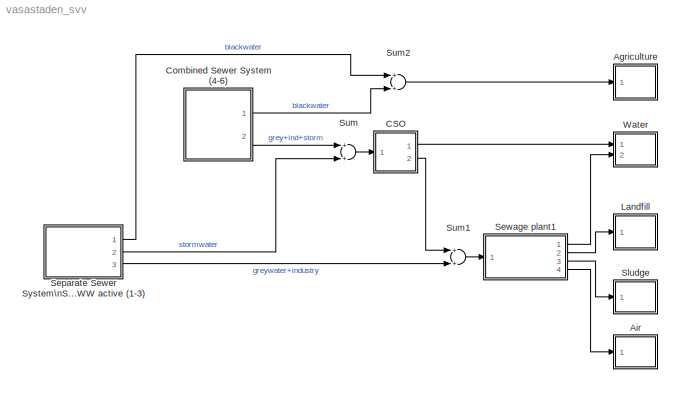
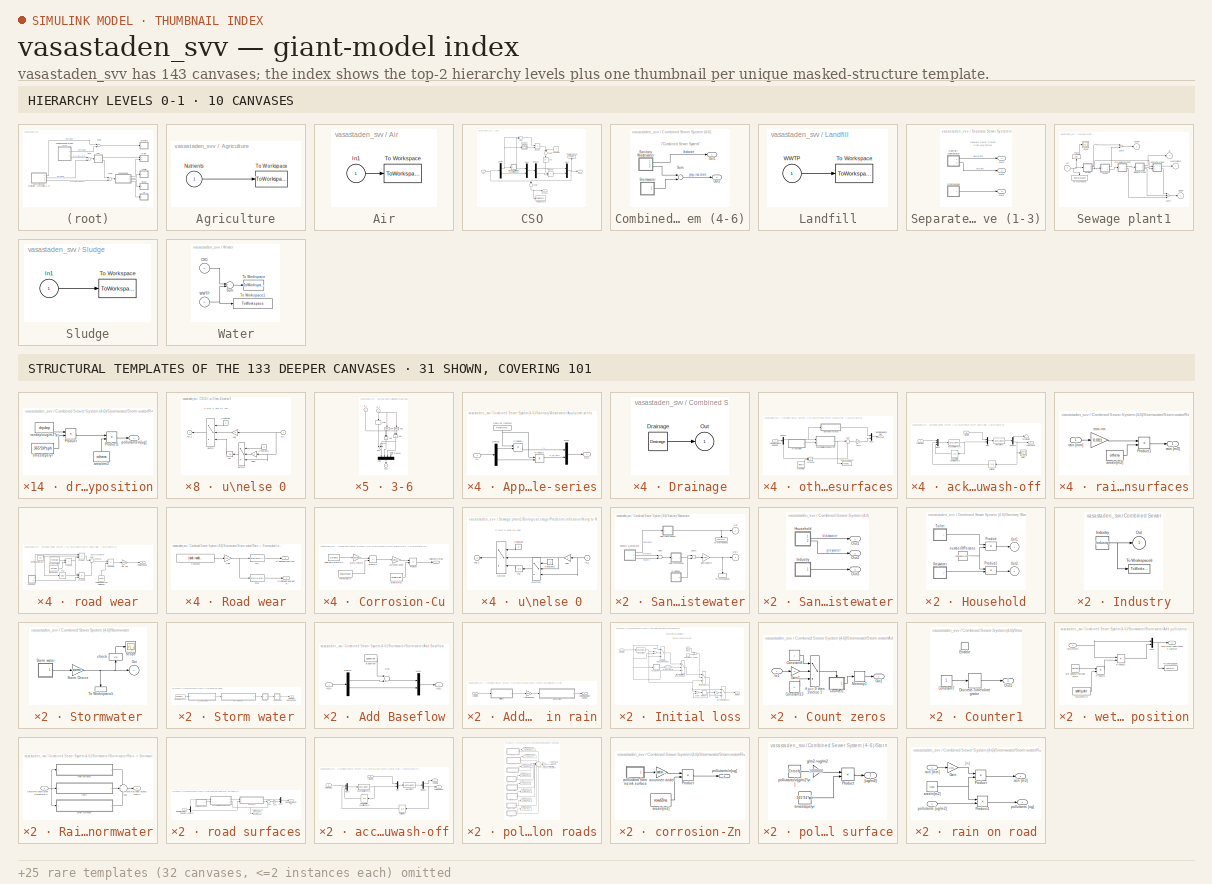
[diagram: thumbnail index - top-2 hierarchy levels (10 canvases) + 31 structural-template representatives of the remaining 133 canvases]
MODEL vasastaden_svv
KIND model
CONFIG AbsTol = auto
CONFIG FixedStep = 1
CONFIG MaxStep = auto
CONFIG MinStep = auto
CONFIG RelTol = 1e-3
CONFIG Solver = FixedStepDiscrete
CONFIG SolverMode = SingleTasking
CONFIG StartTime = 0
CONFIG StopTime = Q
BLOCK [SubSystem] Agriculture
  Ports = [1]
  ShowPortLabels = off
  TreatAsAtomicUnit = off
BLOCK [Inport] Agriculture/Nutrients
BLOCK [ToWorkspace] Agriculture/To Workspace
  MaxDataPoints = inf
  SampleTime = -1
  SaveFormat = Array
  VariableName = outNutrients
BLOCK [SubSystem] Air
  Ports = [1]
  ShowPortLabels = off
  TreatAsAtomicUnit = off
BLOCK [Inport] Air/In1
BLOCK [ToWorkspace] Air/To Workspace
  MaxDataPoints = inf
  SampleTime = -1
  SaveFormat = Array
  VariableName = outAir
BLOCK [SubSystem] CSO
  Ports = [1, 2]
  ShowPortLabels = off
  TreatAsAtomicUnit = off
BLOCK [Abs] CSO/Abs
BLOCK [Outport] CSO/Bypass
BLOCK [Constant] CSO/Constant1
BLOCK [Demux] CSO/Demux
  Outputs = [1 -1]
  Ports = [1, 2]
BLOCK [Demux] CSO/Demux1
  Outputs = [1 -1]
  Ports = [1, 2]
BLOCK [Inport] CSO/In1
BLOCK [Mux] CSO/Mux1
  DisplayOption = bar
  Inputs = 2
  Ports = [2, 1]
BLOCK [Mux] CSO/Mux2
  DisplayOption = bar
  Inputs = 2
  Ports = [2, 1]
BLOCK [Product] CSO/Product
  Ports = [2, 1]
BLOCK [Product] CSO/Product1
  Ports = [2, 1]
BLOCK [Sum] CSO/Sum
  Inputs = +-
  Ports = [2, 1]
BLOCK [Sum] CSO/Sum1
  Inputs = +-
  Ports = [2, 1]
BLOCK [Sum] CSO/Sum2
  Inputs = +-
  Ports = [2, 1]
BLOCK [ToWorkspace] CSO/To Workspace
  MaxDataPoints = inf
  SampleTime = -1
  SaveFormat = Array
  VariableName = outCSO
BLOCK [ToWorkspace] CSO/To Workspace5
  MaxDataPoints = inf
  SampleTime = -1
  SaveFormat = Array
  VariableName = storm2
BLOCK [Outport] CSO/Transit
  Port = 2
BLOCK [SubSystem] CSO/if u>0 then 1//u\nelse 0
  MaskDisplay = disp('1/u')
  MaskIconFrame = on
  MaskIconOpaque = on
  MaskIconRotate = none
  MaskIconUnits = autoscale
  Ports = [1, 1]
  ShowPortLabels = off
  TreatAsAtomicUnit = off
BLOCK [Constant] CSO/if u>0 then 1//u\nelse 0/Constant
  Value = 0
BLOCK [Constant] CSO/if u>0 then 1//u\nelse 0/Constant1
BLOCK [Switch] CSO/if u>0 then 1//u\nelse 0/Switch
BLOCK [Switch] CSO/if u>0 then 1//u\nelse 0/Switch1
BLOCK [Inport] CSO/if u>0 then 1//u\nelse 0/in_1
BLOCK [Fcn] CSO/if u>0 then 1//u\nelse 0/inv.
  Expr = 1/u
BLOCK [Gain] CSO/if u>0 then 1//u\nelse 0/neg
  Gain = -1
BLOCK [Gain] CSO/if u>0 then 1//u\nelse 0/neg1
  Gain = -1
BLOCK [Outport] CSO/if u>0 then 1//u\nelse 0/out_1
  InitialOutput = 0
BLOCK [SubSystem] CSO/if u>CSO_limit then CSO_limit\nelse u
  MaskDisplay = disp('CSO')
  MaskIconFrame = on
  MaskIconOpaque = on
  MaskIconRotate = none
  MaskIconUnits = autoscale
  Ports = [1, 1]
  TreatAsAtomicUnit = off
BLOCK [Switch] CSO/if u>CSO_limit then CSO_limit\nelse u/CSO
  Threshold = CSO_limit
BLOCK [Constant] CSO/if u>CSO_limit then CSO_limit\nelse u/Constant
  Value = CSO_limit
BLOCK [Constant] CSO/if u>CSO_limit then CSO_limit\nelse u/Constant1
  Value = CSO_choice
BLOCK [Switch] CSO/if u>CSO_limit then CSO_limit\nelse u/choice
  Threshold = 1
BLOCK [Inport] CSO/if u>CSO_limit then CSO_limit\nelse u/in_1
BLOCK [Fcn] CSO/if u>CSO_limit then CSO_limit\nelse u/inv.
  Expr = u
BLOCK [Outport] CSO/if u>CSO_limit then CSO_limit\nelse u/out_1
  InitialOutput = 0
BLOCK [SubSystem] Combined Sewer System (4-6)
  MaskDisplay = plot([0,54,62,66,67,64],[90,66,62,52,46,36],[54,49,43,38,37,39,43,46,50],[66,65,60,50,42,33,28,27,27],[48,42,40,41,45,49,53,59,63,63,61],[30,34,42,49,57.5,61,62,60,52,46,38],[0,43],[49,28],[57,67,71,73,73],[41,31,23,15,9],[52,55,58],[40,38,35],[62,64,66],[31,27,22],[47,50,53.5],[38,37,33],[60,63,64],[22,16,12],[43,50,54,58],[36,27,22,7])
  MaskIconFrame = on
  MaskIconOpaque = on
  MaskIconRotate = none
  MaskIconUnits = autoscale
  Ports = [0, 2]
  ShowPortLabels = off
  TreatAsAtomicUnit = off
BLOCK [Outport] Combined Sewer System (4-6)/Out1
BLOCK [Outport] Combined Sewer System (4-6)/Out2
  Port = 2
BLOCK [SubSystem] Combined Sewer System (4-6)/Sanitary Wastewater
  Ports = [0, 2]
  ShowPortLabels = off
  TreatAsAtomicUnit = off
BLOCK [SubSystem] Combined Sewer System (4-6)/Sanitary Wastewater/Apply time-series
  Ports = [1, 1]
  ShowPortLabels = off
  TreatAsAtomicUnit = off
BLOCK [Demux] Combined Sewer System (4-6)/Sanitary Wastewater/Apply time-series/Demux
  Outputs = 2
  Ports = [1, 2]
BLOCK [Inport] Combined Sewer System (4-6)/Sanitary Wastewater/Apply time-series/In1
BLOCK [Mux] Combined Sewer System (4-6)/Sanitary Wastewater/Apply time-series/Mux1
  DisplayOption = bar
  Inputs = [1,nr_ex_H2O]
  Ports = [2, 1]
BLOCK [Outport] Combined Sewer System (4-6)/Sanitary Wastewater/Apply time-series/Out1
BLOCK [Product] Combined Sewer System (4-6)/Sanitary Wastewater/Apply time-series/Product1
  Ports = [2, 1]
BLOCK [Product] Combined Sewer System (4-6)/Sanitary Wastewater/Apply time-series/Product2
  Ports = [2, 1]
BLOCK [FromWorkspace] Combined Sewer System (4-6)/Sanitary Wastewater/Apply time-series/SewVar (factors)
  SampleTime = 1
  VariableName = [T,U1]
BLOCK [SubSystem] Combined Sewer System (4-6)/Sanitary Wastewater/Apply time-series1
  Ports = [1, 1]
  ShowPortLabels = off
  TreatAsAtomicUnit = off
BLOCK [Demux] Combined Sewer System (4-6)/Sanitary Wastewater/Apply time-series1/Demux
  Outputs = 2
  Ports = [1, 2]
BLOCK [Inport] Combined Sewer System (4-6)/Sanitary Wastewater/Apply time-series1/In1
BLOCK [Mux] Combined Sewer System (4-6)/Sanitary Wastewater/Apply time-series1/Mux1
  DisplayOption = bar
  Inputs = [1,nr_ex_H2O]
  Ports = [2, 1]
BLOCK [Outport] Combined Sewer System (4-6)/Sanitary Wastewater/Apply time-series1/Out1
BLOCK [Product] Combined Sewer System (4-6)/Sanitary Wastewater/Apply time-series1/Product1
  Ports = [2, 1]
BLOCK [Product] Combined Sewer System (4-6)/Sanitary Wastewater/Apply time-series1/Product2
  Ports = [2, 1]
BLOCK [FromWorkspace] Combined Sewer System (4-6)/Sanitary Wastewater/Apply time-series1/SewVar (factors)
  SampleTime = 1
  VariableName = [T,U1]
BLOCK [SubSystem] Combined Sewer System (4-6)/Sanitary Wastewater/Drainage
  Ports = [0, 1]
  ShowPortLabels = off
  TreatAsAtomicUnit = off
BLOCK [Constant] Combined Sewer System (4-6)/Sanitary Wastewater/Drainage/Drainage
  Value = Drainage
BLOCK [Outport] Combined Sewer System (4-6)/Sanitary Wastewater/Drainage/Out
BLOCK [Outport] Combined Sewer System (4-6)/Sanitary Wastewater/Out
BLOCK [Outport] Combined Sewer System (4-6)/Sanitary Wastewater/Out1
  Port = 2
BLOCK [Gain] Combined Sewer System (4-6)/Sanitary Wastewater/Sani choice\n
  Gain = sani
BLOCK [SubSystem] Combined Sewer System (4-6)/Sanitary Wastewater/Sanitary wastewater
  Ports = [0, 3]
  ShowPortLabels = off
  TreatAsAtomicUnit = off
BLOCK [SubSystem] Combined Sewer System (4-6)/Sanitary Wastewater/Sanitary wastewater/Household
  Ports = [0, 2]
  ShowPortLabels = off
  TreatAsAtomicUnit = off
BLOCK [SubSystem] Combined Sewer System (4-6)/Sanitary Wastewater/Sanitary wastewater/Household/Greywater
  Ports = [0, 1]
  ShowPortLabels = off
  TreatAsAtomicUnit = off
BLOCK [Constant] Combined Sewer System (4-6)/Sanitary Wastewater/Sanitary wastewater/Household/Greywater/Greywater 
  Value = BDT
BLOCK [Outport] Combined Sewer System (4-6)/Sanitary Wastewater/Sanitary wastewater/Household/Greywater/Out
BLOCK [ToWorkspace] Combined Sewer System (4-6)/Sanitary Wastewater/Sanitary wastewater/Household/Greywater/To Workspace6
  MaxDataPoints = 1
  SampleTime = -1
  SaveFormat = Array
  VariableName = s_bdt
BLOCK [Outport] Combined Sewer System (4-6)/Sanitary Wastewater/Sanitary wastewater/Household/Out1
BLOCK [Outport] Combined Sewer System (4-6)/Sanitary Wastewater/Sanitary wastewater/Household/Out2
  Port = 2
BLOCK [Product] Combined Sewer System (4-6)/Sanitary Wastewater/Sanitary wastewater/Household/Product
  Ports = [2, 1]
BLOCK [Product] Combined Sewer System (4-6)/Sanitary Wastewater/Sanitary wastewater/Household/Product1
  Ports = [2, 1]
BLOCK [SubSystem] Combined Sewer System (4-6)/Sanitary Wastewater/Sanitary wastewater/Household/Toilet
  Ports = [0, 1]
  ShowPortLabels = off
  TreatAsAtomicUnit = off
BLOCK [Constant] Combined Sewer System (4-6)/Sanitary Wastewater/Sanitary wastewater/Household/Toilet/Faeces & paper 
  Value = Faeces
BLOCK [Outport] Combined Sewer System (4-6)/Sanitary Wastewater/Sanitary wastewater/Household/Toilet/Out
BLOCK [Sum] Combined Sewer System (4-6)/Sanitary Wastewater/Sanitary wastewater/Household/Toilet/Sum
  Ports = [2, 1]
BLOCK [ToWorkspace] Combined Sewer System (4-6)/Sanitary Wastewater/Sanitary wastewater/Household/Toilet/To Workspace6
  MaxDataPoints = 1
  SampleTime = -1
  SaveFormat = Array
  VariableName = s_urine
BLOCK [ToWorkspace] Combined Sewer System (4-6)/Sanitary Wastewater/Sanitary wastewater/Household/Toilet/To Workspace7
  MaxDataPoints = 1
  SampleTime = -1
  SaveFormat = Array
  VariableName = s_faeces
BLOCK [Constant] Combined Sewer System (4-6)/Sanitary Wastewater/Sanitary wastewater/Household/Toilet/Urine 
  Value = Urine
BLOCK [Constant] Combined Sewer System (4-6)/Sanitary Wastewater/Sanitary wastewater/Household/numberOfPersons
  Value = numberOfPersons
BLOCK [SubSystem] Combined Sewer System (4-6)/Sanitary Wastewater/Sanitary wastewater/Industry
  Ports = [0, 1]
  ShowPortLabels = off
  TreatAsAtomicUnit = off
BLOCK [Constant] Combined Sewer System (4-6)/Sanitary Wastewater/Sanitary wastewater/Industry/Industry 
  Value = Industry
BLOCK [Outport] Combined Sewer System (4-6)/Sanitary Wastewater/Sanitary wastewater/Industry/Out
BLOCK [ToWorkspace] Combined Sewer System (4-6)/Sanitary Wastewater/Sanitary wastewater/Industry/To Workspace6
  MaxDataPoints = 1
  SampleTime = -1
  SaveFormat = Array
  VariableName = s_industry
BLOCK [Outport] Combined Sewer System (4-6)/Sanitary Wastewater/Sanitary wastewater/Out1
BLOCK [Outport] Combined Sewer System (4-6)/Sanitary Wastewater/Sanitary wastewater/Out2
  Port = 2
BLOCK [Outport] Combined Sewer System (4-6)/Sanitary Wastewater/Sanitary wastewater/Out3
  Port = 3
BLOCK [Sum] Combined Sewer System (4-6)/Sanitary Wastewater/Sum
  Ports = [2, 1]
BLOCK [Sum] Combined Sewer System (4-6)/Sanitary Wastewater/Sum1
  Ports = [2, 1]
BLOCK [ToWorkspace] Combined Sewer System (4-6)/Sanitary Wastewater/To Workspace1
  MaxDataPoints = inf
  SampleTime = -1
  SaveFormat = Array
  VariableName = blackw
BLOCK [ToWorkspace] Combined Sewer System (4-6)/Sanitary Wastewater/To Workspace6
  MaxDataPoints = inf
  SampleTime = -1
  SaveFormat = Array
  VariableName = sewer
BLOCK [SubSystem] Combined Sewer System (4-6)/Stormwater
  Ports = [0, 1]
  ShowPortLabels = off
  TreatAsAtomicUnit = off
BLOCK [Outport] Combined Sewer System (4-6)/Stormwater/Out
BLOCK [Scope] Combined Sewer System (4-6)/Stormwater/Scope
  DataFormat = StructureWithTime
  NumInputPorts = 1
  Ports = [1]
BLOCK [Gain] Combined Sewer System (4-6)/Stormwater/Storm Choice
  Gain = stormw
BLOCK [SubSystem] Combined Sewer System (4-6)/Stormwater/Storm water
  Ports = [0, 1]
  ShowPortLabels = off
  TreatAsAtomicUnit = off
BLOCK [SubSystem] Combined Sewer System (4-6)/Stormwater/Storm water/Add Baseflow
  Ports = [1, 1]
  ShowPortLabels = off
  TreatAsAtomicUnit = off
BLOCK [Constant] Combined Sewer System (4-6)/Stormwater/Storm water/Add Baseflow/Baseflow
  Value = baseflow
BLOCK [Demux] Combined Sewer System (4-6)/Stormwater/Storm water/Add Baseflow/Demux
  Outputs = [1 -1]
  Ports = [1, 2]
BLOCK [Inport] Combined Sewer System (4-6)/Stormwater/Storm water/Add Baseflow/In1\n
BLOCK [Mux] Combined Sewer System (4-6)/Stormwater/Storm water/Add Baseflow/Mux1
  DisplayOption = bar
  Inputs = 2
  Ports = [2, 1]
BLOCK [Outport] Combined Sewer System (4-6)/Stormwater/Storm water/Add Baseflow/Out1
BLOCK [Sum] Combined Sewer System (4-6)/Stormwater/Storm water/Add Baseflow/Sum
  Ports = [2, 1]
BLOCK [SubSystem] Combined Sewer System (4-6)/Stormwater/Storm water/Add pollutants in rain
  Ports = [1, 1]
  TreatAsAtomicUnit = off
BLOCK [SubSystem] Combined Sewer System (4-6)/Stormwater/Storm water/Add pollutants in rain/Initial loss
  Ports = [1, 1]
  TreatAsAtomicUnit = off
BLOCK [Clock] Combined Sewer System (4-6)/Stormwater/Storm water/Add pollutants in rain/Initial loss/Clock
  Decimation = 10
BLOCK [Constant] Combined Sewer System (4-6)/Stormwater/Storm water/Add pollutants in rain/Initial loss/Constant12
BLOCK [SubSystem] Combined Sewer System (4-6)/Stormwater/Storm water/Add pollutants in rain/Initial loss/Count zeros
  MaskIconFrame = on
  MaskIconOpaque = on
  MaskIconRotate = none
  MaskIconUnits = autoscale
  Ports = [1, 1]
  ShowPortLabels = off
  TreatAsAtomicUnit = off
BLOCK [Constant] Combined Sewer System (4-6)/Stormwater/Storm water/Add pollutants in rain/Initial loss/Count zeros/Constant13
  Value = 0
BLOCK [Constant] Combined Sewer System (4-6)/Stormwater/Storm water/Add pollutants in rain/Initial loss/Count zeros/Constant8
BLOCK [SubSystem] Combined Sewer System (4-6)/Stormwater/Storm water/Add pollutants in rain/Initial loss/Count zeros/Counter1
  Ports = [0, 1, 1]
  TreatAsAtomicUnit = on
BLOCK [Constant] Combined Sewer System (4-6)/Stormwater/Storm water/Add pollutants in rain/Initial loss/Count zeros/Counter1/Constant7
BLOCK [DiscreteIntegrator] Combined Sewer System (4-6)/Stormwater/Storm water/Add pollutants in rain/Initial loss/Count zeros/Counter1/Discrete-Time\nIntegrator
  ExternalReset = none
  InitialCondition = 1
  InitialConditionSource = internal
  IntegratorMethod = Forward Euler
  Ports = [1, 1]
BLOCK [EnablePort] Combined Sewer System (4-6)/Stormwater/Storm water/Add pollutants in rain/Initial loss/Count zeros/Counter1/Enable
  Ports = []
  StatesWhenEnabling = reset
BLOCK [Outport] Combined Sewer System (4-6)/Stormwater/Storm water/Add pollutants in rain/Initial loss/Count zeros/Counter1/Out1
  InitialOutput = 0
BLOCK [Gain] Combined Sewer System (4-6)/Stormwater/Storm water/Add pollutants in rain/Initial loss/Count zeros/Gain1
  Gain = -1
BLOCK [Inport] Combined Sewer System (4-6)/Stormwater/Storm water/Add pollutants in rain/Initial loss/Count zeros/In1
BLOCK [Memory] Combined Sewer System (4-6)/Stormwater/Storm water/Add pollutants in rain/Initial loss/Count zeros/Memory1
BLOCK [Outport] Combined Sewer System (4-6)/Stormwater/Storm water/Add pollutants in rain/Initial loss/Count zeros/Out1
BLOCK [Switch] Combined Sewer System (4-6)/Stormwater/Storm water/Add pollutants in rain/Initial loss/Count zeros/if u== 0 then 1\nelse 1
BLOCK [Gain] Combined Sewer System (4-6)/Stormwater/Storm water/Add pollutants in rain/Initial loss/Gain
  Gain = -1
BLOCK [Memory] Combined Sewer System (4-6)/Stormwater/Storm water/Add pollutants in rain/Initial loss/Memory3
BLOCK [S-Function] Combined Sewer System (4-6)/Stormwater/Storm water/Add pollutants in rain/Initial loss/S-Function
  FunctionName = initloss
  Parameters = init
  Ports = [1, 1]
BLOCK [Sum] Combined Sewer System (4-6)/Stormwater/Storm water/Add pollutants in rain/Initial loss/Sum
  Inputs = +-
  Ports = [2, 1]
BLOCK [Sum] Combined Sewer System (4-6)/Stormwater/Storm water/Add pollutants in rain/Initial loss/Sum11
  Ports = [2, 1]
BLOCK [Sum] Combined Sewer System (4-6)/Stormwater/Storm water/Add pollutants in rain/Initial loss/Sum2
  Ports = [2, 1]
BLOCK [Switch] Combined Sewer System (4-6)/Stormwater/Storm water/Add pollutants in rain/Initial loss/if t<5 then reduce
  Threshold = init_time
BLOCK [Switch] Combined Sewer System (4-6)/Stormwater/Storm water/Add pollutants in rain/Initial loss/if u<0 then  \nreduction is made
BLOCK [Switch] Combined Sewer System (4-6)/Stormwater/Storm water/Add pollutants in rain/Initial loss/if u==0 then reduce
BLOCK [Switch] Combined Sewer System (4-6)/Stormwater/Storm water/Add pollutants in rain/Initial loss/if u>= init_init then reduce\nelse u
  Threshold = init_init
BLOCK [Outport] Combined Sewer System (4-6)/Stormwater/Storm water/Add pollutants in rain/Initial loss/rain [mm]
BLOCK [Inport] Combined Sewer System (4-6)/Stormwater/Storm water/Add pollutants in rain/Initial loss/rain\n[mm]
BLOCK [Fcn] Combined Sewer System (4-6)/Stormwater/Storm water/Add pollutants in rain/Initial loss/u*sec_per_ts
  Expr = u*sec_per_ts
BLOCK [Inport] Combined Sewer System (4-6)/Stormwater/Storm water/Add pollutants in rain/rain [mm]
BLOCK [Outport] Combined Sewer System (4-6)/Stormwater/Storm water/Add pollutants in rain/rain [mm]\npollutants [ug//m2]
BLOCK [Gain] Combined Sewer System (4-6)/Stormwater/Storm water/Add pollutants in rain/reduction factor
  Gain = redu
BLOCK [SubSystem] Combined Sewer System (4-6)/Stormwater/Storm water/Add pollutants in rain/wet deposition
  Ports = [1, 1]
  TreatAsAtomicUnit = off
BLOCK [Mux] Combined Sewer System (4-6)/Stormwater/Storm water/Add pollutants in rain/wet deposition/Mux
  DisplayOption = bar
  Inputs = 2
  Ports = [2, 1]
BLOCK [Product] Combined Sewer System (4-6)/Stormwater/Storm water/Add pollutants in rain/wet deposition/Product1
  Ports = [2, 1]
BLOCK [Product] Combined Sewer System (4-6)/Stormwater/Storm water/Add pollutants in rain/wet deposition/Product2
  Inputs = */
  Ports = [2, 1]
BLOCK [ToWorkspace] Combined Sewer System (4-6)/Stormwater/Storm water/Add pollutants in rain/wet deposition/To Workspace6
  MaxDataPoints = inf
  SampleTime = -1
  SaveFormat = Array
  VariableName = s_wetdep
BLOCK [Outport] Combined Sewer System (4-6)/Stormwater/Storm water/Add pollutants in rain/wet deposition/rain [mm]\npollutants [ug//m2]
BLOCK [Inport] Combined Sewer System (4-6)/Stormwater/Storm water/Add pollutants in rain/wet deposition/rain\n[mm]
BLOCK [Constant] Combined Sewer System (4-6)/Stormwater/Storm water/Add pollutants in rain/wet deposition/rain\nmm//yr
  Value = yearly_rain
BLOCK [Constant] Combined Sewer System (4-6)/Stormwater/Storm water/Add pollutants in rain/wet deposition/wet deposition\nug//m2*yr
  Value = wetdep
BLOCK [FromWorkspace] Combined Sewer System (4-6)/Stormwater/Storm water/From\nWorkspace
  SampleTime = 1
  VariableName = [T,U2]
BLOCK [SubSystem] Combined Sewer System (4-6)/Stormwater/Storm water/Rain -> Stormwater
  Ports = [1, 1]
  TreatAsAtomicUnit = off
BLOCK [Outport] Combined Sewer System (4-6)/Stormwater/Storm water/Rain -> Stormwater/SW[m3]\npollutants\n[g]\n
BLOCK [Sum] Combined Sewer System (4-6)/Stormwater/Storm water/Rain -> Stormwater/Sum
  IconShape = round
  Inputs = +++
  Ports = [3, 1]
BLOCK [SubSystem] Combined Sewer System (4-6)/Stormwater/Storm water/Rain -> Stormwater/other surfaces
  Ports = [1, 1]
  TreatAsAtomicUnit = off
BLOCK [Demux] Combined Sewer System (4-6)/Stormwater/Storm water/Rain -> Stormwater/other surfaces/Demux2
  Outputs = [1 -1]
  Ports = [1, 2]
BLOCK [Mux] Combined Sewer System (4-6)/Stormwater/Storm water/Rain -> Stormwater/other surfaces/Mux2
  DisplayOption = bar
  Inputs = 2
  Ports = [2, 1]
BLOCK [Product] Combined Sewer System (4-6)/Stormwater/Storm water/Rain -> Stormwater/other surfaces/Product1
  Ports = [2, 1]
BLOCK [Sum] Combined Sewer System (4-6)/Stormwater/Storm water/Rain -> Stormwater/other surfaces/Sum
  IconShape = round
  Inputs = |++
  Ports = [2, 1]
BLOCK [ToWorkspace] Combined Sewer System (4-6)/Stormwater/Storm water/Rain -> Stormwater/other surfaces/To Workspace7
  MaxDataPoints = inf
  SampleTime = -1
  SaveFormat = Array
  VariableName = s_other
BLOCK [SubSystem] Combined Sewer System (4-6)/Stormwater/Storm water/Rain -> Stormwater/other surfaces/ackumulation and wash-off
  Ports = [2, 1]
  TreatAsAtomicUnit = off
BLOCK [Demux] Combined Sewer System (4-6)/Stormwater/Storm water/Rain -> Stormwater/other surfaces/ackumulation and wash-off/Demux1
  Outputs = [1 -1]
  Ports = [1, 2]
BLOCK [Mux] Combined Sewer System (4-6)/Stormwater/Storm water/Rain -> Stormwater/other surfaces/ackumulation and wash-off/Mux
  DisplayOption = bar
  Inputs = 2
  Ports = [2, 1]
BLOCK [Mux] Combined Sewer System (4-6)/Stormwater/Storm water/Rain -> Stormwater/other surfaces/ackumulation and wash-off/Mux1
  DisplayOption = bar
  Inputs = 3
  Ports = [3, 1]
BLOCK [UnitDelay] Combined Sewer System (4-6)/Stormwater/Storm water/Rain -> Stormwater/other surfaces/ackumulation and wash-off/Specify initial condition here
  X0 = othermax
BLOCK [Terminator] Combined Sewer System (4-6)/Stormwater/Storm water/Rain -> Stormwater/other surfaces/ackumulation and wash-off/Terminator
BLOCK [UnitDelay] Combined Sewer System (4-6)/Stormwater/Storm water/Rain -> Stormwater/other surfaces/ackumulation and wash-off/Unit Delay
  X0 = delayinit
BLOCK [MATLABFcn] Combined Sewer System (4-6)/Stormwater/Storm water/Rain -> Stormwater/other surfaces/ackumulation and wash-off/ackumulation Fcn1
  MATLABFcn = ackumulation
  OutputDimensions = nr_ex_H2O
BLOCK [Scope] Combined Sewer System (4-6)/Stormwater/Storm water/Rain -> Stormwater/other surfaces/ackumulation and wash-off/deltaP
  DataFormat = StructureWithTime
  NumInputPorts = 1
  Ports = [1]
  YMax = 2250
  YMin = 0
  ZoomMode = xonly
BLOCK [Inport] Combined Sewer System (4-6)/Stormwater/Storm water/Rain -> Stormwater/other surfaces/ackumulation and wash-off/pollutant [ug]
  Port = 2
BLOCK [Outport] Combined Sewer System (4-6)/Stormwater/Storm water/Rain -> Stormwater/other surfaces/ackumulation and wash-off/pollutants [ug]
BLOCK [Inport] Combined Sewer System (4-6)/Stormwater/Storm water/Rain -> Stormwater/other surfaces/ackumulation and wash-off/rain [mm]
BLOCK [MATLABFcn] Combined Sewer System (4-6)/Stormwater/Storm water/Rain -> Stormwater/other surfaces/ackumulation and wash-off/washoff Fcn
  MATLABFcn = washoff
  OutputDimensions = totnr
BLOCK [Constant] Combined Sewer System (4-6)/Stormwater/Storm water/Rain -> Stormwater/other surfaces/area\n[m2]
  Value = othera
BLOCK [SubSystem] Combined Sewer System (4-6)/Stormwater/Storm water/Rain -> Stormwater/other surfaces/dry deposition
  Ports = [0, 1]
  TreatAsAtomicUnit = off
BLOCK [Product] Combined Sewer System (4-6)/Stormwater/Storm water/Rain -> Stormwater/other surfaces/dry deposition/Product
  Inputs = */
  Ports = [2, 1]
BLOCK [Product] Combined Sewer System (4-6)/Stormwater/Storm water/Rain -> Stormwater/other surfaces/dry deposition/Product1
  Ports = [2, 1]
BLOCK [Constant] Combined Sewer System (4-6)/Stormwater/Storm water/Rain -> Stormwater/other surfaces/dry deposition/area\nm2
  Value = othera
BLOCK [Outport] Combined Sewer System (4-6)/Stormwater/Storm water/Rain -> Stormwater/other surfaces/dry deposition/pollutants\n[ug]
BLOCK [Constant] Combined Sewer System (4-6)/Stormwater/Storm water/Rain -> Stormwater/other surfaces/dry deposition/timesteps//yr
  Value = 365*24*sph
BLOCK [Constant] Combined Sewer System (4-6)/Stormwater/Storm water/Rain -> Stormwater/other surfaces/dry deposition/torrdep\nug//m2*yr
  Value = drydep
BLOCK [SubSystem] Combined Sewer System (4-6)/Stormwater/Storm water/Rain -> Stormwater/other surfaces/rain on other surfaces
  Ports = [1, 1]
  TreatAsAtomicUnit = off
BLOCK [Product] Combined Sewer System (4-6)/Stormwater/Storm water/Rain -> Stormwater/other surfaces/rain on other surfaces/Product1
  Ports = [2, 1]
BLOCK [Constant] Combined Sewer System (4-6)/Stormwater/Storm water/Rain -> Stormwater/other surfaces/rain on other surfaces/area\n[m2]
  Value = othera
BLOCK [Gain] Combined Sewer System (4-6)/Stormwater/Storm water/Rain -> Stormwater/other surfaces/rain on other surfaces/mm->m
  Gain = 0.001
BLOCK [Outport] Combined Sewer System (4-6)/Stormwater/Storm water/Rain -> Stormwater/other surfaces/rain on other surfaces/rain [m3]
BLOCK [Inport] Combined Sewer System (4-6)/Stormwater/Storm water/Rain -> Stormwater/other surfaces/rain on other surfaces/rain [mm]
BLOCK [Outport] Combined Sewer System (4-6)/Stormwater/Storm water/Rain -> Stormwater/other surfaces/rain[m3]\npollutants\n[g]
BLOCK [Inport] Combined Sewer System (4-6)/Stormwater/Storm water/Rain -> Stormwater/other surfaces/rain[mm]\npollutants\n[ug//m2]
BLOCK [Gain] Combined Sewer System (4-6)/Stormwater/Storm water/Rain -> Stormwater/other surfaces/ug - g
  Gain = 0.000001
BLOCK [Inport] Combined Sewer System (4-6)/Stormwater/Storm water/Rain -> Stormwater/rain[mm]\npollutants\n[ug//m2]\n
BLOCK [SubSystem] Combined Sewer System (4-6)/Stormwater/Storm water/Rain -> Stormwater/road surfaces
  Ports = [1, 1]
  TreatAsAtomicUnit = off
BLOCK [Demux] Combined Sewer System (4-6)/Stormwater/Storm water/Rain -> Stormwater/road surfaces/Demux1
  Outputs = [1 -1]
  Ports = [1, 2]
BLOCK [Mux] Combined Sewer System (4-6)/Stormwater/Storm water/Rain -> Stormwater/road surfaces/Mux3
  DisplayOption = bar
  Inputs = 2
  Ports = [2, 1]
BLOCK [Sum] Combined Sewer System (4-6)/Stormwater/Storm water/Rain -> Stormwater/road surfaces/Sum1
  IconShape = round
  Inputs = |++
  Ports = [2, 1]
BLOCK [ToWorkspace] Combined Sewer System (4-6)/Stormwater/Storm water/Rain -> Stormwater/road surfaces/To Workspace7
  MaxDataPoints = inf
  SampleTime = -1
  SaveFormat = Array
  VariableName = s_road
BLOCK [SubSystem] Combined Sewer System (4-6)/Stormwater/Storm water/Rain -> Stormwater/road surfaces/accumulation and wash-off
  Ports = [2, 2]
  TreatAsAtomicUnit = off
BLOCK [Demux] Combined Sewer System (4-6)/Stormwater/Storm water/Rain -> Stormwater/road surfaces/accumulation and wash-off/Demux1
  Outputs = [1 -1]
  Ports = [1, 2]
BLOCK [Mux] Combined Sewer System (4-6)/Stormwater/Storm water/Rain -> Stormwater/road surfaces/accumulation and wash-off/Mux
  DisplayOption = bar
  Inputs = 2
  Ports = [2, 1]
BLOCK [Mux] Combined Sewer System (4-6)/Stormwater/Storm water/Rain -> Stormwater/road surfaces/accumulation and wash-off/Mux1
  DisplayOption = bar
  Inputs = 3
  Ports = [3, 1]
BLOCK [UnitDelay] Combined Sewer System (4-6)/Stormwater/Storm water/Rain -> Stormwater/road surfaces/accumulation and wash-off/Specify initial condition here
  X0 = roadaccmax
BLOCK [UnitDelay] Combined Sewer System (4-6)/Stormwater/Storm water/Rain -> Stormwater/road surfaces/accumulation and wash-off/Unit Delay
  X0 = delayinit
BLOCK [MATLABFcn] Combined Sewer System (4-6)/Stormwater/Storm water/Rain -> Stormwater/road surfaces/accumulation and wash-off/ackumulation Fcn1
  MATLABFcn = ackumulation
  OutputDimensions = nr_ex_H2O
BLOCK [Inport] Combined Sewer System (4-6)/Stormwater/Storm water/Rain -> Stormwater/road surfaces/accumulation and wash-off/pollutant [ug]
  Port = 2
BLOCK [Outport] Combined Sewer System (4-6)/Stormwater/Storm water/Rain -> Stormwater/road surfaces/accumulation and wash-off/pollutants [ug]
  Port = 2
BLOCK [Inport] Combined Sewer System (4-6)/Stormwater/Storm water/Rain -> Stormwater/road surfaces/accumulation and wash-off/rain [mm]
BLOCK [Outport] Combined Sewer System (4-6)/Stormwater/Storm water/Rain -> Stormwater/road surfaces/accumulation and wash-off/rain [mm]1
BLOCK [MATLABFcn] Combined Sewer System (4-6)/Stormwater/Storm water/Rain -> Stormwater/road surfaces/accumulation and wash-off/washoff Fcn
  MATLABFcn = washoff
  OutputDimensions = totnr
BLOCK [SubSystem] Combined Sewer System (4-6)/Stormwater/Storm water/Rain -> Stormwater/road surfaces/pollutants on roads
  Ports = [0, 1]
  TreatAsAtomicUnit = off
BLOCK [Sum] Combined Sewer System (4-6)/Stormwater/Storm water/Rain -> Stormwater/road surfaces/pollutants on roads/Sum
  IconShape = round
  Inputs = ++++++++
  Ports = [8, 1]
BLOCK [Gain] Combined Sewer System (4-6)/Stormwater/Storm water/Rain -> Stormwater/road surfaces/pollutants on roads/The share that \nis stuck on the\nsurface
  Gain = fast
BLOCK [ToWorkspace] Combined Sewer System (4-6)/Stormwater/Storm water/Rain -> Stormwater/road surfaces/pollutants on roads/To Workspace1
  MaxDataPoints = 1
  SampleTime = -1
  SaveFormat = Array
  VariableName = poll_BrakeRoad
BLOCK [ToWorkspace] Combined Sewer System (4-6)/Stormwater/Storm water/Rain -> Stormwater/road surfaces/pollutants on roads/To Workspace10
  MaxDataPoints = 1
  SampleTime = -1
  SaveFormat = Array
  VariableName = poll_DrydepRoad
BLOCK [ToWorkspace] Combined Sewer System (4-6)/Stormwater/Storm water/Rain -> Stormwater/road surfaces/pollutants on roads/To Workspace2
  MaxDataPoints = 1
  SampleTime = -1
  SaveFormat = Array
  VariableName = poll_ExhaustRoad
BLOCK [ToWorkspace] Combined Sewer System (4-6)/Stormwater/Storm water/Rain -> Stormwater/road surfaces/pollutants on roads/To Workspace3
  MaxDataPoints = 1
  SampleTime = -1
  SaveFormat = Array
  VariableName = poll_RoadwearRoad
BLOCK [ToWorkspace] Combined Sewer System (4-6)/Stormwater/Storm water/Rain -> Stormwater/road surfaces/pollutants on roads/To Workspace4
  MaxDataPoints = 1
  SampleTime = -1
  SaveFormat = Array
  VariableName = poll_TyrewearRoad
BLOCK [ToWorkspace] Combined Sewer System (4-6)/Stormwater/Storm water/Rain -> Stormwater/road surfaces/pollutants on roads/To Workspace5
  MaxDataPoints = 1
  SampleTime = -1
  SaveFormat = Array
  VariableName = poll_ZncorrRoad
BLOCK [ToWorkspace] Combined Sewer System (4-6)/Stormwater/Storm water/Rain -> Stormwater/road surfaces/pollutants on roads/To Workspace6
  MaxDataPoints = 1
  SampleTime = -1
  SaveFormat = Array
  VariableName = poll_OilRoad
BLOCK [ToWorkspace] Combined Sewer System (4-6)/Stormwater/Storm water/Rain -> Stormwater/road surfaces/pollutants on roads/To Workspace7
  MaxDataPoints = 1
  SampleTime = -1
  SaveFormat = Array
  VariableName = poll_CatRoad
BLOCK [SubSystem] Combined Sewer System (4-6)/Stormwater/Storm water/Rain -> Stormwater/road surfaces/pollutants on roads/brake wear
  Ports = [0, 1]
  TreatAsAtomicUnit = off
BLOCK [Product] Combined Sewer System (4-6)/Stormwater/Storm water/Rain -> Stormwater/road surfaces/pollutants on roads/brake wear/Product
  Inputs = */
  Ports = [2, 1]
BLOCK [Product] Combined Sewer System (4-6)/Stormwater/Storm water/Rain -> Stormwater/road surfaces/pollutants on roads/brake wear/Product1
  Ports = [2, 1]
BLOCK [Constant] Combined Sewer System (4-6)/Stormwater/Storm water/Rain -> Stormwater/road surfaces/pollutants on roads/brake wear/fordonskm//day
  Value = fkmday
BLOCK [Outport] Combined Sewer System (4-6)/Stormwater/Storm water/Rain -> Stormwater/road surfaces/pollutants on roads/brake wear/pollutants [ug)\n
BLOCK [Constant] Combined Sewer System (4-6)/Stormwater/Storm water/Rain -> Stormwater/road surfaces/pollutants on roads/brake wear/pollutants from brakes
  Value = brakep
BLOCK [Constant] Combined Sewer System (4-6)/Stormwater/Storm water/Rain -> Stormwater/road surfaces/pollutants on roads/brake wear/timesteps//day
  Value = 24*sph
BLOCK [SubSystem] Combined Sewer System (4-6)/Stormwater/Storm water/Rain -> Stormwater/road surfaces/pollutants on roads/catalyst
  Ports = [0, 1]
  TreatAsAtomicUnit = off
BLOCK [Product] Combined Sewer System (4-6)/Stormwater/Storm water/Rain -> Stormwater/road surfaces/pollutants on roads/catalyst/Product
  Inputs = */
  Ports = [2, 1]
BLOCK [Product] Combined Sewer System (4-6)/Stormwater/Storm water/Rain -> Stormwater/road surfaces/pollutants on roads/catalyst/Product1
  Ports = [2, 1]
BLOCK [Constant] Combined Sewer System (4-6)/Stormwater/Storm water/Rain -> Stormwater/road surfaces/pollutants on roads/catalyst/fordonskm//day
  Value = fkmday
BLOCK [Outport] Combined Sewer System (4-6)/Stormwater/Storm water/Rain -> Stormwater/road surfaces/pollutants on roads/catalyst/pollutants [ug)\n
BLOCK [Constant] Combined Sewer System (4-6)/Stormwater/Storm water/Rain -> Stormwater/road surfaces/pollutants on roads/catalyst/pollutants from catalysts
  Value = catalystp
BLOCK [Constant] Combined Sewer System (4-6)/Stormwater/Storm water/Rain -> Stormwater/road surfaces/pollutants on roads/catalyst/timesteps//day
  Value = 24*sph
BLOCK [SubSystem] Combined Sewer System (4-6)/Stormwater/Storm water/Rain -> Stormwater/road surfaces/pollutants on roads/corrosion-Zn
  Ports = [0, 1]
  TreatAsAtomicUnit = off
BLOCK [Product] Combined Sewer System (4-6)/Stormwater/Storm water/Rain -> Stormwater/road surfaces/pollutants on roads/corrosion-Zn/Product
  Ports = [2, 1]
BLOCK [Constant] Combined Sewer System (4-6)/Stormwater/Storm water/Rain -> Stormwater/road surfaces/pollutants on roads/corrosion-Zn/area\n[m2]
  Value = roadZna
BLOCK [Gain] Combined Sewer System (4-6)/Stormwater/Storm water/Rain -> Stormwater/road surfaces/pollutants on roads/corrosion-Zn/avrunnen andel
  Gain = roadrunpart
BLOCK [SubSystem] Combined Sewer System (4-6)/Stormwater/Storm water/Rain -> Stormwater/road surfaces/pollutants on roads/corrosion-Zn/pollutants from \nzink surface
  Ports = [0, 1]
  TreatAsAtomicUnit = off
BLOCK [Product] Combined Sewer System (4-6)/Stormwater/Storm water/Rain -> Stormwater/road surfaces/pollutants on roads/corrosion-Zn/pollutants from \nzink surface/Product
  Inputs = */
  Ports = [2, 1]
BLOCK [Outport] Combined Sewer System (4-6)/Stormwater/Storm water/Rain -> Stormwater/road surfaces/pollutants on roads/corrosion-Zn/pollutants from \nzink surface/[ug//m2]
BLOCK [Gain] Combined Sewer System (4-6)/Stormwater/Storm water/Rain -> Stormwater/road surfaces/pollutants on roads/corrosion-Zn/pollutants from \nzink surface/g//m2->ug//m2
  Gain = 1000000
BLOCK [Constant] Combined Sewer System (4-6)/Stormwater/Storm water/Rain -> Stormwater/road surfaces/pollutants on roads/corrosion-Zn/pollutants from \nzink surface/pollutants\n[g//m2*yr]
  Value = Znroofp
BLOCK [Constant] Combined Sewer System (4-6)/Stormwater/Storm water/Rain -> Stormwater/road surfaces/pollutants on roads/corrosion-Zn/pollutants from \nzink surface/timesteps//yr
  Value = 365*24*sph
BLOCK [Outport] Combined Sewer System (4-6)/Stormwater/Storm water/Rain -> Stormwater/road surfaces/pollutants on roads/corrosion-Zn/pollutants\n[ug]
BLOCK [SubSystem] Combined Sewer System (4-6)/Stormwater/Storm water/Rain -> Stormwater/road surfaces/pollutants on roads/dry deposition
  Ports = [0, 1]
  TreatAsAtomicUnit = off
BLOCK [Product] Combined Sewer System (4-6)/Stormwater/Storm water/Rain -> Stormwater/road surfaces/pollutants on roads/dry deposition/Product
  Inputs = */
  Ports = [2, 1]
BLOCK [Product] Combined Sewer System (4-6)/Stormwater/Storm water/Rain -> Stormwater/road surfaces/pollutants on roads/dry deposition/Product1
  Ports = [2, 1]
BLOCK [Constant] Combined Sewer System (4-6)/Stormwater/Storm water/Rain -> Stormwater/road surfaces/pollutants on roads/dry deposition/area\nm2
  Value = roada
BLOCK [Outport] Combined Sewer System (4-6)/Stormwater/Storm water/Rain -> Stormwater/road surfaces/pollutants on roads/dry deposition/pollutants\n[ug]
BLOCK [Constant] Combined Sewer System (4-6)/Stormwater/Storm water/Rain -> Stormwater/road surfaces/pollutants on roads/dry deposition/timesteps//yr
  Value = 365*24*sph
BLOCK [Constant] Combined Sewer System (4-6)/Stormwater/Storm water/Rain -> Stormwater/road surfaces/pollutants on roads/dry deposition/torrdep\nug//m2*yr
  Value = drydep
BLOCK [SubSystem] Combined Sewer System (4-6)/Stormwater/Storm water/Rain -> Stormwater/road surfaces/pollutants on roads/exhaust
  Ports = [0, 1]
  TreatAsAtomicUnit = off
BLOCK [Product] Combined Sewer System (4-6)/Stormwater/Storm water/Rain -> Stormwater/road surfaces/pollutants on roads/exhaust/Product
  Ports = [2, 1]
BLOCK [Product] Combined Sewer System (4-6)/Stormwater/Storm water/Rain -> Stormwater/road surfaces/pollutants on roads/exhaust/Product1
  Inputs = */
  Ports = [2, 1]
BLOCK [Constant] Combined Sewer System (4-6)/Stormwater/Storm water/Rain -> Stormwater/road surfaces/pollutants on roads/exhaust/fordonskm//day
  Value = fkmday
BLOCK [Constant] Combined Sewer System (4-6)/Stormwater/Storm water/Rain -> Stormwater/road surfaces/pollutants on roads/exhaust/pollutant [ug//fkm]
  Value = exhp
BLOCK [Outport] Combined Sewer System (4-6)/Stormwater/Storm water/Rain -> Stormwater/road surfaces/pollutants on roads/exhaust/pollutant [ug]
BLOCK [Constant] Combined Sewer System (4-6)/Stormwater/Storm water/Rain -> Stormwater/road surfaces/pollutants on roads/exhaust/timesteps//day
  Value = 24*sph
BLOCK [SubSystem] Combined Sewer System (4-6)/Stormwater/Storm water/Rain -> Stormwater/road surfaces/pollutants on roads/oil discharge
  Ports = [0, 1]
  TreatAsAtomicUnit = off
BLOCK [Product] Combined Sewer System (4-6)/Stormwater/Storm water/Rain -> Stormwater/road surfaces/pollutants on roads/oil discharge/Product
  Inputs = */
  Ports = [2, 1]
BLOCK [Product] Combined Sewer System (4-6)/Stormwater/Storm water/Rain -> Stormwater/road surfaces/pollutants on roads/oil discharge/Product1
  Ports = [2, 1]
BLOCK [Constant] Combined Sewer System (4-6)/Stormwater/Storm water/Rain -> Stormwater/road surfaces/pollutants on roads/oil discharge/fordonskm//day
  Value = fkmday
BLOCK [Outport] Combined Sewer System (4-6)/Stormwater/Storm water/Rain -> Stormwater/road surfaces/pollutants on roads/oil discharge/pollutants [ug)\n
BLOCK [Constant] Combined Sewer System (4-6)/Stormwater/Storm water/Rain -> Stormwater/road surfaces/pollutants on roads/oil discharge/pollutants from oil
  Value = oilp
BLOCK [Constant] Combined Sewer System (4-6)/Stormwater/Storm water/Rain -> Stormwater/road surfaces/pollutants on roads/oil discharge/timesteps//day
  Value = 24*sph
BLOCK [Outport] Combined Sewer System (4-6)/Stormwater/Storm water/Rain -> Stormwater/road surfaces/pollutants on roads/pollutants[ ug]
BLOCK [SubSystem] Combined Sewer System (4-6)/Stormwater/Storm water/Rain -> Stormwater/road surfaces/pollutants on roads/road wear
  Ports = [0, 1]
  TreatAsAtomicUnit = off
BLOCK [Fcn] Combined Sewer System (4-6)/Stormwater/Storm water/Rain -> Stormwater/road surfaces/pollutants on roads/road wear/Fcn
  Expr = 1-u[1]
BLOCK [Product] Combined Sewer System (4-6)/Stormwater/Storm water/Rain -> Stormwater/road surfaces/pollutants on roads/road wear/Product
  Inputs = 3
  Ports = [3, 1]
BLOCK [Product] Combined Sewer System (4-6)/Stormwater/Storm water/Rain -> Stormwater/road surfaces/pollutants on roads/road wear/Product1
  Inputs = 3
  Ports = [3, 1]
BLOCK [Product] Combined Sewer System (4-6)/Stormwater/Storm water/Rain -> Stormwater/road surfaces/pollutants on roads/road wear/Product2
  Ports = [2, 1]
BLOCK [Product] Combined Sewer System (4-6)/Stormwater/Storm water/Rain -> Stormwater/road surfaces/pollutants on roads/road wear/Product3
  Inputs = */
  Ports = [2, 1]
BLOCK [SubSystem] Combined Sewer System (4-6)/Stormwater/Storm water/Rain -> Stormwater/road surfaces/pollutants on roads/road wear/Road wear
  Ports = [0, 2]
  TreatAsAtomicUnit = off
BLOCK [Constant] Combined Sewer System (4-6)/Stormwater/Storm water/Rain -> Stormwater/road surfaces/pollutants on roads/road wear/Road wear/Constant
  Value = [andt roadkm roadwear andpt]
BLOCK [Fcn] Combined Sewer System (4-6)/Stormwater/Storm water/Rain -> Stormwater/road surfaces/pollutants on roads/road wear/Road wear/Fcn
  Expr = (u[3]*u[4])/(u[1]*u[2])
BLOCK [Fcn] Combined Sewer System (4-6)/Stormwater/Storm water/Rain -> Stormwater/road surfaces/pollutants on roads/road wear/Road wear/Fcn1
  Expr = (u[3]*(1-u[4]))/(u[2]*(1-u[1]))
BLOCK [Gain] Combined Sewer System (4-6)/Stormwater/Storm water/Rain -> Stormwater/road surfaces/pollutants on roads/road wear/Road wear/Gain
  Gain = [1 1 1000 1]
BLOCK [Outport] Combined Sewer System (4-6)/Stormwater/Storm water/Rain -> Stormwater/road surfaces/pollutants on roads/road wear/Road wear/vägslitage\nkg//pbkm
  Port = 2
BLOCK [Outport] Combined Sewer System (4-6)/Stormwater/Storm water/Rain -> Stormwater/road surfaces/pollutants on roads/road wear/Road wear/vägslitage\nkg//tfkm
BLOCK [Sum] Combined Sewer System (4-6)/Stormwater/Storm water/Rain -> Stormwater/road surfaces/pollutants on roads/road wear/Sum
  IconShape = round
  Inputs = |++
  Ports = [2, 1]
BLOCK [Constant] Combined Sewer System (4-6)/Stormwater/Storm water/Rain -> Stormwater/road surfaces/pollutants on roads/road wear/andel tunga fordon
  Value = nhv
BLOCK [Constant] Combined Sewer System (4-6)/Stormwater/Storm water/Rain -> Stormwater/road surfaces/pollutants on roads/road wear/fordonskm//day
  Value = fkmday
BLOCK [Gain] Combined Sewer System (4-6)/Stormwater/Storm water/Rain -> Stormwater/road surfaces/pollutants on roads/road wear/mg->ug
  Gain = 1000
BLOCK [Outport] Combined Sewer System (4-6)/Stormwater/Storm water/Rain -> Stormwater/road surfaces/pollutants on roads/road wear/pollutants\n[ug]
BLOCK [Constant] Combined Sewer System (4-6)/Stormwater/Storm water/Rain -> Stormwater/road surfaces/pollutants on roads/road wear/pollutants\nin road mat.\nppm 
  Value = roadp
BLOCK [Constant] Combined Sewer System (4-6)/Stormwater/Storm water/Rain -> Stormwater/road surfaces/pollutants on roads/road wear/timesteps//day
  Value = 24*sph
BLOCK [SubSystem] Combined Sewer System (4-6)/Stormwater/Storm water/Rain -> Stormwater/road surfaces/pollutants on roads/tyre wear
  Ports = [0, 1]
  TreatAsAtomicUnit = off
BLOCK [Fcn] Combined Sewer System (4-6)/Stormwater/Storm water/Rain -> Stormwater/road surfaces/pollutants on roads/tyre wear/Fcn
  Expr = 1-u[1]
BLOCK [Gain] Combined Sewer System (4-6)/Stormwater/Storm water/Rain -> Stormwater/road surfaces/pollutants on roads/tyre wear/Gain
  Gain = 1000
BLOCK [Product] Combined Sewer System (4-6)/Stormwater/Storm water/Rain -> Stormwater/road surfaces/pollutants on roads/tyre wear/Product
  Inputs = 3
  Ports = [3, 1]
BLOCK [Product] Combined Sewer System (4-6)/Stormwater/Storm water/Rain -> Stormwater/road surfaces/pollutants on roads/tyre wear/Product1
  Inputs = 3
  Ports = [3, 1]
BLOCK [Product] Combined Sewer System (4-6)/Stormwater/Storm water/Rain -> Stormwater/road surfaces/pollutants on roads/tyre wear/Product2
  Ports = [2, 1]
BLOCK [Product] Combined Sewer System (4-6)/Stormwater/Storm water/Rain -> Stormwater/road surfaces/pollutants on roads/tyre wear/Product3
  Inputs = */
  Ports = [2, 1]
BLOCK [Sum] Combined Sewer System (4-6)/Stormwater/Storm water/Rain -> Stormwater/road surfaces/pollutants on roads/tyre wear/Sum
  IconShape = round
  Inputs = |++
  Ports = [2, 1]
BLOCK [Constant] Combined Sewer System (4-6)/Stormwater/Storm water/Rain -> Stormwater/road surfaces/pollutants on roads/tyre wear/andel tunga fordon
  Value = nhv
BLOCK [Constant] Combined Sewer System (4-6)/Stormwater/Storm water/Rain -> Stormwater/road surfaces/pollutants on roads/tyre wear/fordonskm//day
  Value = fkmday
BLOCK [Outport] Combined Sewer System (4-6)/Stormwater/Storm water/Rain -> Stormwater/road surfaces/pollutants on roads/tyre wear/pollutants\n[ug]
BLOCK [Constant] Combined Sewer System (4-6)/Stormwater/Storm water/Rain -> Stormwater/road surfaces/pollutants on roads/tyre wear/pollutants\nin tyre \n[ppm]
  Value = tyrep
BLOCK [Constant] Combined Sewer System (4-6)/Stormwater/Storm water/Rain -> Stormwater/road surfaces/pollutants on roads/tyre wear/timesteps//day
  Value = 24*sph
BLOCK [SubSystem] Combined Sewer System (4-6)/Stormwater/Storm water/Rain -> Stormwater/road surfaces/pollutants on roads/tyre wear/tyre wear
  Ports = [0, 2]
  TreatAsAtomicUnit = off
BLOCK [Constant] Combined Sewer System (4-6)/Stormwater/Storm water/Rain -> Stormwater/road surfaces/pollutants on roads/tyre wear/tyre wear/Constant
  Value = [andt roadkm tyrewear andpt]
BLOCK [Fcn] Combined Sewer System (4-6)/Stormwater/Storm water/Rain -> Stormwater/road surfaces/pollutants on roads/tyre wear/tyre wear/Fcn
  Expr = (u[3]*u[4])/(u[1]*u[2])
BLOCK [Fcn] Combined Sewer System (4-6)/Stormwater/Storm water/Rain -> Stormwater/road surfaces/pollutants on roads/tyre wear/tyre wear/Fcn1
  Expr = (u[3]*(1-u[4]))/(u[2]*(1-u[1]))
BLOCK [Gain] Combined Sewer System (4-6)/Stormwater/Storm water/Rain -> Stormwater/road surfaces/pollutants on roads/tyre wear/tyre wear/Gain
  Gain = [1 1 1000 1]
BLOCK [Outport] Combined Sewer System (4-6)/Stormwater/Storm water/Rain -> Stormwater/road surfaces/pollutants on roads/tyre wear/tyre wear/tyre wear\n[kg//pbkm]
  Port = 2
BLOCK [Outport] Combined Sewer System (4-6)/Stormwater/Storm water/Rain -> Stormwater/road surfaces/pollutants on roads/tyre wear/tyre wear/tyre wear\n[kg//tfkm]
BLOCK [Inport] Combined Sewer System (4-6)/Stormwater/Storm water/Rain -> Stormwater/road surfaces/rain [mm]\npollutants\n[ug//m2]
BLOCK [SubSystem] Combined Sewer System (4-6)/Stormwater/Storm water/Rain -> Stormwater/road surfaces/rain on road
  Ports = [2, 2]
  TreatAsAtomicUnit = off
BLOCK [Gain] Combined Sewer System (4-6)/Stormwater/Storm water/Rain -> Stormwater/road surfaces/rain on road/Gain
  Gain = 0.001
BLOCK [Product] Combined Sewer System (4-6)/Stormwater/Storm water/Rain -> Stormwater/road surfaces/rain on road/Product
  Ports = [2, 1]
BLOCK [Product] Combined Sewer System (4-6)/Stormwater/Storm water/Rain -> Stormwater/road surfaces/rain on road/Product1
  Ports = [2, 1]
BLOCK [Constant] Combined Sewer System (4-6)/Stormwater/Storm water/Rain -> Stormwater/road surfaces/rain on road/area\n[m2]
  Value = roada
BLOCK [Inport] Combined Sewer System (4-6)/Stormwater/Storm water/Rain -> Stormwater/road surfaces/rain on road/pollutants [ug//m2]
  Port = 2
BLOCK [Outport] Combined Sewer System (4-6)/Stormwater/Storm water/Rain -> Stormwater/road surfaces/rain on road/pollutants [ug]
  Port = 2
BLOCK [Outport] Combined Sewer System (4-6)/Stormwater/Storm water/Rain -> Stormwater/road surfaces/rain on road/rain [m3]
BLOCK [Inport] Combined Sewer System (4-6)/Stormwater/Storm water/Rain -> Stormwater/road surfaces/rain on road/rain [mm]
BLOCK [Outport] Combined Sewer System (4-6)/Stormwater/Storm water/Rain -> Stormwater/road surfaces/rain[m3]\npollutants\n[g]
BLOCK [Gain] Combined Sewer System (4-6)/Stormwater/Storm water/Rain -> Stormwater/road surfaces/ug - g
  Gain = 0.000001
BLOCK [SubSystem] Combined Sewer System (4-6)/Stormwater/Storm water/Rain -> Stormwater/roofs
  Ports = [1, 1]
  TreatAsAtomicUnit = off
BLOCK [Demux] Combined Sewer System (4-6)/Stormwater/Storm water/Rain -> Stormwater/roofs/Demux
  Outputs = [1 -1]
  Ports = [1, 2]
BLOCK [Mux] Combined Sewer System (4-6)/Stormwater/Storm water/Rain -> Stormwater/roofs/Mux
  DisplayOption = bar
  Inputs = 2
  Ports = [2, 1]
BLOCK [SubSystem] Combined Sewer System (4-6)/Stormwater/Storm water/Rain -> Stormwater/roofs/Pollutants on roofs
  Ports = [0, 1]
  TreatAsAtomicUnit = off
BLOCK [SubSystem] Combined Sewer System (4-6)/Stormwater/Storm water/Rain -> Stormwater/roofs/Pollutants on roofs/Corrosion-Cu
  Ports = [0, 1]
  TreatAsAtomicUnit = off
BLOCK [Product] Combined Sewer System (4-6)/Stormwater/Storm water/Rain -> Stormwater/roofs/Pollutants on roofs/Corrosion-Cu/Product
  Ports = [2, 1]
BLOCK [Product] Combined Sewer System (4-6)/Stormwater/Storm water/Rain -> Stormwater/roofs/Pollutants on roofs/Corrosion-Cu/Product1
  Inputs = */
  Ports = [2, 1]
BLOCK [Constant] Combined Sewer System (4-6)/Stormwater/Storm water/Rain -> Stormwater/roofs/Pollutants on roofs/Corrosion-Cu/area\n[m2]
  Value = RoofCua
BLOCK [Gain] Combined Sewer System (4-6)/Stormwater/Storm water/Rain -> Stormwater/roofs/Pollutants on roofs/Corrosion-Cu/avrunnen andel
  Gain = roofrunpart
BLOCK [Gain] Combined Sewer System (4-6)/Stormwater/Storm water/Rain -> Stormwater/roofs/Pollutants on roofs/Corrosion-Cu/g//m2->ug//m2
  Gain = 1000000
BLOCK [Constant] Combined Sewer System (4-6)/Stormwater/Storm water/Rain -> Stormwater/roofs/Pollutants on roofs/Corrosion-Cu/pollutants\n[g//m2*yr]
  Value = Curoofp
BLOCK [Outport] Combined Sewer System (4-6)/Stormwater/Storm water/Rain -> Stormwater/roofs/Pollutants on roofs/Corrosion-Cu/pollutants\n[ug]
BLOCK [Constant] Combined Sewer System (4-6)/Stormwater/Storm water/Rain -> Stormwater/roofs/Pollutants on roofs/Corrosion-Cu/timesteps//yr
  Value = 365*24*sph
BLOCK [SubSystem] Combined Sewer System (4-6)/Stormwater/Storm water/Rain -> Stormwater/roofs/Pollutants on roofs/Corrosion-Zn
  Ports = [0, 1]
  TreatAsAtomicUnit = off
BLOCK [Product] Combined Sewer System (4-6)/Stormwater/Storm water/Rain -> Stormwater/roofs/Pollutants on roofs/Corrosion-Zn/Product
  Ports = [2, 1]
BLOCK [Product] Combined Sewer System (4-6)/Stormwater/Storm water/Rain -> Stormwater/roofs/Pollutants on roofs/Corrosion-Zn/Product1
  Inputs = */
  Ports = [2, 1]
BLOCK [Constant] Combined Sewer System (4-6)/Stormwater/Storm water/Rain -> Stormwater/roofs/Pollutants on roofs/Corrosion-Zn/area\n[m2]
  Value = RoofZna
BLOCK [Gain] Combined Sewer System (4-6)/Stormwater/Storm water/Rain -> Stormwater/roofs/Pollutants on roofs/Corrosion-Zn/avrunnen andel
  Gain = roofrunpart
BLOCK [Gain] Combined Sewer System (4-6)/Stormwater/Storm water/Rain -> Stormwater/roofs/Pollutants on roofs/Corrosion-Zn/g//m2->ug//m2
  Gain = 1000000
BLOCK [Constant] Combined Sewer System (4-6)/Stormwater/Storm water/Rain -> Stormwater/roofs/Pollutants on roofs/Corrosion-Zn/pollutants\n[g//m2*yr]
  Value = Znroofp
BLOCK [Outport] Combined Sewer System (4-6)/Stormwater/Storm water/Rain -> Stormwater/roofs/Pollutants on roofs/Corrosion-Zn/pollutants\n[ug]
BLOCK [Constant] Combined Sewer System (4-6)/Stormwater/Storm water/Rain -> Stormwater/roofs/Pollutants on roofs/Corrosion-Zn/timesteps//yr
  Value = 365*24*sph
BLOCK [Sum] Combined Sewer System (4-6)/Stormwater/Storm water/Rain -> Stormwater/roofs/Pollutants on roofs/Sum
  IconShape = round
  Inputs = +++
  Ports = [3, 1]
BLOCK [ToWorkspace] Combined Sewer System (4-6)/Stormwater/Storm water/Rain -> Stormwater/roofs/Pollutants on roofs/To Workspace10
  MaxDataPoints = 1
  SampleTime = -1
  SaveFormat = Array
  VariableName = poll_DrydepRoof
BLOCK [ToWorkspace] Combined Sewer System (4-6)/Stormwater/Storm water/Rain -> Stormwater/roofs/Pollutants on roofs/To Workspace11
  MaxDataPoints = 1
  SampleTime = -1
  SaveFormat = Array
  VariableName = poll_ZnRoof
BLOCK [ToWorkspace] Combined Sewer System (4-6)/Stormwater/Storm water/Rain -> Stormwater/roofs/Pollutants on roofs/To Workspace9
  MaxDataPoints = 1
  SampleTime = -1
  SaveFormat = Array
  VariableName = poll_CuRoof
BLOCK [SubSystem] Combined Sewer System (4-6)/Stormwater/Storm water/Rain -> Stormwater/roofs/Pollutants on roofs/dry deposition
  Ports = [0, 1]
  TreatAsAtomicUnit = off
BLOCK [Product] Combined Sewer System (4-6)/Stormwater/Storm water/Rain -> Stormwater/roofs/Pollutants on roofs/dry deposition/Product
  Inputs = */
  Ports = [2, 1]
BLOCK [Product] Combined Sewer System (4-6)/Stormwater/Storm water/Rain -> Stormwater/roofs/Pollutants on roofs/dry deposition/Product1
  Ports = [2, 1]
BLOCK [Constant] Combined Sewer System (4-6)/Stormwater/Storm water/Rain -> Stormwater/roofs/Pollutants on roofs/dry deposition/area\nm2
  Value = roofa
BLOCK [Outport] Combined Sewer System (4-6)/Stormwater/Storm water/Rain -> Stormwater/roofs/Pollutants on roofs/dry deposition/pollutants\n[ug]
BLOCK [Constant] Combined Sewer System (4-6)/Stormwater/Storm water/Rain -> Stormwater/roofs/Pollutants on roofs/dry deposition/timesteps//yr
  Value = 365*24*sph
BLOCK [Constant] Combined Sewer System (4-6)/Stormwater/Storm water/Rain -> Stormwater/roofs/Pollutants on roofs/dry deposition/torrdep\nug//m2*yr
  Value = drydep
BLOCK [Outport] Combined Sewer System (4-6)/Stormwater/Storm water/Rain -> Stormwater/roofs/Pollutants on roofs/pollutants [ug]
BLOCK [Product] Combined Sewer System (4-6)/Stormwater/Storm water/Rain -> Stormwater/roofs/Product
  Ports = [2, 1]
BLOCK [Sum] Combined Sewer System (4-6)/Stormwater/Storm water/Rain -> Stormwater/roofs/Sum
  IconShape = round
  Inputs = |++
  Ports = [2, 1]
BLOCK [ToWorkspace] Combined Sewer System (4-6)/Stormwater/Storm water/Rain -> Stormwater/roofs/To Workspace7
  MaxDataPoints = inf
  SampleTime = -1
  SaveFormat = Array
  VariableName = s_roof
BLOCK [SubSystem] Combined Sewer System (4-6)/Stormwater/Storm water/Rain -> Stormwater/roofs/ackumulation and wash-off
  Ports = [2, 1]
  TreatAsAtomicUnit = off
BLOCK [Demux] Combined Sewer System (4-6)/Stormwater/Storm water/Rain -> Stormwater/roofs/ackumulation and wash-off/Demux1
  Outputs = [1 -1]
  Ports = [1, 2]
BLOCK [Mux] Combined Sewer System (4-6)/Stormwater/Storm water/Rain -> Stormwater/roofs/ackumulation and wash-off/Mux
  DisplayOption = bar
  Inputs = 2
  Ports = [2, 1]
BLOCK [Mux] Combined Sewer System (4-6)/Stormwater/Storm water/Rain -> Stormwater/roofs/ackumulation and wash-off/Mux1
  DisplayOption = bar
  Inputs = 3
  Ports = [3, 1]
BLOCK [UnitDelay] Combined Sewer System (4-6)/Stormwater/Storm water/Rain -> Stormwater/roofs/ackumulation and wash-off/Specify initial condition here
  X0 = roofmax
BLOCK [Terminator] Combined Sewer System (4-6)/Stormwater/Storm water/Rain -> Stormwater/roofs/ackumulation and wash-off/Terminator
BLOCK [UnitDelay] Combined Sewer System (4-6)/Stormwater/Storm water/Rain -> Stormwater/roofs/ackumulation and wash-off/Unit Delay
  X0 = delayinit
BLOCK [MATLABFcn] Combined Sewer System (4-6)/Stormwater/Storm water/Rain -> Stormwater/roofs/ackumulation and wash-off/ackumulation Fcn1
  MATLABFcn = ackumulation
  OutputDimensions = nr_ex_H2O
BLOCK [Scope] Combined Sewer System (4-6)/Stormwater/Storm water/Rain -> Stormwater/roofs/ackumulation and wash-off/deltaP
  DataFormat = StructureWithTime
  NumInputPorts = 1
  Ports = [1]
  TimeRange = 50
  YMax = 1e+07
  YMin = 0
  ZoomMode = xonly
BLOCK [Inport] Combined Sewer System (4-6)/Stormwater/Storm water/Rain -> Stormwater/roofs/ackumulation and wash-off/pollutant [ug]
  Port = 2
BLOCK [Outport] Combined Sewer System (4-6)/Stormwater/Storm water/Rain -> Stormwater/roofs/ackumulation and wash-off/pollutants [ug]
BLOCK [Inport] Combined Sewer System (4-6)/Stormwater/Storm water/Rain -> Stormwater/roofs/ackumulation and wash-off/rain [mm]
BLOCK [MATLABFcn] Combined Sewer System (4-6)/Stormwater/Storm water/Rain -> Stormwater/roofs/ackumulation and wash-off/washoff Fcn
  MATLABFcn = washoff
  OutputDimensions = totnr
BLOCK [Constant] Combined Sewer System (4-6)/Stormwater/Storm water/Rain -> Stormwater/roofs/area\n[m2]
  Value = roofa
BLOCK [Inport] Combined Sewer System (4-6)/Stormwater/Storm water/Rain -> Stormwater/roofs/rain [mm] \npollutants[ug//m2]
BLOCK [SubSystem] Combined Sewer System (4-6)/Stormwater/Storm water/Rain -> Stormwater/roofs/rain on roof surfaces
  Ports = [1, 1]
  TreatAsAtomicUnit = off
BLOCK [Product] Combined Sewer System (4-6)/Stormwater/Storm water/Rain -> Stormwater/roofs/rain on roof surfaces/Product1
  Ports = [2, 1]
BLOCK [Constant] Combined Sewer System (4-6)/Stormwater/Storm water/Rain -> Stormwater/roofs/rain on roof surfaces/area\n[m2]
  Value = roofa
BLOCK [Gain] Combined Sewer System (4-6)/Stormwater/Storm water/Rain -> Stormwater/roofs/rain on roof surfaces/mm->m
  Gain = 0.001
BLOCK [Outport] Combined Sewer System (4-6)/Stormwater/Storm water/Rain -> Stormwater/roofs/rain on roof surfaces/rain [m3]
BLOCK [Inport] Combined Sewer System (4-6)/Stormwater/Storm water/Rain -> Stormwater/roofs/rain on roof surfaces/rain [mm]
BLOCK [Outport] Combined Sewer System (4-6)/Stormwater/Storm water/Rain -> Stormwater/roofs/rain[m3]\npollutants\n[g]
BLOCK [Gain] Combined Sewer System (4-6)/Stormwater/Storm water/Rain -> Stormwater/roofs/ug - g
  Gain = 0.000001
BLOCK [SubSystem] Combined Sewer System (4-6)/Stormwater/Storm water/Runoff
  Ports = [1, 1]
  ShowPortLabels = off
  TreatAsAtomicUnit = off
BLOCK [Demux] Combined Sewer System (4-6)/Stormwater/Storm water/Runoff/Demux
  Outputs = [1 -1]
  Ports = [1, 2]
BLOCK [Inport] Combined Sewer System (4-6)/Stormwater/Storm water/Runoff/In1\n
BLOCK [SubSystem] Combined Sewer System (4-6)/Stormwater/Storm water/Runoff/Make per second
  Ports = [1, 1]
  ShowPortLabels = off
  TreatAsAtomicUnit = off
BLOCK [Demux] Combined Sewer System (4-6)/Stormwater/Storm water/Runoff/Make per second/Demux
  Outputs = [1 -1]
  Ports = [1, 2]
BLOCK [Inport] Combined Sewer System (4-6)/Stormwater/Storm water/Runoff/Make per second/In1
BLOCK [Mux] Combined Sewer System (4-6)/Stormwater/Storm water/Runoff/Make per second/Mux1
  DisplayOption = bar
  Inputs = 2
  Ports = [2, 1]
BLOCK [Outport] Combined Sewer System (4-6)/Stormwater/Storm water/Runoff/Make per second/Out1
BLOCK [Gain] Combined Sewer System (4-6)/Stormwater/Storm water/Runoff/Make per second/g - g//s
  Gain = 1/sec_per_ts
BLOCK [Gain] Combined Sewer System (4-6)/Stormwater/Storm water/Runoff/Make per second/m3 - m3//s
  Gain = 1/sec_per_ts
BLOCK [Mux] Combined Sewer System (4-6)/Stormwater/Storm water/Runoff/Mux1
  DisplayOption = bar
  Inputs = 2
  Ports = [2, 1]
BLOCK [Outport] Combined Sewer System (4-6)/Stormwater/Storm water/Runoff/Out1
BLOCK [SubSystem] Combined Sewer System (4-6)/Stormwater/Storm water/Runoff/Subsystem1
  Ports = [1, 1]
  TreatAsAtomicUnit = off
BLOCK [Gain] Combined Sewer System (4-6)/Stormwater/Storm water/Runoff/Subsystem1/Gain
  Gain = sec_per_ts
BLOCK [Inport] Combined Sewer System (4-6)/Stormwater/Storm water/Runoff/Subsystem1/In1
BLOCK [Outport] Combined Sewer System (4-6)/Stormwater/Storm water/Runoff/Subsystem1/Out1
BLOCK [Fcn] Combined Sewer System (4-6)/Stormwater/Storm water/Runoff/Subsystem1/Qut
  Expr = tota*K*u^(5/3)
BLOCK [Sum] Combined Sewer System (4-6)/Stormwater/Storm water/Runoff/Subsystem1/Sum
  Ports = [2, 1]
BLOCK [Sum] Combined Sewer System (4-6)/Stormwater/Storm water/Runoff/Subsystem1/Sum1
  Inputs = +-
  Ports = [2, 1]
BLOCK [Sum] Combined Sewer System (4-6)/Stormwater/Storm water/Runoff/Subsystem1/Sum2
  Ports = [2, 1]
BLOCK [UnitDelay] Combined Sewer System (4-6)/Stormwater/Storm water/Runoff/Subsystem1/Unit Delay1
BLOCK [UnitDelay] Combined Sewer System (4-6)/Stormwater/Storm water/Runoff/Subsystem1/Unit Delay2
BLOCK [SubSystem] Combined Sewer System (4-6)/Stormwater/Storm water/Runoff/Subsystem1/if u>0 then u\nelse 1
  MaskDisplay = disp('1/u')
  MaskIconFrame = on
  MaskIconOpaque = on
  MaskIconRotate = none
  MaskIconUnits = autoscale
  Ports = [1, 1]
  ShowPortLabels = off
  TreatAsAtomicUnit = off
BLOCK [Constant] Combined Sewer System (4-6)/Stormwater/Storm water/Runoff/Subsystem1/if u>0 then u\nelse 1/Constant
  Value = 0
BLOCK [Switch] Combined Sewer System (4-6)/Stormwater/Storm water/Runoff/Subsystem1/if u>0 then u\nelse 1/Switch
BLOCK [Inport] Combined Sewer System (4-6)/Stormwater/Storm water/Runoff/Subsystem1/if u>0 then u\nelse 1/in_1
BLOCK [Fcn] Combined Sewer System (4-6)/Stormwater/Storm water/Runoff/Subsystem1/if u>0 then u\nelse 1/inv.
  Expr = u
BLOCK [Gain] Combined Sewer System (4-6)/Stormwater/Storm water/Runoff/Subsystem1/if u>0 then u\nelse 1/neg
  Gain = -1
BLOCK [Outport] Combined Sewer System (4-6)/Stormwater/Storm water/Runoff/Subsystem1/if u>0 then u\nelse 1/out_1
  InitialOutput = 0
BLOCK [Fcn] Combined Sewer System (4-6)/Stormwater/Storm water/Runoff/Subsystem1/y
  Expr = u/tota
BLOCK [Fcn] Combined Sewer System (4-6)/Stormwater/Storm water/Runoff/Subsystem1/yprim
  Expr = u*sec_per_ts/tota/3
BLOCK [ToWorkspace] Combined Sewer System (4-6)/Stormwater/Storm water/Runoff/To Workspace6
  MaxDataPoints = inf
  SampleTime = -1
  SaveFormat = Array
  VariableName = storm1
BLOCK [Outport] Combined Sewer System (4-6)/Stormwater/Storm water/Storm Water [m3//s]\npollutants [g//s]
BLOCK [ToWorkspace] Combined Sewer System (4-6)/Stormwater/To Workspace5
  MaxDataPoints = inf
  SampleTime = -1
  SaveFormat = Array
  VariableName = storm
BLOCK [Fcn] Combined Sewer System (4-6)/Stormwater/check
  Expr = u[1]
BLOCK [Sum] Combined Sewer System (4-6)/Sum
  Ports = [2, 1]
BLOCK [SubSystem] Landfill
  Ports = [1]
  ShowPortLabels = off
  TreatAsAtomicUnit = off
BLOCK [ToWorkspace] Landfill/To Workspace
  MaxDataPoints = inf
  SampleTime = -1
  SaveFormat = Array
  VariableName = outLandfill
BLOCK [Inport] Landfill/WWTP
BLOCK [SubSystem] Separate Sewer System\nSani WW active (1-3)
  MaskDisplay = plot([49,47.8,44.5,40,35.5,32.2,31,32.2,35.5,40,44.5,47.8,49],[9,13.5,16.8,18,16.8,13.5,9,4.5,1.2,0,1.2,4.5,9],[29,27.8,24.5,20,15.5,12.2,11,12.2,15.5,20,24.5,27.8,29],[9,13.5,16.8,18,16.8,13.5,9,4.5,1.2,0,1.2,4.5,9])
  MaskIconFrame = on
  MaskIconOpaque = on
  MaskIconRotate = none
  MaskIconUnits = autoscale
  Ports = [0, 3]
  ShowPortLabels = off
  TreatAsAtomicUnit = off
BLOCK [Outport] Separate Sewer System\nSani WW active (1-3)/Out1
BLOCK [Outport] Separate Sewer System\nSani WW active (1-3)/Out2
  Port = 3
BLOCK [Outport] Separate Sewer System\nSani WW active (1-3)/Out3
  Port = 2
BLOCK [SubSystem] Separate Sewer System\nSani WW active (1-3)/Sanitary Wastewater
  Ports = [0, 2]
  ShowPortLabels = off
  TreatAsAtomicUnit = off
BLOCK [SubSystem] Separate Sewer System\nSani WW active (1-3)/Sanitary Wastewater/Apply time-series
  Ports = [1, 1]
  ShowPortLabels = off
  TreatAsAtomicUnit = off
BLOCK [Demux] Separate Sewer System\nSani WW active (1-3)/Sanitary Wastewater/Apply time-series/Demux
  Outputs = 2
  Ports = [1, 2]
BLOCK [Inport] Separate Sewer System\nSani WW active (1-3)/Sanitary Wastewater/Apply time-series/In1
BLOCK [Mux] Separate Sewer System\nSani WW active (1-3)/Sanitary Wastewater/Apply time-series/Mux1
  DisplayOption = bar
  Inputs = [1,nr_ex_H2O]
  Ports = [2, 1]
BLOCK [Outport] Separate Sewer System\nSani WW active (1-3)/Sanitary Wastewater/Apply time-series/Out1
BLOCK [Product] Separate Sewer System\nSani WW active (1-3)/Sanitary Wastewater/Apply time-series/Product1
  Ports = [2, 1]
BLOCK [Product] Separate Sewer System\nSani WW active (1-3)/Sanitary Wastewater/Apply time-series/Product2
  Ports = [2, 1]
BLOCK [FromWorkspace] Separate Sewer System\nSani WW active (1-3)/Sanitary Wastewater/Apply time-series/SewVar (factors)
  SampleTime = 1
  VariableName = [T,U1]
BLOCK [SubSystem] Separate Sewer System\nSani WW active (1-3)/Sanitary Wastewater/Apply time-series1
  Ports = [1, 1]
  ShowPortLabels = off
  TreatAsAtomicUnit = off
BLOCK [Demux] Separate Sewer System\nSani WW active (1-3)/Sanitary Wastewater/Apply time-series1/Demux
  Outputs = 2
  Ports = [1, 2]
BLOCK [Inport] Separate Sewer System\nSani WW active (1-3)/Sanitary Wastewater/Apply time-series1/In1
BLOCK [Mux] Separate Sewer System\nSani WW active (1-3)/Sanitary Wastewater/Apply time-series1/Mux1
  DisplayOption = bar
  Inputs = [1,nr_ex_H2O]
  Ports = [2, 1]
BLOCK [Outport] Separate Sewer System\nSani WW active (1-3)/Sanitary Wastewater/Apply time-series1/Out1
BLOCK [Product] Separate Sewer System\nSani WW active (1-3)/Sanitary Wastewater/Apply time-series1/Product1
  Ports = [2, 1]
BLOCK [Product] Separate Sewer System\nSani WW active (1-3)/Sanitary Wastewater/Apply time-series1/Product2
  Ports = [2, 1]
BLOCK [FromWorkspace] Separate Sewer System\nSani WW active (1-3)/Sanitary Wastewater/Apply time-series1/SewVar (factors)
  SampleTime = 1
  VariableName = [T,U1]
BLOCK [SubSystem] Separate Sewer System\nSani WW active (1-3)/Sanitary Wastewater/Drainage
  Ports = [0, 1]
  ShowPortLabels = off
  TreatAsAtomicUnit = off
BLOCK [Constant] Separate Sewer System\nSani WW active (1-3)/Sanitary Wastewater/Drainage/Drainage
  Value = Drainage
BLOCK [Outport] Separate Sewer System\nSani WW active (1-3)/Sanitary Wastewater/Drainage/Out
BLOCK [Outport] Separate Sewer System\nSani WW active (1-3)/Sanitary Wastewater/Out
BLOCK [Outport] Separate Sewer System\nSani WW active (1-3)/Sanitary Wastewater/Out1
  Port = 2
BLOCK [Gain] Separate Sewer System\nSani WW active (1-3)/Sanitary Wastewater/Sani choice\n
  Gain = sani
BLOCK [SubSystem] Separate Sewer System\nSani WW active (1-3)/Sanitary Wastewater/Sanitary wastewater
  Ports = [0, 3]
  ShowPortLabels = off
  TreatAsAtomicUnit = off
BLOCK [SubSystem] Separate Sewer System\nSani WW active (1-3)/Sanitary Wastewater/Sanitary wastewater/Household
  Ports = [0, 2]
  ShowPortLabels = off
  TreatAsAtomicUnit = off
BLOCK [SubSystem] Separate Sewer System\nSani WW active (1-3)/Sanitary Wastewater/Sanitary wastewater/Household/Greywater
  Ports = [0, 1]
  ShowPortLabels = off
  TreatAsAtomicUnit = off
BLOCK [Constant] Separate Sewer System\nSani WW active (1-3)/Sanitary Wastewater/Sanitary wastewater/Household/Greywater/Greywater 
  Value = BDT
BLOCK [Outport] Separate Sewer System\nSani WW active (1-3)/Sanitary Wastewater/Sanitary wastewater/Household/Greywater/Out
BLOCK [Outport] Separate Sewer System\nSani WW active (1-3)/Sanitary Wastewater/Sanitary wastewater/Household/Out1
BLOCK [Outport] Separate Sewer System\nSani WW active (1-3)/Sanitary Wastewater/Sanitary wastewater/Household/Out2
  Port = 2
BLOCK [Product] Separate Sewer System\nSani WW active (1-3)/Sanitary Wastewater/Sanitary wastewater/Household/Product
  Ports = [2, 1]
BLOCK [Product] Separate Sewer System\nSani WW active (1-3)/Sanitary Wastewater/Sanitary wastewater/Household/Product1
  Ports = [2, 1]
BLOCK [SubSystem] Separate Sewer System\nSani WW active (1-3)/Sanitary Wastewater/Sanitary wastewater/Household/Toilet
  Ports = [0, 1]
  ShowPortLabels = off
  TreatAsAtomicUnit = off
BLOCK [Constant] Separate Sewer System\nSani WW active (1-3)/Sanitary Wastewater/Sanitary wastewater/Household/Toilet/Faeces & paper 
  Value = Faeces
BLOCK [Outport] Separate Sewer System\nSani WW active (1-3)/Sanitary Wastewater/Sanitary wastewater/Household/Toilet/Out
BLOCK [Sum] Separate Sewer System\nSani WW active (1-3)/Sanitary Wastewater/Sanitary wastewater/Household/Toilet/Sum
  Ports = [2, 1]
BLOCK [Constant] Separate Sewer System\nSani WW active (1-3)/Sanitary Wastewater/Sanitary wastewater/Household/Toilet/Urine 
  Value = Urine
BLOCK [Constant] Separate Sewer System\nSani WW active (1-3)/Sanitary Wastewater/Sanitary wastewater/Household/numberOfPersons2
  Value = numberOfPersons2
BLOCK [SubSystem] Separate Sewer System\nSani WW active (1-3)/Sanitary Wastewater/Sanitary wastewater/Industry
  Ports = [0, 1]
  ShowPortLabels = off
  TreatAsAtomicUnit = off
BLOCK [Constant] Separate Sewer System\nSani WW active (1-3)/Sanitary Wastewater/Sanitary wastewater/Industry/Industry 
  Value = Industry
BLOCK [Outport] Separate Sewer System\nSani WW active (1-3)/Sanitary Wastewater/Sanitary wastewater/Industry/Out
BLOCK [Outport] Separate Sewer System\nSani WW active (1-3)/Sanitary Wastewater/Sanitary wastewater/Out1
BLOCK [Outport] Separate Sewer System\nSani WW active (1-3)/Sanitary Wastewater/Sanitary wastewater/Out2
  Port = 2
BLOCK [Outport] Separate Sewer System\nSani WW active (1-3)/Sanitary Wastewater/Sanitary wastewater/Out3
  Port = 3
BLOCK [Sum] Separate Sewer System\nSani WW active (1-3)/Sanitary Wastewater/Sum
  Ports = [2, 1]
BLOCK [Sum] Separate Sewer System\nSani WW active (1-3)/Sanitary Wastewater/Sum1
  Ports = [2, 1]
BLOCK [ToWorkspace] Separate Sewer System\nSani WW active (1-3)/Sanitary Wastewater/To Workspace1
  MaxDataPoints = inf
  SampleTime = -1
  SaveFormat = Array
  VariableName = blackw2
BLOCK [ToWorkspace] Separate Sewer System\nSani WW active (1-3)/Sanitary Wastewater/To Workspace6
  MaxDataPoints = inf
  SampleTime = -1
  SaveFormat = Array
  VariableName = sewer2
BLOCK [SubSystem] Separate Sewer System\nSani WW active (1-3)/Stormwater
  Ports = [0, 1]
  ShowPortLabels = off
  TreatAsAtomicUnit = off
BLOCK [Outport] Separate Sewer System\nSani WW active (1-3)/Stormwater/Out
BLOCK [Scope] Separate Sewer System\nSani WW active (1-3)/Stormwater/Scope
  DataFormat = StructureWithTime
  NumInputPorts = 1
  Ports = [1]
BLOCK [Gain] Separate Sewer System\nSani WW active (1-3)/Stormwater/Storm Choice
  Gain = stormw
BLOCK [SubSystem] Separate Sewer System\nSani WW active (1-3)/Stormwater/Storm water
  Ports = [0, 1]
  ShowPortLabels = off
  TreatAsAtomicUnit = off
BLOCK [SubSystem] Separate Sewer System\nSani WW active (1-3)/Stormwater/Storm water/Add Baseflow
  Ports = [1, 1]
  ShowPortLabels = off
  TreatAsAtomicUnit = off
BLOCK [Constant] Separate Sewer System\nSani WW active (1-3)/Stormwater/Storm water/Add Baseflow/Baseflow
  Value = baseflow2
BLOCK [Demux] Separate Sewer System\nSani WW active (1-3)/Stormwater/Storm water/Add Baseflow/Demux
  Outputs = [1 -1]
  Ports = [1, 2]
BLOCK [Inport] Separate Sewer System\nSani WW active (1-3)/Stormwater/Storm water/Add Baseflow/In1\n
BLOCK [Mux] Separate Sewer System\nSani WW active (1-3)/Stormwater/Storm water/Add Baseflow/Mux1
  DisplayOption = bar
  Inputs = 2
  Ports = [2, 1]
BLOCK [Outport] Separate Sewer System\nSani WW active (1-3)/Stormwater/Storm water/Add Baseflow/Out1
BLOCK [Sum] Separate Sewer System\nSani WW active (1-3)/Stormwater/Storm water/Add Baseflow/Sum
  Ports = [2, 1]
BLOCK [SubSystem] Separate Sewer System\nSani WW active (1-3)/Stormwater/Storm water/Add pollutants in rain
  Ports = [1, 1]
  TreatAsAtomicUnit = off
BLOCK [SubSystem] Separate Sewer System\nSani WW active (1-3)/Stormwater/Storm water/Add pollutants in rain/Initial loss
  Ports = [1, 1]
  TreatAsAtomicUnit = off
BLOCK [Clock] Separate Sewer System\nSani WW active (1-3)/Stormwater/Storm water/Add pollutants in rain/Initial loss/Clock
  Decimation = 10
BLOCK [Constant] Separate Sewer System\nSani WW active (1-3)/Stormwater/Storm water/Add pollutants in rain/Initial loss/Constant12
BLOCK [SubSystem] Separate Sewer System\nSani WW active (1-3)/Stormwater/Storm water/Add pollutants in rain/Initial loss/Count zeros
  MaskIconFrame = on
  MaskIconOpaque = on
  MaskIconRotate = none
  MaskIconUnits = autoscale
  Ports = [1, 1]
  ShowPortLabels = off
  TreatAsAtomicUnit = off
BLOCK [Constant] Separate Sewer System\nSani WW active (1-3)/Stormwater/Storm water/Add pollutants in rain/Initial loss/Count zeros/Constant13
  Value = 0
BLOCK [Constant] Separate Sewer System\nSani WW active (1-3)/Stormwater/Storm water/Add pollutants in rain/Initial loss/Count zeros/Constant8
BLOCK [SubSystem] Separate Sewer System\nSani WW active (1-3)/Stormwater/Storm water/Add pollutants in rain/Initial loss/Count zeros/Counter1
  Ports = [0, 1, 1]
  TreatAsAtomicUnit = on
BLOCK [Constant] Separate Sewer System\nSani WW active (1-3)/Stormwater/Storm water/Add pollutants in rain/Initial loss/Count zeros/Counter1/Constant7
BLOCK [DiscreteIntegrator] Separate Sewer System\nSani WW active (1-3)/Stormwater/Storm water/Add pollutants in rain/Initial loss/Count zeros/Counter1/Discrete-Time\nIntegrator
  ExternalReset = none
  InitialCondition = 1
  InitialConditionSource = internal
  IntegratorMethod = Forward Euler
  Ports = [1, 1]
BLOCK [EnablePort] Separate Sewer System\nSani WW active (1-3)/Stormwater/Storm water/Add pollutants in rain/Initial loss/Count zeros/Counter1/Enable
  Ports = []
  StatesWhenEnabling = reset
BLOCK [Outport] Separate Sewer System\nSani WW active (1-3)/Stormwater/Storm water/Add pollutants in rain/Initial loss/Count zeros/Counter1/Out1
  InitialOutput = 0
BLOCK [Gain] Separate Sewer System\nSani WW active (1-3)/Stormwater/Storm water/Add pollutants in rain/Initial loss/Count zeros/Gain1
  Gain = -1
BLOCK [Inport] Separate Sewer System\nSani WW active (1-3)/Stormwater/Storm water/Add pollutants in rain/Initial loss/Count zeros/In1
BLOCK [Memory] Separate Sewer System\nSani WW active (1-3)/Stormwater/Storm water/Add pollutants in rain/Initial loss/Count zeros/Memory1
BLOCK [Outport] Separate Sewer System\nSani WW active (1-3)/Stormwater/Storm water/Add pollutants in rain/Initial loss/Count zeros/Out1
BLOCK [Switch] Separate Sewer System\nSani WW active (1-3)/Stormwater/Storm water/Add pollutants in rain/Initial loss/Count zeros/if u== 0 then 1\nelse 1
BLOCK [Gain] Separate Sewer System\nSani WW active (1-3)/Stormwater/Storm water/Add pollutants in rain/Initial loss/Gain
  Gain = -1
BLOCK [Memory] Separate Sewer System\nSani WW active (1-3)/Stormwater/Storm water/Add pollutants in rain/Initial loss/Memory3
BLOCK [S-Function] Separate Sewer System\nSani WW active (1-3)/Stormwater/Storm water/Add pollutants in rain/Initial loss/S-Function
  FunctionName = initloss
  Parameters = init
  Ports = [1, 1]
BLOCK [Sum] Separate Sewer System\nSani WW active (1-3)/Stormwater/Storm water/Add pollutants in rain/Initial loss/Sum
  Inputs = +-
  Ports = [2, 1]
BLOCK [Sum] Separate Sewer System\nSani WW active (1-3)/Stormwater/Storm water/Add pollutants in rain/Initial loss/Sum11
  Ports = [2, 1]
BLOCK [Sum] Separate Sewer System\nSani WW active (1-3)/Stormwater/Storm water/Add pollutants in rain/Initial loss/Sum2
  Ports = [2, 1]
BLOCK [Switch] Separate Sewer System\nSani WW active (1-3)/Stormwater/Storm water/Add pollutants in rain/Initial loss/if t<5 then reduce
  Threshold = init_time
BLOCK [Switch] Separate Sewer System\nSani WW active (1-3)/Stormwater/Storm water/Add pollutants in rain/Initial loss/if u<0 then  \nreduction is made
BLOCK [Switch] Separate Sewer System\nSani WW active (1-3)/Stormwater/Storm water/Add pollutants in rain/Initial loss/if u==0 then reduce
BLOCK [Switch] Separate Sewer System\nSani WW active (1-3)/Stormwater/Storm water/Add pollutants in rain/Initial loss/if u>= init_init then reduce\nelse u
  Threshold = init_init
BLOCK [Outport] Separate Sewer System\nSani WW active (1-3)/Stormwater/Storm water/Add pollutants in rain/Initial loss/rain [mm]
BLOCK [Inport] Separate Sewer System\nSani WW active (1-3)/Stormwater/Storm water/Add pollutants in rain/Initial loss/rain\n[mm]
BLOCK [Fcn] Separate Sewer System\nSani WW active (1-3)/Stormwater/Storm water/Add pollutants in rain/Initial loss/u*sec_per_ts
  Expr = u*sec_per_ts
BLOCK [Inport] Separate Sewer System\nSani WW active (1-3)/Stormwater/Storm water/Add pollutants in rain/rain [mm]
BLOCK [Outport] Separate Sewer System\nSani WW active (1-3)/Stormwater/Storm water/Add pollutants in rain/rain [mm]\npollutants [ug//m2]
BLOCK [Gain] Separate Sewer System\nSani WW active (1-3)/Stormwater/Storm water/Add pollutants in rain/reduction factor
  Gain = redu
BLOCK [SubSystem] Separate Sewer System\nSani WW active (1-3)/Stormwater/Storm water/Add pollutants in rain/wet deposition
  Ports = [1, 1]
  TreatAsAtomicUnit = off
BLOCK [Mux] Separate Sewer System\nSani WW active (1-3)/Stormwater/Storm water/Add pollutants in rain/wet deposition/Mux
  DisplayOption = bar
  Inputs = 2
  Ports = [2, 1]
BLOCK [Product] Separate Sewer System\nSani WW active (1-3)/Stormwater/Storm water/Add pollutants in rain/wet deposition/Product1
  Ports = [2, 1]
BLOCK [Product] Separate Sewer System\nSani WW active (1-3)/Stormwater/Storm water/Add pollutants in rain/wet deposition/Product2
  Inputs = */
  Ports = [2, 1]
BLOCK [ToWorkspace] Separate Sewer System\nSani WW active (1-3)/Stormwater/Storm water/Add pollutants in rain/wet deposition/To Workspace6
  MaxDataPoints = inf
  SampleTime = -1
  SaveFormat = Array
  VariableName = s_wetdep2
BLOCK [Outport] Separate Sewer System\nSani WW active (1-3)/Stormwater/Storm water/Add pollutants in rain/wet deposition/rain [mm]\npollutants [ug//m2]
BLOCK [Inport] Separate Sewer System\nSani WW active (1-3)/Stormwater/Storm water/Add pollutants in rain/wet deposition/rain\n[mm]
BLOCK [Constant] Separate Sewer System\nSani WW active (1-3)/Stormwater/Storm water/Add pollutants in rain/wet deposition/rain\nmm//yr
  Value = yearly_rain
BLOCK [Constant] Separate Sewer System\nSani WW active (1-3)/Stormwater/Storm water/Add pollutants in rain/wet deposition/wet deposition\nug//m2*yr
  Value = wetdep
BLOCK [FromWorkspace] Separate Sewer System\nSani WW active (1-3)/Stormwater/Storm water/From\nWorkspace
  SampleTime = 1
  VariableName = [T,U2]
BLOCK [SubSystem] Separate Sewer System\nSani WW active (1-3)/Stormwater/Storm water/Rain -> Stormwater
  Ports = [1, 1]
  TreatAsAtomicUnit = off
BLOCK [Outport] Separate Sewer System\nSani WW active (1-3)/Stormwater/Storm water/Rain -> Stormwater/SW[m3]\npollutants\n[g]\n
BLOCK [Sum] Separate Sewer System\nSani WW active (1-3)/Stormwater/Storm water/Rain -> Stormwater/Sum
  IconShape = round
  Inputs = +++
  Ports = [3, 1]
BLOCK [SubSystem] Separate Sewer System\nSani WW active (1-3)/Stormwater/Storm water/Rain -> Stormwater/other surfaces
  Ports = [1, 1]
  TreatAsAtomicUnit = off
BLOCK [Demux] Separate Sewer System\nSani WW active (1-3)/Stormwater/Storm water/Rain -> Stormwater/other surfaces/Demux2
  Outputs = [1 -1]
  Ports = [1, 2]
BLOCK [Mux] Separate Sewer System\nSani WW active (1-3)/Stormwater/Storm water/Rain -> Stormwater/other surfaces/Mux2
  DisplayOption = bar
  Inputs = 2
  Ports = [2, 1]
BLOCK [Product] Separate Sewer System\nSani WW active (1-3)/Stormwater/Storm water/Rain -> Stormwater/other surfaces/Product1
  Ports = [2, 1]
BLOCK [Sum] Separate Sewer System\nSani WW active (1-3)/Stormwater/Storm water/Rain -> Stormwater/other surfaces/Sum
  IconShape = round
  Inputs = |++
  Ports = [2, 1]
BLOCK [ToWorkspace] Separate Sewer System\nSani WW active (1-3)/Stormwater/Storm water/Rain -> Stormwater/other surfaces/To Workspace7
  MaxDataPoints = inf
  SampleTime = -1
  SaveFormat = Array
  VariableName = s_other2
BLOCK [SubSystem] Separate Sewer System\nSani WW active (1-3)/Stormwater/Storm water/Rain -> Stormwater/other surfaces/ackumulation and wash-off
  Ports = [2, 1]
  TreatAsAtomicUnit = off
BLOCK [Demux] Separate Sewer System\nSani WW active (1-3)/Stormwater/Storm water/Rain -> Stormwater/other surfaces/ackumulation and wash-off/Demux1
  Outputs = [1 -1]
  Ports = [1, 2]
BLOCK [Mux] Separate Sewer System\nSani WW active (1-3)/Stormwater/Storm water/Rain -> Stormwater/other surfaces/ackumulation and wash-off/Mux
  DisplayOption = bar
  Inputs = 2
  Ports = [2, 1]
BLOCK [Mux] Separate Sewer System\nSani WW active (1-3)/Stormwater/Storm water/Rain -> Stormwater/other surfaces/ackumulation and wash-off/Mux1
  DisplayOption = bar
  Inputs = 3
  Ports = [3, 1]
BLOCK [UnitDelay] Separate Sewer System\nSani WW active (1-3)/Stormwater/Storm water/Rain -> Stormwater/other surfaces/ackumulation and wash-off/Specify initial condition here
  X0 = othermax2
BLOCK [Terminator] Separate Sewer System\nSani WW active (1-3)/Stormwater/Storm water/Rain -> Stormwater/other surfaces/ackumulation and wash-off/Terminator
BLOCK [UnitDelay] Separate Sewer System\nSani WW active (1-3)/Stormwater/Storm water/Rain -> Stormwater/other surfaces/ackumulation and wash-off/Unit Delay
  X0 = delayinit
BLOCK [MATLABFcn] Separate Sewer System\nSani WW active (1-3)/Stormwater/Storm water/Rain -> Stormwater/other surfaces/ackumulation and wash-off/ackumulation Fcn1
  MATLABFcn = ackumulation
  OutputDimensions = nr_ex_H2O
BLOCK [Scope] Separate Sewer System\nSani WW active (1-3)/Stormwater/Storm water/Rain -> Stormwater/other surfaces/ackumulation and wash-off/deltaP
  DataFormat = StructureWithTime
  NumInputPorts = 1
  Ports = [1]
  YMax = 2250
  YMin = 0
  ZoomMode = xonly
BLOCK [Inport] Separate Sewer System\nSani WW active (1-3)/Stormwater/Storm water/Rain -> Stormwater/other surfaces/ackumulation and wash-off/pollutant [ug]
  Port = 2
BLOCK [Outport] Separate Sewer System\nSani WW active (1-3)/Stormwater/Storm water/Rain -> Stormwater/other surfaces/ackumulation and wash-off/pollutants [ug]
BLOCK [Inport] Separate Sewer System\nSani WW active (1-3)/Stormwater/Storm water/Rain -> Stormwater/other surfaces/ackumulation and wash-off/rain [mm]
BLOCK [MATLABFcn] Separate Sewer System\nSani WW active (1-3)/Stormwater/Storm water/Rain -> Stormwater/other surfaces/ackumulation and wash-off/washoff Fcn
  MATLABFcn = washoff
  OutputDimensions = totnr
BLOCK [Constant] Separate Sewer System\nSani WW active (1-3)/Stormwater/Storm water/Rain -> Stormwater/other surfaces/area\n[m2]
  Value = othera2
BLOCK [SubSystem] Separate Sewer System\nSani WW active (1-3)/Stormwater/Storm water/Rain -> Stormwater/other surfaces/dry deposition
  Ports = [0, 1]
  TreatAsAtomicUnit = off
BLOCK [Product] Separate Sewer System\nSani WW active (1-3)/Stormwater/Storm water/Rain -> Stormwater/other surfaces/dry deposition/Product
  Inputs = */
  Ports = [2, 1]
BLOCK [Product] Separate Sewer System\nSani WW active (1-3)/Stormwater/Storm water/Rain -> Stormwater/other surfaces/dry deposition/Product1
  Ports = [2, 1]
BLOCK [Constant] Separate Sewer System\nSani WW active (1-3)/Stormwater/Storm water/Rain -> Stormwater/other surfaces/dry deposition/area\nm2
  Value = othera2
BLOCK [Outport] Separate Sewer System\nSani WW active (1-3)/Stormwater/Storm water/Rain -> Stormwater/other surfaces/dry deposition/pollutants\n[ug]
BLOCK [Constant] Separate Sewer System\nSani WW active (1-3)/Stormwater/Storm water/Rain -> Stormwater/other surfaces/dry deposition/timesteps//yr
  Value = 365*24*sph
BLOCK [Constant] Separate Sewer System\nSani WW active (1-3)/Stormwater/Storm water/Rain -> Stormwater/other surfaces/dry deposition/torrdep\nug//m2*yr
  Value = drydep
BLOCK [SubSystem] Separate Sewer System\nSani WW active (1-3)/Stormwater/Storm water/Rain -> Stormwater/other surfaces/rain on other surfaces
  Ports = [1, 1]
  TreatAsAtomicUnit = off
BLOCK [Product] Separate Sewer System\nSani WW active (1-3)/Stormwater/Storm water/Rain -> Stormwater/other surfaces/rain on other surfaces/Product1
  Ports = [2, 1]
BLOCK [Constant] Separate Sewer System\nSani WW active (1-3)/Stormwater/Storm water/Rain -> Stormwater/other surfaces/rain on other surfaces/area\n[m2]
  Value = othera2
BLOCK [Gain] Separate Sewer System\nSani WW active (1-3)/Stormwater/Storm water/Rain -> Stormwater/other surfaces/rain on other surfaces/mm->m
  Gain = 0.001
BLOCK [Outport] Separate Sewer System\nSani WW active (1-3)/Stormwater/Storm water/Rain -> Stormwater/other surfaces/rain on other surfaces/rain [m3]
BLOCK [Inport] Separate Sewer System\nSani WW active (1-3)/Stormwater/Storm water/Rain -> Stormwater/other surfaces/rain on other surfaces/rain [mm]
BLOCK [Outport] Separate Sewer System\nSani WW active (1-3)/Stormwater/Storm water/Rain -> Stormwater/other surfaces/rain[m3]\npollutants\n[g]
BLOCK [Inport] Separate Sewer System\nSani WW active (1-3)/Stormwater/Storm water/Rain -> Stormwater/other surfaces/rain[mm]\npollutants\n[ug//m2]
BLOCK [Gain] Separate Sewer System\nSani WW active (1-3)/Stormwater/Storm water/Rain -> Stormwater/other surfaces/ug - g
  Gain = 0.000001
BLOCK [Inport] Separate Sewer System\nSani WW active (1-3)/Stormwater/Storm water/Rain -> Stormwater/rain[mm]\npollutants\n[ug//m2]\n
BLOCK [SubSystem] Separate Sewer System\nSani WW active (1-3)/Stormwater/Storm water/Rain -> Stormwater/road surfaces
  Ports = [1, 1]
  TreatAsAtomicUnit = off
BLOCK [Demux] Separate Sewer System\nSani WW active (1-3)/Stormwater/Storm water/Rain -> Stormwater/road surfaces/Demux1
  Outputs = [1 -1]
  Ports = [1, 2]
BLOCK [Mux] Separate Sewer System\nSani WW active (1-3)/Stormwater/Storm water/Rain -> Stormwater/road surfaces/Mux3
  DisplayOption = bar
  Inputs = 2
  Ports = [2, 1]
BLOCK [Sum] Separate Sewer System\nSani WW active (1-3)/Stormwater/Storm water/Rain -> Stormwater/road surfaces/Sum1
  IconShape = round
  Inputs = |++
  Ports = [2, 1]
BLOCK [ToWorkspace] Separate Sewer System\nSani WW active (1-3)/Stormwater/Storm water/Rain -> Stormwater/road surfaces/To Workspace7
  MaxDataPoints = inf
  SampleTime = -1
  SaveFormat = Array
  VariableName = s_road2
BLOCK [SubSystem] Separate Sewer System\nSani WW active (1-3)/Stormwater/Storm water/Rain -> Stormwater/road surfaces/accumulation and wash-off
  Ports = [2, 2]
  TreatAsAtomicUnit = off
BLOCK [Demux] Separate Sewer System\nSani WW active (1-3)/Stormwater/Storm water/Rain -> Stormwater/road surfaces/accumulation and wash-off/Demux1
  Outputs = [1 -1]
  Ports = [1, 2]
BLOCK [Mux] Separate Sewer System\nSani WW active (1-3)/Stormwater/Storm water/Rain -> Stormwater/road surfaces/accumulation and wash-off/Mux
  DisplayOption = bar
  Inputs = 2
  Ports = [2, 1]
BLOCK [Mux] Separate Sewer System\nSani WW active (1-3)/Stormwater/Storm water/Rain -> Stormwater/road surfaces/accumulation and wash-off/Mux1
  DisplayOption = bar
  Inputs = 3
  Ports = [3, 1]
BLOCK [UnitDelay] Separate Sewer System\nSani WW active (1-3)/Stormwater/Storm water/Rain -> Stormwater/road surfaces/accumulation and wash-off/Specify initial condition here
  X0 = roadaccmax2
BLOCK [UnitDelay] Separate Sewer System\nSani WW active (1-3)/Stormwater/Storm water/Rain -> Stormwater/road surfaces/accumulation and wash-off/Unit Delay
  X0 = delayinit
BLOCK [MATLABFcn] Separate Sewer System\nSani WW active (1-3)/Stormwater/Storm water/Rain -> Stormwater/road surfaces/accumulation and wash-off/ackumulation Fcn1
  MATLABFcn = ackumulation
  OutputDimensions = nr_ex_H2O
BLOCK [Inport] Separate Sewer System\nSani WW active (1-3)/Stormwater/Storm water/Rain -> Stormwater/road surfaces/accumulation and wash-off/pollutant [ug]
  Port = 2
BLOCK [Outport] Separate Sewer System\nSani WW active (1-3)/Stormwater/Storm water/Rain -> Stormwater/road surfaces/accumulation and wash-off/pollutants [ug]
  Port = 2
BLOCK [Inport] Separate Sewer System\nSani WW active (1-3)/Stormwater/Storm water/Rain -> Stormwater/road surfaces/accumulation and wash-off/rain [mm]
BLOCK [Outport] Separate Sewer System\nSani WW active (1-3)/Stormwater/Storm water/Rain -> Stormwater/road surfaces/accumulation and wash-off/rain [mm]1
BLOCK [MATLABFcn] Separate Sewer System\nSani WW active (1-3)/Stormwater/Storm water/Rain -> Stormwater/road surfaces/accumulation and wash-off/washoff Fcn
  MATLABFcn = washoff
  OutputDimensions = totnr
BLOCK [SubSystem] Separate Sewer System\nSani WW active (1-3)/Stormwater/Storm water/Rain -> Stormwater/road surfaces/pollutants on roads
  Ports = [0, 1]
  TreatAsAtomicUnit = off
BLOCK [Sum] Separate Sewer System\nSani WW active (1-3)/Stormwater/Storm water/Rain -> Stormwater/road surfaces/pollutants on roads/Sum
  IconShape = round
  Inputs = ++++++++
  Ports = [8, 1]
BLOCK [Gain] Separate Sewer System\nSani WW active (1-3)/Stormwater/Storm water/Rain -> Stormwater/road surfaces/pollutants on roads/The share that \nis stuck on the\nsurface
  Gain = fast
BLOCK [ToWorkspace] Separate Sewer System\nSani WW active (1-3)/Stormwater/Storm water/Rain -> Stormwater/road surfaces/pollutants on roads/To Workspace1
  MaxDataPoints = 1
  SampleTime = -1
  SaveFormat = Array
  VariableName = poll_BrakeRoad2
BLOCK [ToWorkspace] Separate Sewer System\nSani WW active (1-3)/Stormwater/Storm water/Rain -> Stormwater/road surfaces/pollutants on roads/To Workspace10
  MaxDataPoints = 1
  SampleTime = -1
  SaveFormat = Array
  VariableName = poll_DrydepRoad2
BLOCK [ToWorkspace] Separate Sewer System\nSani WW active (1-3)/Stormwater/Storm water/Rain -> Stormwater/road surfaces/pollutants on roads/To Workspace2
  MaxDataPoints = 1
  SampleTime = -1
  SaveFormat = Array
  VariableName = poll_ExhaustRoad2
BLOCK [ToWorkspace] Separate Sewer System\nSani WW active (1-3)/Stormwater/Storm water/Rain -> Stormwater/road surfaces/pollutants on roads/To Workspace3
  MaxDataPoints = 1
  SampleTime = -1
  SaveFormat = Array
  VariableName = poll_RoadwearRoad2
BLOCK [ToWorkspace] Separate Sewer System\nSani WW active (1-3)/Stormwater/Storm water/Rain -> Stormwater/road surfaces/pollutants on roads/To Workspace4
  MaxDataPoints = 1
  SampleTime = -1
  SaveFormat = Array
  VariableName = poll_TyrewearRoad2
BLOCK [ToWorkspace] Separate Sewer System\nSani WW active (1-3)/Stormwater/Storm water/Rain -> Stormwater/road surfaces/pollutants on roads/To Workspace5
  MaxDataPoints = 1
  SampleTime = -1
  SaveFormat = Array
  VariableName = poll_ZncorrRoad2
BLOCK [ToWorkspace] Separate Sewer System\nSani WW active (1-3)/Stormwater/Storm water/Rain -> Stormwater/road surfaces/pollutants on roads/To Workspace6
  MaxDataPoints = 1
  SampleTime = -1
  SaveFormat = Array
  VariableName = poll_OilRoad2
BLOCK [ToWorkspace] Separate Sewer System\nSani WW active (1-3)/Stormwater/Storm water/Rain -> Stormwater/road surfaces/pollutants on roads/To Workspace7
  MaxDataPoints = 1
  SampleTime = -1
  SaveFormat = Array
  VariableName = poll_CatRoad2
BLOCK [SubSystem] Separate Sewer System\nSani WW active (1-3)/Stormwater/Storm water/Rain -> Stormwater/road surfaces/pollutants on roads/brake wear
  Ports = [0, 1]
  TreatAsAtomicUnit = off
BLOCK [Product] Separate Sewer System\nSani WW active (1-3)/Stormwater/Storm water/Rain -> Stormwater/road surfaces/pollutants on roads/brake wear/Product
  Inputs = */
  Ports = [2, 1]
BLOCK [Product] Separate Sewer System\nSani WW active (1-3)/Stormwater/Storm water/Rain -> Stormwater/road surfaces/pollutants on roads/brake wear/Product1
  Ports = [2, 1]
BLOCK [Constant] Separate Sewer System\nSani WW active (1-3)/Stormwater/Storm water/Rain -> Stormwater/road surfaces/pollutants on roads/brake wear/fordonskm//day
  Value = fkmday2
BLOCK [Outport] Separate Sewer System\nSani WW active (1-3)/Stormwater/Storm water/Rain -> Stormwater/road surfaces/pollutants on roads/brake wear/pollutants [ug)\n
BLOCK [Constant] Separate Sewer System\nSani WW active (1-3)/Stormwater/Storm water/Rain -> Stormwater/road surfaces/pollutants on roads/brake wear/pollutants from brakes
  Value = brakep
BLOCK [Constant] Separate Sewer System\nSani WW active (1-3)/Stormwater/Storm water/Rain -> Stormwater/road surfaces/pollutants on roads/brake wear/timesteps//day
  Value = 24*sph
BLOCK [SubSystem] Separate Sewer System\nSani WW active (1-3)/Stormwater/Storm water/Rain -> Stormwater/road surfaces/pollutants on roads/catalyst
  Ports = [0, 1]
  TreatAsAtomicUnit = off
BLOCK [Product] Separate Sewer System\nSani WW active (1-3)/Stormwater/Storm water/Rain -> Stormwater/road surfaces/pollutants on roads/catalyst/Product
  Inputs = */
  Ports = [2, 1]
BLOCK [Product] Separate Sewer System\nSani WW active (1-3)/Stormwater/Storm water/Rain -> Stormwater/road surfaces/pollutants on roads/catalyst/Product1
  Ports = [2, 1]
BLOCK [Constant] Separate Sewer System\nSani WW active (1-3)/Stormwater/Storm water/Rain -> Stormwater/road surfaces/pollutants on roads/catalyst/fordonskm//day
  Value = fkmday2
BLOCK [Outport] Separate Sewer System\nSani WW active (1-3)/Stormwater/Storm water/Rain -> Stormwater/road surfaces/pollutants on roads/catalyst/pollutants [ug)\n
BLOCK [Constant] Separate Sewer System\nSani WW active (1-3)/Stormwater/Storm water/Rain -> Stormwater/road surfaces/pollutants on roads/catalyst/pollutants from catalysts
  Value = catalystp
BLOCK [Constant] Separate Sewer System\nSani WW active (1-3)/Stormwater/Storm water/Rain -> Stormwater/road surfaces/pollutants on roads/catalyst/timesteps//day
  Value = 24*sph
BLOCK [SubSystem] Separate Sewer System\nSani WW active (1-3)/Stormwater/Storm water/Rain -> Stormwater/road surfaces/pollutants on roads/corrosion-Zn
  Ports = [0, 1]
  TreatAsAtomicUnit = off
BLOCK [Product] Separate Sewer System\nSani WW active (1-3)/Stormwater/Storm water/Rain -> Stormwater/road surfaces/pollutants on roads/corrosion-Zn/Product
  Ports = [2, 1]
BLOCK [Constant] Separate Sewer System\nSani WW active (1-3)/Stormwater/Storm water/Rain -> Stormwater/road surfaces/pollutants on roads/corrosion-Zn/area\n[m2]
  Value = roadZna2
BLOCK [Gain] Separate Sewer System\nSani WW active (1-3)/Stormwater/Storm water/Rain -> Stormwater/road surfaces/pollutants on roads/corrosion-Zn/avrunnen andel
  Gain = roadrunpart
BLOCK [SubSystem] Separate Sewer System\nSani WW active (1-3)/Stormwater/Storm water/Rain -> Stormwater/road surfaces/pollutants on roads/corrosion-Zn/pollutants from \nzink surface
  Ports = [0, 1]
  TreatAsAtomicUnit = off
BLOCK [Product] Separate Sewer System\nSani WW active (1-3)/Stormwater/Storm water/Rain -> Stormwater/road surfaces/pollutants on roads/corrosion-Zn/pollutants from \nzink surface/Product
  Inputs = */
  Ports = [2, 1]
BLOCK [Outport] Separate Sewer System\nSani WW active (1-3)/Stormwater/Storm water/Rain -> Stormwater/road surfaces/pollutants on roads/corrosion-Zn/pollutants from \nzink surface/[ug//m2]
BLOCK [Gain] Separate Sewer System\nSani WW active (1-3)/Stormwater/Storm water/Rain -> Stormwater/road surfaces/pollutants on roads/corrosion-Zn/pollutants from \nzink surface/g//m2->ug//m2
  Gain = 1000000
BLOCK [Constant] Separate Sewer System\nSani WW active (1-3)/Stormwater/Storm water/Rain -> Stormwater/road surfaces/pollutants on roads/corrosion-Zn/pollutants from \nzink surface/pollutants\n[g//m2*yr]
  Value = Znroofp
BLOCK [Constant] Separate Sewer System\nSani WW active (1-3)/Stormwater/Storm water/Rain -> Stormwater/road surfaces/pollutants on roads/corrosion-Zn/pollutants from \nzink surface/timesteps//yr
  Value = 365*24*sph
BLOCK [Outport] Separate Sewer System\nSani WW active (1-3)/Stormwater/Storm water/Rain -> Stormwater/road surfaces/pollutants on roads/corrosion-Zn/pollutants\n[ug]
BLOCK [SubSystem] Separate Sewer System\nSani WW active (1-3)/Stormwater/Storm water/Rain -> Stormwater/road surfaces/pollutants on roads/dry deposition
  Ports = [0, 1]
  TreatAsAtomicUnit = off
BLOCK [Product] Separate Sewer System\nSani WW active (1-3)/Stormwater/Storm water/Rain -> Stormwater/road surfaces/pollutants on roads/dry deposition/Product
  Inputs = */
  Ports = [2, 1]
BLOCK [Product] Separate Sewer System\nSani WW active (1-3)/Stormwater/Storm water/Rain -> Stormwater/road surfaces/pollutants on roads/dry deposition/Product1
  Ports = [2, 1]
BLOCK [Constant] Separate Sewer System\nSani WW active (1-3)/Stormwater/Storm water/Rain -> Stormwater/road surfaces/pollutants on roads/dry deposition/area\nm2
  Value = roada2
BLOCK [Outport] Separate Sewer System\nSani WW active (1-3)/Stormwater/Storm water/Rain -> Stormwater/road surfaces/pollutants on roads/dry deposition/pollutants\n[ug]
BLOCK [Constant] Separate Sewer System\nSani WW active (1-3)/Stormwater/Storm water/Rain -> Stormwater/road surfaces/pollutants on roads/dry deposition/timesteps//yr
  Value = 365*24*sph
BLOCK [Constant] Separate Sewer System\nSani WW active (1-3)/Stormwater/Storm water/Rain -> Stormwater/road surfaces/pollutants on roads/dry deposition/torrdep\nug//m2*yr
  Value = drydep
BLOCK [SubSystem] Separate Sewer System\nSani WW active (1-3)/Stormwater/Storm water/Rain -> Stormwater/road surfaces/pollutants on roads/exhaust
  Ports = [0, 1]
  TreatAsAtomicUnit = off
BLOCK [Product] Separate Sewer System\nSani WW active (1-3)/Stormwater/Storm water/Rain -> Stormwater/road surfaces/pollutants on roads/exhaust/Product
  Ports = [2, 1]
BLOCK [Product] Separate Sewer System\nSani WW active (1-3)/Stormwater/Storm water/Rain -> Stormwater/road surfaces/pollutants on roads/exhaust/Product1
  Inputs = */
  Ports = [2, 1]
BLOCK [Constant] Separate Sewer System\nSani WW active (1-3)/Stormwater/Storm water/Rain -> Stormwater/road surfaces/pollutants on roads/exhaust/fordonskm//day
  Value = fkmday2
BLOCK [Constant] Separate Sewer System\nSani WW active (1-3)/Stormwater/Storm water/Rain -> Stormwater/road surfaces/pollutants on roads/exhaust/pollutant [ug//fkm]
  Value = exhp
BLOCK [Outport] Separate Sewer System\nSani WW active (1-3)/Stormwater/Storm water/Rain -> Stormwater/road surfaces/pollutants on roads/exhaust/pollutant [ug]
BLOCK [Constant] Separate Sewer System\nSani WW active (1-3)/Stormwater/Storm water/Rain -> Stormwater/road surfaces/pollutants on roads/exhaust/timesteps//day
  Value = 24*sph
BLOCK [SubSystem] Separate Sewer System\nSani WW active (1-3)/Stormwater/Storm water/Rain -> Stormwater/road surfaces/pollutants on roads/oil discharge
  Ports = [0, 1]
  TreatAsAtomicUnit = off
BLOCK [Product] Separate Sewer System\nSani WW active (1-3)/Stormwater/Storm water/Rain -> Stormwater/road surfaces/pollutants on roads/oil discharge/Product
  Inputs = */
  Ports = [2, 1]
BLOCK [Product] Separate Sewer System\nSani WW active (1-3)/Stormwater/Storm water/Rain -> Stormwater/road surfaces/pollutants on roads/oil discharge/Product1
  Ports = [2, 1]
BLOCK [Constant] Separate Sewer System\nSani WW active (1-3)/Stormwater/Storm water/Rain -> Stormwater/road surfaces/pollutants on roads/oil discharge/fordonskm//day
  Value = fkmday2
BLOCK [Outport] Separate Sewer System\nSani WW active (1-3)/Stormwater/Storm water/Rain -> Stormwater/road surfaces/pollutants on roads/oil discharge/pollutants [ug)\n
BLOCK [Constant] Separate Sewer System\nSani WW active (1-3)/Stormwater/Storm water/Rain -> Stormwater/road surfaces/pollutants on roads/oil discharge/pollutants from oil
  Value = oilp
BLOCK [Constant] Separate Sewer System\nSani WW active (1-3)/Stormwater/Storm water/Rain -> Stormwater/road surfaces/pollutants on roads/oil discharge/timesteps//day
  Value = 24*sph
BLOCK [Outport] Separate Sewer System\nSani WW active (1-3)/Stormwater/Storm water/Rain -> Stormwater/road surfaces/pollutants on roads/pollutants[ ug]
BLOCK [SubSystem] Separate Sewer System\nSani WW active (1-3)/Stormwater/Storm water/Rain -> Stormwater/road surfaces/pollutants on roads/road wear
  Ports = [0, 1]
  TreatAsAtomicUnit = off
BLOCK [Fcn] Separate Sewer System\nSani WW active (1-3)/Stormwater/Storm water/Rain -> Stormwater/road surfaces/pollutants on roads/road wear/Fcn
  Expr = 1-u[1]
BLOCK [Product] Separate Sewer System\nSani WW active (1-3)/Stormwater/Storm water/Rain -> Stormwater/road surfaces/pollutants on roads/road wear/Product
  Inputs = 3
  Ports = [3, 1]
BLOCK [Product] Separate Sewer System\nSani WW active (1-3)/Stormwater/Storm water/Rain -> Stormwater/road surfaces/pollutants on roads/road wear/Product1
  Inputs = 3
  Ports = [3, 1]
BLOCK [Product] Separate Sewer System\nSani WW active (1-3)/Stormwater/Storm water/Rain -> Stormwater/road surfaces/pollutants on roads/road wear/Product2
  Ports = [2, 1]
BLOCK [Product] Separate Sewer System\nSani WW active (1-3)/Stormwater/Storm water/Rain -> Stormwater/road surfaces/pollutants on roads/road wear/Product3
  Inputs = */
  Ports = [2, 1]
BLOCK [SubSystem] Separate Sewer System\nSani WW active (1-3)/Stormwater/Storm water/Rain -> Stormwater/road surfaces/pollutants on roads/road wear/Road wear
  Ports = [0, 2]
  TreatAsAtomicUnit = off
BLOCK [Constant] Separate Sewer System\nSani WW active (1-3)/Stormwater/Storm water/Rain -> Stormwater/road surfaces/pollutants on roads/road wear/Road wear/Constant
  Value = [andt roadkm roadwear andpt]
BLOCK [Fcn] Separate Sewer System\nSani WW active (1-3)/Stormwater/Storm water/Rain -> Stormwater/road surfaces/pollutants on roads/road wear/Road wear/Fcn
  Expr = (u[3]*u[4])/(u[1]*u[2])
BLOCK [Fcn] Separate Sewer System\nSani WW active (1-3)/Stormwater/Storm water/Rain -> Stormwater/road surfaces/pollutants on roads/road wear/Road wear/Fcn1
  Expr = (u[3]*(1-u[4]))/(u[2]*(1-u[1]))
BLOCK [Gain] Separate Sewer System\nSani WW active (1-3)/Stormwater/Storm water/Rain -> Stormwater/road surfaces/pollutants on roads/road wear/Road wear/Gain
  Gain = [1 1 1000 1]
BLOCK [Outport] Separate Sewer System\nSani WW active (1-3)/Stormwater/Storm water/Rain -> Stormwater/road surfaces/pollutants on roads/road wear/Road wear/vägslitage\nkg//pbkm
  Port = 2
BLOCK [Outport] Separate Sewer System\nSani WW active (1-3)/Stormwater/Storm water/Rain -> Stormwater/road surfaces/pollutants on roads/road wear/Road wear/vägslitage\nkg//tfkm
BLOCK [Sum] Separate Sewer System\nSani WW active (1-3)/Stormwater/Storm water/Rain -> Stormwater/road surfaces/pollutants on roads/road wear/Sum
  IconShape = round
  Inputs = |++
  Ports = [2, 1]
BLOCK [Constant] Separate Sewer System\nSani WW active (1-3)/Stormwater/Storm water/Rain -> Stormwater/road surfaces/pollutants on roads/road wear/andel tunga fordon
  Value = nhv2
BLOCK [Constant] Separate Sewer System\nSani WW active (1-3)/Stormwater/Storm water/Rain -> Stormwater/road surfaces/pollutants on roads/road wear/fordonskm//day
  Value = fkmday2
BLOCK [Gain] Separate Sewer System\nSani WW active (1-3)/Stormwater/Storm water/Rain -> Stormwater/road surfaces/pollutants on roads/road wear/mg->ug
  Gain = 1000
BLOCK [Outport] Separate Sewer System\nSani WW active (1-3)/Stormwater/Storm water/Rain -> Stormwater/road surfaces/pollutants on roads/road wear/pollutants\n[ug]
BLOCK [Constant] Separate Sewer System\nSani WW active (1-3)/Stormwater/Storm water/Rain -> Stormwater/road surfaces/pollutants on roads/road wear/pollutants\nin road mat.\nppm 
  Value = roadp
BLOCK [Constant] Separate Sewer System\nSani WW active (1-3)/Stormwater/Storm water/Rain -> Stormwater/road surfaces/pollutants on roads/road wear/timesteps//day
  Value = 24*sph
BLOCK [SubSystem] Separate Sewer System\nSani WW active (1-3)/Stormwater/Storm water/Rain -> Stormwater/road surfaces/pollutants on roads/tyre wear
  Ports = [0, 1]
  TreatAsAtomicUnit = off
BLOCK [Fcn] Separate Sewer System\nSani WW active (1-3)/Stormwater/Storm water/Rain -> Stormwater/road surfaces/pollutants on roads/tyre wear/Fcn
  Expr = 1-u[1]
BLOCK [Gain] Separate Sewer System\nSani WW active (1-3)/Stormwater/Storm water/Rain -> Stormwater/road surfaces/pollutants on roads/tyre wear/Gain
  Gain = 1000
BLOCK [Product] Separate Sewer System\nSani WW active (1-3)/Stormwater/Storm water/Rain -> Stormwater/road surfaces/pollutants on roads/tyre wear/Product
  Inputs = 3
  Ports = [3, 1]
BLOCK [Product] Separate Sewer System\nSani WW active (1-3)/Stormwater/Storm water/Rain -> Stormwater/road surfaces/pollutants on roads/tyre wear/Product1
  Inputs = 3
  Ports = [3, 1]
BLOCK [Product] Separate Sewer System\nSani WW active (1-3)/Stormwater/Storm water/Rain -> Stormwater/road surfaces/pollutants on roads/tyre wear/Product2
  Ports = [2, 1]
BLOCK [Product] Separate Sewer System\nSani WW active (1-3)/Stormwater/Storm water/Rain -> Stormwater/road surfaces/pollutants on roads/tyre wear/Product3
  Inputs = */
  Ports = [2, 1]
BLOCK [Sum] Separate Sewer System\nSani WW active (1-3)/Stormwater/Storm water/Rain -> Stormwater/road surfaces/pollutants on roads/tyre wear/Sum
  IconShape = round
  Inputs = |++
  Ports = [2, 1]
BLOCK [Constant] Separate Sewer System\nSani WW active (1-3)/Stormwater/Storm water/Rain -> Stormwater/road surfaces/pollutants on roads/tyre wear/andel tunga fordon
  Value = nhv2
BLOCK [Constant] Separate Sewer System\nSani WW active (1-3)/Stormwater/Storm water/Rain -> Stormwater/road surfaces/pollutants on roads/tyre wear/fordonskm//day
  Value = fkmday2
BLOCK [Outport] Separate Sewer System\nSani WW active (1-3)/Stormwater/Storm water/Rain -> Stormwater/road surfaces/pollutants on roads/tyre wear/pollutants\n[ug]
BLOCK [Constant] Separate Sewer System\nSani WW active (1-3)/Stormwater/Storm water/Rain -> Stormwater/road surfaces/pollutants on roads/tyre wear/pollutants\nin tyre \n[ppm]
  Value = tyrep
BLOCK [Constant] Separate Sewer System\nSani WW active (1-3)/Stormwater/Storm water/Rain -> Stormwater/road surfaces/pollutants on roads/tyre wear/timesteps//day
  Value = 24*sph
BLOCK [SubSystem] Separate Sewer System\nSani WW active (1-3)/Stormwater/Storm water/Rain -> Stormwater/road surfaces/pollutants on roads/tyre wear/tyre wear
  Ports = [0, 2]
  TreatAsAtomicUnit = off
BLOCK [Constant] Separate Sewer System\nSani WW active (1-3)/Stormwater/Storm water/Rain -> Stormwater/road surfaces/pollutants on roads/tyre wear/tyre wear/Constant
  Value = [andt roadkm tyrewear andpt]
BLOCK [Fcn] Separate Sewer System\nSani WW active (1-3)/Stormwater/Storm water/Rain -> Stormwater/road surfaces/pollutants on roads/tyre wear/tyre wear/Fcn
  Expr = (u[3]*u[4])/(u[1]*u[2])
BLOCK [Fcn] Separate Sewer System\nSani WW active (1-3)/Stormwater/Storm water/Rain -> Stormwater/road surfaces/pollutants on roads/tyre wear/tyre wear/Fcn1
  Expr = (u[3]*(1-u[4]))/(u[2]*(1-u[1]))
BLOCK [Gain] Separate Sewer System\nSani WW active (1-3)/Stormwater/Storm water/Rain -> Stormwater/road surfaces/pollutants on roads/tyre wear/tyre wear/Gain
  Gain = [1 1 1000 1]
BLOCK [Outport] Separate Sewer System\nSani WW active (1-3)/Stormwater/Storm water/Rain -> Stormwater/road surfaces/pollutants on roads/tyre wear/tyre wear/tyre wear\n[kg//pbkm]
  Port = 2
BLOCK [Outport] Separate Sewer System\nSani WW active (1-3)/Stormwater/Storm water/Rain -> Stormwater/road surfaces/pollutants on roads/tyre wear/tyre wear/tyre wear\n[kg//tfkm]
BLOCK [Inport] Separate Sewer System\nSani WW active (1-3)/Stormwater/Storm water/Rain -> Stormwater/road surfaces/rain [mm]\npollutants\n[ug//m2]
BLOCK [SubSystem] Separate Sewer System\nSani WW active (1-3)/Stormwater/Storm water/Rain -> Stormwater/road surfaces/rain on road
  Ports = [2, 2]
  TreatAsAtomicUnit = off
BLOCK [Gain] Separate Sewer System\nSani WW active (1-3)/Stormwater/Storm water/Rain -> Stormwater/road surfaces/rain on road/Gain
  Gain = 0.001
BLOCK [Product] Separate Sewer System\nSani WW active (1-3)/Stormwater/Storm water/Rain -> Stormwater/road surfaces/rain on road/Product
  Ports = [2, 1]
BLOCK [Product] Separate Sewer System\nSani WW active (1-3)/Stormwater/Storm water/Rain -> Stormwater/road surfaces/rain on road/Product1
  Ports = [2, 1]
BLOCK [Constant] Separate Sewer System\nSani WW active (1-3)/Stormwater/Storm water/Rain -> Stormwater/road surfaces/rain on road/area\n[m2]
  Value = roada2
BLOCK [Inport] Separate Sewer System\nSani WW active (1-3)/Stormwater/Storm water/Rain -> Stormwater/road surfaces/rain on road/pollutants [ug//m2]
  Port = 2
BLOCK [Outport] Separate Sewer System\nSani WW active (1-3)/Stormwater/Storm water/Rain -> Stormwater/road surfaces/rain on road/pollutants [ug]
  Port = 2
BLOCK [Outport] Separate Sewer System\nSani WW active (1-3)/Stormwater/Storm water/Rain -> Stormwater/road surfaces/rain on road/rain [m3]
BLOCK [Inport] Separate Sewer System\nSani WW active (1-3)/Stormwater/Storm water/Rain -> Stormwater/road surfaces/rain on road/rain [mm]
BLOCK [Outport] Separate Sewer System\nSani WW active (1-3)/Stormwater/Storm water/Rain -> Stormwater/road surfaces/rain[m3]\npollutants\n[g]
BLOCK [Gain] Separate Sewer System\nSani WW active (1-3)/Stormwater/Storm water/Rain -> Stormwater/road surfaces/ug - g
  Gain = 0.000001
BLOCK [SubSystem] Separate Sewer System\nSani WW active (1-3)/Stormwater/Storm water/Rain -> Stormwater/roofs
  Ports = [1, 1]
  TreatAsAtomicUnit = off
BLOCK [Demux] Separate Sewer System\nSani WW active (1-3)/Stormwater/Storm water/Rain -> Stormwater/roofs/Demux
  Outputs = [1 -1]
  Ports = [1, 2]
BLOCK [Mux] Separate Sewer System\nSani WW active (1-3)/Stormwater/Storm water/Rain -> Stormwater/roofs/Mux
  DisplayOption = bar
  Inputs = 2
  Ports = [2, 1]
BLOCK [SubSystem] Separate Sewer System\nSani WW active (1-3)/Stormwater/Storm water/Rain -> Stormwater/roofs/Pollutants on roofs
  Ports = [0, 1]
  TreatAsAtomicUnit = off
BLOCK [SubSystem] Separate Sewer System\nSani WW active (1-3)/Stormwater/Storm water/Rain -> Stormwater/roofs/Pollutants on roofs/Corrosion-Cu
  Ports = [0, 1]
  TreatAsAtomicUnit = off
BLOCK [Product] Separate Sewer System\nSani WW active (1-3)/Stormwater/Storm water/Rain -> Stormwater/roofs/Pollutants on roofs/Corrosion-Cu/Product
  Ports = [2, 1]
BLOCK [Product] Separate Sewer System\nSani WW active (1-3)/Stormwater/Storm water/Rain -> Stormwater/roofs/Pollutants on roofs/Corrosion-Cu/Product1
  Inputs = */
  Ports = [2, 1]
BLOCK [Constant] Separate Sewer System\nSani WW active (1-3)/Stormwater/Storm water/Rain -> Stormwater/roofs/Pollutants on roofs/Corrosion-Cu/area\n[m2]
  Value = RoofCua2
BLOCK [Gain] Separate Sewer System\nSani WW active (1-3)/Stormwater/Storm water/Rain -> Stormwater/roofs/Pollutants on roofs/Corrosion-Cu/avrunnen andel
  Gain = roofrunpart
BLOCK [Gain] Separate Sewer System\nSani WW active (1-3)/Stormwater/Storm water/Rain -> Stormwater/roofs/Pollutants on roofs/Corrosion-Cu/g//m2->ug//m2
  Gain = 1000000
BLOCK [Constant] Separate Sewer System\nSani WW active (1-3)/Stormwater/Storm water/Rain -> Stormwater/roofs/Pollutants on roofs/Corrosion-Cu/pollutants\n[g//m2*yr]
  Value = Curoofp
BLOCK [Outport] Separate Sewer System\nSani WW active (1-3)/Stormwater/Storm water/Rain -> Stormwater/roofs/Pollutants on roofs/Corrosion-Cu/pollutants\n[ug]
BLOCK [Constant] Separate Sewer System\nSani WW active (1-3)/Stormwater/Storm water/Rain -> Stormwater/roofs/Pollutants on roofs/Corrosion-Cu/timesteps//yr
  Value = 365*24*sph
BLOCK [SubSystem] Separate Sewer System\nSani WW active (1-3)/Stormwater/Storm water/Rain -> Stormwater/roofs/Pollutants on roofs/Corrosion-Zn
  Ports = [0, 1]
  TreatAsAtomicUnit = off
BLOCK [Product] Separate Sewer System\nSani WW active (1-3)/Stormwater/Storm water/Rain -> Stormwater/roofs/Pollutants on roofs/Corrosion-Zn/Product
  Ports = [2, 1]
BLOCK [Product] Separate Sewer System\nSani WW active (1-3)/Stormwater/Storm water/Rain -> Stormwater/roofs/Pollutants on roofs/Corrosion-Zn/Product1
  Inputs = */
  Ports = [2, 1]
BLOCK [Constant] Separate Sewer System\nSani WW active (1-3)/Stormwater/Storm water/Rain -> Stormwater/roofs/Pollutants on roofs/Corrosion-Zn/area\n[m2]
  Value = RoofZna2
BLOCK [Gain] Separate Sewer System\nSani WW active (1-3)/Stormwater/Storm water/Rain -> Stormwater/roofs/Pollutants on roofs/Corrosion-Zn/avrunnen andel
  Gain = roofrunpart
BLOCK [Gain] Separate Sewer System\nSani WW active (1-3)/Stormwater/Storm water/Rain -> Stormwater/roofs/Pollutants on roofs/Corrosion-Zn/g//m2->ug//m2
  Gain = 1000000
BLOCK [Constant] Separate Sewer System\nSani WW active (1-3)/Stormwater/Storm water/Rain -> Stormwater/roofs/Pollutants on roofs/Corrosion-Zn/pollutants\n[g//m2*yr]
  Value = Znroofp
BLOCK [Outport] Separate Sewer System\nSani WW active (1-3)/Stormwater/Storm water/Rain -> Stormwater/roofs/Pollutants on roofs/Corrosion-Zn/pollutants\n[ug]
BLOCK [Constant] Separate Sewer System\nSani WW active (1-3)/Stormwater/Storm water/Rain -> Stormwater/roofs/Pollutants on roofs/Corrosion-Zn/timesteps//yr
  Value = 365*24*sph
BLOCK [Sum] Separate Sewer System\nSani WW active (1-3)/Stormwater/Storm water/Rain -> Stormwater/roofs/Pollutants on roofs/Sum
  IconShape = round
  Inputs = +++
  Ports = [3, 1]
BLOCK [ToWorkspace] Separate Sewer System\nSani WW active (1-3)/Stormwater/Storm water/Rain -> Stormwater/roofs/Pollutants on roofs/To Workspace10
  MaxDataPoints = 1
  SampleTime = -1
  SaveFormat = Array
  VariableName = poll_DrydepRoof2
BLOCK [ToWorkspace] Separate Sewer System\nSani WW active (1-3)/Stormwater/Storm water/Rain -> Stormwater/roofs/Pollutants on roofs/To Workspace11
  MaxDataPoints = 1
  SampleTime = -1
  SaveFormat = Array
  VariableName = poll_ZnRoof2
BLOCK [ToWorkspace] Separate Sewer System\nSani WW active (1-3)/Stormwater/Storm water/Rain -> Stormwater/roofs/Pollutants on roofs/To Workspace9
  MaxDataPoints = 1
  SampleTime = -1
  SaveFormat = Array
  VariableName = poll_CuRoof2
BLOCK [SubSystem] Separate Sewer System\nSani WW active (1-3)/Stormwater/Storm water/Rain -> Stormwater/roofs/Pollutants on roofs/dry deposition
  Ports = [0, 1]
  TreatAsAtomicUnit = off
BLOCK [Product] Separate Sewer System\nSani WW active (1-3)/Stormwater/Storm water/Rain -> Stormwater/roofs/Pollutants on roofs/dry deposition/Product
  Inputs = */
  Ports = [2, 1]
BLOCK [Product] Separate Sewer System\nSani WW active (1-3)/Stormwater/Storm water/Rain -> Stormwater/roofs/Pollutants on roofs/dry deposition/Product1
  Ports = [2, 1]
BLOCK [Constant] Separate Sewer System\nSani WW active (1-3)/Stormwater/Storm water/Rain -> Stormwater/roofs/Pollutants on roofs/dry deposition/area\nm2
  Value = roofa2
BLOCK [Outport] Separate Sewer System\nSani WW active (1-3)/Stormwater/Storm water/Rain -> Stormwater/roofs/Pollutants on roofs/dry deposition/pollutants\n[ug]
BLOCK [Constant] Separate Sewer System\nSani WW active (1-3)/Stormwater/Storm water/Rain -> Stormwater/roofs/Pollutants on roofs/dry deposition/timesteps//yr
  Value = 365*24*sph
BLOCK [Constant] Separate Sewer System\nSani WW active (1-3)/Stormwater/Storm water/Rain -> Stormwater/roofs/Pollutants on roofs/dry deposition/torrdep\nug//m2*yr
  Value = drydep
BLOCK [Outport] Separate Sewer System\nSani WW active (1-3)/Stormwater/Storm water/Rain -> Stormwater/roofs/Pollutants on roofs/pollutants [ug]
BLOCK [Product] Separate Sewer System\nSani WW active (1-3)/Stormwater/Storm water/Rain -> Stormwater/roofs/Product
  Ports = [2, 1]
BLOCK [Sum] Separate Sewer System\nSani WW active (1-3)/Stormwater/Storm water/Rain -> Stormwater/roofs/Sum
  IconShape = round
  Inputs = |++
  Ports = [2, 1]
BLOCK [ToWorkspace] Separate Sewer System\nSani WW active (1-3)/Stormwater/Storm water/Rain -> Stormwater/roofs/To Workspace7
  MaxDataPoints = inf
  SampleTime = -1
  SaveFormat = Array
  VariableName = s_roof2
BLOCK [SubSystem] Separate Sewer System\nSani WW active (1-3)/Stormwater/Storm water/Rain -> Stormwater/roofs/ackumulation and wash-off
  Ports = [2, 1]
  TreatAsAtomicUnit = off
BLOCK [Demux] Separate Sewer System\nSani WW active (1-3)/Stormwater/Storm water/Rain -> Stormwater/roofs/ackumulation and wash-off/Demux1
  Outputs = [1 -1]
  Ports = [1, 2]
BLOCK [Mux] Separate Sewer System\nSani WW active (1-3)/Stormwater/Storm water/Rain -> Stormwater/roofs/ackumulation and wash-off/Mux
  DisplayOption = bar
  Inputs = 2
  Ports = [2, 1]
BLOCK [Mux] Separate Sewer System\nSani WW active (1-3)/Stormwater/Storm water/Rain -> Stormwater/roofs/ackumulation and wash-off/Mux1
  DisplayOption = bar
  Inputs = 3
  Ports = [3, 1]
BLOCK [UnitDelay] Separate Sewer System\nSani WW active (1-3)/Stormwater/Storm water/Rain -> Stormwater/roofs/ackumulation and wash-off/Specify initial condition here
  X0 = roofmax2
BLOCK [Terminator] Separate Sewer System\nSani WW active (1-3)/Stormwater/Storm water/Rain -> Stormwater/roofs/ackumulation and wash-off/Terminator
BLOCK [UnitDelay] Separate Sewer System\nSani WW active (1-3)/Stormwater/Storm water/Rain -> Stormwater/roofs/ackumulation and wash-off/Unit Delay
  X0 = delayinit
BLOCK [MATLABFcn] Separate Sewer System\nSani WW active (1-3)/Stormwater/Storm water/Rain -> Stormwater/roofs/ackumulation and wash-off/ackumulation Fcn1
  MATLABFcn = ackumulation
  OutputDimensions = nr_ex_H2O
BLOCK [Scope] Separate Sewer System\nSani WW active (1-3)/Stormwater/Storm water/Rain -> Stormwater/roofs/ackumulation and wash-off/deltaP
  DataFormat = StructureWithTime
  NumInputPorts = 1
  Ports = [1]
  TimeRange = 50
  YMax = 1e+07
  YMin = 0
  ZoomMode = xonly
BLOCK [Inport] Separate Sewer System\nSani WW active (1-3)/Stormwater/Storm water/Rain -> Stormwater/roofs/ackumulation and wash-off/pollutant [ug]
  Port = 2
BLOCK [Outport] Separate Sewer System\nSani WW active (1-3)/Stormwater/Storm water/Rain -> Stormwater/roofs/ackumulation and wash-off/pollutants [ug]
BLOCK [Inport] Separate Sewer System\nSani WW active (1-3)/Stormwater/Storm water/Rain -> Stormwater/roofs/ackumulation and wash-off/rain [mm]
BLOCK [MATLABFcn] Separate Sewer System\nSani WW active (1-3)/Stormwater/Storm water/Rain -> Stormwater/roofs/ackumulation and wash-off/washoff Fcn
  MATLABFcn = washoff
  OutputDimensions = totnr
BLOCK [Constant] Separate Sewer System\nSani WW active (1-3)/Stormwater/Storm water/Rain -> Stormwater/roofs/area\n[m2]
  Value = roofa2
BLOCK [Inport] Separate Sewer System\nSani WW active (1-3)/Stormwater/Storm water/Rain -> Stormwater/roofs/rain [mm] \npollutants[ug//m2]
BLOCK [SubSystem] Separate Sewer System\nSani WW active (1-3)/Stormwater/Storm water/Rain -> Stormwater/roofs/rain on roof surfaces
  Ports = [1, 1]
  TreatAsAtomicUnit = off
BLOCK [Product] Separate Sewer System\nSani WW active (1-3)/Stormwater/Storm water/Rain -> Stormwater/roofs/rain on roof surfaces/Product1
  Ports = [2, 1]
BLOCK [Constant] Separate Sewer System\nSani WW active (1-3)/Stormwater/Storm water/Rain -> Stormwater/roofs/rain on roof surfaces/area\n[m2]
  Value = roofa2
BLOCK [Gain] Separate Sewer System\nSani WW active (1-3)/Stormwater/Storm water/Rain -> Stormwater/roofs/rain on roof surfaces/mm->m
  Gain = 0.001
BLOCK [Outport] Separate Sewer System\nSani WW active (1-3)/Stormwater/Storm water/Rain -> Stormwater/roofs/rain on roof surfaces/rain [m3]
BLOCK [Inport] Separate Sewer System\nSani WW active (1-3)/Stormwater/Storm water/Rain -> Stormwater/roofs/rain on roof surfaces/rain [mm]
BLOCK [Outport] Separate Sewer System\nSani WW active (1-3)/Stormwater/Storm water/Rain -> Stormwater/roofs/rain[m3]\npollutants\n[g]
BLOCK [Gain] Separate Sewer System\nSani WW active (1-3)/Stormwater/Storm water/Rain -> Stormwater/roofs/ug - g
  Gain = 0.000001
BLOCK [SubSystem] Separate Sewer System\nSani WW active (1-3)/Stormwater/Storm water/Runoff
  Ports = [1, 1]
  ShowPortLabels = off
  TreatAsAtomicUnit = off
BLOCK [Demux] Separate Sewer System\nSani WW active (1-3)/Stormwater/Storm water/Runoff/Demux
  Outputs = [1 -1]
  Ports = [1, 2]
BLOCK [Inport] Separate Sewer System\nSani WW active (1-3)/Stormwater/Storm water/Runoff/In1\n
BLOCK [SubSystem] Separate Sewer System\nSani WW active (1-3)/Stormwater/Storm water/Runoff/Make per second
  Ports = [1, 1]
  ShowPortLabels = off
  TreatAsAtomicUnit = off
BLOCK [Demux] Separate Sewer System\nSani WW active (1-3)/Stormwater/Storm water/Runoff/Make per second/Demux
  Outputs = [1 -1]
  Ports = [1, 2]
BLOCK [Inport] Separate Sewer System\nSani WW active (1-3)/Stormwater/Storm water/Runoff/Make per second/In1
BLOCK [Mux] Separate Sewer System\nSani WW active (1-3)/Stormwater/Storm water/Runoff/Make per second/Mux1
  DisplayOption = bar
  Inputs = 2
  Ports = [2, 1]
BLOCK [Outport] Separate Sewer System\nSani WW active (1-3)/Stormwater/Storm water/Runoff/Make per second/Out1
BLOCK [Gain] Separate Sewer System\nSani WW active (1-3)/Stormwater/Storm water/Runoff/Make per second/g - g//s
  Gain = 1/sec_per_ts
BLOCK [Gain] Separate Sewer System\nSani WW active (1-3)/Stormwater/Storm water/Runoff/Make per second/m3 - m3//s
  Gain = 1/sec_per_ts
BLOCK [Mux] Separate Sewer System\nSani WW active (1-3)/Stormwater/Storm water/Runoff/Mux1
  DisplayOption = bar
  Inputs = 2
  Ports = [2, 1]
BLOCK [Outport] Separate Sewer System\nSani WW active (1-3)/Stormwater/Storm water/Runoff/Out1
BLOCK [SubSystem] Separate Sewer System\nSani WW active (1-3)/Stormwater/Storm water/Runoff/Subsystem1
  Ports = [1, 1]
  TreatAsAtomicUnit = off
BLOCK [Gain] Separate Sewer System\nSani WW active (1-3)/Stormwater/Storm water/Runoff/Subsystem1/Gain
  Gain = sec_per_ts
BLOCK [Inport] Separate Sewer System\nSani WW active (1-3)/Stormwater/Storm water/Runoff/Subsystem1/In1
BLOCK [Outport] Separate Sewer System\nSani WW active (1-3)/Stormwater/Storm water/Runoff/Subsystem1/Out1
BLOCK [Fcn] Separate Sewer System\nSani WW active (1-3)/Stormwater/Storm water/Runoff/Subsystem1/Qut
  Expr = tota2*K2*u^(5/3)
BLOCK [Sum] Separate Sewer System\nSani WW active (1-3)/Stormwater/Storm water/Runoff/Subsystem1/Sum
  Ports = [2, 1]
BLOCK [Sum] Separate Sewer System\nSani WW active (1-3)/Stormwater/Storm water/Runoff/Subsystem1/Sum1
  Inputs = +-
  Ports = [2, 1]
BLOCK [Sum] Separate Sewer System\nSani WW active (1-3)/Stormwater/Storm water/Runoff/Subsystem1/Sum2
  Ports = [2, 1]
BLOCK [UnitDelay] Separate Sewer System\nSani WW active (1-3)/Stormwater/Storm water/Runoff/Subsystem1/Unit Delay1
BLOCK [UnitDelay] Separate Sewer System\nSani WW active (1-3)/Stormwater/Storm water/Runoff/Subsystem1/Unit Delay2
BLOCK [SubSystem] Separate Sewer System\nSani WW active (1-3)/Stormwater/Storm water/Runoff/Subsystem1/if u>0 then u\nelse 1
  MaskDisplay = disp('1/u')
  MaskIconFrame = on
  MaskIconOpaque = on
  MaskIconRotate = none
  MaskIconUnits = autoscale
  Ports = [1, 1]
  ShowPortLabels = off
  TreatAsAtomicUnit = off
BLOCK [Constant] Separate Sewer System\nSani WW active (1-3)/Stormwater/Storm water/Runoff/Subsystem1/if u>0 then u\nelse 1/Constant
  Value = 0
BLOCK [Switch] Separate Sewer System\nSani WW active (1-3)/Stormwater/Storm water/Runoff/Subsystem1/if u>0 then u\nelse 1/Switch
BLOCK [Inport] Separate Sewer System\nSani WW active (1-3)/Stormwater/Storm water/Runoff/Subsystem1/if u>0 then u\nelse 1/in_1
BLOCK [Fcn] Separate Sewer System\nSani WW active (1-3)/Stormwater/Storm water/Runoff/Subsystem1/if u>0 then u\nelse 1/inv.
  Expr = u
BLOCK [Gain] Separate Sewer System\nSani WW active (1-3)/Stormwater/Storm water/Runoff/Subsystem1/if u>0 then u\nelse 1/neg
  Gain = -1
BLOCK [Outport] Separate Sewer System\nSani WW active (1-3)/Stormwater/Storm water/Runoff/Subsystem1/if u>0 then u\nelse 1/out_1
  InitialOutput = 0
BLOCK [Fcn] Separate Sewer System\nSani WW active (1-3)/Stormwater/Storm water/Runoff/Subsystem1/y
  Expr = u/tota2
BLOCK [Fcn] Separate Sewer System\nSani WW active (1-3)/Stormwater/Storm water/Runoff/Subsystem1/yprim
  Expr = u*sec_per_ts/tota2/3
BLOCK [ToWorkspace] Separate Sewer System\nSani WW active (1-3)/Stormwater/Storm water/Runoff/To Workspace6
  MaxDataPoints = inf
  SampleTime = -1
  SaveFormat = Array
  VariableName = storm12
BLOCK [Outport] Separate Sewer System\nSani WW active (1-3)/Stormwater/Storm water/Storm Water [m3//s]\npollutants [g//s]
BLOCK [ToWorkspace] Separate Sewer System\nSani WW active (1-3)/Stormwater/To Workspace5
  MaxDataPoints = inf
  SampleTime = -1
  SaveFormat = Array
  VariableName = storm22
BLOCK [Fcn] Separate Sewer System\nSani WW active (1-3)/Stormwater/check
  Expr = u[1]
BLOCK [SubSystem] Sewage plant1
  MaskDisplay = plot([10,10,50,50,25,17.5,10],[10,35,35,10,10,0,10]);disp('Sewage Plant')
  MaskIconFrame = on
  MaskIconOpaque = on
  MaskIconRotate = none
  MaskIconUnits = autoscale
  Ports = [1, 4]
  ShowPortLabels = off
  TreatAsAtomicUnit = off
BLOCK [Outport] Sewage plant1/ Wastewater
BLOCK [Outport] Sewage plant1/Air
  Port = 4
BLOCK [SubSystem] Sewage plant1/Biological stage
  Ports = [1, 3]
  ShowPortLabels = off
  TreatAsAtomicUnit = off
BLOCK [Outport] Sewage plant1/Biological stage/Airemission
  InitialOutput = 0
BLOCK [Outport] Sewage plant1/Biological stage/Biosludge
  InitialOutput = 0
  Port = 3
BLOCK [Constant] Sewage plant1/Biological stage/Constant2
  MaskDisplay = disp('spNpur')
  MaskIconFrame = on
  MaskIconOpaque = on
  MaskIconRotate = none
  MaskIconUnits = autoscale
  Value = -1*spNpur*ones(1,totnr)
BLOCK [Demux] Sewage plant1/Biological stage/D
  Outputs = NewVSofSS
  Ports = [1, 3]
BLOCK [Mux] Sewage plant1/Biological stage/M
  Inputs = NewVSofSS
  Ports = [3, 1]
BLOCK [SubSystem] Sewage plant1/Biological stage/Predenitri-\nfication
  MaskDisplay = plot([0,5,5,0,0],[0,0,10,10,0],[0,0.8],[6,6],[1.3,2.3],[6,6],[2.8,3.8],[6,6],[4.3,5],[6,6],[5,8,8,5,5.5,5.5,5],[1,1,9,9,9.2,8.8,9])
  MaskIconFrame = on
  MaskIconOpaque = on
  MaskIconRotate = none
  MaskIconUnits = autoscale
  Ports = [1, 2]
  ShowPortLabels = off
  TreatAsAtomicUnit = off
BLOCK [MATLABFcn] Sewage plant1/Biological stage/Predenitri-\nfication/Aeration and degradation of PP.\ngradation of SS \nPP*(BioSep(1)+BioSep(2))\nSS=u(6)*0,75*(Biograd-Bioass),
  MATLABFcn = [ zeros(6,1); -u(8)*spBiored*(1-spBiooxidBod)/(spCcontent*2*16/12-spOcontent); zeros(14,1)]
BLOCK [MATLABFcn] Sewage plant1/Biological stage/Predenitri-\nfication/Change from \nNH4 to NO3
  MATLABFcn = [zeros(3,1); u(4)*spNemitted*spNitrif; -u(4)*spNemitted*spNitrif ;zeros(16,1)]
BLOCK [MATLABFcn] Sewage plant1/Biological stage/Predenitri-\nfication/Consumption of\n BOD, COD, Ctot, Cch.. 
  MATLABFcn = u(8)*spBiooxidBod*spBiored*(12)/(2*16)/spCcontent.*[zeros(6,1); spDenSS;  spCcontent*(2*16)/12; spCcontent*(2*16)/12; spCcontent; zeros(11,1)]
BLOCK [MATLABFcn] Sewage plant1/Biological stage/Predenitri-\nfication/Emissions of CO2, through assimilation of VS, and PP to air\nu(8)*BioassBOD*(12+2*16)//(2*16), PP*BioSep(1)
  MATLABFcn = [zeros(9,1); u(8)*spBiooxidBod*spBiored*12/(2*16); zeros(11,1)]
BLOCK [SubSystem] Sewage plant1/Biological stage/Predenitri-\nfication/N-org to NH4\nthrough oxid\nto CO2
  Ports = [2, 1]
  TreatAsAtomicUnit = off
BLOCK [Fcn] Sewage plant1/Biological stage/Predenitri-\nfication/N-org to NH4\nthrough oxid\nto CO2/C-tot
  Expr = u(10)
BLOCK [Fcn] Sewage plant1/Biological stage/Predenitri-\nfication/N-org to NH4\nthrough oxid\nto CO2/Ctot degr.
  Expr = u(10)
BLOCK [Inport] Sewage plant1/Biological stage/Predenitri-\nfication/N-org to NH4\nthrough oxid\nto CO2/In1
BLOCK [Inport] Sewage plant1/Biological stage/Predenitri-\nfication/N-org to NH4\nthrough oxid\nto CO2/In2
  Port = 2
BLOCK [Fcn] Sewage plant1/Biological stage/Predenitri-\nfication/N-org to NH4\nthrough oxid\nto CO2/N-org
  Expr = u(3)-u(4)-u(5)
BLOCK [Product] Sewage plant1/Biological stage/Predenitri-\nfication/N-org to NH4\nthrough oxid\nto CO2/N-org degraded \nto NH4
  Ports = [2, 1]
BLOCK [MATLABFcn] Sewage plant1/Biological stage/Predenitri-\nfication/N-org to NH4\nthrough oxid\nto CO2/NH4 increased
  MATLABFcn = [zeros(3,1); u ; zeros(17,1)]
  OutputDimensions = totnr
BLOCK [Outport] Sewage plant1/Biological stage/Predenitri-\nfication/N-org to NH4\nthrough oxid\nto CO2/Out1
  InitialOutput = 0
BLOCK [Product] Sewage plant1/Biological stage/Predenitri-\nfication/N-org to NH4\nthrough oxid\nto CO2/Part of C-tot\ndegraded
  Ports = [2, 1]
BLOCK [SubSystem] Sewage plant1/Biological stage/Predenitri-\nfication/N-org to NH4\nthrough oxid\nto CO2/if u>0 then 1//u\nelse 0
  MaskDisplay = disp('1/u')
  MaskIconFrame = on
  MaskIconOpaque = on
  MaskIconRotate = none
  MaskIconUnits = autoscale
  Ports = [1, 1]
  ShowPortLabels = off
  TreatAsAtomicUnit = off
BLOCK [Constant] Sewage plant1/Biological stage/Predenitri-\nfication/N-org to NH4\nthrough oxid\nto CO2/if u>0 then 1//u\nelse 0/Constant
  Value = 0
BLOCK [Constant] Sewage plant1/Biological stage/Predenitri-\nfication/N-org to NH4\nthrough oxid\nto CO2/if u>0 then 1//u\nelse 0/Constant1
BLOCK [Switch] Sewage plant1/Biological stage/Predenitri-\nfication/N-org to NH4\nthrough oxid\nto CO2/if u>0 then 1//u\nelse 0/Switch
BLOCK [Switch] Sewage plant1/Biological stage/Predenitri-\nfication/N-org to NH4\nthrough oxid\nto CO2/if u>0 then 1//u\nelse 0/Switch1
BLOCK [Inport] Sewage plant1/Biological stage/Predenitri-\nfication/N-org to NH4\nthrough oxid\nto CO2/if u>0 then 1//u\nelse 0/in_1
BLOCK [Fcn] Sewage plant1/Biological stage/Predenitri-\nfication/N-org to NH4\nthrough oxid\nto CO2/if u>0 then 1//u\nelse 0/inv.
  Expr = 1/u
BLOCK [Gain] Sewage plant1/Biological stage/Predenitri-\nfication/N-org to NH4\nthrough oxid\nto CO2/if u>0 then 1//u\nelse 0/neg
  Gain = -1
BLOCK [Outport] Sewage plant1/Biological stage/Predenitri-\nfication/N-org to NH4\nthrough oxid\nto CO2/if u>0 then 1//u\nelse 0/out_1
  InitialOutput = 0
BLOCK [SubSystem] Sewage plant1/Biological stage/Predenitri-\nfication/NH3 emissions from\n aeration to nitrification\n and degration of BOD.
  Ports = [2, 1]
  ShowPortLabels = off
  TreatAsAtomicUnit = off
BLOCK [Fcn] Sewage plant1/Biological stage/Predenitri-\nfication/NH3 emissions from\n aeration to nitrification\n and degration of BOD./H2O
  Expr = u(1)*SStoWater
BLOCK [Fcn] Sewage plant1/Biological stage/Predenitri-\nfication/NH3 emissions from\n aeration to nitrification\n and degration of BOD./H2O1
  Expr = u(1)*SStoWater
BLOCK [MATLABFcn] Sewage plant1/Biological stage/Predenitri-\nfication/NH3 emissions from\n aeration to nitrification\n and degration of BOD./NH4-N emissions  with ammonia\n in equilibrium with air in the baisin\nAeration with 1.3 kg O2//kg BOD\n degr.and 20% O2 in air. 
  MATLABFcn = u(4)/14*10^(-1477.7/288+1.6937)*0.0831*288/(1+10^(-7.7)/10^(-0.09018-2729.92/288))*696.4*u(8)*spBiored*1.3/0.2
  OutputDimensions = 1
BLOCK [MATLABFcn] Sewage plant1/Biological stage/Predenitri-\nfication/NH3 emissions from\n aeration to nitrification\n and degration of BOD./NH4-N emissions with ammonia\n in equilibrium with air in the baisin\nAeration with 4.6*1.3 kg O2//kg N\n emitted and 20% O2 in air.
  MATLABFcn = u(4)/14*10^(-1477.7/288+1.6937)*0.0831*288/(1+10^(-7.7)/10^(-0.09018-2729.92/288))*696.4*u(3)*spNemitted*4.6*1.3/0.2
  OutputDimensions = 1
BLOCK [MATLABFcn] Sewage plant1/Biological stage/Predenitri-\nfication/NH3 emissions from\n aeration to nitrification\n and degration of BOD./NH4-N emissions.\nMakes a matrix.
  MATLABFcn = [zeros(1,2),u*ones(1,2),zeros(1,17)]
  OutputDimensions = totnr
BLOCK [Sum] Sewage plant1/Biological stage/Predenitri-\nfication/NH3 emissions from\n aeration to nitrification\n and degration of BOD./Sum1
  Ports = [2, 1]
BLOCK [ToWorkspace] Sewage plant1/Biological stage/Predenitri-\nfication/NH3 emissions from\n aeration to nitrification\n and degration of BOD./To Workspace9
  MaxDataPoints = inf
  SampleTime = -1
  SaveFormat = Array
  VariableName = bio1d
BLOCK [SubSystem] Sewage plant1/Biological stage/Predenitri-\nfication/NH3 emissions from\n aeration to nitrification\n and degration of BOD./if u>0 then 1//u\nelse 0
  MaskDisplay = disp('1/u')
  MaskIconFrame = on
  MaskIconOpaque = on
  MaskIconRotate = none
  MaskIconUnits = autoscale
  Ports = [1, 1]
  ShowPortLabels = off
  TreatAsAtomicUnit = off
BLOCK [Constant] Sewage plant1/Biological stage/Predenitri-\nfication/NH3 emissions from\n aeration to nitrification\n and degration of BOD./if u>0 then 1//u\nelse 0/Constant
  Value = 0
BLOCK [Constant] Sewage plant1/Biological stage/Predenitri-\nfication/NH3 emissions from\n aeration to nitrification\n and degration of BOD./if u>0 then 1//u\nelse 0/Constant1
BLOCK [Switch] Sewage plant1/Biological stage/Predenitri-\nfication/NH3 emissions from\n aeration to nitrification\n and degration of BOD./if u>0 then 1//u\nelse 0/Switch
BLOCK [Switch] Sewage plant1/Biological stage/Predenitri-\nfication/NH3 emissions from\n aeration to nitrification\n and degration of BOD./if u>0 then 1//u\nelse 0/Switch1
BLOCK [Inport] Sewage plant1/Biological stage/Predenitri-\nfication/NH3 emissions from\n aeration to nitrification\n and degration of BOD./if u>0 then 1//u\nelse 0/in_1
BLOCK [Fcn] Sewage plant1/Biological stage/Predenitri-\nfication/NH3 emissions from\n aeration to nitrification\n and degration of BOD./if u>0 then 1//u\nelse 0/inv.
  Expr = 1/u
BLOCK [Gain] Sewage plant1/Biological stage/Predenitri-\nfication/NH3 emissions from\n aeration to nitrification\n and degration of BOD./if u>0 then 1//u\nelse 0/neg
  Gain = -1
BLOCK [Outport] Sewage plant1/Biological stage/Predenitri-\nfication/NH3 emissions from\n aeration to nitrification\n and degration of BOD./if u>0 then 1//u\nelse 0/out_1
  InitialOutput = 0
BLOCK [SubSystem] Sewage plant1/Biological stage/Predenitri-\nfication/NH3 emissions from\n aeration to nitrification\n and degration of BOD./if u>0 then 1//u\nelse 1
  MaskDisplay = disp('1/u')
  MaskIconFrame = on
  MaskIconOpaque = on
  MaskIconRotate = none
  MaskIconUnits = autoscale
  Ports = [1, 1]
  ShowPortLabels = off
  TreatAsAtomicUnit = off
BLOCK [Constant] Sewage plant1/Biological stage/Predenitri-\nfication/NH3 emissions from\n aeration to nitrification\n and degration of BOD./if u>0 then 1//u\nelse 1/Constant
  Value = 0
BLOCK [Constant] Sewage plant1/Biological stage/Predenitri-\nfication/NH3 emissions from\n aeration to nitrification\n and degration of BOD./if u>0 then 1//u\nelse 1/Constant1
BLOCK [Switch] Sewage plant1/Biological stage/Predenitri-\nfication/NH3 emissions from\n aeration to nitrification\n and degration of BOD./if u>0 then 1//u\nelse 1/Switch
BLOCK [Switch] Sewage plant1/Biological stage/Predenitri-\nfication/NH3 emissions from\n aeration to nitrification\n and degration of BOD./if u>0 then 1//u\nelse 1/Switch1
BLOCK [Inport] Sewage plant1/Biological stage/Predenitri-\nfication/NH3 emissions from\n aeration to nitrification\n and degration of BOD./if u>0 then 1//u\nelse 1/in_1
BLOCK [Fcn] Sewage plant1/Biological stage/Predenitri-\nfication/NH3 emissions from\n aeration to nitrification\n and degration of BOD./if u>0 then 1//u\nelse 1/inv.
  Expr = 1/u
BLOCK [Gain] Sewage plant1/Biological stage/Predenitri-\nfication/NH3 emissions from\n aeration to nitrification\n and degration of BOD./if u>0 then 1//u\nelse 1/neg
  Gain = -1
BLOCK [Outport] Sewage plant1/Biological stage/Predenitri-\nfication/NH3 emissions from\n aeration to nitrification\n and degration of BOD./if u>0 then 1//u\nelse 1/out_1
  InitialOutput = 0
BLOCK [Inport] Sewage plant1/Biological stage/Predenitri-\nfication/NH3 emissions from\n aeration to nitrification\n and degration of BOD./in_1
BLOCK [Inport] Sewage plant1/Biological stage/Predenitri-\nfication/NH3 emissions from\n aeration to nitrification\n and degration of BOD./in_2
  Port = 2
BLOCK [Product] Sewage plant1/Biological stage/Predenitri-\nfication/NH3 emissions from\n aeration to nitrification\n and degration of BOD./mult.
  Ports = [2, 1]
BLOCK [Product] Sewage plant1/Biological stage/Predenitri-\nfication/NH3 emissions from\n aeration to nitrification\n and degration of BOD./mult.1
  Ports = [2, 1]
BLOCK [Outport] Sewage plant1/Biological stage/Predenitri-\nfication/NH3 emissions from\n aeration to nitrification\n and degration of BOD./out_1
  InitialOutput = 0
BLOCK [SubSystem] Sewage plant1/Biological stage/Predenitri-\nfication/Nitrification//\ndenitrification
  Ports = [1, 2]
  ShowPortLabels = off
  TreatAsAtomicUnit = off
BLOCK [MATLABFcn] Sewage plant1/Biological stage/Predenitri-\nfication/Nitrification//\ndenitrification/BOD and COD\nconsumed
  MATLABFcn = u/14*5/4*(2*16)*[zeros(7,1); 1;  1; zeros(12,1)]
  OutputDimensions = totnr
BLOCK [MATLABFcn] Sewage plant1/Biological stage/Predenitri-\nfication/Nitrification//\ndenitrification/C-consumed
  MATLABFcn = [zeros(9,1); u*5/4*12/14; zeros(11,1)]
  OutputDimensions = totnr
BLOCK [Fcn] Sewage plant1/Biological stage/Predenitri-\nfication/Nitrification//\ndenitrification/N-efficiency
  Expr = u(3)*spNemitted
BLOCK [SubSystem] Sewage plant1/Biological stage/Predenitri-\nfication/Nitrification//\ndenitrification/N-org to NH4
  Ports = [2, 1]
  TreatAsAtomicUnit = off
BLOCK [Fcn] Sewage plant1/Biological stage/Predenitri-\nfication/Nitrification//\ndenitrification/N-org to NH4/C-tot
  Expr = u(10)
BLOCK [Fcn] Sewage plant1/Biological stage/Predenitri-\nfication/Nitrification//\ndenitrification/N-org to NH4/Ctot degr.
  Expr = u(10)
BLOCK [Inport] Sewage plant1/Biological stage/Predenitri-\nfication/Nitrification//\ndenitrification/N-org to NH4/In1
BLOCK [Inport] Sewage plant1/Biological stage/Predenitri-\nfication/Nitrification//\ndenitrification/N-org to NH4/In2
  Port = 2
BLOCK [Fcn] Sewage plant1/Biological stage/Predenitri-\nfication/Nitrification//\ndenitrification/N-org to NH4/N-org
  Expr = u(3)-u(4)-u(5)
BLOCK [Product] Sewage plant1/Biological stage/Predenitri-\nfication/Nitrification//\ndenitrification/N-org to NH4/N-org degraded \nto NH4
  Ports = [2, 1]
BLOCK [MATLABFcn] Sewage plant1/Biological stage/Predenitri-\nfication/Nitrification//\ndenitrification/N-org to NH4/NH4 increased
  MATLABFcn = [zeros(3,1); u ; zeros(17,1)]
  OutputDimensions = totnr
BLOCK [Outport] Sewage plant1/Biological stage/Predenitri-\nfication/Nitrification//\ndenitrification/N-org to NH4/Out1
  InitialOutput = 0
BLOCK [Product] Sewage plant1/Biological stage/Predenitri-\nfication/Nitrification//\ndenitrification/N-org to NH4/Part of C-tot\ndegraded
  Ports = [2, 1]
BLOCK [SubSystem] Sewage plant1/Biological stage/Predenitri-\nfication/Nitrification//\ndenitrification/N-org to NH4/if u>0 then 1//u\nelse 0
  MaskDisplay = disp('1/u')
  MaskIconFrame = on
  MaskIconOpaque = on
  MaskIconRotate = none
  MaskIconUnits = autoscale
  Ports = [1, 1]
  ShowPortLabels = off
  TreatAsAtomicUnit = off
BLOCK [Constant] Sewage plant1/Biological stage/Predenitri-\nfication/Nitrification//\ndenitrification/N-org to NH4/if u>0 then 1//u\nelse 0/Constant
  Value = 0
BLOCK [Constant] Sewage plant1/Biological stage/Predenitri-\nfication/Nitrification//\ndenitrification/N-org to NH4/if u>0 then 1//u\nelse 0/Constant1
BLOCK [Switch] Sewage plant1/Biological stage/Predenitri-\nfication/Nitrification//\ndenitrification/N-org to NH4/if u>0 then 1//u\nelse 0/Switch
BLOCK [Switch] Sewage plant1/Biological stage/Predenitri-\nfication/Nitrification//\ndenitrification/N-org to NH4/if u>0 then 1//u\nelse 0/Switch1
BLOCK [Inport] Sewage plant1/Biological stage/Predenitri-\nfication/Nitrification//\ndenitrification/N-org to NH4/if u>0 then 1//u\nelse 0/in_1
BLOCK [Fcn] Sewage plant1/Biological stage/Predenitri-\nfication/Nitrification//\ndenitrification/N-org to NH4/if u>0 then 1//u\nelse 0/inv.
  Expr = 1/u
BLOCK [Gain] Sewage plant1/Biological stage/Predenitri-\nfication/Nitrification//\ndenitrification/N-org to NH4/if u>0 then 1//u\nelse 0/neg
  Gain = -1
BLOCK [Outport] Sewage plant1/Biological stage/Predenitri-\nfication/Nitrification//\ndenitrification/N-org to NH4/if u>0 then 1//u\nelse 0/out_1
  InitialOutput = 0
BLOCK [MATLABFcn] Sewage plant1/Biological stage/Predenitri-\nfication/Nitrification//\ndenitrification/N-reduction due to\nN2O and N2 emitted
  MATLABFcn = [zeros(2,1); u(3)*(spN2ONpurEmitted+spNemitted);u(4)*(spN2ONpurEmitted+spNemitted);  zeros(17,1)]
BLOCK [MATLABFcn] Sewage plant1/Biological stage/Predenitri-\nfication/Nitrification//\ndenitrification/N2-N-emitted
  MATLABFcn = [zeros(2,1); u; zeros(18,1)]
  OutputDimensions = totnr
BLOCK [MATLABFcn] Sewage plant1/Biological stage/Predenitri-\nfication/Nitrification//\ndenitrification/N2O-N-emitted
  MATLABFcn = [zeros(2,1); u(3)*spN2ONpurEmitted; zeros(2,1); u(3)*spN2ONpurEmitted; zeros(15,1)]
BLOCK [Outport] Sewage plant1/Biological stage/Predenitri-\nfication/Nitrification//\ndenitrification/Reduction of\nwastewater
  InitialOutput = 0
  Port = 2
BLOCK [Sum] Sewage plant1/Biological stage/Predenitri-\nfication/Nitrification//\ndenitrification/Sum1
  Ports = [2, 1]
BLOCK [Sum] Sewage plant1/Biological stage/Predenitri-\nfication/Nitrification//\ndenitrification/Sum2
  Inputs = +-++
  Ports = [4, 1]
BLOCK [Outport] Sewage plant1/Biological stage/Predenitri-\nfication/Nitrification//\ndenitrification/ToAir
  InitialOutput = 0
BLOCK [MATLABFcn] Sewage plant1/Biological stage/Predenitri-\nfication/Nitrification//\ndenitrification/VS//TS-consumed
  MATLABFcn = u(10)/spCcontent*[zeros(6,1); spDenSS ;zeros(2,1); spCcontent; zeros(11,1)]
BLOCK [Inport] Sewage plant1/Biological stage/Predenitri-\nfication/Nitrification//\ndenitrification/in_1
BLOCK [Outport] Sewage plant1/Biological stage/Predenitri-\nfication/Reduction of\nwastewater
  InitialOutput = 0
  Port = 2
BLOCK [Sum] Sewage plant1/Biological stage/Predenitri-\nfication/Sum
  Inputs = +++
  Ports = [3, 1]
BLOCK [Sum] Sewage plant1/Biological stage/Predenitri-\nfication/Sum1
  Inputs = +-++++
  Ports = [6, 1]
BLOCK [Sum] Sewage plant1/Biological stage/Predenitri-\nfication/Sum2
  Inputs = +-
  Ports = [2, 1]
BLOCK [Outport] Sewage plant1/Biological stage/Predenitri-\nfication/ToAir
  InitialOutput = 0
BLOCK [Inport] Sewage plant1/Biological stage/Predenitri-\nfication/in_1
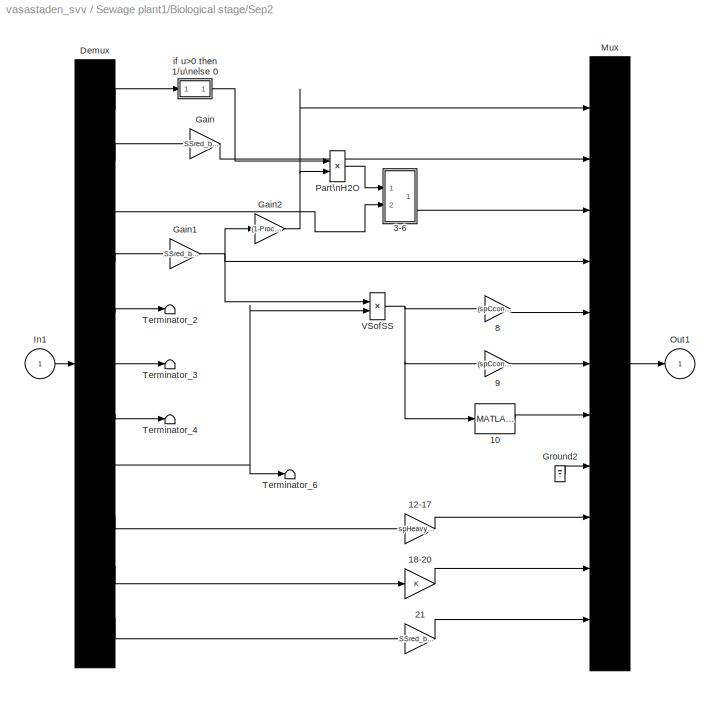
BLOCK [SubSystem] Sewage plant1/Biological stage/Sep2
  Ports = [1, 1]
  ShowPortLabels = off
  TreatAsAtomicUnit = off
BLOCK [MATLABFcn] Sewage plant1/Biological stage/Sep2/10
  MATLABFcn = u*spCcontent
BLOCK [Gain] Sewage plant1/Biological stage/Sep2/12-17
  Gain = spHeavym(:,2).*spHjust
BLOCK [Gain] Sewage plant1/Biological stage/Sep2/18-20
BLOCK [Gain] Sewage plant1/Biological stage/Sep2/21
  Gain = SSred_bio
BLOCK [SubSystem] Sewage plant1/Biological stage/Sep2/3-6
  MaskDisplay = disp('N')
  MaskIconFrame = on
  MaskIconOpaque = on
  MaskIconRotate = none
  MaskIconUnits = autoscale
  Ports = [2, 1]
  ShowPortLabels = off
  TreatAsAtomicUnit = off
BLOCK [Ground] Sewage plant1/Biological stage/Sep2/3-6/Ground1
BLOCK [Mux] Sewage plant1/Biological stage/Sep2/3-6/Mux
  Ports = [4, 1]
BLOCK [MATLABFcn] Sewage plant1/Biological stage/Sep2/3-6/N-tot
  MATLABFcn = (u(1)-u(2)-u(3))*SSred_bio
  OutputDimensions = 1
BLOCK [Product] Sewage plant1/Biological stage/Sep2/3-6/NH4
  Ports = [2, 1]
BLOCK [Fcn] Sewage plant1/Biological stage/Sep2/3-6/NH4 
  Expr = u(2)
BLOCK [Product] Sewage plant1/Biological stage/Sep2/3-6/NH5
  Ports = [2, 1]
BLOCK [Fcn] Sewage plant1/Biological stage/Sep2/3-6/NO3
  Expr = u(3)
BLOCK [Sum] Sewage plant1/Biological stage/Sep2/3-6/Sum
  Inputs = +++
  Ports = [3, 1]
BLOCK [Inport] Sewage plant1/Biological stage/Sep2/3-6/in_1
BLOCK [Inport] Sewage plant1/Biological stage/Sep2/3-6/in_2 
  Port = 2
BLOCK [Outport] Sewage plant1/Biological stage/Sep2/3-6/out_1
  InitialOutput = 0
BLOCK [Gain] Sewage plant1/Biological stage/Sep2/8
  Gain = (spCcontent/12*2*16-spOcontent)/spCODBOD
BLOCK [Gain] Sewage plant1/Biological stage/Sep2/9
  Gain = (spCcontent/12*2*16-spOcontent)
BLOCK [Demux] Sewage plant1/Biological stage/Sep2/Demux
  Outputs = Separation
  Ports = [1, 11]
BLOCK [Gain] Sewage plant1/Biological stage/Sep2/Gain
  Gain = SSred_bio
BLOCK [Gain] Sewage plant1/Biological stage/Sep2/Gain1
  Gain = SSred_bio
BLOCK [Gain] Sewage plant1/Biological stage/Sep2/Gain2
  Gain = (1-ProcSS_bio)/ProcSS_bio/SStoWater
BLOCK [Ground] Sewage plant1/Biological stage/Sep2/Ground2
BLOCK [Inport] Sewage plant1/Biological stage/Sep2/In1
BLOCK [Mux] Sewage plant1/Biological stage/Sep2/Mux
  Inputs = Separation
  Ports = [11, 1]
BLOCK [Outport] Sewage plant1/Biological stage/Sep2/Out1
BLOCK [Product] Sewage plant1/Biological stage/Sep2/Part\nH2O
  Ports = [2, 1]
BLOCK [Terminator] Sewage plant1/Biological stage/Sep2/Terminator_2
BLOCK [Terminator] Sewage plant1/Biological stage/Sep2/Terminator_3
BLOCK [Terminator] Sewage plant1/Biological stage/Sep2/Terminator_4
BLOCK [Terminator] Sewage plant1/Biological stage/Sep2/Terminator_6
BLOCK [Product] Sewage plant1/Biological stage/Sep2/VSofSS
  Ports = [2, 1]
BLOCK [SubSystem] Sewage plant1/Biological stage/Sep2/if u>0 then 1//u\nelse 0
  MaskDisplay = disp('1/u')
  MaskIconFrame = on
  MaskIconOpaque = on
  MaskIconRotate = none
  MaskIconUnits = autoscale
  Ports = [1, 1]
  ShowPortLabels = off
  TreatAsAtomicUnit = off
BLOCK [Constant] Sewage plant1/Biological stage/Sep2/if u>0 then 1//u\nelse 0/Constant
  Value = 0
BLOCK [Constant] Sewage plant1/Biological stage/Sep2/if u>0 then 1//u\nelse 0/Constant1
BLOCK [Switch] Sewage plant1/Biological stage/Sep2/if u>0 then 1//u\nelse 0/Switch
BLOCK [Switch] Sewage plant1/Biological stage/Sep2/if u>0 then 1//u\nelse 0/Switch1
BLOCK [Inport] Sewage plant1/Biological stage/Sep2/if u>0 then 1//u\nelse 0/in_1
BLOCK [Fcn] Sewage plant1/Biological stage/Sep2/if u>0 then 1//u\nelse 0/inv.
  Expr = 1/u
BLOCK [Gain] Sewage plant1/Biological stage/Sep2/if u>0 then 1//u\nelse 0/neg
  Gain = -1
BLOCK [Gain] Sewage plant1/Biological stage/Sep2/if u>0 then 1//u\nelse 0/neg1
  Gain = -1
BLOCK [Outport] Sewage plant1/Biological stage/Sep2/if u>0 then 1//u\nelse 0/out_1
  InitialOutput = 0
BLOCK [Sum] Sewage plant1/Biological stage/Sum
  Inputs = +-
  Ports = [2, 1]
BLOCK [Sum] Sewage plant1/Biological stage/Sum3
  Inputs = +-
  Ports = [2, 1]
BLOCK [Switch] Sewage plant1/Biological stage/Switch 
BLOCK [Terminator] Sewage plant1/Biological stage/Terminator_1
BLOCK [Outport] Sewage plant1/Biological stage/Wastewater
  InitialOutput = 0
  Port = 2
BLOCK [Inport] Sewage plant1/Biological stage/in_1
BLOCK [SubSystem] Sewage plant1/Biological stage/spVSofSS
  Ports = [2, 1]
  ShowPortLabels = off
  TreatAsAtomicUnit = off
BLOCK [Product] Sewage plant1/Biological stage/spVSofSS/17
  Ports = [2, 1]
BLOCK [Product] Sewage plant1/Biological stage/spVSofSS/18
  Ports = [2, 1]
BLOCK [Sum] Sewage plant1/Biological stage/spVSofSS/Sum7
  Ports = [2, 1]
BLOCK [Sum] Sewage plant1/Biological stage/spVSofSS/Sum8
  Ports = [2, 1]
BLOCK [SubSystem] Sewage plant1/Biological stage/spVSofSS/if u>0\nthen 1//u\nelse 0
  MaskDisplay = disp('1/u')
  MaskIconFrame = on
  MaskIconOpaque = on
  MaskIconRotate = none
  MaskIconUnits = autoscale
  Ports = [1, 1]
  ShowPortLabels = off
  TreatAsAtomicUnit = off
BLOCK [Constant] Sewage plant1/Biological stage/spVSofSS/if u>0\nthen 1//u\nelse 0/Constant
  Value = 0
BLOCK [Constant] Sewage plant1/Biological stage/spVSofSS/if u>0\nthen 1//u\nelse 0/Constant1
BLOCK [Switch] Sewage plant1/Biological stage/spVSofSS/if u>0\nthen 1//u\nelse 0/Switch
BLOCK [Switch] Sewage plant1/Biological stage/spVSofSS/if u>0\nthen 1//u\nelse 0/Switch1
BLOCK [Inport] Sewage plant1/Biological stage/spVSofSS/if u>0\nthen 1//u\nelse 0/in_1
BLOCK [Fcn] Sewage plant1/Biological stage/spVSofSS/if u>0\nthen 1//u\nelse 0/inv.
  Expr = 1/u
BLOCK [Gain] Sewage plant1/Biological stage/spVSofSS/if u>0\nthen 1//u\nelse 0/neg
  Gain = -1
BLOCK [Gain] Sewage plant1/Biological stage/spVSofSS/if u>0\nthen 1//u\nelse 0/neg1
  Gain = -1
BLOCK [Outport] Sewage plant1/Biological stage/spVSofSS/if u>0\nthen 1//u\nelse 0/out_1
  InitialOutput = 0
BLOCK [Inport] Sewage plant1/Biological stage/spVSofSS/in_1
BLOCK [Inport] Sewage plant1/Biological stage/spVSofSS/in_2
  Port = 2
BLOCK [Outport] Sewage plant1/Biological stage/spVSofSS/out_1
  InitialOutput = 0
BLOCK [Fcn] Sewage plant1/Biological stage/spVSofSS/spBioSS
  Expr = -u[7]
BLOCK [Fcn] Sewage plant1/Biological stage/spVSofSS/spSS
  Expr = u[7]
BLOCK [Fcn] Sewage plant1/Biological stage/spVSofSS/spVSofSS
  Expr = u[11]
BLOCK [Constant] Sewage plant1/Biological stage/zeros(1,44) 
  MaskDisplay = disp('0')
  MaskIconFrame = on
  MaskIconOpaque = on
  MaskIconRotate = none
  MaskIconUnits = autoscale
  Value = zeros(1,totnr)
BLOCK [SubSystem] Sewage plant1/Chemical stage
  Ports = [2, 2]
  ShowPortLabels = off
  TreatAsAtomicUnit = off
BLOCK [MATLABFcn] Sewage plant1/Chemical stage/BOD, \nCOD
  MATLABFcn = [zeros(size(1:7)) , u(8)*(1-0.95), u(9)*(1-0.88),zeros(size(1:12))]
BLOCK [MATLABFcn] Sewage plant1/Chemical stage/BOD=0\nCOD=0
  MATLABFcn = [u(1:7) ; 0; 0; u(10:21)]
BLOCK [Inport] Sewage plant1/Chemical stage/In1
BLOCK [Inport] Sewage plant1/Chemical stage/In2
  Port = 2
BLOCK [Outport] Sewage plant1/Chemical stage/Out1
BLOCK [Outport] Sewage plant1/Chemical stage/Out2
  Port = 2
BLOCK [SubSystem] Sewage plant1/Chemical stage/Separation
  Ports = [1, 1]
  ShowPortLabels = off
  TreatAsAtomicUnit = off
BLOCK [MATLABFcn] Sewage plant1/Chemical stage/Separation/10
  MATLABFcn = u*spCcontent
BLOCK [Gain] Sewage plant1/Chemical stage/Separation/12-17
  Gain = spHeavym(:,3).*spHjust
BLOCK [Gain] Sewage plant1/Chemical stage/Separation/18-20
BLOCK [Gain] Sewage plant1/Chemical stage/Separation/2
  Gain = spPout1
BLOCK [Gain] Sewage plant1/Chemical stage/Separation/21
  Gain = SSred_chem
BLOCK [SubSystem] Sewage plant1/Chemical stage/Separation/3-6
  MaskDisplay = disp('N')
  MaskIconFrame = on
  MaskIconOpaque = on
  MaskIconRotate = none
  MaskIconUnits = autoscale
  Ports = [2, 1]
  ShowPortLabels = off
  TreatAsAtomicUnit = off
BLOCK [Ground] Sewage plant1/Chemical stage/Separation/3-6/Ground1
BLOCK [Mux] Sewage plant1/Chemical stage/Separation/3-6/Mux
  Ports = [4, 1]
BLOCK [MATLABFcn] Sewage plant1/Chemical stage/Separation/3-6/N-tot
  MATLABFcn = (u(1)-u(2)-u(3))*SSred_chem
  OutputDimensions = 1
BLOCK [Product] Sewage plant1/Chemical stage/Separation/3-6/NH4
  Ports = [2, 1]
BLOCK [Fcn] Sewage plant1/Chemical stage/Separation/3-6/NH4 
  Expr = u(2)
BLOCK [Product] Sewage plant1/Chemical stage/Separation/3-6/NH5
  Ports = [2, 1]
BLOCK [Fcn] Sewage plant1/Chemical stage/Separation/3-6/NO3
  Expr = u(3)
BLOCK [Sum] Sewage plant1/Chemical stage/Separation/3-6/Sum
  Inputs = +++
  Ports = [3, 1]
BLOCK [Inport] Sewage plant1/Chemical stage/Separation/3-6/in_1
BLOCK [Inport] Sewage plant1/Chemical stage/Separation/3-6/in_2 
  Port = 2
BLOCK [Outport] Sewage plant1/Chemical stage/Separation/3-6/out_1
  InitialOutput = 0
BLOCK [Gain] Sewage plant1/Chemical stage/Separation/7
  Gain = SSred_chem
BLOCK [Demux] Sewage plant1/Chemical stage/Separation/Demux
  Outputs = Separation
  Ports = [1, 11]
BLOCK [Gain] Sewage plant1/Chemical stage/Separation/Gain2
  Gain = (1-ProcSS_chem)/ProcSS_chem/SStoWater
BLOCK [Ground] Sewage plant1/Chemical stage/Separation/Ground1
BLOCK [Ground] Sewage plant1/Chemical stage/Separation/Ground3
BLOCK [Ground] Sewage plant1/Chemical stage/Separation/Ground4
BLOCK [Inport] Sewage plant1/Chemical stage/Separation/In1
BLOCK [Mux] Sewage plant1/Chemical stage/Separation/Mux
  Inputs = Separation
  Ports = [11, 1]
BLOCK [Outport] Sewage plant1/Chemical stage/Separation/Out1
BLOCK [Product] Sewage plant1/Chemical stage/Separation/Part\nH2O
  Ports = [2, 1]
BLOCK [Terminator] Sewage plant1/Chemical stage/Separation/Terminator_2
BLOCK [Terminator] Sewage plant1/Chemical stage/Separation/Terminator_3
BLOCK [Terminator] Sewage plant1/Chemical stage/Separation/Terminator_4
BLOCK [Terminator] Sewage plant1/Chemical stage/Separation/Terminator_5
BLOCK [Product] Sewage plant1/Chemical stage/Separation/VSofSS
  Ports = [2, 1]
BLOCK [SubSystem] Sewage plant1/Chemical stage/Separation/if u>0 then 1//u\nelse 0
  MaskDisplay = disp('1/u')
  MaskIconFrame = on
  MaskIconOpaque = on
  MaskIconRotate = none
  MaskIconUnits = autoscale
  Ports = [1, 1]
  ShowPortLabels = off
  TreatAsAtomicUnit = off
BLOCK [Constant] Sewage plant1/Chemical stage/Separation/if u>0 then 1//u\nelse 0/Constant
  Value = 0
BLOCK [Constant] Sewage plant1/Chemical stage/Separation/if u>0 then 1//u\nelse 0/Constant1
BLOCK [Switch] Sewage plant1/Chemical stage/Separation/if u>0 then 1//u\nelse 0/Switch
BLOCK [Switch] Sewage plant1/Chemical stage/Separation/if u>0 then 1//u\nelse 0/Switch1
BLOCK [Inport] Sewage plant1/Chemical stage/Separation/if u>0 then 1//u\nelse 0/in_1
BLOCK [Fcn] Sewage plant1/Chemical stage/Separation/if u>0 then 1//u\nelse 0/inv.
  Expr = 1/u
BLOCK [Gain] Sewage plant1/Chemical stage/Separation/if u>0 then 1//u\nelse 0/neg
  Gain = -1
BLOCK [Gain] Sewage plant1/Chemical stage/Separation/if u>0 then 1//u\nelse 0/neg1
  Gain = -1
BLOCK [Outport] Sewage plant1/Chemical stage/Separation/if u>0 then 1//u\nelse 0/out_1
  InitialOutput = 0
BLOCK [Sum] Sewage plant1/Chemical stage/Sum
  Inputs = ++-
  Ports = [3, 1]
BLOCK [Inport] Sewage plant1/In1
BLOCK [Outport] Sewage plant1/Landfill
  Port = 2
BLOCK [SubSystem] Sewage plant1/Pre-sedimentation
  Ports = [1, 2]
  ShowPortLabels = off
  TreatAsAtomicUnit = off
BLOCK [SubSystem] Sewage plant1/Pre-sedimentation/Chemical
  Ports = [1, 1]
  ShowPortLabels = off
  TreatAsAtomicUnit = off
BLOCK [Fcn] Sewage plant1/Pre-sedimentation/Chemical/Amount of\nchemical
  Expr = u(2)*(1.1-spPout)/0.56*(55.55/31)/spChemFe
BLOCK [MATLABFcn] Sewage plant1/Pre-sedimentation/Chemical/Chemical
  MATLABFcn = spChemicalPart.*u/1000
  OutputDimensions = totnr
BLOCK [MATLABFcn] Sewage plant1/Pre-sedimentation/Chemical/Chemsludge
  MATLABFcn = [zeros(6,1); u(2)*spPBound*(30.97+55.85+16.0*4)/30.97; zeros(14,1)]
BLOCK [Demux] Sewage plant1/Pre-sedimentation/Chemical/Demux
  Outputs = [1,nr_ex_H2O]
  Ports = [1, 2]
BLOCK [Fcn] Sewage plant1/Pre-sedimentation/Chemical/H20 g//s - m3//s
  Expr = u(1)/1000000
BLOCK [SubSystem] Sewage plant1/Pre-sedimentation/Chemical/More Info
  MaskDisplay = disp('Info')
  MaskIconFrame = on
  MaskIconOpaque = on
  MaskIconRotate = none
  MaskIconUnits = autoscale
  Ports = []
  ShowPortLabels = off
  TreatAsAtomicUnit = off
BLOCK [Mux] Sewage plant1/Pre-sedimentation/Chemical/Mux
  DisplayOption = bar
  Inputs = [1,nr_ex_H2O]
  Ports = [2, 1]
BLOCK [Sum] Sewage plant1/Pre-sedimentation/Chemical/Sum
  Ports = [2, 1]
BLOCK [Inport] Sewage plant1/Pre-sedimentation/Chemical/in_1
BLOCK [Outport] Sewage plant1/Pre-sedimentation/Chemical/out_1
  InitialOutput = 0
BLOCK [Demux] Sewage plant1/Pre-sedimentation/Demux
  Outputs = NewVSofSS
  Ports = [1, 3]
BLOCK [Inport] Sewage plant1/Pre-sedimentation/In1
BLOCK [Mux] Sewage plant1/Pre-sedimentation/Mux
  Inputs = NewVSofSS
  Ports = [3, 1]
BLOCK [Outport] Sewage plant1/Pre-sedimentation/Out1
BLOCK [Outport] Sewage plant1/Pre-sedimentation/Out2
  Port = 2
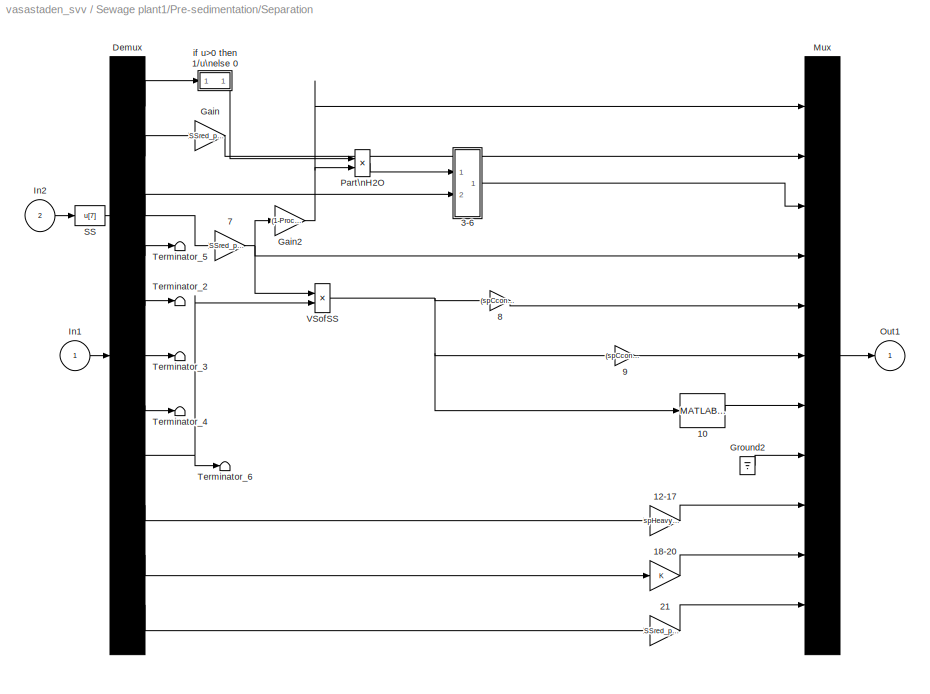
BLOCK [SubSystem] Sewage plant1/Pre-sedimentation/Separation
  Ports = [2, 1]
  ShowPortLabels = off
  TreatAsAtomicUnit = off
BLOCK [MATLABFcn] Sewage plant1/Pre-sedimentation/Separation/10
  MATLABFcn = u*spCcontent
BLOCK [Gain] Sewage plant1/Pre-sedimentation/Separation/12-17
  Gain = spHeavym(:,1).*spHjust
BLOCK [Gain] Sewage plant1/Pre-sedimentation/Separation/18-20
BLOCK [Gain] Sewage plant1/Pre-sedimentation/Separation/21
  Gain = SSred_presed
BLOCK [SubSystem] Sewage plant1/Pre-sedimentation/Separation/3-6
  MaskDisplay = disp('N')
  MaskIconFrame = on
  MaskIconOpaque = on
  MaskIconRotate = none
  MaskIconUnits = autoscale
  Ports = [2, 1]
  ShowPortLabels = off
  TreatAsAtomicUnit = off
BLOCK [Ground] Sewage plant1/Pre-sedimentation/Separation/3-6/Ground1
BLOCK [Mux] Sewage plant1/Pre-sedimentation/Separation/3-6/Mux
  Ports = [4, 1]
BLOCK [MATLABFcn] Sewage plant1/Pre-sedimentation/Separation/3-6/N-tot
  MATLABFcn = (u(1)-u(2)-u(3))*SSred_presed
  OutputDimensions = 1
BLOCK [Product] Sewage plant1/Pre-sedimentation/Separation/3-6/NH4
  Ports = [2, 1]
BLOCK [Fcn] Sewage plant1/Pre-sedimentation/Separation/3-6/NH4 
  Expr = u(2)
BLOCK [Product] Sewage plant1/Pre-sedimentation/Separation/3-6/NH5
  Ports = [2, 1]
BLOCK [Fcn] Sewage plant1/Pre-sedimentation/Separation/3-6/NO3
  Expr = u(3)
BLOCK [Sum] Sewage plant1/Pre-sedimentation/Separation/3-6/Sum
  Inputs = +++
  Ports = [3, 1]
BLOCK [Inport] Sewage plant1/Pre-sedimentation/Separation/3-6/in_1
BLOCK [Inport] Sewage plant1/Pre-sedimentation/Separation/3-6/in_2 
  Port = 2
BLOCK [Outport] Sewage plant1/Pre-sedimentation/Separation/3-6/out_1
  InitialOutput = 0
BLOCK [Gain] Sewage plant1/Pre-sedimentation/Separation/7
  Gain = SSred_presed
BLOCK [Gain] Sewage plant1/Pre-sedimentation/Separation/8
  Gain = (spCcontent/12*(2*16)-spOcontent)/spCODBOD
BLOCK [Gain] Sewage plant1/Pre-sedimentation/Separation/9
  Gain = (spCcontent/12*(2*16)-spOcontent)
BLOCK [Demux] Sewage plant1/Pre-sedimentation/Separation/Demux
  Outputs = Separation
  Ports = [1, 11]
BLOCK [Gain] Sewage plant1/Pre-sedimentation/Separation/Gain
  Gain = SSred_presed
BLOCK [Gain] Sewage plant1/Pre-sedimentation/Separation/Gain2
  Gain = (1-ProcSS_presed)/ProcSS_presed/SStoWater
BLOCK [Ground] Sewage plant1/Pre-sedimentation/Separation/Ground2
BLOCK [Inport] Sewage plant1/Pre-sedimentation/Separation/In1
BLOCK [Inport] Sewage plant1/Pre-sedimentation/Separation/In2
  Port = 2
BLOCK [Mux] Sewage plant1/Pre-sedimentation/Separation/Mux
  Inputs = Separation
  Ports = [11, 1]
BLOCK [Outport] Sewage plant1/Pre-sedimentation/Separation/Out1
BLOCK [Product] Sewage plant1/Pre-sedimentation/Separation/Part\nH2O
  Ports = [2, 1]
BLOCK [Fcn] Sewage plant1/Pre-sedimentation/Separation/SS 
  Expr = u[7]
BLOCK [Terminator] Sewage plant1/Pre-sedimentation/Separation/Terminator_2
BLOCK [Terminator] Sewage plant1/Pre-sedimentation/Separation/Terminator_3
BLOCK [Terminator] Sewage plant1/Pre-sedimentation/Separation/Terminator_4
BLOCK [Terminator] Sewage plant1/Pre-sedimentation/Separation/Terminator_5
BLOCK [Terminator] Sewage plant1/Pre-sedimentation/Separation/Terminator_6
BLOCK [Product] Sewage plant1/Pre-sedimentation/Separation/VSofSS
  Ports = [2, 1]
BLOCK [SubSystem] Sewage plant1/Pre-sedimentation/Separation/if u>0 then 1//u\nelse 0
  MaskDisplay = disp('1/u')
  MaskIconFrame = on
  MaskIconOpaque = on
  MaskIconRotate = none
  MaskIconUnits = autoscale
  Ports = [1, 1]
  ShowPortLabels = off
  TreatAsAtomicUnit = off
BLOCK [Constant] Sewage plant1/Pre-sedimentation/Separation/if u>0 then 1//u\nelse 0/Constant
  Value = 0
BLOCK [Constant] Sewage plant1/Pre-sedimentation/Separation/if u>0 then 1//u\nelse 0/Constant1
BLOCK [Switch] Sewage plant1/Pre-sedimentation/Separation/if u>0 then 1//u\nelse 0/Switch
BLOCK [Switch] Sewage plant1/Pre-sedimentation/Separation/if u>0 then 1//u\nelse 0/Switch1
BLOCK [Inport] Sewage plant1/Pre-sedimentation/Separation/if u>0 then 1//u\nelse 0/in_1
BLOCK [Fcn] Sewage plant1/Pre-sedimentation/Separation/if u>0 then 1//u\nelse 0/inv.
  Expr = 1/u
BLOCK [Gain] Sewage plant1/Pre-sedimentation/Separation/if u>0 then 1//u\nelse 0/neg
  Gain = -1
BLOCK [Gain] Sewage plant1/Pre-sedimentation/Separation/if u>0 then 1//u\nelse 0/neg1
  Gain = -1
BLOCK [Outport] Sewage plant1/Pre-sedimentation/Separation/if u>0 then 1//u\nelse 0/out_1
  InitialOutput = 0
BLOCK [Sum] Sewage plant1/Pre-sedimentation/Sum
  Inputs = +-
  Ports = [2, 1]
BLOCK [Sum] Sewage plant1/Pre-sedimentation/Sum1
  Ports = [2, 1]
BLOCK [Terminator] Sewage plant1/Pre-sedimentation/Terminator_1
BLOCK [SubSystem] Sewage plant1/Pre-sedimentation/spVSofSS
  Ports = [2, 1]
  ShowPortLabels = off
  TreatAsAtomicUnit = off
BLOCK [Product] Sewage plant1/Pre-sedimentation/spVSofSS/17
  Ports = [2, 1]
BLOCK [Sum] Sewage plant1/Pre-sedimentation/spVSofSS/Sum7
  Ports = [2, 1]
BLOCK [SubSystem] Sewage plant1/Pre-sedimentation/spVSofSS/if u>0 then 1//u\nelse 0
  MaskDisplay = disp('1/u')
  MaskIconFrame = on
  MaskIconOpaque = on
  MaskIconRotate = none
  MaskIconUnits = autoscale
  Ports = [1, 1]
  ShowPortLabels = off
  TreatAsAtomicUnit = off
BLOCK [Constant] Sewage plant1/Pre-sedimentation/spVSofSS/if u>0 then 1//u\nelse 0/Constant
  Value = 0
BLOCK [Constant] Sewage plant1/Pre-sedimentation/spVSofSS/if u>0 then 1//u\nelse 0/Constant1
BLOCK [Switch] Sewage plant1/Pre-sedimentation/spVSofSS/if u>0 then 1//u\nelse 0/Switch
BLOCK [Switch] Sewage plant1/Pre-sedimentation/spVSofSS/if u>0 then 1//u\nelse 0/Switch1
BLOCK [Inport] Sewage plant1/Pre-sedimentation/spVSofSS/if u>0 then 1//u\nelse 0/in_1
BLOCK [Fcn] Sewage plant1/Pre-sedimentation/spVSofSS/if u>0 then 1//u\nelse 0/inv.
  Expr = 1/u
BLOCK [Gain] Sewage plant1/Pre-sedimentation/spVSofSS/if u>0 then 1//u\nelse 0/neg
  Gain = -1
BLOCK [Gain] Sewage plant1/Pre-sedimentation/spVSofSS/if u>0 then 1//u\nelse 0/neg1
  Gain = -1
BLOCK [Outport] Sewage plant1/Pre-sedimentation/spVSofSS/if u>0 then 1//u\nelse 0/out_1
  InitialOutput = 0
BLOCK [Inport] Sewage plant1/Pre-sedimentation/spVSofSS/in_1
BLOCK [Inport] Sewage plant1/Pre-sedimentation/spVSofSS/in_2
  Port = 2
BLOCK [Outport] Sewage plant1/Pre-sedimentation/spVSofSS/out_1
  InitialOutput = 0
BLOCK [Fcn] Sewage plant1/Pre-sedimentation/spVSofSS/spChemSS
  Expr = u[7]
BLOCK [Fcn] Sewage plant1/Pre-sedimentation/spVSofSS/spSS
  Expr = u[7]
BLOCK [Gain] Sewage plant1/Pre-sedimentation/spVSofSS/spVS
  Gain = spVSofSS
BLOCK [SubSystem] Sewage plant1/Sandpit
  Ports = [1, 2]
  ShowPortLabels = off
  TreatAsAtomicUnit = off
BLOCK [Inport] Sewage plant1/Sandpit/In1
BLOCK [Outport] Sewage plant1/Sandpit/Out1
BLOCK [Outport] Sewage plant1/Sandpit/Out2
  Port = 2
BLOCK [SubSystem] Sewage plant1/Sandpit/Separation
  Ports = [1, 1]
  ShowPortLabels = off
  TreatAsAtomicUnit = off
BLOCK [MATLABFcn] Sewage plant1/Sandpit/Separation/10
  MATLABFcn = u*spCcontent
BLOCK [Gain] Sewage plant1/Sandpit/Separation/12-17
  Gain = SSred_sand
BLOCK [Gain] Sewage plant1/Sandpit/Separation/18-20
BLOCK [Gain] Sewage plant1/Sandpit/Separation/21
  Gain = SSred_sand
BLOCK [SubSystem] Sewage plant1/Sandpit/Separation/3-6
  MaskDisplay = disp('N')
  MaskIconFrame = on
  MaskIconOpaque = on
  MaskIconRotate = none
  MaskIconUnits = autoscale
  Ports = [2, 1]
  ShowPortLabels = off
  TreatAsAtomicUnit = off
BLOCK [Ground] Sewage plant1/Sandpit/Separation/3-6/Ground2
BLOCK [Mux] Sewage plant1/Sandpit/Separation/3-6/Mux
  Ports = [4, 1]
BLOCK [MATLABFcn] Sewage plant1/Sandpit/Separation/3-6/N-tot
  MATLABFcn = (u(1)-u(2)-u(3))*SSred_sand
  OutputDimensions = 1
BLOCK [Product] Sewage plant1/Sandpit/Separation/3-6/NH4
  Ports = [2, 1]
BLOCK [Fcn] Sewage plant1/Sandpit/Separation/3-6/NH4 
  Expr = u(2)
BLOCK [Product] Sewage plant1/Sandpit/Separation/3-6/NH5
  Ports = [2, 1]
BLOCK [Fcn] Sewage plant1/Sandpit/Separation/3-6/NO3
  Expr = u(3)
BLOCK [Sum] Sewage plant1/Sandpit/Separation/3-6/Sum
  Inputs = +++
  Ports = [3, 1]
BLOCK [Inport] Sewage plant1/Sandpit/Separation/3-6/in_1
BLOCK [Inport] Sewage plant1/Sandpit/Separation/3-6/in_2 
  Port = 2
BLOCK [Outport] Sewage plant1/Sandpit/Separation/3-6/out_1
  InitialOutput = 0
BLOCK [Gain] Sewage plant1/Sandpit/Separation/8
  Gain = spCcontent*3/2.5
BLOCK [Gain] Sewage plant1/Sandpit/Separation/9
  Gain = spCcontent*3
BLOCK [Demux] Sewage plant1/Sandpit/Separation/Demux
  Outputs = Separation
  Ports = [1, 11]
BLOCK [Gain] Sewage plant1/Sandpit/Separation/Gain
  Gain = SSred_sand
BLOCK [Ground] Sewage plant1/Sandpit/Separation/Ground1
BLOCK [Gain] Sewage plant1/Sandpit/Separation/H2O
  Gain = (1-ProcSS_sand)/ProcSS_sand/SStoWater
BLOCK [Inport] Sewage plant1/Sandpit/Separation/In1
BLOCK [Mux] Sewage plant1/Sandpit/Separation/Mux
  Inputs = Separation
  Ports = [11, 1]
BLOCK [Outport] Sewage plant1/Sandpit/Separation/Out1
BLOCK [Product] Sewage plant1/Sandpit/Separation/Part\nH2O
  Ports = [2, 1]
BLOCK [Gain] Sewage plant1/Sandpit/Separation/SS
  Gain = SSred_sand
BLOCK [Terminator] Sewage plant1/Sandpit/Separation/Terminator_2
BLOCK [Terminator] Sewage plant1/Sandpit/Separation/Terminator_4
BLOCK [Terminator] Sewage plant1/Sandpit/Separation/Terminator_5
BLOCK [Terminator] Sewage plant1/Sandpit/Separation/Terminator_6
BLOCK [Gain] Sewage plant1/Sandpit/Separation/VS of \nSS
  Gain = VSofSS_sand
BLOCK [SubSystem] Sewage plant1/Sandpit/Separation/if u>0 then 1//u\nelse 0
  MaskDisplay = disp('1/u')
  MaskIconFrame = on
  MaskIconOpaque = on
  MaskIconRotate = none
  MaskIconUnits = autoscale
  Ports = [1, 1]
  ShowPortLabels = off
  TreatAsAtomicUnit = off
BLOCK [Constant] Sewage plant1/Sandpit/Separation/if u>0 then 1//u\nelse 0/Constant
  Value = 0
BLOCK [Constant] Sewage plant1/Sandpit/Separation/if u>0 then 1//u\nelse 0/Constant1
BLOCK [Switch] Sewage plant1/Sandpit/Separation/if u>0 then 1//u\nelse 0/Switch
BLOCK [Switch] Sewage plant1/Sandpit/Separation/if u>0 then 1//u\nelse 0/Switch1
BLOCK [Inport] Sewage plant1/Sandpit/Separation/if u>0 then 1//u\nelse 0/in_1
BLOCK [Fcn] Sewage plant1/Sandpit/Separation/if u>0 then 1//u\nelse 0/inv.
  Expr = 1/u
BLOCK [Gain] Sewage plant1/Sandpit/Separation/if u>0 then 1//u\nelse 0/neg
  Gain = -1
BLOCK [Gain] Sewage plant1/Sandpit/Separation/if u>0 then 1//u\nelse 0/neg1
  Gain = -1
BLOCK [Outport] Sewage plant1/Sandpit/Separation/if u>0 then 1//u\nelse 0/out_1
  InitialOutput = 0
BLOCK [Sum] Sewage plant1/Sandpit/Sum
  Inputs = -+
  Ports = [2, 1]
BLOCK [Scope] Sewage plant1/Scope
  DataFormat = StructureWithTime
  NumInputPorts = 1
  Ports = [1]
BLOCK [SubSystem] Sewage plant1/Screen
  Ports = [1, 2]
  ShowPortLabels = off
  TreatAsAtomicUnit = off
BLOCK [Inport] Sewage plant1/Screen/In1
BLOCK [Outport] Sewage plant1/Screen/Out1
BLOCK [Outport] Sewage plant1/Screen/Out2
  Port = 2
BLOCK [SubSystem] Sewage plant1/Screen/Separation
  Ports = [1, 1]
  ShowPortLabels = off
  TreatAsAtomicUnit = off
BLOCK [Gain] Sewage plant1/Screen/Separation/10
  Gain = SSred_screen
BLOCK [Gain] Sewage plant1/Screen/Separation/12-17
  Gain = SSred_screen
BLOCK [Gain] Sewage plant1/Screen/Separation/18-20
BLOCK [Gain] Sewage plant1/Screen/Separation/2
  Gain = SSred_screen
BLOCK [Gain] Sewage plant1/Screen/Separation/21
  Gain = SSred_screen
BLOCK [SubSystem] Sewage plant1/Screen/Separation/3-6
  MaskDisplay = disp('N')
  MaskIconFrame = on
  MaskIconOpaque = on
  MaskIconRotate = none
  MaskIconUnits = autoscale
  Ports = [2, 1]
  ShowPortLabels = off
  TreatAsAtomicUnit = off
BLOCK [Ground] Sewage plant1/Screen/Separation/3-6/Ground
BLOCK [Mux] Sewage plant1/Screen/Separation/3-6/Mux
  Ports = [4, 1]
BLOCK [MATLABFcn] Sewage plant1/Screen/Separation/3-6/N-tot
  MATLABFcn = (u(1)-u(2)-u(3))*SSred_screen
  OutputDimensions = 1
BLOCK [Product] Sewage plant1/Screen/Separation/3-6/NH4
  Ports = [2, 1]
BLOCK [Fcn] Sewage plant1/Screen/Separation/3-6/NH4 
  Expr = u(2)
BLOCK [Product] Sewage plant1/Screen/Separation/3-6/NH5
  Ports = [2, 1]
BLOCK [Fcn] Sewage plant1/Screen/Separation/3-6/NO3
  Expr = u(3)
BLOCK [Sum] Sewage plant1/Screen/Separation/3-6/Sum
  Inputs = +++
  Ports = [3, 1]
BLOCK [Inport] Sewage plant1/Screen/Separation/3-6/in_1
BLOCK [Inport] Sewage plant1/Screen/Separation/3-6/in_2 
  Port = 2
BLOCK [Outport] Sewage plant1/Screen/Separation/3-6/out_1
  InitialOutput = 0
BLOCK [Gain] Sewage plant1/Screen/Separation/7
  Gain = SSred_screen
BLOCK [Product] Sewage plant1/Screen/Separation/8
  Ports = [2, 1]
BLOCK [Gain] Sewage plant1/Screen/Separation/9
  Gain = SSred_screen
BLOCK [Sum] Sewage plant1/Screen/Separation/BOD
  Inputs = -+
  Ports = [2, 1]
BLOCK [Gain] Sewage plant1/Screen/Separation/BOD\nof SS
  Gain = VSofSS_screen*BODofVS
BLOCK [Demux] Sewage plant1/Screen/Separation/Demux
  Outputs = Separation
  Ports = [1, 11]
BLOCK [Gain] Sewage plant1/Screen/Separation/Gain2
  Gain = (1-ProcSS_screen)/ProcSS_screen/SStoWater
BLOCK [Ground] Sewage plant1/Screen/Separation/Ground2
BLOCK [Inport] Sewage plant1/Screen/Separation/In1
BLOCK [Mux] Sewage plant1/Screen/Separation/Mux
  Inputs = Separation
  Ports = [11, 1]
BLOCK [Outport] Sewage plant1/Screen/Separation/Out1
BLOCK [Product] Sewage plant1/Screen/Separation/Part\nH2O
  Ports = [2, 1]
BLOCK [Gain] Sewage plant1/Screen/Separation/SS
  Gain = SSred_screen
BLOCK [Sum] Sewage plant1/Screen/Separation/Sum7
  Ports = [2, 1]
BLOCK [Terminator] Sewage plant1/Screen/Separation/Terminator_4
BLOCK [SubSystem] Sewage plant1/Screen/Separation/if u>0 then 1//u\nelse 0
  MaskDisplay = disp('1/u')
  MaskIconFrame = on
  MaskIconOpaque = on
  MaskIconRotate = none
  MaskIconUnits = autoscale
  Ports = [1, 1]
  ShowPortLabels = off
  TreatAsAtomicUnit = off
BLOCK [Constant] Sewage plant1/Screen/Separation/if u>0 then 1//u\nelse 0/Constant
  Value = 0
BLOCK [Constant] Sewage plant1/Screen/Separation/if u>0 then 1//u\nelse 0/Constant1
BLOCK [Switch] Sewage plant1/Screen/Separation/if u>0 then 1//u\nelse 0/Switch
BLOCK [Switch] Sewage plant1/Screen/Separation/if u>0 then 1//u\nelse 0/Switch1
BLOCK [Inport] Sewage plant1/Screen/Separation/if u>0 then 1//u\nelse 0/in_1
BLOCK [Fcn] Sewage plant1/Screen/Separation/if u>0 then 1//u\nelse 0/inv.
  Expr = 1/u
BLOCK [Gain] Sewage plant1/Screen/Separation/if u>0 then 1//u\nelse 0/neg
  Gain = -1
BLOCK [Gain] Sewage plant1/Screen/Separation/if u>0 then 1//u\nelse 0/neg1
  Gain = -1
BLOCK [Outport] Sewage plant1/Screen/Separation/if u>0 then 1//u\nelse 0/out_1
  InitialOutput = 0
BLOCK [Sum] Sewage plant1/Screen/Sum
  Inputs = -+
  Ports = [2, 1]
BLOCK [Outport] Sewage plant1/Sludge
  Port = 3
BLOCK [Sum] Sewage plant1/Sum3
  Ports = [2, 1]
BLOCK [Sum] Sewage plant1/Sum4
  Inputs = +++
  Ports = [3, 1]
BLOCK [ToWorkspace] Sewage plant1/To Workspace
  MaxDataPoints = inf
  SampleTime = -1
  SaveFormat = Array
  VariableName = inSewageplant
BLOCK [Fcn] Sewage plant1/check
  Expr = u[1]
BLOCK [SubSystem] Sludge
  Ports = [1]
  ShowPortLabels = off
  TreatAsAtomicUnit = off
BLOCK [Inport] Sludge/In1
BLOCK [ToWorkspace] Sludge/To Workspace
  MaxDataPoints = inf
  SampleTime = -1
  SaveFormat = Array
  VariableName = outSludge
BLOCK [Sum] Sum
  Ports = [2, 1]
BLOCK [Sum] Sum1
  Ports = [2, 1]
BLOCK [Sum] Sum2
  Ports = [2, 1]
BLOCK [SubSystem] Water
  Ports = [2]
  ShowPortLabels = off
  TreatAsAtomicUnit = off
BLOCK [Inport] Water/CSO
BLOCK [Sum] Water/Sum
  Ports = [2, 1]
BLOCK [ToWorkspace] Water/To Workspace
  MaxDataPoints = inf
  SampleTime = -1
  SaveFormat = Array
  VariableName = outRecipient
BLOCK [ToWorkspace] Water/To Workspace1
  MaxDataPoints = inf
  SampleTime = -1
  SaveFormat = Array
  VariableName = out_WWTP_Recipient
BLOCK [Inport] Water/WWTP
  Port = 2
ANNOTATION CSO/if u>0 then 1//u\nelse 0: if u<=0, 0, else 1/u, end
ANNOTATION CSO/if u>CSO_limit then CSO_limit\nelse u: if CSO_choice>=1, CSO, else u, end
ANNOTATION CSO/if u>CSO_limit then CSO_limit\nelse u: if u>=CSO_limit, CSO_limit\n, else u, end
ANNOTATION Combined Sewer System (4-6): \"Combined Sewer System\"
ANNOTATION Combined Sewer System (4-6)/Stormwater/Storm water/Add pollutants in rain/Initial loss: Submodel to calculate inital loss
ANNOTATION Combined Sewer System (4-6)/Stormwater/Storm water/Add pollutants in rain/Initial loss: [in sum1 count/100 out4 out5 ]
ANNOTATION Combined Sewer System (4-6)/Stormwater/Storm water/Rain -> Stormwater/road surfaces/pollutants on roads/brake wear: [ug/fkm]
ANNOTATION Combined Sewer System (4-6)/Stormwater/Storm water/Rain -> Stormwater/road surfaces/pollutants on roads/catalyst: [ug/fkm]
ANNOTATION Combined Sewer System (4-6)/Stormwater/Storm water/Rain -> Stormwater/road surfaces/pollutants on roads/oil discharge: [ug/fkm]
ANNOTATION Combined Sewer System (4-6)/Stormwater/Storm water/Rain -> Stormwater/road surfaces/pollutants on roads/road wear: kilos of road material \nper time unit
ANNOTATION Combined Sewer System (4-6)/Stormwater/Storm water/Rain -> Stormwater/road surfaces/pollutants on roads/tyre wear: Kilos of tyre per\ntime unit
ANNOTATION Combined Sewer System (4-6)/Stormwater/Storm water/Rain -> Stormwater/road surfaces/pollutants on roads/tyre wear: [mg]
ANNOTATION Combined Sewer System (4-6)/Stormwater/Storm water/Rain -> Stormwater/road surfaces/pollutants on roads/tyre wear/tyre wear: change of units\ntons-kg
ANNOTATION Combined Sewer System (4-6)/Stormwater/Storm water/Rain -> Stormwater/road surfaces/rain on road: [m]
ANNOTATION Combined Sewer System (4-6)/Stormwater/Storm water/Rain -> Stormwater/roofs: Accumulates pollutants over time. Washes out during rain.
ANNOTATION Combined Sewer System (4-6)/Stormwater/Storm water/Runoff/Subsystem1/if u>0 then u\nelse 1: if u<=0, 0, else u, end
ANNOTATION Separate Sewer System\nSani WW active (1-3): Separate Sewer System\n(Sani WW active)\n
ANNOTATION Separate Sewer System\nSani WW active (1-3)/Stormwater/Storm water/Add pollutants in rain/Initial loss: Submodel to calculate inital loss
ANNOTATION Separate Sewer System\nSani WW active (1-3)/Stormwater/Storm water/Add pollutants in rain/Initial loss: [in sum1 count/100 out4 out5 ]
ANNOTATION Separate Sewer System\nSani WW active (1-3)/Stormwater/Storm water/Rain -> Stormwater/road surfaces/pollutants on roads/brake wear: [ug/fkm]
ANNOTATION Separate Sewer System\nSani WW active (1-3)/Stormwater/Storm water/Rain -> Stormwater/road surfaces/pollutants on roads/catalyst: [ug/fkm]
ANNOTATION Separate Sewer System\nSani WW active (1-3)/Stormwater/Storm water/Rain -> Stormwater/road surfaces/pollutants on roads/oil discharge: [ug/fkm]
ANNOTATION Separate Sewer System\nSani WW active (1-3)/Stormwater/Storm water/Rain -> Stormwater/road surfaces/pollutants on roads/road wear: kilos of road material \nper time unit
ANNOTATION Separate Sewer System\nSani WW active (1-3)/Stormwater/Storm water/Rain -> Stormwater/road surfaces/pollutants on roads/tyre wear: Kilos of tyre per\ntime unit
ANNOTATION Separate Sewer System\nSani WW active (1-3)/Stormwater/Storm water/Rain -> Stormwater/road surfaces/pollutants on roads/tyre wear: [mg]
ANNOTATION Separate Sewer System\nSani WW active (1-3)/Stormwater/Storm water/Rain -> Stormwater/road surfaces/pollutants on roads/tyre wear/tyre wear: change of units\ntons-kg
ANNOTATION Separate Sewer System\nSani WW active (1-3)/Stormwater/Storm water/Rain -> Stormwater/road surfaces/rain on road: [m]
ANNOTATION Separate Sewer System\nSani WW active (1-3)/Stormwater/Storm water/Rain -> Stormwater/roofs: Accumulates pollutants over time. Washes out during rain.
ANNOTATION Separate Sewer System\nSani WW active (1-3)/Stormwater/Storm water/Runoff/Subsystem1/if u>0 then u\nelse 1: if u<=0, 0, else u, end
ANNOTATION Sewage plant1/Biological stage/Predenitri-\nfication: Ändrat så också SS bryts ned\n vid oxidering av kol till CO2
ANNOTATION Sewage plant1/Biological stage/Predenitri-\nfication/N-org to NH4\nthrough oxid\nto CO2/if u>0 then 1//u\nelse 0: if u<=0, 0, else 1/u, end
ANNOTATION Sewage plant1/Biological stage/Predenitri-\nfication/NH3 emissions from\n aeration to nitrification\n and degration of BOD./if u>0 then 1//u\nelse 0: if u<=0, 0, else 1/u, end
ANNOTATION Sewage plant1/Biological stage/Predenitri-\nfication/NH3 emissions from\n aeration to nitrification\n and degration of BOD./if u>0 then 1//u\nelse 1: if u<=0, 0, else 1/u, end
ANNOTATION Sewage plant1/Biological stage/Predenitri-\nfication/Nitrification//\ndenitrification: CO2 Utsläpp borttagen
ANNOTATION Sewage plant1/Biological stage/Predenitri-\nfication/Nitrification//\ndenitrification: Är allt kol som förbrukas \nbundet till VS?
ANNOTATION Sewage plant1/Biological stage/Predenitri-\nfication/Nitrification//\ndenitrification/N-org to NH4/if u>0 then 1//u\nelse 0: if u<=0, 0, else 1/u, end
ANNOTATION Sewage plant1/Biological stage/Sep2/if u>0 then 1//u\nelse 0: if u<=0, 0, else 1/u, end
ANNOTATION Sewage plant1/Biological stage/spVSofSS/if u>0\nthen 1//u\nelse 0: if u<=0, 0, else 1/u, end
ANNOTATION Sewage plant1/Chemical stage/Separation/if u>0 then 1//u\nelse 0: if u<=0, 0, else 1/u, end
ANNOTATION Sewage plant1/Pre-sedimentation/Chemical/More Info: Amount of chemical is calculated and sent to workspace in spChemicalInput\nIt is calculated from a special input per cubic meter wastewater.\nThe chemical (PIX-C) is modulated as water with some heavymetal.
ANNOTATION Sewage plant1/Pre-sedimentation/Chemical/More Info: Checked 940314
ANNOTATION Sewage plant1/Pre-sedimentation/Separation/if u>0 then 1//u\nelse 0: if u<=0, 0, else 1/u, end
ANNOTATION Sewage plant1/Pre-sedimentation/spVSofSS/if u>0 then 1//u\nelse 0: if u<=0, 0, else 1/u, end
ANNOTATION Sewage plant1/Sandpit/Separation/if u>0 then 1//u\nelse 0: if u<=0, 0, else 1/u, end
ANNOTATION Sewage plant1/Screen/Separation/if u>0 then 1//u\nelse 0: if u<=0, 0, else 1/u, end
LINE Agriculture/Nutrients:1 -> Agriculture/To Workspace:1
LINE Air/In1:1 -> Air/To Workspace:1
LINE CSO/Abs:1 -> CSO/Product1:1
LINE CSO/Constant1:1 -> CSO/Sum1:2
LINE CSO/Demux1:1 -> CSO/Mux2:1
LINE CSO/Demux1:2 -> CSO/Product1:2
NET CSO/Demux:1 -> CSO/Sum:1, CSO/if u>0 then 1//u\nelse 0:1, CSO/if u>CSO_limit then CSO_limit\nelse u:1
LINE CSO/Demux:2 -> CSO/Mux1:2
NET CSO/In1:1 -> CSO/Demux:1, CSO/Sum2:1
LINE CSO/Mux1:1 -> CSO/Demux1:1
NET CSO/Mux2:1 -> CSO/Sum2:2, CSO/To Workspace5:1, CSO/Transit:1
LINE CSO/Product1:1 -> CSO/Mux2:2
LINE CSO/Product:1 -> CSO/Sum1:1
LINE CSO/Sum1:1 -> CSO/Abs:1
NET CSO/Sum2:1 -> CSO/Bypass:1, CSO/To Workspace:1
LINE CSO/Sum:1 -> CSO/Product:1
LINE CSO/if u>0 then 1//u\nelse 0/Constant1:1 -> CSO/if u>0 then 1//u\nelse 0/Switch1:1
LINE CSO/if u>0 then 1//u\nelse 0/Constant:1 -> CSO/if u>0 then 1//u\nelse 0/Switch:1
LINE CSO/if u>0 then 1//u\nelse 0/Switch1:1 -> CSO/if u>0 then 1//u\nelse 0/inv.:1
LINE CSO/if u>0 then 1//u\nelse 0/Switch:1 -> CSO/if u>0 then 1//u\nelse 0/out_1:1
NET CSO/if u>0 then 1//u\nelse 0/in_1:1 -> CSO/if u>0 then 1//u\nelse 0/Switch1:3, CSO/if u>0 then 1//u\nelse 0/neg1:1, CSO/if u>0 then 1//u\nelse 0/neg:1
LINE CSO/if u>0 then 1//u\nelse 0/inv.:1 -> CSO/if u>0 then 1//u\nelse 0/Switch:3
LINE CSO/if u>0 then 1//u\nelse 0/neg1:1 -> CSO/if u>0 then 1//u\nelse 0/Switch1:2
LINE CSO/if u>0 then 1//u\nelse 0/neg:1 -> CSO/if u>0 then 1//u\nelse 0/Switch:2
LINE CSO/if u>0 then 1//u\nelse 0:1 -> CSO/Product:2
LINE CSO/if u>CSO_limit then CSO_limit\nelse u/CSO:1 -> CSO/if u>CSO_limit then CSO_limit\nelse u/choice:1
LINE CSO/if u>CSO_limit then CSO_limit\nelse u/Constant1:1 -> CSO/if u>CSO_limit then CSO_limit\nelse u/choice:2
LINE CSO/if u>CSO_limit then CSO_limit\nelse u/Constant:1 -> CSO/if u>CSO_limit then CSO_limit\nelse u/CSO:1
LINE CSO/if u>CSO_limit then CSO_limit\nelse u/choice:1 -> CSO/if u>CSO_limit then CSO_limit\nelse u/out_1:1
NET CSO/if u>CSO_limit then CSO_limit\nelse u/in_1:1 -> CSO/if u>CSO_limit then CSO_limit\nelse u/CSO:2, CSO/if u>CSO_limit then CSO_limit\nelse u/choice:3, CSO/if u>CSO_limit then CSO_limit\nelse u/inv.:1
LINE CSO/if u>CSO_limit then CSO_limit\nelse u/inv.:1 -> CSO/if u>CSO_limit then CSO_limit\nelse u/CSO:3
NET CSO/if u>CSO_limit then CSO_limit\nelse u:1 -> CSO/Mux1:1, CSO/Sum:2
LINE CSO:1 -> Water:1
LINE CSO:2 -> Sum1:1
LINE Combined Sewer System (4-6)/Sanitary Wastewater/Apply time-series/Demux:1 -> Combined Sewer System (4-6)/Sanitary Wastewater/Apply time-series/Product1:2
LINE Combined Sewer System (4-6)/Sanitary Wastewater/Apply time-series/Demux:2 -> Combined Sewer System (4-6)/Sanitary Wastewater/Apply time-series/Product2:2
LINE Combined Sewer System (4-6)/Sanitary Wastewater/Apply time-series/In1:1 -> Combined Sewer System (4-6)/Sanitary Wastewater/Apply time-series/Demux:1
LINE Combined Sewer System (4-6)/Sanitary Wastewater/Apply time-series/Mux1:1 -> Combined Sewer System (4-6)/Sanitary Wastewater/Apply time-series/Out1:1
LINE Combined Sewer System (4-6)/Sanitary Wastewater/Apply time-series/Product1:1 -> Combined Sewer System (4-6)/Sanitary Wastewater/Apply time-series/Mux1:1
LINE Combined Sewer System (4-6)/Sanitary Wastewater/Apply time-series/Product2:1 -> Combined Sewer System (4-6)/Sanitary Wastewater/Apply time-series/Mux1:2
NET Combined Sewer System (4-6)/Sanitary Wastewater/Apply time-series/SewVar (factors):1 -> Combined Sewer System (4-6)/Sanitary Wastewater/Apply time-series/Product1:1, Combined Sewer System (4-6)/Sanitary Wastewater/Apply time-series/Product2:1
LINE Combined Sewer System (4-6)/Sanitary Wastewater/Apply time-series1/Demux:1 -> Combined Sewer System (4-6)/Sanitary Wastewater/Apply time-series1/Product1:2
LINE Combined Sewer System (4-6)/Sanitary Wastewater/Apply time-series1/Demux:2 -> Combined Sewer System (4-6)/Sanitary Wastewater/Apply time-series1/Product2:2
LINE Combined Sewer System (4-6)/Sanitary Wastewater/Apply time-series1/In1:1 -> Combined Sewer System (4-6)/Sanitary Wastewater/Apply time-series1/Demux:1
LINE Combined Sewer System (4-6)/Sanitary Wastewater/Apply time-series1/Mux1:1 -> Combined Sewer System (4-6)/Sanitary Wastewater/Apply time-series1/Out1:1
LINE Combined Sewer System (4-6)/Sanitary Wastewater/Apply time-series1/Product1:1 -> Combined Sewer System (4-6)/Sanitary Wastewater/Apply time-series1/Mux1:1
LINE Combined Sewer System (4-6)/Sanitary Wastewater/Apply time-series1/Product2:1 -> Combined Sewer System (4-6)/Sanitary Wastewater/Apply time-series1/Mux1:2
NET Combined Sewer System (4-6)/Sanitary Wastewater/Apply time-series1/SewVar (factors):1 -> Combined Sewer System (4-6)/Sanitary Wastewater/Apply time-series1/Product1:1, Combined Sewer System (4-6)/Sanitary Wastewater/Apply time-series1/Product2:1
NET Combined Sewer System (4-6)/Sanitary Wastewater/Apply time-series1:1 -> Combined Sewer System (4-6)/Sanitary Wastewater/Out:1, Combined Sewer System (4-6)/Sanitary Wastewater/To Workspace1:1
LINE Combined Sewer System (4-6)/Sanitary Wastewater/Apply time-series:1 -> Combined Sewer System (4-6)/Sanitary Wastewater/Sum1:1
LINE Combined Sewer System (4-6)/Sanitary Wastewater/Drainage/Drainage:1 -> Combined Sewer System (4-6)/Sanitary Wastewater/Drainage/Out:1
LINE Combined Sewer System (4-6)/Sanitary Wastewater/Drainage:1 -> Combined Sewer System (4-6)/Sanitary Wastewater/Sum1:2
NET Combined Sewer System (4-6)/Sanitary Wastewater/Sani choice\n:1 -> Combined Sewer System (4-6)/Sanitary Wastewater/Out1:1, Combined Sewer System (4-6)/Sanitary Wastewater/To Workspace6:1
NET Combined Sewer System (4-6)/Sanitary Wastewater/Sanitary wastewater/Household/Greywater/Greywater :1 -> Combined Sewer System (4-6)/Sanitary Wastewater/Sanitary wastewater/Household/Greywater/Out:1, Combined Sewer System (4-6)/Sanitary Wastewater/Sanitary wastewater/Household/Greywater/To Workspace6:1
LINE Combined Sewer System (4-6)/Sanitary Wastewater/Sanitary wastewater/Household/Greywater:1 -> Combined Sewer System (4-6)/Sanitary Wastewater/Sanitary wastewater/Household/Product1:2
LINE Combined Sewer System (4-6)/Sanitary Wastewater/Sanitary wastewater/Household/Product1:1 -> Combined Sewer System (4-6)/Sanitary Wastewater/Sanitary wastewater/Household/Out2:1
LINE Combined Sewer System (4-6)/Sanitary Wastewater/Sanitary wastewater/Household/Product:1 -> Combined Sewer System (4-6)/Sanitary Wastewater/Sanitary wastewater/Household/Out1:1
NET Combined Sewer System (4-6)/Sanitary Wastewater/Sanitary wastewater/Household/Toilet/Faeces & paper :1 -> Combined Sewer System (4-6)/Sanitary Wastewater/Sanitary wastewater/Household/Toilet/Sum:2, Combined Sewer System (4-6)/Sanitary Wastewater/Sanitary wastewater/Household/Toilet/To Workspace7:1
LINE Combined Sewer System (4-6)/Sanitary Wastewater/Sanitary wastewater/Household/Toilet/Sum:1 -> Combined Sewer System (4-6)/Sanitary Wastewater/Sanitary wastewater/Household/Toilet/Out:1
NET Combined Sewer System (4-6)/Sanitary Wastewater/Sanitary wastewater/Household/Toilet/Urine :1 -> Combined Sewer System (4-6)/Sanitary Wastewater/Sanitary wastewater/Household/Toilet/Sum:1, Combined Sewer System (4-6)/Sanitary Wastewater/Sanitary wastewater/Household/Toilet/To Workspace6:1
LINE Combined Sewer System (4-6)/Sanitary Wastewater/Sanitary wastewater/Household/Toilet:1 -> Combined Sewer System (4-6)/Sanitary Wastewater/Sanitary wastewater/Household/Product:1
NET Combined Sewer System (4-6)/Sanitary Wastewater/Sanitary wastewater/Household/numberOfPersons:1 -> Combined Sewer System (4-6)/Sanitary Wastewater/Sanitary wastewater/Household/Product1:1, Combined Sewer System (4-6)/Sanitary Wastewater/Sanitary wastewater/Household/Product:2
LINE Combined Sewer System (4-6)/Sanitary Wastewater/Sanitary wastewater/Household:1 -> Combined Sewer System (4-6)/Sanitary Wastewater/Sanitary wastewater/Out1:1
LINE Combined Sewer System (4-6)/Sanitary Wastewater/Sanitary wastewater/Household:2 -> Combined Sewer System (4-6)/Sanitary Wastewater/Sanitary wastewater/Out2:1
NET Combined Sewer System (4-6)/Sanitary Wastewater/Sanitary wastewater/Industry/Industry :1 -> Combined Sewer System (4-6)/Sanitary Wastewater/Sanitary wastewater/Industry/Out:1, Combined Sewer System (4-6)/Sanitary Wastewater/Sanitary wastewater/Industry/To Workspace6:1
LINE Combined Sewer System (4-6)/Sanitary Wastewater/Sanitary wastewater/Industry:1 -> Combined Sewer System (4-6)/Sanitary Wastewater/Sanitary wastewater/Out3:1
LINE Combined Sewer System (4-6)/Sanitary Wastewater/Sanitary wastewater:1 -> Combined Sewer System (4-6)/Sanitary Wastewater/Apply time-series1:1
LINE Combined Sewer System (4-6)/Sanitary Wastewater/Sanitary wastewater:2 -> Combined Sewer System (4-6)/Sanitary Wastewater/Sum:1
LINE Combined Sewer System (4-6)/Sanitary Wastewater/Sanitary wastewater:3 -> Combined Sewer System (4-6)/Sanitary Wastewater/Sum:2
LINE Combined Sewer System (4-6)/Sanitary Wastewater/Sum1:1 -> Combined Sewer System (4-6)/Sanitary Wastewater/Sani choice\n:1
LINE Combined Sewer System (4-6)/Sanitary Wastewater/Sum:1 -> Combined Sewer System (4-6)/Sanitary Wastewater/Apply time-series:1
LINE Combined Sewer System (4-6)/Sanitary Wastewater:1 -> Combined Sewer System (4-6)/Out1:1
LINE Combined Sewer System (4-6)/Sanitary Wastewater:2 -> Combined Sewer System (4-6)/Sum:1
NET Combined Sewer System (4-6)/Stormwater/Storm Choice:1 -> Combined Sewer System (4-6)/Stormwater/Out:1, Combined Sewer System (4-6)/Stormwater/To Workspace5:1, Combined Sewer System (4-6)/Stormwater/check:1
LINE Combined Sewer System (4-6)/Stormwater/Storm water/Add Baseflow/Baseflow:1 -> Combined Sewer System (4-6)/Stormwater/Storm water/Add Baseflow/Sum:1
LINE Combined Sewer System (4-6)/Stormwater/Storm water/Add Baseflow/Demux:1 -> Combined Sewer System (4-6)/Stormwater/Storm water/Add Baseflow/Sum:2
LINE Combined Sewer System (4-6)/Stormwater/Storm water/Add Baseflow/Demux:2 -> Combined Sewer System (4-6)/Stormwater/Storm water/Add Baseflow/Mux1:2
LINE Combined Sewer System (4-6)/Stormwater/Storm water/Add Baseflow/In1\n:1 -> Combined Sewer System (4-6)/Stormwater/Storm water/Add Baseflow/Demux:1
LINE Combined Sewer System (4-6)/Stormwater/Storm water/Add Baseflow/Mux1:1 -> Combined Sewer System (4-6)/Stormwater/Storm water/Add Baseflow/Out1:1
LINE Combined Sewer System (4-6)/Stormwater/Storm water/Add Baseflow/Sum:1 -> Combined Sewer System (4-6)/Stormwater/Storm water/Add Baseflow/Mux1:1
LINE Combined Sewer System (4-6)/Stormwater/Storm water/Add Baseflow:1 -> Combined Sewer System (4-6)/Stormwater/Storm water/Storm Water [m3//s]\npollutants [g//s]:1
LINE Combined Sewer System (4-6)/Stormwater/Storm water/Add pollutants in rain/Initial loss/Clock:1 -> Combined Sewer System (4-6)/Stormwater/Storm water/Add pollutants in rain/Initial loss/Sum11:1
LINE Combined Sewer System (4-6)/Stormwater/Storm water/Add pollutants in rain/Initial loss/Constant12:1 -> Combined Sewer System (4-6)/Stormwater/Storm water/Add pollutants in rain/Initial loss/Sum11:2
LINE Combined Sewer System (4-6)/Stormwater/Storm water/Add pollutants in rain/Initial loss/Count zeros/Constant13:1 -> Combined Sewer System (4-6)/Stormwater/Storm water/Add pollutants in rain/Initial loss/Count zeros/if u== 0 then 1\nelse 1:3
LINE Combined Sewer System (4-6)/Stormwater/Storm water/Add pollutants in rain/Initial loss/Count zeros/Constant8:1 -> Combined Sewer System (4-6)/Stormwater/Storm water/Add pollutants in rain/Initial loss/Count zeros/if u== 0 then 1\nelse 1:1
LINE Combined Sewer System (4-6)/Stormwater/Storm water/Add pollutants in rain/Initial loss/Count zeros/Counter1/Constant7:1 -> Combined Sewer System (4-6)/Stormwater/Storm water/Add pollutants in rain/Initial loss/Count zeros/Counter1/Discrete-Time\nIntegrator:1
LINE Combined Sewer System (4-6)/Stormwater/Storm water/Add pollutants in rain/Initial loss/Count zeros/Counter1/Discrete-Time\nIntegrator:1 -> Combined Sewer System (4-6)/Stormwater/Storm water/Add pollutants in rain/Initial loss/Count zeros/Counter1/Out1:1
LINE Combined Sewer System (4-6)/Stormwater/Storm water/Add pollutants in rain/Initial loss/Count zeros/Counter1:1 -> Combined Sewer System (4-6)/Stormwater/Storm water/Add pollutants in rain/Initial loss/Count zeros/Memory1:1
LINE Combined Sewer System (4-6)/Stormwater/Storm water/Add pollutants in rain/Initial loss/Count zeros/Gain1:1 -> Combined Sewer System (4-6)/Stormwater/Storm water/Add pollutants in rain/Initial loss/Count zeros/if u== 0 then 1\nelse 1:2
LINE Combined Sewer System (4-6)/Stormwater/Storm water/Add pollutants in rain/Initial loss/Count zeros/In1:1 -> Combined Sewer System (4-6)/Stormwater/Storm water/Add pollutants in rain/Initial loss/Count zeros/Gain1:1
LINE Combined Sewer System (4-6)/Stormwater/Storm water/Add pollutants in rain/Initial loss/Count zeros/Memory1:1 -> Combined Sewer System (4-6)/Stormwater/Storm water/Add pollutants in rain/Initial loss/Count zeros/Out1:1
LINE Combined Sewer System (4-6)/Stormwater/Storm water/Add pollutants in rain/Initial loss/Count zeros/if u== 0 then 1\nelse 1:1 -> Combined Sewer System (4-6)/Stormwater/Storm water/Add pollutants in rain/Initial loss/Count zeros/Counter1:enable
LINE Combined Sewer System (4-6)/Stormwater/Storm water/Add pollutants in rain/Initial loss/Count zeros:1 -> Combined Sewer System (4-6)/Stormwater/Storm water/Add pollutants in rain/Initial loss/u*sec_per_ts:1
LINE Combined Sewer System (4-6)/Stormwater/Storm water/Add pollutants in rain/Initial loss/Gain:1 -> Combined Sewer System (4-6)/Stormwater/Storm water/Add pollutants in rain/Initial loss/if u==0 then reduce:2
NET Combined Sewer System (4-6)/Stormwater/Storm water/Add pollutants in rain/Initial loss/Memory3:1 -> Combined Sewer System (4-6)/Stormwater/Storm water/Add pollutants in rain/Initial loss/Gain:1, Combined Sewer System (4-6)/Stormwater/Storm water/Add pollutants in rain/Initial loss/Sum2:2
NET Combined Sewer System (4-6)/Stormwater/Storm water/Add pollutants in rain/Initial loss/S-Function:1 -> Combined Sewer System (4-6)/Stormwater/Storm water/Add pollutants in rain/Initial loss/Sum2:1, Combined Sewer System (4-6)/Stormwater/Storm water/Add pollutants in rain/Initial loss/Sum:1, Combined Sewer System (4-6)/Stormwater/Storm water/Add pollutants in rain/Initial loss/if t<5 then reduce:3, Combined Sewer System (4-6)/Stormwater/Storm water/Add pollutants in rain/Initial loss/if u<0 then  \nreduction is made:3, Combined Sewer System (4-6)/Stormwater/Storm water/Add pollutants in rain/Initial loss/if u==0 then reduce:1
LINE Combined Sewer System (4-6)/Stormwater/Storm water/Add pollutants in rain/Initial loss/Sum11:1 -> Combined Sewer System (4-6)/Stormwater/Storm water/Add pollutants in rain/Initial loss/if t<5 then reduce:2
LINE Combined Sewer System (4-6)/Stormwater/Storm water/Add pollutants in rain/Initial loss/Sum2:1 -> Combined Sewer System (4-6)/Stormwater/Storm water/Add pollutants in rain/Initial loss/Memory3:1
LINE Combined Sewer System (4-6)/Stormwater/Storm water/Add pollutants in rain/Initial loss/Sum:1 -> Combined Sewer System (4-6)/Stormwater/Storm water/Add pollutants in rain/Initial loss/if u<0 then  \nreduction is made:2
LINE Combined Sewer System (4-6)/Stormwater/Storm water/Add pollutants in rain/Initial loss/if t<5 then reduce:1 -> Combined Sewer System (4-6)/Stormwater/Storm water/Add pollutants in rain/Initial loss/if u==0 then reduce:3
LINE Combined Sewer System (4-6)/Stormwater/Storm water/Add pollutants in rain/Initial loss/if u<0 then  \nreduction is made:1 -> Combined Sewer System (4-6)/Stormwater/Storm water/Add pollutants in rain/Initial loss/if u>= init_init then reduce\nelse u:1
LINE Combined Sewer System (4-6)/Stormwater/Storm water/Add pollutants in rain/Initial loss/if u==0 then reduce:1 -> Combined Sewer System (4-6)/Stormwater/Storm water/Add pollutants in rain/Initial loss/rain [mm]:1
LINE Combined Sewer System (4-6)/Stormwater/Storm water/Add pollutants in rain/Initial loss/if u>= init_init then reduce\nelse u:1 -> Combined Sewer System (4-6)/Stormwater/Storm water/Add pollutants in rain/Initial loss/if t<5 then reduce:1
NET Combined Sewer System (4-6)/Stormwater/Storm water/Add pollutants in rain/Initial loss/rain\n[mm]:1 -> Combined Sewer System (4-6)/Stormwater/Storm water/Add pollutants in rain/Initial loss/Count zeros:1, Combined Sewer System (4-6)/Stormwater/Storm water/Add pollutants in rain/Initial loss/S-Function:1, Combined Sewer System (4-6)/Stormwater/Storm water/Add pollutants in rain/Initial loss/Sum:2, Combined Sewer System (4-6)/Stormwater/Storm water/Add pollutants in rain/Initial loss/if u<0 then  \nreduction is made:1, Combined Sewer System (4-6)/Stormwater/Storm water/Add pollutants in rain/Initial loss/if u>= init_init then reduce\nelse u:3
LINE Combined Sewer System (4-6)/Stormwater/Storm water/Add pollutants in rain/Initial loss/u*sec_per_ts:1 -> Combined Sewer System (4-6)/Stormwater/Storm water/Add pollutants in rain/Initial loss/if u>= init_init then reduce\nelse u:2
LINE Combined Sewer System (4-6)/Stormwater/Storm water/Add pollutants in rain/Initial loss:1 -> Combined Sewer System (4-6)/Stormwater/Storm water/Add pollutants in rain/reduction factor:1
LINE Combined Sewer System (4-6)/Stormwater/Storm water/Add pollutants in rain/rain [mm]:1 -> Combined Sewer System (4-6)/Stormwater/Storm water/Add pollutants in rain/Initial loss:1
LINE Combined Sewer System (4-6)/Stormwater/Storm water/Add pollutants in rain/reduction factor:1 -> Combined Sewer System (4-6)/Stormwater/Storm water/Add pollutants in rain/wet deposition:1
NET Combined Sewer System (4-6)/Stormwater/Storm water/Add pollutants in rain/wet deposition/Mux:1 -> Combined Sewer System (4-6)/Stormwater/Storm water/Add pollutants in rain/wet deposition/To Workspace6:1, Combined Sewer System (4-6)/Stormwater/Storm water/Add pollutants in rain/wet deposition/rain [mm]\npollutants [ug//m2]:1
LINE Combined Sewer System (4-6)/Stormwater/Storm water/Add pollutants in rain/wet deposition/Product1:1 -> Combined Sewer System (4-6)/Stormwater/Storm water/Add pollutants in rain/wet deposition/Mux:2
LINE Combined Sewer System (4-6)/Stormwater/Storm water/Add pollutants in rain/wet deposition/Product2:1 -> Combined Sewer System (4-6)/Stormwater/Storm water/Add pollutants in rain/wet deposition/Product1:2
NET Combined Sewer System (4-6)/Stormwater/Storm water/Add pollutants in rain/wet deposition/rain\n[mm]:1 -> Combined Sewer System (4-6)/Stormwater/Storm water/Add pollutants in rain/wet deposition/Mux:1, Combined Sewer System (4-6)/Stormwater/Storm water/Add pollutants in rain/wet deposition/Product1:1
LINE Combined Sewer System (4-6)/Stormwater/Storm water/Add pollutants in rain/wet deposition/rain\nmm//yr:1 -> Combined Sewer System (4-6)/Stormwater/Storm water/Add pollutants in rain/wet deposition/Product2:2
LINE Combined Sewer System (4-6)/Stormwater/Storm water/Add pollutants in rain/wet deposition/wet deposition\nug//m2*yr:1 -> Combined Sewer System (4-6)/Stormwater/Storm water/Add pollutants in rain/wet deposition/Product2:1
LINE Combined Sewer System (4-6)/Stormwater/Storm water/Add pollutants in rain/wet deposition:1 -> Combined Sewer System (4-6)/Stormwater/Storm water/Add pollutants in rain/rain [mm]\npollutants [ug//m2]:1
LINE Combined Sewer System (4-6)/Stormwater/Storm water/Add pollutants in rain:1 -> Combined Sewer System (4-6)/Stormwater/Storm water/Rain -> Stormwater:1
LINE Combined Sewer System (4-6)/Stormwater/Storm water/From\nWorkspace:1 -> Combined Sewer System (4-6)/Stormwater/Storm water/Add pollutants in rain:1
LINE Combined Sewer System (4-6)/Stormwater/Storm water/Rain -> Stormwater/Sum:1 -> Combined Sewer System (4-6)/Stormwater/Storm water/Rain -> Stormwater/SW[m3]\npollutants\n[g]\n:1
NET Combined Sewer System (4-6)/Stormwater/Storm water/Rain -> Stormwater/other surfaces/Demux2:1 -> Combined Sewer System (4-6)/Stormwater/Storm water/Rain -> Stormwater/other surfaces/ackumulation and wash-off:1, Combined Sewer System (4-6)/Stormwater/Storm water/Rain -> Stormwater/other surfaces/rain on other surfaces:1
LINE Combined Sewer System (4-6)/Stormwater/Storm water/Rain -> Stormwater/other surfaces/Demux2:2 -> Combined Sewer System (4-6)/Stormwater/Storm water/Rain -> Stormwater/other surfaces/Product1:1
LINE Combined Sewer System (4-6)/Stormwater/Storm water/Rain -> Stormwater/other surfaces/Mux2:1 -> Combined Sewer System (4-6)/Stormwater/Storm water/Rain -> Stormwater/other surfaces/rain[m3]\npollutants\n[g]:1
LINE Combined Sewer System (4-6)/Stormwater/Storm water/Rain -> Stormwater/other surfaces/Product1:1 -> Combined Sewer System (4-6)/Stormwater/Storm water/Rain -> Stormwater/other surfaces/Sum:2
LINE Combined Sewer System (4-6)/Stormwater/Storm water/Rain -> Stormwater/other surfaces/Sum:1 -> Combined Sewer System (4-6)/Stormwater/Storm water/Rain -> Stormwater/other surfaces/ug - g:1
LINE Combined Sewer System (4-6)/Stormwater/Storm water/Rain -> Stormwater/other surfaces/ackumulation and wash-off/Demux1:1 -> Combined Sewer System (4-6)/Stormwater/Storm water/Rain -> Stormwater/other surfaces/ackumulation and wash-off/Terminator:1
NET Combined Sewer System (4-6)/Stormwater/Storm water/Rain -> Stormwater/other surfaces/ackumulation and wash-off/Demux1:2 -> Combined Sewer System (4-6)/Stormwater/Storm water/Rain -> Stormwater/other surfaces/ackumulation and wash-off/Unit Delay:1, Combined Sewer System (4-6)/Stormwater/Storm water/Rain -> Stormwater/other surfaces/ackumulation and wash-off/deltaP:1, Combined Sewer System (4-6)/Stormwater/Storm water/Rain -> Stormwater/other surfaces/ackumulation and wash-off/pollutants [ug]:1
LINE Combined Sewer System (4-6)/Stormwater/Storm water/Rain -> Stormwater/other surfaces/ackumulation and wash-off/Mux1:1 -> Combined Sewer System (4-6)/Stormwater/Storm water/Rain -> Stormwater/other surfaces/ackumulation and wash-off/ackumulation Fcn1:1
LINE Combined Sewer System (4-6)/Stormwater/Storm water/Rain -> Stormwater/other surfaces/ackumulation and wash-off/Mux:1 -> Combined Sewer System (4-6)/Stormwater/Storm water/Rain -> Stormwater/other surfaces/ackumulation and wash-off/washoff Fcn:1
LINE Combined Sewer System (4-6)/Stormwater/Storm water/Rain -> Stormwater/other surfaces/ackumulation and wash-off/Specify initial condition here:1 -> Combined Sewer System (4-6)/Stormwater/Storm water/Rain -> Stormwater/other surfaces/ackumulation and wash-off/Mux1:3
LINE Combined Sewer System (4-6)/Stormwater/Storm water/Rain -> Stormwater/other surfaces/ackumulation and wash-off/Unit Delay:1 -> Combined Sewer System (4-6)/Stormwater/Storm water/Rain -> Stormwater/other surfaces/ackumulation and wash-off/Mux1:2
NET Combined Sewer System (4-6)/Stormwater/Storm water/Rain -> Stormwater/other surfaces/ackumulation and wash-off/ackumulation Fcn1:1 -> Combined Sewer System (4-6)/Stormwater/Storm water/Rain -> Stormwater/other surfaces/ackumulation and wash-off/Mux:2, Combined Sewer System (4-6)/Stormwater/Storm water/Rain -> Stormwater/other surfaces/ackumulation and wash-off/Specify initial condition here:1
LINE Combined Sewer System (4-6)/Stormwater/Storm water/Rain -> Stormwater/other surfaces/ackumulation and wash-off/pollutant [ug]:1 -> Combined Sewer System (4-6)/Stormwater/Storm water/Rain -> Stormwater/other surfaces/ackumulation and wash-off/Mux1:1
LINE Combined Sewer System (4-6)/Stormwater/Storm water/Rain -> Stormwater/other surfaces/ackumulation and wash-off/rain [mm]:1 -> Combined Sewer System (4-6)/Stormwater/Storm water/Rain -> Stormwater/other surfaces/ackumulation and wash-off/Mux:1
LINE Combined Sewer System (4-6)/Stormwater/Storm water/Rain -> Stormwater/other surfaces/ackumulation and wash-off/washoff Fcn:1 -> Combined Sewer System (4-6)/Stormwater/Storm water/Rain -> Stormwater/other surfaces/ackumulation and wash-off/Demux1:1
NET Combined Sewer System (4-6)/Stormwater/Storm water/Rain -> Stormwater/other surfaces/ackumulation and wash-off:1 -> Combined Sewer System (4-6)/Stormwater/Storm water/Rain -> Stormwater/other surfaces/Sum:1, Combined Sewer System (4-6)/Stormwater/Storm water/Rain -> Stormwater/other surfaces/To Workspace7:1
LINE Combined Sewer System (4-6)/Stormwater/Storm water/Rain -> Stormwater/other surfaces/area\n[m2]:1 -> Combined Sewer System (4-6)/Stormwater/Storm water/Rain -> Stormwater/other surfaces/Product1:2
LINE Combined Sewer System (4-6)/Stormwater/Storm water/Rain -> Stormwater/other surfaces/dry deposition/Product1:1 -> Combined Sewer System (4-6)/Stormwater/Storm water/Rain -> Stormwater/other surfaces/dry deposition/pollutants\n[ug]:1
LINE Combined Sewer System (4-6)/Stormwater/Storm water/Rain -> Stormwater/other surfaces/dry deposition/Product:1 -> Combined Sewer System (4-6)/Stormwater/Storm water/Rain -> Stormwater/other surfaces/dry deposition/Product1:1
LINE Combined Sewer System (4-6)/Stormwater/Storm water/Rain -> Stormwater/other surfaces/dry deposition/area\nm2:1 -> Combined Sewer System (4-6)/Stormwater/Storm water/Rain -> Stormwater/other surfaces/dry deposition/Product1:2
LINE Combined Sewer System (4-6)/Stormwater/Storm water/Rain -> Stormwater/other surfaces/dry deposition/timesteps//yr:1 -> Combined Sewer System (4-6)/Stormwater/Storm water/Rain -> Stormwater/other surfaces/dry deposition/Product:2
LINE Combined Sewer System (4-6)/Stormwater/Storm water/Rain -> Stormwater/other surfaces/dry deposition/torrdep\nug//m2*yr:1 -> Combined Sewer System (4-6)/Stormwater/Storm water/Rain -> Stormwater/other surfaces/dry deposition/Product:1
LINE Combined Sewer System (4-6)/Stormwater/Storm water/Rain -> Stormwater/other surfaces/dry deposition:1 -> Combined Sewer System (4-6)/Stormwater/Storm water/Rain -> Stormwater/other surfaces/ackumulation and wash-off:2
LINE Combined Sewer System (4-6)/Stormwater/Storm water/Rain -> Stormwater/other surfaces/rain on other surfaces/Product1:1 -> Combined Sewer System (4-6)/Stormwater/Storm water/Rain -> Stormwater/other surfaces/rain on other surfaces/rain [m3]:1
LINE Combined Sewer System (4-6)/Stormwater/Storm water/Rain -> Stormwater/other surfaces/rain on other surfaces/area\n[m2]:1 -> Combined Sewer System (4-6)/Stormwater/Storm water/Rain -> Stormwater/other surfaces/rain on other surfaces/Product1:2
LINE Combined Sewer System (4-6)/Stormwater/Storm water/Rain -> Stormwater/other surfaces/rain on other surfaces/mm->m:1 -> Combined Sewer System (4-6)/Stormwater/Storm water/Rain -> Stormwater/other surfaces/rain on other surfaces/Product1:1
LINE Combined Sewer System (4-6)/Stormwater/Storm water/Rain -> Stormwater/other surfaces/rain on other surfaces/rain [mm]:1 -> Combined Sewer System (4-6)/Stormwater/Storm water/Rain -> Stormwater/other surfaces/rain on other surfaces/mm->m:1
LINE Combined Sewer System (4-6)/Stormwater/Storm water/Rain -> Stormwater/other surfaces/rain on other surfaces:1 -> Combined Sewer System (4-6)/Stormwater/Storm water/Rain -> Stormwater/other surfaces/Mux2:1
LINE Combined Sewer System (4-6)/Stormwater/Storm water/Rain -> Stormwater/other surfaces/rain[mm]\npollutants\n[ug//m2]:1 -> Combined Sewer System (4-6)/Stormwater/Storm water/Rain -> Stormwater/other surfaces/Demux2:1
LINE Combined Sewer System (4-6)/Stormwater/Storm water/Rain -> Stormwater/other surfaces/ug - g:1 -> Combined Sewer System (4-6)/Stormwater/Storm water/Rain -> Stormwater/other surfaces/Mux2:2
LINE Combined Sewer System (4-6)/Stormwater/Storm water/Rain -> Stormwater/other surfaces:1 -> Combined Sewer System (4-6)/Stormwater/Storm water/Rain -> Stormwater/Sum:3
NET Combined Sewer System (4-6)/Stormwater/Storm water/Rain -> Stormwater/rain[mm]\npollutants\n[ug//m2]\n:1 -> Combined Sewer System (4-6)/Stormwater/Storm water/Rain -> Stormwater/other surfaces:1, Combined Sewer System (4-6)/Stormwater/Storm water/Rain -> Stormwater/road surfaces:1, Combined Sewer System (4-6)/Stormwater/Storm water/Rain -> Stormwater/roofs:1
LINE Combined Sewer System (4-6)/Stormwater/Storm water/Rain -> Stormwater/road surfaces/Demux1:1 -> Combined Sewer System (4-6)/Stormwater/Storm water/Rain -> Stormwater/road surfaces/accumulation and wash-off:1
LINE Combined Sewer System (4-6)/Stormwater/Storm water/Rain -> Stormwater/road surfaces/Demux1:2 -> Combined Sewer System (4-6)/Stormwater/Storm water/Rain -> Stormwater/road surfaces/rain on road:2
LINE Combined Sewer System (4-6)/Stormwater/Storm water/Rain -> Stormwater/road surfaces/Mux3:1 -> Combined Sewer System (4-6)/Stormwater/Storm water/Rain -> Stormwater/road surfaces/rain[m3]\npollutants\n[g]:1
LINE Combined Sewer System (4-6)/Stormwater/Storm water/Rain -> Stormwater/road surfaces/Sum1:1 -> Combined Sewer System (4-6)/Stormwater/Storm water/Rain -> Stormwater/road surfaces/ug - g:1
LINE Combined Sewer System (4-6)/Stormwater/Storm water/Rain -> Stormwater/road surfaces/accumulation and wash-off/Demux1:1 -> Combined Sewer System (4-6)/Stormwater/Storm water/Rain -> Stormwater/road surfaces/accumulation and wash-off/rain [mm]1:1
NET Combined Sewer System (4-6)/Stormwater/Storm water/Rain -> Stormwater/road surfaces/accumulation and wash-off/Demux1:2 -> Combined Sewer System (4-6)/Stormwater/Storm water/Rain -> Stormwater/road surfaces/accumulation and wash-off/Unit Delay:1, Combined Sewer System (4-6)/Stormwater/Storm water/Rain -> Stormwater/road surfaces/accumulation and wash-off/pollutants [ug]:1
LINE Combined Sewer System (4-6)/Stormwater/Storm water/Rain -> Stormwater/road surfaces/accumulation and wash-off/Mux1:1 -> Combined Sewer System (4-6)/Stormwater/Storm water/Rain -> Stormwater/road surfaces/accumulation and wash-off/ackumulation Fcn1:1
LINE Combined Sewer System (4-6)/Stormwater/Storm water/Rain -> Stormwater/road surfaces/accumulation and wash-off/Mux:1 -> Combined Sewer System (4-6)/Stormwater/Storm water/Rain -> Stormwater/road surfaces/accumulation and wash-off/washoff Fcn:1
LINE Combined Sewer System (4-6)/Stormwater/Storm water/Rain -> Stormwater/road surfaces/accumulation and wash-off/Specify initial condition here:1 -> Combined Sewer System (4-6)/Stormwater/Storm water/Rain -> Stormwater/road surfaces/accumulation and wash-off/Mux1:3
LINE Combined Sewer System (4-6)/Stormwater/Storm water/Rain -> Stormwater/road surfaces/accumulation and wash-off/Unit Delay:1 -> Combined Sewer System (4-6)/Stormwater/Storm water/Rain -> Stormwater/road surfaces/accumulation and wash-off/Mux1:2
NET Combined Sewer System (4-6)/Stormwater/Storm water/Rain -> Stormwater/road surfaces/accumulation and wash-off/ackumulation Fcn1:1 -> Combined Sewer System (4-6)/Stormwater/Storm water/Rain -> Stormwater/road surfaces/accumulation and wash-off/Mux:2, Combined Sewer System (4-6)/Stormwater/Storm water/Rain -> Stormwater/road surfaces/accumulation and wash-off/Specify initial condition here:1
LINE Combined Sewer System (4-6)/Stormwater/Storm water/Rain -> Stormwater/road surfaces/accumulation and wash-off/pollutant [ug]:1 -> Combined Sewer System (4-6)/Stormwater/Storm water/Rain -> Stormwater/road surfaces/accumulation and wash-off/Mux1:1
LINE Combined Sewer System (4-6)/Stormwater/Storm water/Rain -> Stormwater/road surfaces/accumulation and wash-off/rain [mm]:1 -> Combined Sewer System (4-6)/Stormwater/Storm water/Rain -> Stormwater/road surfaces/accumulation and wash-off/Mux:1
LINE Combined Sewer System (4-6)/Stormwater/Storm water/Rain -> Stormwater/road surfaces/accumulation and wash-off/washoff Fcn:1 -> Combined Sewer System (4-6)/Stormwater/Storm water/Rain -> Stormwater/road surfaces/accumulation and wash-off/Demux1:1
LINE Combined Sewer System (4-6)/Stormwater/Storm water/Rain -> Stormwater/road surfaces/accumulation and wash-off:1 -> Combined Sewer System (4-6)/Stormwater/Storm water/Rain -> Stormwater/road surfaces/rain on road:1
NET Combined Sewer System (4-6)/Stormwater/Storm water/Rain -> Stormwater/road surfaces/accumulation and wash-off:2 -> Combined Sewer System (4-6)/Stormwater/Storm water/Rain -> Stormwater/road surfaces/Sum1:2, Combined Sewer System (4-6)/Stormwater/Storm water/Rain -> Stormwater/road surfaces/To Workspace7:1
LINE Combined Sewer System (4-6)/Stormwater/Storm water/Rain -> Stormwater/road surfaces/pollutants on roads/Sum:1 -> Combined Sewer System (4-6)/Stormwater/Storm water/Rain -> Stormwater/road surfaces/pollutants on roads/The share that \nis stuck on the\nsurface:1
LINE Combined Sewer System (4-6)/Stormwater/Storm water/Rain -> Stormwater/road surfaces/pollutants on roads/The share that \nis stuck on the\nsurface:1 -> Combined Sewer System (4-6)/Stormwater/Storm water/Rain -> Stormwater/road surfaces/pollutants on roads/pollutants[ ug]:1
LINE Combined Sewer System (4-6)/Stormwater/Storm water/Rain -> Stormwater/road surfaces/pollutants on roads/brake wear/Product1:1 -> Combined Sewer System (4-6)/Stormwater/Storm water/Rain -> Stormwater/road surfaces/pollutants on roads/brake wear/pollutants [ug)\n:1
LINE Combined Sewer System (4-6)/Stormwater/Storm water/Rain -> Stormwater/road surfaces/pollutants on roads/brake wear/Product:1 -> Combined Sewer System (4-6)/Stormwater/Storm water/Rain -> Stormwater/road surfaces/pollutants on roads/brake wear/Product1:1
LINE Combined Sewer System (4-6)/Stormwater/Storm water/Rain -> Stormwater/road surfaces/pollutants on roads/brake wear/fordonskm//day:1 -> Combined Sewer System (4-6)/Stormwater/Storm water/Rain -> Stormwater/road surfaces/pollutants on roads/brake wear/Product:1
LINE Combined Sewer System (4-6)/Stormwater/Storm water/Rain -> Stormwater/road surfaces/pollutants on roads/brake wear/pollutants from brakes:1 -> Combined Sewer System (4-6)/Stormwater/Storm water/Rain -> Stormwater/road surfaces/pollutants on roads/brake wear/Product1:2
LINE Combined Sewer System (4-6)/Stormwater/Storm water/Rain -> Stormwater/road surfaces/pollutants on roads/brake wear/timesteps//day:1 -> Combined Sewer System (4-6)/Stormwater/Storm water/Rain -> Stormwater/road surfaces/pollutants on roads/brake wear/Product:2
NET Combined Sewer System (4-6)/Stormwater/Storm water/Rain -> Stormwater/road surfaces/pollutants on roads/brake wear:1 -> Combined Sewer System (4-6)/Stormwater/Storm water/Rain -> Stormwater/road surfaces/pollutants on roads/Sum:4, Combined Sewer System (4-6)/Stormwater/Storm water/Rain -> Stormwater/road surfaces/pollutants on roads/To Workspace1:1
LINE Combined Sewer System (4-6)/Stormwater/Storm water/Rain -> Stormwater/road surfaces/pollutants on roads/catalyst/Product1:1 -> Combined Sewer System (4-6)/Stormwater/Storm water/Rain -> Stormwater/road surfaces/pollutants on roads/catalyst/pollutants [ug)\n:1
LINE Combined Sewer System (4-6)/Stormwater/Storm water/Rain -> Stormwater/road surfaces/pollutants on roads/catalyst/Product:1 -> Combined Sewer System (4-6)/Stormwater/Storm water/Rain -> Stormwater/road surfaces/pollutants on roads/catalyst/Product1:1
LINE Combined Sewer System (4-6)/Stormwater/Storm water/Rain -> Stormwater/road surfaces/pollutants on roads/catalyst/fordonskm//day:1 -> Combined Sewer System (4-6)/Stormwater/Storm water/Rain -> Stormwater/road surfaces/pollutants on roads/catalyst/Product:1
LINE Combined Sewer System (4-6)/Stormwater/Storm water/Rain -> Stormwater/road surfaces/pollutants on roads/catalyst/pollutants from catalysts:1 -> Combined Sewer System (4-6)/Stormwater/Storm water/Rain -> Stormwater/road surfaces/pollutants on roads/catalyst/Product1:2
LINE Combined Sewer System (4-6)/Stormwater/Storm water/Rain -> Stormwater/road surfaces/pollutants on roads/catalyst/timesteps//day:1 -> Combined Sewer System (4-6)/Stormwater/Storm water/Rain -> Stormwater/road surfaces/pollutants on roads/catalyst/Product:2
NET Combined Sewer System (4-6)/Stormwater/Storm water/Rain -> Stormwater/road surfaces/pollutants on roads/catalyst:1 -> Combined Sewer System (4-6)/Stormwater/Storm water/Rain -> Stormwater/road surfaces/pollutants on roads/Sum:8, Combined Sewer System (4-6)/Stormwater/Storm water/Rain -> Stormwater/road surfaces/pollutants on roads/To Workspace7:1
LINE Combined Sewer System (4-6)/Stormwater/Storm water/Rain -> Stormwater/road surfaces/pollutants on roads/corrosion-Zn/Product:1 -> Combined Sewer System (4-6)/Stormwater/Storm water/Rain -> Stormwater/road surfaces/pollutants on roads/corrosion-Zn/pollutants\n[ug]:1
LINE Combined Sewer System (4-6)/Stormwater/Storm water/Rain -> Stormwater/road surfaces/pollutants on roads/corrosion-Zn/area\n[m2]:1 -> Combined Sewer System (4-6)/Stormwater/Storm water/Rain -> Stormwater/road surfaces/pollutants on roads/corrosion-Zn/Product:2
LINE Combined Sewer System (4-6)/Stormwater/Storm water/Rain -> Stormwater/road surfaces/pollutants on roads/corrosion-Zn/avrunnen andel:1 -> Combined Sewer System (4-6)/Stormwater/Storm water/Rain -> Stormwater/road surfaces/pollutants on roads/corrosion-Zn/Product:1
LINE Combined Sewer System (4-6)/Stormwater/Storm water/Rain -> Stormwater/road surfaces/pollutants on roads/corrosion-Zn/pollutants from \nzink surface/Product:1 -> Combined Sewer System (4-6)/Stormwater/Storm water/Rain -> Stormwater/road surfaces/pollutants on roads/corrosion-Zn/pollutants from \nzink surface/[ug//m2]:1
LINE Combined Sewer System (4-6)/Stormwater/Storm water/Rain -> Stormwater/road surfaces/pollutants on roads/corrosion-Zn/pollutants from \nzink surface/g//m2->ug//m2:1 -> Combined Sewer System (4-6)/Stormwater/Storm water/Rain -> Stormwater/road surfaces/pollutants on roads/corrosion-Zn/pollutants from \nzink surface/Product:1
LINE Combined Sewer System (4-6)/Stormwater/Storm water/Rain -> Stormwater/road surfaces/pollutants on roads/corrosion-Zn/pollutants from \nzink surface/pollutants\n[g//m2*yr]:1 -> Combined Sewer System (4-6)/Stormwater/Storm water/Rain -> Stormwater/road surfaces/pollutants on roads/corrosion-Zn/pollutants from \nzink surface/g//m2->ug//m2:1
LINE Combined Sewer System (4-6)/Stormwater/Storm water/Rain -> Stormwater/road surfaces/pollutants on roads/corrosion-Zn/pollutants from \nzink surface/timesteps//yr:1 -> Combined Sewer System (4-6)/Stormwater/Storm water/Rain -> Stormwater/road surfaces/pollutants on roads/corrosion-Zn/pollutants from \nzink surface/Product:2
LINE Combined Sewer System (4-6)/Stormwater/Storm water/Rain -> Stormwater/road surfaces/pollutants on roads/corrosion-Zn/pollutants from \nzink surface:1 -> Combined Sewer System (4-6)/Stormwater/Storm water/Rain -> Stormwater/road surfaces/pollutants on roads/corrosion-Zn/avrunnen andel:1
NET Combined Sewer System (4-6)/Stormwater/Storm water/Rain -> Stormwater/road surfaces/pollutants on roads/corrosion-Zn:1 -> Combined Sewer System (4-6)/Stormwater/Storm water/Rain -> Stormwater/road surfaces/pollutants on roads/Sum:6, Combined Sewer System (4-6)/Stormwater/Storm water/Rain -> Stormwater/road surfaces/pollutants on roads/To Workspace5:1
LINE Combined Sewer System (4-6)/Stormwater/Storm water/Rain -> Stormwater/road surfaces/pollutants on roads/dry deposition/Product1:1 -> Combined Sewer System (4-6)/Stormwater/Storm water/Rain -> Stormwater/road surfaces/pollutants on roads/dry deposition/pollutants\n[ug]:1
LINE Combined Sewer System (4-6)/Stormwater/Storm water/Rain -> Stormwater/road surfaces/pollutants on roads/dry deposition/Product:1 -> Combined Sewer System (4-6)/Stormwater/Storm water/Rain -> Stormwater/road surfaces/pollutants on roads/dry deposition/Product1:1
LINE Combined Sewer System (4-6)/Stormwater/Storm water/Rain -> Stormwater/road surfaces/pollutants on roads/dry deposition/area\nm2:1 -> Combined Sewer System (4-6)/Stormwater/Storm water/Rain -> Stormwater/road surfaces/pollutants on roads/dry deposition/Product1:2
LINE Combined Sewer System (4-6)/Stormwater/Storm water/Rain -> Stormwater/road surfaces/pollutants on roads/dry deposition/timesteps//yr:1 -> Combined Sewer System (4-6)/Stormwater/Storm water/Rain -> Stormwater/road surfaces/pollutants on roads/dry deposition/Product:2
LINE Combined Sewer System (4-6)/Stormwater/Storm water/Rain -> Stormwater/road surfaces/pollutants on roads/dry deposition/torrdep\nug//m2*yr:1 -> Combined Sewer System (4-6)/Stormwater/Storm water/Rain -> Stormwater/road surfaces/pollutants on roads/dry deposition/Product:1
NET Combined Sewer System (4-6)/Stormwater/Storm water/Rain -> Stormwater/road surfaces/pollutants on roads/dry deposition:1 -> Combined Sewer System (4-6)/Stormwater/Storm water/Rain -> Stormwater/road surfaces/pollutants on roads/Sum:5, Combined Sewer System (4-6)/Stormwater/Storm water/Rain -> Stormwater/road surfaces/pollutants on roads/To Workspace10:1
LINE Combined Sewer System (4-6)/Stormwater/Storm water/Rain -> Stormwater/road surfaces/pollutants on roads/exhaust/Product1:1 -> Combined Sewer System (4-6)/Stormwater/Storm water/Rain -> Stormwater/road surfaces/pollutants on roads/exhaust/Product:1
LINE Combined Sewer System (4-6)/Stormwater/Storm water/Rain -> Stormwater/road surfaces/pollutants on roads/exhaust/Product:1 -> Combined Sewer System (4-6)/Stormwater/Storm water/Rain -> Stormwater/road surfaces/pollutants on roads/exhaust/pollutant [ug]:1
LINE Combined Sewer System (4-6)/Stormwater/Storm water/Rain -> Stormwater/road surfaces/pollutants on roads/exhaust/fordonskm//day:1 -> Combined Sewer System (4-6)/Stormwater/Storm water/Rain -> Stormwater/road surfaces/pollutants on roads/exhaust/Product1:1
LINE Combined Sewer System (4-6)/Stormwater/Storm water/Rain -> Stormwater/road surfaces/pollutants on roads/exhaust/pollutant [ug//fkm]:1 -> Combined Sewer System (4-6)/Stormwater/Storm water/Rain -> Stormwater/road surfaces/pollutants on roads/exhaust/Product:2
LINE Combined Sewer System (4-6)/Stormwater/Storm water/Rain -> Stormwater/road surfaces/pollutants on roads/exhaust/timesteps//day:1 -> Combined Sewer System (4-6)/Stormwater/Storm water/Rain -> Stormwater/road surfaces/pollutants on roads/exhaust/Product1:2
NET Combined Sewer System (4-6)/Stormwater/Storm water/Rain -> Stormwater/road surfaces/pollutants on roads/exhaust:1 -> Combined Sewer System (4-6)/Stormwater/Storm water/Rain -> Stormwater/road surfaces/pollutants on roads/Sum:3, Combined Sewer System (4-6)/Stormwater/Storm water/Rain -> Stormwater/road surfaces/pollutants on roads/To Workspace2:1
LINE Combined Sewer System (4-6)/Stormwater/Storm water/Rain -> Stormwater/road surfaces/pollutants on roads/oil discharge/Product1:1 -> Combined Sewer System (4-6)/Stormwater/Storm water/Rain -> Stormwater/road surfaces/pollutants on roads/oil discharge/pollutants [ug)\n:1
LINE Combined Sewer System (4-6)/Stormwater/Storm water/Rain -> Stormwater/road surfaces/pollutants on roads/oil discharge/Product:1 -> Combined Sewer System (4-6)/Stormwater/Storm water/Rain -> Stormwater/road surfaces/pollutants on roads/oil discharge/Product1:1
LINE Combined Sewer System (4-6)/Stormwater/Storm water/Rain -> Stormwater/road surfaces/pollutants on roads/oil discharge/fordonskm//day:1 -> Combined Sewer System (4-6)/Stormwater/Storm water/Rain -> Stormwater/road surfaces/pollutants on roads/oil discharge/Product:1
LINE Combined Sewer System (4-6)/Stormwater/Storm water/Rain -> Stormwater/road surfaces/pollutants on roads/oil discharge/pollutants from oil:1 -> Combined Sewer System (4-6)/Stormwater/Storm water/Rain -> Stormwater/road surfaces/pollutants on roads/oil discharge/Product1:2
LINE Combined Sewer System (4-6)/Stormwater/Storm water/Rain -> Stormwater/road surfaces/pollutants on roads/oil discharge/timesteps//day:1 -> Combined Sewer System (4-6)/Stormwater/Storm water/Rain -> Stormwater/road surfaces/pollutants on roads/oil discharge/Product:2
NET Combined Sewer System (4-6)/Stormwater/Storm water/Rain -> Stormwater/road surfaces/pollutants on roads/oil discharge:1 -> Combined Sewer System (4-6)/Stormwater/Storm water/Rain -> Stormwater/road surfaces/pollutants on roads/Sum:7, Combined Sewer System (4-6)/Stormwater/Storm water/Rain -> Stormwater/road surfaces/pollutants on roads/To Workspace6:1
LINE Combined Sewer System (4-6)/Stormwater/Storm water/Rain -> Stormwater/road surfaces/pollutants on roads/road wear/Fcn:1 -> Combined Sewer System (4-6)/Stormwater/Storm water/Rain -> Stormwater/road surfaces/pollutants on roads/road wear/Product1:2
LINE Combined Sewer System (4-6)/Stormwater/Storm water/Rain -> Stormwater/road surfaces/pollutants on roads/road wear/Product1:1 -> Combined Sewer System (4-6)/Stormwater/Storm water/Rain -> Stormwater/road surfaces/pollutants on roads/road wear/Sum:2
LINE Combined Sewer System (4-6)/Stormwater/Storm water/Rain -> Stormwater/road surfaces/pollutants on roads/road wear/Product2:1 -> Combined Sewer System (4-6)/Stormwater/Storm water/Rain -> Stormwater/road surfaces/pollutants on roads/road wear/mg->ug:1
NET Combined Sewer System (4-6)/Stormwater/Storm water/Rain -> Stormwater/road surfaces/pollutants on roads/road wear/Product3:1 -> Combined Sewer System (4-6)/Stormwater/Storm water/Rain -> Stormwater/road surfaces/pollutants on roads/road wear/Product1:1, Combined Sewer System (4-6)/Stormwater/Storm water/Rain -> Stormwater/road surfaces/pollutants on roads/road wear/Product:3
LINE Combined Sewer System (4-6)/Stormwater/Storm water/Rain -> Stormwater/road surfaces/pollutants on roads/road wear/Product:1 -> Combined Sewer System (4-6)/Stormwater/Storm water/Rain -> Stormwater/road surfaces/pollutants on roads/road wear/Sum:1
LINE Combined Sewer System (4-6)/Stormwater/Storm water/Rain -> Stormwater/road surfaces/pollutants on roads/road wear/Road wear/Constant:1 -> Combined Sewer System (4-6)/Stormwater/Storm water/Rain -> Stormwater/road surfaces/pollutants on roads/road wear/Road wear/Gain:1
LINE Combined Sewer System (4-6)/Stormwater/Storm water/Rain -> Stormwater/road surfaces/pollutants on roads/road wear/Road wear/Fcn1:1 -> Combined Sewer System (4-6)/Stormwater/Storm water/Rain -> Stormwater/road surfaces/pollutants on roads/road wear/Road wear/vägslitage\nkg//pbkm:1
LINE Combined Sewer System (4-6)/Stormwater/Storm water/Rain -> Stormwater/road surfaces/pollutants on roads/road wear/Road wear/Fcn:1 -> Combined Sewer System (4-6)/Stormwater/Storm water/Rain -> Stormwater/road surfaces/pollutants on roads/road wear/Road wear/vägslitage\nkg//tfkm:1
NET Combined Sewer System (4-6)/Stormwater/Storm water/Rain -> Stormwater/road surfaces/pollutants on roads/road wear/Road wear/Gain:1 -> Combined Sewer System (4-6)/Stormwater/Storm water/Rain -> Stormwater/road surfaces/pollutants on roads/road wear/Road wear/Fcn1:1, Combined Sewer System (4-6)/Stormwater/Storm water/Rain -> Stormwater/road surfaces/pollutants on roads/road wear/Road wear/Fcn:1
LINE Combined Sewer System (4-6)/Stormwater/Storm water/Rain -> Stormwater/road surfaces/pollutants on roads/road wear/Road wear:1 -> Combined Sewer System (4-6)/Stormwater/Storm water/Rain -> Stormwater/road surfaces/pollutants on roads/road wear/Product:1
LINE Combined Sewer System (4-6)/Stormwater/Storm water/Rain -> Stormwater/road surfaces/pollutants on roads/road wear/Road wear:2 -> Combined Sewer System (4-6)/Stormwater/Storm water/Rain -> Stormwater/road surfaces/pollutants on roads/road wear/Product1:3
LINE Combined Sewer System (4-6)/Stormwater/Storm water/Rain -> Stormwater/road surfaces/pollutants on roads/road wear/Sum:1 -> Combined Sewer System (4-6)/Stormwater/Storm water/Rain -> Stormwater/road surfaces/pollutants on roads/road wear/Product2:1
NET Combined Sewer System (4-6)/Stormwater/Storm water/Rain -> Stormwater/road surfaces/pollutants on roads/road wear/andel tunga fordon:1 -> Combined Sewer System (4-6)/Stormwater/Storm water/Rain -> Stormwater/road surfaces/pollutants on roads/road wear/Fcn:1, Combined Sewer System (4-6)/Stormwater/Storm water/Rain -> Stormwater/road surfaces/pollutants on roads/road wear/Product:2
LINE Combined Sewer System (4-6)/Stormwater/Storm water/Rain -> Stormwater/road surfaces/pollutants on roads/road wear/fordonskm//day:1 -> Combined Sewer System (4-6)/Stormwater/Storm water/Rain -> Stormwater/road surfaces/pollutants on roads/road wear/Product3:1
LINE Combined Sewer System (4-6)/Stormwater/Storm water/Rain -> Stormwater/road surfaces/pollutants on roads/road wear/mg->ug:1 -> Combined Sewer System (4-6)/Stormwater/Storm water/Rain -> Stormwater/road surfaces/pollutants on roads/road wear/pollutants\n[ug]:1
LINE Combined Sewer System (4-6)/Stormwater/Storm water/Rain -> Stormwater/road surfaces/pollutants on roads/road wear/pollutants\nin road mat.\nppm :1 -> Combined Sewer System (4-6)/Stormwater/Storm water/Rain -> Stormwater/road surfaces/pollutants on roads/road wear/Product2:2
LINE Combined Sewer System (4-6)/Stormwater/Storm water/Rain -> Stormwater/road surfaces/pollutants on roads/road wear/timesteps//day:1 -> Combined Sewer System (4-6)/Stormwater/Storm water/Rain -> Stormwater/road surfaces/pollutants on roads/road wear/Product3:2
NET Combined Sewer System (4-6)/Stormwater/Storm water/Rain -> Stormwater/road surfaces/pollutants on roads/road wear:1 -> Combined Sewer System (4-6)/Stormwater/Storm water/Rain -> Stormwater/road surfaces/pollutants on roads/Sum:2, Combined Sewer System (4-6)/Stormwater/Storm water/Rain -> Stormwater/road surfaces/pollutants on roads/To Workspace3:1
LINE Combined Sewer System (4-6)/Stormwater/Storm water/Rain -> Stormwater/road surfaces/pollutants on roads/tyre wear/Fcn:1 -> Combined Sewer System (4-6)/Stormwater/Storm water/Rain -> Stormwater/road surfaces/pollutants on roads/tyre wear/Product1:2
LINE Combined Sewer System (4-6)/Stormwater/Storm water/Rain -> Stormwater/road surfaces/pollutants on roads/tyre wear/Gain:1 -> Combined Sewer System (4-6)/Stormwater/Storm water/Rain -> Stormwater/road surfaces/pollutants on roads/tyre wear/pollutants\n[ug]:1
LINE Combined Sewer System (4-6)/Stormwater/Storm water/Rain -> Stormwater/road surfaces/pollutants on roads/tyre wear/Product1:1 -> Combined Sewer System (4-6)/Stormwater/Storm water/Rain -> Stormwater/road surfaces/pollutants on roads/tyre wear/Sum:2
LINE Combined Sewer System (4-6)/Stormwater/Storm water/Rain -> Stormwater/road surfaces/pollutants on roads/tyre wear/Product2:1 -> Combined Sewer System (4-6)/Stormwater/Storm water/Rain -> Stormwater/road surfaces/pollutants on roads/tyre wear/Gain:1
NET Combined Sewer System (4-6)/Stormwater/Storm water/Rain -> Stormwater/road surfaces/pollutants on roads/tyre wear/Product3:1 -> Combined Sewer System (4-6)/Stormwater/Storm water/Rain -> Stormwater/road surfaces/pollutants on roads/tyre wear/Product1:1, Combined Sewer System (4-6)/Stormwater/Storm water/Rain -> Stormwater/road surfaces/pollutants on roads/tyre wear/Product:3
LINE Combined Sewer System (4-6)/Stormwater/Storm water/Rain -> Stormwater/road surfaces/pollutants on roads/tyre wear/Product:1 -> Combined Sewer System (4-6)/Stormwater/Storm water/Rain -> Stormwater/road surfaces/pollutants on roads/tyre wear/Sum:1
LINE Combined Sewer System (4-6)/Stormwater/Storm water/Rain -> Stormwater/road surfaces/pollutants on roads/tyre wear/Sum:1 -> Combined Sewer System (4-6)/Stormwater/Storm water/Rain -> Stormwater/road surfaces/pollutants on roads/tyre wear/Product2:1
NET Combined Sewer System (4-6)/Stormwater/Storm water/Rain -> Stormwater/road surfaces/pollutants on roads/tyre wear/andel tunga fordon:1 -> Combined Sewer System (4-6)/Stormwater/Storm water/Rain -> Stormwater/road surfaces/pollutants on roads/tyre wear/Fcn:1, Combined Sewer System (4-6)/Stormwater/Storm water/Rain -> Stormwater/road surfaces/pollutants on roads/tyre wear/Product:2
LINE Combined Sewer System (4-6)/Stormwater/Storm water/Rain -> Stormwater/road surfaces/pollutants on roads/tyre wear/fordonskm//day:1 -> Combined Sewer System (4-6)/Stormwater/Storm water/Rain -> Stormwater/road surfaces/pollutants on roads/tyre wear/Product3:1
LINE Combined Sewer System (4-6)/Stormwater/Storm water/Rain -> Stormwater/road surfaces/pollutants on roads/tyre wear/pollutants\nin tyre \n[ppm]:1 -> Combined Sewer System (4-6)/Stormwater/Storm water/Rain -> Stormwater/road surfaces/pollutants on roads/tyre wear/Product2:2
LINE Combined Sewer System (4-6)/Stormwater/Storm water/Rain -> Stormwater/road surfaces/pollutants on roads/tyre wear/timesteps//day:1 -> Combined Sewer System (4-6)/Stormwater/Storm water/Rain -> Stormwater/road surfaces/pollutants on roads/tyre wear/Product3:2
LINE Combined Sewer System (4-6)/Stormwater/Storm water/Rain -> Stormwater/road surfaces/pollutants on roads/tyre wear/tyre wear/Constant:1 -> Combined Sewer System (4-6)/Stormwater/Storm water/Rain -> Stormwater/road surfaces/pollutants on roads/tyre wear/tyre wear/Gain:1
LINE Combined Sewer System (4-6)/Stormwater/Storm water/Rain -> Stormwater/road surfaces/pollutants on roads/tyre wear/tyre wear/Fcn1:1 -> Combined Sewer System (4-6)/Stormwater/Storm water/Rain -> Stormwater/road surfaces/pollutants on roads/tyre wear/tyre wear/tyre wear\n[kg//pbkm]:1
LINE Combined Sewer System (4-6)/Stormwater/Storm water/Rain -> Stormwater/road surfaces/pollutants on roads/tyre wear/tyre wear/Fcn:1 -> Combined Sewer System (4-6)/Stormwater/Storm water/Rain -> Stormwater/road surfaces/pollutants on roads/tyre wear/tyre wear/tyre wear\n[kg//tfkm]:1
NET Combined Sewer System (4-6)/Stormwater/Storm water/Rain -> Stormwater/road surfaces/pollutants on roads/tyre wear/tyre wear/Gain:1 -> Combined Sewer System (4-6)/Stormwater/Storm water/Rain -> Stormwater/road surfaces/pollutants on roads/tyre wear/tyre wear/Fcn1:1, Combined Sewer System (4-6)/Stormwater/Storm water/Rain -> Stormwater/road surfaces/pollutants on roads/tyre wear/tyre wear/Fcn:1
LINE Combined Sewer System (4-6)/Stormwater/Storm water/Rain -> Stormwater/road surfaces/pollutants on roads/tyre wear/tyre wear:1 -> Combined Sewer System (4-6)/Stormwater/Storm water/Rain -> Stormwater/road surfaces/pollutants on roads/tyre wear/Product:1
LINE Combined Sewer System (4-6)/Stormwater/Storm water/Rain -> Stormwater/road surfaces/pollutants on roads/tyre wear/tyre wear:2 -> Combined Sewer System (4-6)/Stormwater/Storm water/Rain -> Stormwater/road surfaces/pollutants on roads/tyre wear/Product1:3
NET Combined Sewer System (4-6)/Stormwater/Storm water/Rain -> Stormwater/road surfaces/pollutants on roads/tyre wear:1 -> Combined Sewer System (4-6)/Stormwater/Storm water/Rain -> Stormwater/road surfaces/pollutants on roads/Sum:1, Combined Sewer System (4-6)/Stormwater/Storm water/Rain -> Stormwater/road surfaces/pollutants on roads/To Workspace4:1
LINE Combined Sewer System (4-6)/Stormwater/Storm water/Rain -> Stormwater/road surfaces/pollutants on roads:1 -> Combined Sewer System (4-6)/Stormwater/Storm water/Rain -> Stormwater/road surfaces/accumulation and wash-off:2
LINE Combined Sewer System (4-6)/Stormwater/Storm water/Rain -> Stormwater/road surfaces/rain [mm]\npollutants\n[ug//m2]:1 -> Combined Sewer System (4-6)/Stormwater/Storm water/Rain -> Stormwater/road surfaces/Demux1:1
LINE Combined Sewer System (4-6)/Stormwater/Storm water/Rain -> Stormwater/road surfaces/rain on road/Gain:1 -> Combined Sewer System (4-6)/Stormwater/Storm water/Rain -> Stormwater/road surfaces/rain on road/Product:1
LINE Combined Sewer System (4-6)/Stormwater/Storm water/Rain -> Stormwater/road surfaces/rain on road/Product1:1 -> Combined Sewer System (4-6)/Stormwater/Storm water/Rain -> Stormwater/road surfaces/rain on road/pollutants [ug]:1
LINE Combined Sewer System (4-6)/Stormwater/Storm water/Rain -> Stormwater/road surfaces/rain on road/Product:1 -> Combined Sewer System (4-6)/Stormwater/Storm water/Rain -> Stormwater/road surfaces/rain on road/rain [m3]:1
NET Combined Sewer System (4-6)/Stormwater/Storm water/Rain -> Stormwater/road surfaces/rain on road/area\n[m2]:1 -> Combined Sewer System (4-6)/Stormwater/Storm water/Rain -> Stormwater/road surfaces/rain on road/Product1:1, Combined Sewer System (4-6)/Stormwater/Storm water/Rain -> Stormwater/road surfaces/rain on road/Product:2
LINE Combined Sewer System (4-6)/Stormwater/Storm water/Rain -> Stormwater/road surfaces/rain on road/pollutants [ug//m2]:1 -> Combined Sewer System (4-6)/Stormwater/Storm water/Rain -> Stormwater/road surfaces/rain on road/Product1:2
LINE Combined Sewer System (4-6)/Stormwater/Storm water/Rain -> Stormwater/road surfaces/rain on road/rain [mm]:1 -> Combined Sewer System (4-6)/Stormwater/Storm water/Rain -> Stormwater/road surfaces/rain on road/Gain:1
LINE Combined Sewer System (4-6)/Stormwater/Storm water/Rain -> Stormwater/road surfaces/rain on road:1 -> Combined Sewer System (4-6)/Stormwater/Storm water/Rain -> Stormwater/road surfaces/Mux3:1
LINE Combined Sewer System (4-6)/Stormwater/Storm water/Rain -> Stormwater/road surfaces/rain on road:2 -> Combined Sewer System (4-6)/Stormwater/Storm water/Rain -> Stormwater/road surfaces/Sum1:1
LINE Combined Sewer System (4-6)/Stormwater/Storm water/Rain -> Stormwater/road surfaces/ug - g:1 -> Combined Sewer System (4-6)/Stormwater/Storm water/Rain -> Stormwater/road surfaces/Mux3:2
LINE Combined Sewer System (4-6)/Stormwater/Storm water/Rain -> Stormwater/road surfaces:1 -> Combined Sewer System (4-6)/Stormwater/Storm water/Rain -> Stormwater/Sum:1
NET Combined Sewer System (4-6)/Stormwater/Storm water/Rain -> Stormwater/roofs/Demux:1 -> Combined Sewer System (4-6)/Stormwater/Storm water/Rain -> Stormwater/roofs/ackumulation and wash-off:1, Combined Sewer System (4-6)/Stormwater/Storm water/Rain -> Stormwater/roofs/rain on roof surfaces:1
LINE Combined Sewer System (4-6)/Stormwater/Storm water/Rain -> Stormwater/roofs/Demux:2 -> Combined Sewer System (4-6)/Stormwater/Storm water/Rain -> Stormwater/roofs/Product:1
LINE Combined Sewer System (4-6)/Stormwater/Storm water/Rain -> Stormwater/roofs/Mux:1 -> Combined Sewer System (4-6)/Stormwater/Storm water/Rain -> Stormwater/roofs/rain[m3]\npollutants\n[g]:1
LINE Combined Sewer System (4-6)/Stormwater/Storm water/Rain -> Stormwater/roofs/Pollutants on roofs/Corrosion-Cu/Product1:1 -> Combined Sewer System (4-6)/Stormwater/Storm water/Rain -> Stormwater/roofs/Pollutants on roofs/Corrosion-Cu/avrunnen andel:1
LINE Combined Sewer System (4-6)/Stormwater/Storm water/Rain -> Stormwater/roofs/Pollutants on roofs/Corrosion-Cu/Product:1 -> Combined Sewer System (4-6)/Stormwater/Storm water/Rain -> Stormwater/roofs/Pollutants on roofs/Corrosion-Cu/pollutants\n[ug]:1
LINE Combined Sewer System (4-6)/Stormwater/Storm water/Rain -> Stormwater/roofs/Pollutants on roofs/Corrosion-Cu/area\n[m2]:1 -> Combined Sewer System (4-6)/Stormwater/Storm water/Rain -> Stormwater/roofs/Pollutants on roofs/Corrosion-Cu/Product:2
LINE Combined Sewer System (4-6)/Stormwater/Storm water/Rain -> Stormwater/roofs/Pollutants on roofs/Corrosion-Cu/avrunnen andel:1 -> Combined Sewer System (4-6)/Stormwater/Storm water/Rain -> Stormwater/roofs/Pollutants on roofs/Corrosion-Cu/Product:1
LINE Combined Sewer System (4-6)/Stormwater/Storm water/Rain -> Stormwater/roofs/Pollutants on roofs/Corrosion-Cu/g//m2->ug//m2:1 -> Combined Sewer System (4-6)/Stormwater/Storm water/Rain -> Stormwater/roofs/Pollutants on roofs/Corrosion-Cu/Product1:1
LINE Combined Sewer System (4-6)/Stormwater/Storm water/Rain -> Stormwater/roofs/Pollutants on roofs/Corrosion-Cu/pollutants\n[g//m2*yr]:1 -> Combined Sewer System (4-6)/Stormwater/Storm water/Rain -> Stormwater/roofs/Pollutants on roofs/Corrosion-Cu/g//m2->ug//m2:1
LINE Combined Sewer System (4-6)/Stormwater/Storm water/Rain -> Stormwater/roofs/Pollutants on roofs/Corrosion-Cu/timesteps//yr:1 -> Combined Sewer System (4-6)/Stormwater/Storm water/Rain -> Stormwater/roofs/Pollutants on roofs/Corrosion-Cu/Product1:2
NET Combined Sewer System (4-6)/Stormwater/Storm water/Rain -> Stormwater/roofs/Pollutants on roofs/Corrosion-Cu:1 -> Combined Sewer System (4-6)/Stormwater/Storm water/Rain -> Stormwater/roofs/Pollutants on roofs/Sum:2, Combined Sewer System (4-6)/Stormwater/Storm water/Rain -> Stormwater/roofs/Pollutants on roofs/To Workspace9:1
LINE Combined Sewer System (4-6)/Stormwater/Storm water/Rain -> Stormwater/roofs/Pollutants on roofs/Corrosion-Zn/Product1:1 -> Combined Sewer System (4-6)/Stormwater/Storm water/Rain -> Stormwater/roofs/Pollutants on roofs/Corrosion-Zn/avrunnen andel:1
LINE Combined Sewer System (4-6)/Stormwater/Storm water/Rain -> Stormwater/roofs/Pollutants on roofs/Corrosion-Zn/Product:1 -> Combined Sewer System (4-6)/Stormwater/Storm water/Rain -> Stormwater/roofs/Pollutants on roofs/Corrosion-Zn/pollutants\n[ug]:1
LINE Combined Sewer System (4-6)/Stormwater/Storm water/Rain -> Stormwater/roofs/Pollutants on roofs/Corrosion-Zn/area\n[m2]:1 -> Combined Sewer System (4-6)/Stormwater/Storm water/Rain -> Stormwater/roofs/Pollutants on roofs/Corrosion-Zn/Product:2
LINE Combined Sewer System (4-6)/Stormwater/Storm water/Rain -> Stormwater/roofs/Pollutants on roofs/Corrosion-Zn/avrunnen andel:1 -> Combined Sewer System (4-6)/Stormwater/Storm water/Rain -> Stormwater/roofs/Pollutants on roofs/Corrosion-Zn/Product:1
LINE Combined Sewer System (4-6)/Stormwater/Storm water/Rain -> Stormwater/roofs/Pollutants on roofs/Corrosion-Zn/g//m2->ug//m2:1 -> Combined Sewer System (4-6)/Stormwater/Storm water/Rain -> Stormwater/roofs/Pollutants on roofs/Corrosion-Zn/Product1:1
LINE Combined Sewer System (4-6)/Stormwater/Storm water/Rain -> Stormwater/roofs/Pollutants on roofs/Corrosion-Zn/pollutants\n[g//m2*yr]:1 -> Combined Sewer System (4-6)/Stormwater/Storm water/Rain -> Stormwater/roofs/Pollutants on roofs/Corrosion-Zn/g//m2->ug//m2:1
LINE Combined Sewer System (4-6)/Stormwater/Storm water/Rain -> Stormwater/roofs/Pollutants on roofs/Corrosion-Zn/timesteps//yr:1 -> Combined Sewer System (4-6)/Stormwater/Storm water/Rain -> Stormwater/roofs/Pollutants on roofs/Corrosion-Zn/Product1:2
NET Combined Sewer System (4-6)/Stormwater/Storm water/Rain -> Stormwater/roofs/Pollutants on roofs/Corrosion-Zn:1 -> Combined Sewer System (4-6)/Stormwater/Storm water/Rain -> Stormwater/roofs/Pollutants on roofs/Sum:3, Combined Sewer System (4-6)/Stormwater/Storm water/Rain -> Stormwater/roofs/Pollutants on roofs/To Workspace11:1
LINE Combined Sewer System (4-6)/Stormwater/Storm water/Rain -> Stormwater/roofs/Pollutants on roofs/Sum:1 -> Combined Sewer System (4-6)/Stormwater/Storm water/Rain -> Stormwater/roofs/Pollutants on roofs/pollutants [ug]:1
LINE Combined Sewer System (4-6)/Stormwater/Storm water/Rain -> Stormwater/roofs/Pollutants on roofs/dry deposition/Product1:1 -> Combined Sewer System (4-6)/Stormwater/Storm water/Rain -> Stormwater/roofs/Pollutants on roofs/dry deposition/pollutants\n[ug]:1
LINE Combined Sewer System (4-6)/Stormwater/Storm water/Rain -> Stormwater/roofs/Pollutants on roofs/dry deposition/Product:1 -> Combined Sewer System (4-6)/Stormwater/Storm water/Rain -> Stormwater/roofs/Pollutants on roofs/dry deposition/Product1:1
LINE Combined Sewer System (4-6)/Stormwater/Storm water/Rain -> Stormwater/roofs/Pollutants on roofs/dry deposition/area\nm2:1 -> Combined Sewer System (4-6)/Stormwater/Storm water/Rain -> Stormwater/roofs/Pollutants on roofs/dry deposition/Product1:2
LINE Combined Sewer System (4-6)/Stormwater/Storm water/Rain -> Stormwater/roofs/Pollutants on roofs/dry deposition/timesteps//yr:1 -> Combined Sewer System (4-6)/Stormwater/Storm water/Rain -> Stormwater/roofs/Pollutants on roofs/dry deposition/Product:2
LINE Combined Sewer System (4-6)/Stormwater/Storm water/Rain -> Stormwater/roofs/Pollutants on roofs/dry deposition/torrdep\nug//m2*yr:1 -> Combined Sewer System (4-6)/Stormwater/Storm water/Rain -> Stormwater/roofs/Pollutants on roofs/dry deposition/Product:1
NET Combined Sewer System (4-6)/Stormwater/Storm water/Rain -> Stormwater/roofs/Pollutants on roofs/dry deposition:1 -> Combined Sewer System (4-6)/Stormwater/Storm water/Rain -> Stormwater/roofs/Pollutants on roofs/Sum:1, Combined Sewer System (4-6)/Stormwater/Storm water/Rain -> Stormwater/roofs/Pollutants on roofs/To Workspace10:1
LINE Combined Sewer System (4-6)/Stormwater/Storm water/Rain -> Stormwater/roofs/Pollutants on roofs:1 -> Combined Sewer System (4-6)/Stormwater/Storm water/Rain -> Stormwater/roofs/ackumulation and wash-off:2
LINE Combined Sewer System (4-6)/Stormwater/Storm water/Rain -> Stormwater/roofs/Product:1 -> Combined Sewer System (4-6)/Stormwater/Storm water/Rain -> Stormwater/roofs/Sum:2
LINE Combined Sewer System (4-6)/Stormwater/Storm water/Rain -> Stormwater/roofs/Sum:1 -> Combined Sewer System (4-6)/Stormwater/Storm water/Rain -> Stormwater/roofs/ug - g:1
LINE Combined Sewer System (4-6)/Stormwater/Storm water/Rain -> Stormwater/roofs/ackumulation and wash-off/Demux1:1 -> Combined Sewer System (4-6)/Stormwater/Storm water/Rain -> Stormwater/roofs/ackumulation and wash-off/Terminator:1
NET Combined Sewer System (4-6)/Stormwater/Storm water/Rain -> Stormwater/roofs/ackumulation and wash-off/Demux1:2 -> Combined Sewer System (4-6)/Stormwater/Storm water/Rain -> Stormwater/roofs/ackumulation and wash-off/Unit Delay:1, Combined Sewer System (4-6)/Stormwater/Storm water/Rain -> Stormwater/roofs/ackumulation and wash-off/deltaP:1, Combined Sewer System (4-6)/Stormwater/Storm water/Rain -> Stormwater/roofs/ackumulation and wash-off/pollutants [ug]:1
LINE Combined Sewer System (4-6)/Stormwater/Storm water/Rain -> Stormwater/roofs/ackumulation and wash-off/Mux1:1 -> Combined Sewer System (4-6)/Stormwater/Storm water/Rain -> Stormwater/roofs/ackumulation and wash-off/ackumulation Fcn1:1
LINE Combined Sewer System (4-6)/Stormwater/Storm water/Rain -> Stormwater/roofs/ackumulation and wash-off/Mux:1 -> Combined Sewer System (4-6)/Stormwater/Storm water/Rain -> Stormwater/roofs/ackumulation and wash-off/washoff Fcn:1
LINE Combined Sewer System (4-6)/Stormwater/Storm water/Rain -> Stormwater/roofs/ackumulation and wash-off/Specify initial condition here:1 -> Combined Sewer System (4-6)/Stormwater/Storm water/Rain -> Stormwater/roofs/ackumulation and wash-off/Mux1:3
LINE Combined Sewer System (4-6)/Stormwater/Storm water/Rain -> Stormwater/roofs/ackumulation and wash-off/Unit Delay:1 -> Combined Sewer System (4-6)/Stormwater/Storm water/Rain -> Stormwater/roofs/ackumulation and wash-off/Mux1:2
NET Combined Sewer System (4-6)/Stormwater/Storm water/Rain -> Stormwater/roofs/ackumulation and wash-off/ackumulation Fcn1:1 -> Combined Sewer System (4-6)/Stormwater/Storm water/Rain -> Stormwater/roofs/ackumulation and wash-off/Mux:2, Combined Sewer System (4-6)/Stormwater/Storm water/Rain -> Stormwater/roofs/ackumulation and wash-off/Specify initial condition here:1
LINE Combined Sewer System (4-6)/Stormwater/Storm water/Rain -> Stormwater/roofs/ackumulation and wash-off/pollutant [ug]:1 -> Combined Sewer System (4-6)/Stormwater/Storm water/Rain -> Stormwater/roofs/ackumulation and wash-off/Mux1:1
LINE Combined Sewer System (4-6)/Stormwater/Storm water/Rain -> Stormwater/roofs/ackumulation and wash-off/rain [mm]:1 -> Combined Sewer System (4-6)/Stormwater/Storm water/Rain -> Stormwater/roofs/ackumulation and wash-off/Mux:1
LINE Combined Sewer System (4-6)/Stormwater/Storm water/Rain -> Stormwater/roofs/ackumulation and wash-off/washoff Fcn:1 -> Combined Sewer System (4-6)/Stormwater/Storm water/Rain -> Stormwater/roofs/ackumulation and wash-off/Demux1:1
NET Combined Sewer System (4-6)/Stormwater/Storm water/Rain -> Stormwater/roofs/ackumulation and wash-off:1 -> Combined Sewer System (4-6)/Stormwater/Storm water/Rain -> Stormwater/roofs/Sum:1, Combined Sewer System (4-6)/Stormwater/Storm water/Rain -> Stormwater/roofs/To Workspace7:1
LINE Combined Sewer System (4-6)/Stormwater/Storm water/Rain -> Stormwater/roofs/area\n[m2]:1 -> Combined Sewer System (4-6)/Stormwater/Storm water/Rain -> Stormwater/roofs/Product:2
LINE Combined Sewer System (4-6)/Stormwater/Storm water/Rain -> Stormwater/roofs/rain [mm] \npollutants[ug//m2]:1 -> Combined Sewer System (4-6)/Stormwater/Storm water/Rain -> Stormwater/roofs/Demux:1
LINE Combined Sewer System (4-6)/Stormwater/Storm water/Rain -> Stormwater/roofs/rain on roof surfaces/Product1:1 -> Combined Sewer System (4-6)/Stormwater/Storm water/Rain -> Stormwater/roofs/rain on roof surfaces/rain [m3]:1
LINE Combined Sewer System (4-6)/Stormwater/Storm water/Rain -> Stormwater/roofs/rain on roof surfaces/area\n[m2]:1 -> Combined Sewer System (4-6)/Stormwater/Storm water/Rain -> Stormwater/roofs/rain on roof surfaces/Product1:2
LINE Combined Sewer System (4-6)/Stormwater/Storm water/Rain -> Stormwater/roofs/rain on roof surfaces/mm->m:1 -> Combined Sewer System (4-6)/Stormwater/Storm water/Rain -> Stormwater/roofs/rain on roof surfaces/Product1:1
LINE Combined Sewer System (4-6)/Stormwater/Storm water/Rain -> Stormwater/roofs/rain on roof surfaces/rain [mm]:1 -> Combined Sewer System (4-6)/Stormwater/Storm water/Rain -> Stormwater/roofs/rain on roof surfaces/mm->m:1
LINE Combined Sewer System (4-6)/Stormwater/Storm water/Rain -> Stormwater/roofs/rain on roof surfaces:1 -> Combined Sewer System (4-6)/Stormwater/Storm water/Rain -> Stormwater/roofs/Mux:1
LINE Combined Sewer System (4-6)/Stormwater/Storm water/Rain -> Stormwater/roofs/ug - g:1 -> Combined Sewer System (4-6)/Stormwater/Storm water/Rain -> Stormwater/roofs/Mux:2
LINE Combined Sewer System (4-6)/Stormwater/Storm water/Rain -> Stormwater/roofs:1 -> Combined Sewer System (4-6)/Stormwater/Storm water/Rain -> Stormwater/Sum:2
LINE Combined Sewer System (4-6)/Stormwater/Storm water/Rain -> Stormwater:1 -> Combined Sewer System (4-6)/Stormwater/Storm water/Runoff:1
LINE Combined Sewer System (4-6)/Stormwater/Storm water/Runoff/Demux:1 -> Combined Sewer System (4-6)/Stormwater/Storm water/Runoff/Subsystem1:1
LINE Combined Sewer System (4-6)/Stormwater/Storm water/Runoff/Demux:2 -> Combined Sewer System (4-6)/Stormwater/Storm water/Runoff/Mux1:2
NET Combined Sewer System (4-6)/Stormwater/Storm water/Runoff/In1\n:1 -> Combined Sewer System (4-6)/Stormwater/Storm water/Runoff/Make per second:1, Combined Sewer System (4-6)/Stormwater/Storm water/Runoff/To Workspace6:1
LINE Combined Sewer System (4-6)/Stormwater/Storm water/Runoff/Make per second/Demux:1 -> Combined Sewer System (4-6)/Stormwater/Storm water/Runoff/Make per second/m3 - m3//s:1
LINE Combined Sewer System (4-6)/Stormwater/Storm water/Runoff/Make per second/Demux:2 -> Combined Sewer System (4-6)/Stormwater/Storm water/Runoff/Make per second/g - g//s:1
LINE Combined Sewer System (4-6)/Stormwater/Storm water/Runoff/Make per second/In1:1 -> Combined Sewer System (4-6)/Stormwater/Storm water/Runoff/Make per second/Demux:1
LINE Combined Sewer System (4-6)/Stormwater/Storm water/Runoff/Make per second/Mux1:1 -> Combined Sewer System (4-6)/Stormwater/Storm water/Runoff/Make per second/Out1:1
LINE Combined Sewer System (4-6)/Stormwater/Storm water/Runoff/Make per second/g - g//s:1 -> Combined Sewer System (4-6)/Stormwater/Storm water/Runoff/Make per second/Mux1:2
LINE Combined Sewer System (4-6)/Stormwater/Storm water/Runoff/Make per second/m3 - m3//s:1 -> Combined Sewer System (4-6)/Stormwater/Storm water/Runoff/Make per second/Mux1:1
LINE Combined Sewer System (4-6)/Stormwater/Storm water/Runoff/Make per second:1 -> Combined Sewer System (4-6)/Stormwater/Storm water/Runoff/Demux:1
LINE Combined Sewer System (4-6)/Stormwater/Storm water/Runoff/Mux1:1 -> Combined Sewer System (4-6)/Stormwater/Storm water/Runoff/Out1:1
LINE Combined Sewer System (4-6)/Stormwater/Storm water/Runoff/Subsystem1/Gain:1 -> Combined Sewer System (4-6)/Stormwater/Storm water/Runoff/Subsystem1/Sum2:1
NET Combined Sewer System (4-6)/Stormwater/Storm water/Runoff/Subsystem1/In1:1 -> Combined Sewer System (4-6)/Stormwater/Storm water/Runoff/Subsystem1/Sum1:1, Combined Sewer System (4-6)/Stormwater/Storm water/Runoff/Subsystem1/yprim:1
NET Combined Sewer System (4-6)/Stormwater/Storm water/Runoff/Subsystem1/Qut:1 -> Combined Sewer System (4-6)/Stormwater/Storm water/Runoff/Subsystem1/Out1:1, Combined Sewer System (4-6)/Stormwater/Storm water/Runoff/Subsystem1/Sum1:2
LINE Combined Sewer System (4-6)/Stormwater/Storm water/Runoff/Subsystem1/Sum1:1 -> Combined Sewer System (4-6)/Stormwater/Storm water/Runoff/Subsystem1/Gain:1
NET Combined Sewer System (4-6)/Stormwater/Storm water/Runoff/Subsystem1/Sum2:1 -> Combined Sewer System (4-6)/Stormwater/Storm water/Runoff/Subsystem1/Unit Delay1:1, Combined Sewer System (4-6)/Stormwater/Storm water/Runoff/Subsystem1/y:1
LINE Combined Sewer System (4-6)/Stormwater/Storm water/Runoff/Subsystem1/Sum:1 -> Combined Sewer System (4-6)/Stormwater/Storm water/Runoff/Subsystem1/Qut:1
LINE Combined Sewer System (4-6)/Stormwater/Storm water/Runoff/Subsystem1/Unit Delay1:1 -> Combined Sewer System (4-6)/Stormwater/Storm water/Runoff/Subsystem1/Sum2:2
LINE Combined Sewer System (4-6)/Stormwater/Storm water/Runoff/Subsystem1/Unit Delay2:1 -> Combined Sewer System (4-6)/Stormwater/Storm water/Runoff/Subsystem1/Sum:2
LINE Combined Sewer System (4-6)/Stormwater/Storm water/Runoff/Subsystem1/if u>0 then u\nelse 1/Constant:1 -> Combined Sewer System (4-6)/Stormwater/Storm water/Runoff/Subsystem1/if u>0 then u\nelse 1/Switch:1
LINE Combined Sewer System (4-6)/Stormwater/Storm water/Runoff/Subsystem1/if u>0 then u\nelse 1/Switch:1 -> Combined Sewer System (4-6)/Stormwater/Storm water/Runoff/Subsystem1/if u>0 then u\nelse 1/out_1:1
NET Combined Sewer System (4-6)/Stormwater/Storm water/Runoff/Subsystem1/if u>0 then u\nelse 1/in_1:1 -> Combined Sewer System (4-6)/Stormwater/Storm water/Runoff/Subsystem1/if u>0 then u\nelse 1/inv.:1, Combined Sewer System (4-6)/Stormwater/Storm water/Runoff/Subsystem1/if u>0 then u\nelse 1/neg:1
LINE Combined Sewer System (4-6)/Stormwater/Storm water/Runoff/Subsystem1/if u>0 then u\nelse 1/inv.:1 -> Combined Sewer System (4-6)/Stormwater/Storm water/Runoff/Subsystem1/if u>0 then u\nelse 1/Switch:3
LINE Combined Sewer System (4-6)/Stormwater/Storm water/Runoff/Subsystem1/if u>0 then u\nelse 1/neg:1 -> Combined Sewer System (4-6)/Stormwater/Storm water/Runoff/Subsystem1/if u>0 then u\nelse 1/Switch:2
LINE Combined Sewer System (4-6)/Stormwater/Storm water/Runoff/Subsystem1/if u>0 then u\nelse 1:1 -> Combined Sewer System (4-6)/Stormwater/Storm water/Runoff/Subsystem1/Unit Delay2:1
LINE Combined Sewer System (4-6)/Stormwater/Storm water/Runoff/Subsystem1/y:1 -> Combined Sewer System (4-6)/Stormwater/Storm water/Runoff/Subsystem1/if u>0 then u\nelse 1:1
LINE Combined Sewer System (4-6)/Stormwater/Storm water/Runoff/Subsystem1/yprim:1 -> Combined Sewer System (4-6)/Stormwater/Storm water/Runoff/Subsystem1/Sum:1
LINE Combined Sewer System (4-6)/Stormwater/Storm water/Runoff/Subsystem1:1 -> Combined Sewer System (4-6)/Stormwater/Storm water/Runoff/Mux1:1
LINE Combined Sewer System (4-6)/Stormwater/Storm water/Runoff:1 -> Combined Sewer System (4-6)/Stormwater/Storm water/Add Baseflow:1
LINE Combined Sewer System (4-6)/Stormwater/Storm water:1 -> Combined Sewer System (4-6)/Stormwater/Storm Choice:1
LINE Combined Sewer System (4-6)/Stormwater/check:1 -> Combined Sewer System (4-6)/Stormwater/Scope:1
LINE Combined Sewer System (4-6)/Stormwater:1 -> Combined Sewer System (4-6)/Sum:2
LINE Combined Sewer System (4-6)/Sum:1 -> Combined Sewer System (4-6)/Out2:1
LINE Combined Sewer System (4-6):1 -> Sum2:2
LINE Combined Sewer System (4-6):2 -> Sum:1
LINE Landfill/WWTP:1 -> Landfill/To Workspace:1
LINE Separate Sewer System\nSani WW active (1-3)/Sanitary Wastewater/Apply time-series/Demux:1 -> Separate Sewer System\nSani WW active (1-3)/Sanitary Wastewater/Apply time-series/Product1:2
LINE Separate Sewer System\nSani WW active (1-3)/Sanitary Wastewater/Apply time-series/Demux:2 -> Separate Sewer System\nSani WW active (1-3)/Sanitary Wastewater/Apply time-series/Product2:2
LINE Separate Sewer System\nSani WW active (1-3)/Sanitary Wastewater/Apply time-series/In1:1 -> Separate Sewer System\nSani WW active (1-3)/Sanitary Wastewater/Apply time-series/Demux:1
LINE Separate Sewer System\nSani WW active (1-3)/Sanitary Wastewater/Apply time-series/Mux1:1 -> Separate Sewer System\nSani WW active (1-3)/Sanitary Wastewater/Apply time-series/Out1:1
LINE Separate Sewer System\nSani WW active (1-3)/Sanitary Wastewater/Apply time-series/Product1:1 -> Separate Sewer System\nSani WW active (1-3)/Sanitary Wastewater/Apply time-series/Mux1:1
LINE Separate Sewer System\nSani WW active (1-3)/Sanitary Wastewater/Apply time-series/Product2:1 -> Separate Sewer System\nSani WW active (1-3)/Sanitary Wastewater/Apply time-series/Mux1:2
NET Separate Sewer System\nSani WW active (1-3)/Sanitary Wastewater/Apply time-series/SewVar (factors):1 -> Separate Sewer System\nSani WW active (1-3)/Sanitary Wastewater/Apply time-series/Product1:1, Separate Sewer System\nSani WW active (1-3)/Sanitary Wastewater/Apply time-series/Product2:1
LINE Separate Sewer System\nSani WW active (1-3)/Sanitary Wastewater/Apply time-series1/Demux:1 -> Separate Sewer System\nSani WW active (1-3)/Sanitary Wastewater/Apply time-series1/Product1:2
LINE Separate Sewer System\nSani WW active (1-3)/Sanitary Wastewater/Apply time-series1/Demux:2 -> Separate Sewer System\nSani WW active (1-3)/Sanitary Wastewater/Apply time-series1/Product2:2
LINE Separate Sewer System\nSani WW active (1-3)/Sanitary Wastewater/Apply time-series1/In1:1 -> Separate Sewer System\nSani WW active (1-3)/Sanitary Wastewater/Apply time-series1/Demux:1
LINE Separate Sewer System\nSani WW active (1-3)/Sanitary Wastewater/Apply time-series1/Mux1:1 -> Separate Sewer System\nSani WW active (1-3)/Sanitary Wastewater/Apply time-series1/Out1:1
LINE Separate Sewer System\nSani WW active (1-3)/Sanitary Wastewater/Apply time-series1/Product1:1 -> Separate Sewer System\nSani WW active (1-3)/Sanitary Wastewater/Apply time-series1/Mux1:1
LINE Separate Sewer System\nSani WW active (1-3)/Sanitary Wastewater/Apply time-series1/Product2:1 -> Separate Sewer System\nSani WW active (1-3)/Sanitary Wastewater/Apply time-series1/Mux1:2
NET Separate Sewer System\nSani WW active (1-3)/Sanitary Wastewater/Apply time-series1/SewVar (factors):1 -> Separate Sewer System\nSani WW active (1-3)/Sanitary Wastewater/Apply time-series1/Product1:1, Separate Sewer System\nSani WW active (1-3)/Sanitary Wastewater/Apply time-series1/Product2:1
NET Separate Sewer System\nSani WW active (1-3)/Sanitary Wastewater/Apply time-series1:1 -> Separate Sewer System\nSani WW active (1-3)/Sanitary Wastewater/Out:1, Separate Sewer System\nSani WW active (1-3)/Sanitary Wastewater/To Workspace1:1
LINE Separate Sewer System\nSani WW active (1-3)/Sanitary Wastewater/Apply time-series:1 -> Separate Sewer System\nSani WW active (1-3)/Sanitary Wastewater/Sum1:1
LINE Separate Sewer System\nSani WW active (1-3)/Sanitary Wastewater/Drainage/Drainage:1 -> Separate Sewer System\nSani WW active (1-3)/Sanitary Wastewater/Drainage/Out:1
LINE Separate Sewer System\nSani WW active (1-3)/Sanitary Wastewater/Drainage:1 -> Separate Sewer System\nSani WW active (1-3)/Sanitary Wastewater/Sum1:2
NET Separate Sewer System\nSani WW active (1-3)/Sanitary Wastewater/Sani choice\n:1 -> Separate Sewer System\nSani WW active (1-3)/Sanitary Wastewater/Out1:1, Separate Sewer System\nSani WW active (1-3)/Sanitary Wastewater/To Workspace6:1
LINE Separate Sewer System\nSani WW active (1-3)/Sanitary Wastewater/Sanitary wastewater/Household/Greywater/Greywater :1 -> Separate Sewer System\nSani WW active (1-3)/Sanitary Wastewater/Sanitary wastewater/Household/Greywater/Out:1
LINE Separate Sewer System\nSani WW active (1-3)/Sanitary Wastewater/Sanitary wastewater/Household/Greywater:1 -> Separate Sewer System\nSani WW active (1-3)/Sanitary Wastewater/Sanitary wastewater/Household/Product1:2
LINE Separate Sewer System\nSani WW active (1-3)/Sanitary Wastewater/Sanitary wastewater/Household/Product1:1 -> Separate Sewer System\nSani WW active (1-3)/Sanitary Wastewater/Sanitary wastewater/Household/Out2:1
LINE Separate Sewer System\nSani WW active (1-3)/Sanitary Wastewater/Sanitary wastewater/Household/Product:1 -> Separate Sewer System\nSani WW active (1-3)/Sanitary Wastewater/Sanitary wastewater/Household/Out1:1
LINE Separate Sewer System\nSani WW active (1-3)/Sanitary Wastewater/Sanitary wastewater/Household/Toilet/Faeces & paper :1 -> Separate Sewer System\nSani WW active (1-3)/Sanitary Wastewater/Sanitary wastewater/Household/Toilet/Sum:2
LINE Separate Sewer System\nSani WW active (1-3)/Sanitary Wastewater/Sanitary wastewater/Household/Toilet/Sum:1 -> Separate Sewer System\nSani WW active (1-3)/Sanitary Wastewater/Sanitary wastewater/Household/Toilet/Out:1
LINE Separate Sewer System\nSani WW active (1-3)/Sanitary Wastewater/Sanitary wastewater/Household/Toilet/Urine :1 -> Separate Sewer System\nSani WW active (1-3)/Sanitary Wastewater/Sanitary wastewater/Household/Toilet/Sum:1
LINE Separate Sewer System\nSani WW active (1-3)/Sanitary Wastewater/Sanitary wastewater/Household/Toilet:1 -> Separate Sewer System\nSani WW active (1-3)/Sanitary Wastewater/Sanitary wastewater/Household/Product:1
NET Separate Sewer System\nSani WW active (1-3)/Sanitary Wastewater/Sanitary wastewater/Household/numberOfPersons2:1 -> Separate Sewer System\nSani WW active (1-3)/Sanitary Wastewater/Sanitary wastewater/Household/Product1:1, Separate Sewer System\nSani WW active (1-3)/Sanitary Wastewater/Sanitary wastewater/Household/Product:2
LINE Separate Sewer System\nSani WW active (1-3)/Sanitary Wastewater/Sanitary wastewater/Household:1 -> Separate Sewer System\nSani WW active (1-3)/Sanitary Wastewater/Sanitary wastewater/Out1:1
LINE Separate Sewer System\nSani WW active (1-3)/Sanitary Wastewater/Sanitary wastewater/Household:2 -> Separate Sewer System\nSani WW active (1-3)/Sanitary Wastewater/Sanitary wastewater/Out2:1
LINE Separate Sewer System\nSani WW active (1-3)/Sanitary Wastewater/Sanitary wastewater/Industry/Industry :1 -> Separate Sewer System\nSani WW active (1-3)/Sanitary Wastewater/Sanitary wastewater/Industry/Out:1
LINE Separate Sewer System\nSani WW active (1-3)/Sanitary Wastewater/Sanitary wastewater/Industry:1 -> Separate Sewer System\nSani WW active (1-3)/Sanitary Wastewater/Sanitary wastewater/Out3:1
LINE Separate Sewer System\nSani WW active (1-3)/Sanitary Wastewater/Sanitary wastewater:1 -> Separate Sewer System\nSani WW active (1-3)/Sanitary Wastewater/Apply time-series1:1
LINE Separate Sewer System\nSani WW active (1-3)/Sanitary Wastewater/Sanitary wastewater:2 -> Separate Sewer System\nSani WW active (1-3)/Sanitary Wastewater/Sum:1
LINE Separate Sewer System\nSani WW active (1-3)/Sanitary Wastewater/Sanitary wastewater:3 -> Separate Sewer System\nSani WW active (1-3)/Sanitary Wastewater/Sum:2
LINE Separate Sewer System\nSani WW active (1-3)/Sanitary Wastewater/Sum1:1 -> Separate Sewer System\nSani WW active (1-3)/Sanitary Wastewater/Sani choice\n:1
LINE Separate Sewer System\nSani WW active (1-3)/Sanitary Wastewater/Sum:1 -> Separate Sewer System\nSani WW active (1-3)/Sanitary Wastewater/Apply time-series:1
LINE Separate Sewer System\nSani WW active (1-3)/Sanitary Wastewater:1 -> Separate Sewer System\nSani WW active (1-3)/Out1:1
LINE Separate Sewer System\nSani WW active (1-3)/Sanitary Wastewater:2 -> Separate Sewer System\nSani WW active (1-3)/Out2:1
NET Separate Sewer System\nSani WW active (1-3)/Stormwater/Storm Choice:1 -> Separate Sewer System\nSani WW active (1-3)/Stormwater/Out:1, Separate Sewer System\nSani WW active (1-3)/Stormwater/To Workspace5:1, Separate Sewer System\nSani WW active (1-3)/Stormwater/check:1
LINE Separate Sewer System\nSani WW active (1-3)/Stormwater/Storm water/Add Baseflow/Baseflow:1 -> Separate Sewer System\nSani WW active (1-3)/Stormwater/Storm water/Add Baseflow/Sum:1
LINE Separate Sewer System\nSani WW active (1-3)/Stormwater/Storm water/Add Baseflow/Demux:1 -> Separate Sewer System\nSani WW active (1-3)/Stormwater/Storm water/Add Baseflow/Sum:2
LINE Separate Sewer System\nSani WW active (1-3)/Stormwater/Storm water/Add Baseflow/Demux:2 -> Separate Sewer System\nSani WW active (1-3)/Stormwater/Storm water/Add Baseflow/Mux1:2
LINE Separate Sewer System\nSani WW active (1-3)/Stormwater/Storm water/Add Baseflow/In1\n:1 -> Separate Sewer System\nSani WW active (1-3)/Stormwater/Storm water/Add Baseflow/Demux:1
LINE Separate Sewer System\nSani WW active (1-3)/Stormwater/Storm water/Add Baseflow/Mux1:1 -> Separate Sewer System\nSani WW active (1-3)/Stormwater/Storm water/Add Baseflow/Out1:1
LINE Separate Sewer System\nSani WW active (1-3)/Stormwater/Storm water/Add Baseflow/Sum:1 -> Separate Sewer System\nSani WW active (1-3)/Stormwater/Storm water/Add Baseflow/Mux1:1
LINE Separate Sewer System\nSani WW active (1-3)/Stormwater/Storm water/Add Baseflow:1 -> Separate Sewer System\nSani WW active (1-3)/Stormwater/Storm water/Storm Water [m3//s]\npollutants [g//s]:1
LINE Separate Sewer System\nSani WW active (1-3)/Stormwater/Storm water/Add pollutants in rain/Initial loss/Clock:1 -> Separate Sewer System\nSani WW active (1-3)/Stormwater/Storm water/Add pollutants in rain/Initial loss/Sum11:1
LINE Separate Sewer System\nSani WW active (1-3)/Stormwater/Storm water/Add pollutants in rain/Initial loss/Constant12:1 -> Separate Sewer System\nSani WW active (1-3)/Stormwater/Storm water/Add pollutants in rain/Initial loss/Sum11:2
LINE Separate Sewer System\nSani WW active (1-3)/Stormwater/Storm water/Add pollutants in rain/Initial loss/Count zeros/Constant13:1 -> Separate Sewer System\nSani WW active (1-3)/Stormwater/Storm water/Add pollutants in rain/Initial loss/Count zeros/if u== 0 then 1\nelse 1:3
LINE Separate Sewer System\nSani WW active (1-3)/Stormwater/Storm water/Add pollutants in rain/Initial loss/Count zeros/Constant8:1 -> Separate Sewer System\nSani WW active (1-3)/Stormwater/Storm water/Add pollutants in rain/Initial loss/Count zeros/if u== 0 then 1\nelse 1:1
LINE Separate Sewer System\nSani WW active (1-3)/Stormwater/Storm water/Add pollutants in rain/Initial loss/Count zeros/Counter1/Constant7:1 -> Separate Sewer System\nSani WW active (1-3)/Stormwater/Storm water/Add pollutants in rain/Initial loss/Count zeros/Counter1/Discrete-Time\nIntegrator:1
LINE Separate Sewer System\nSani WW active (1-3)/Stormwater/Storm water/Add pollutants in rain/Initial loss/Count zeros/Counter1/Discrete-Time\nIntegrator:1 -> Separate Sewer System\nSani WW active (1-3)/Stormwater/Storm water/Add pollutants in rain/Initial loss/Count zeros/Counter1/Out1:1
LINE Separate Sewer System\nSani WW active (1-3)/Stormwater/Storm water/Add pollutants in rain/Initial loss/Count zeros/Counter1:1 -> Separate Sewer System\nSani WW active (1-3)/Stormwater/Storm water/Add pollutants in rain/Initial loss/Count zeros/Memory1:1
LINE Separate Sewer System\nSani WW active (1-3)/Stormwater/Storm water/Add pollutants in rain/Initial loss/Count zeros/Gain1:1 -> Separate Sewer System\nSani WW active (1-3)/Stormwater/Storm water/Add pollutants in rain/Initial loss/Count zeros/if u== 0 then 1\nelse 1:2
LINE Separate Sewer System\nSani WW active (1-3)/Stormwater/Storm water/Add pollutants in rain/Initial loss/Count zeros/In1:1 -> Separate Sewer System\nSani WW active (1-3)/Stormwater/Storm water/Add pollutants in rain/Initial loss/Count zeros/Gain1:1
LINE Separate Sewer System\nSani WW active (1-3)/Stormwater/Storm water/Add pollutants in rain/Initial loss/Count zeros/Memory1:1 -> Separate Sewer System\nSani WW active (1-3)/Stormwater/Storm water/Add pollutants in rain/Initial loss/Count zeros/Out1:1
LINE Separate Sewer System\nSani WW active (1-3)/Stormwater/Storm water/Add pollutants in rain/Initial loss/Count zeros/if u== 0 then 1\nelse 1:1 -> Separate Sewer System\nSani WW active (1-3)/Stormwater/Storm water/Add pollutants in rain/Initial loss/Count zeros/Counter1:enable
LINE Separate Sewer System\nSani WW active (1-3)/Stormwater/Storm water/Add pollutants in rain/Initial loss/Count zeros:1 -> Separate Sewer System\nSani WW active (1-3)/Stormwater/Storm water/Add pollutants in rain/Initial loss/u*sec_per_ts:1
LINE Separate Sewer System\nSani WW active (1-3)/Stormwater/Storm water/Add pollutants in rain/Initial loss/Gain:1 -> Separate Sewer System\nSani WW active (1-3)/Stormwater/Storm water/Add pollutants in rain/Initial loss/if u==0 then reduce:2
NET Separate Sewer System\nSani WW active (1-3)/Stormwater/Storm water/Add pollutants in rain/Initial loss/Memory3:1 -> Separate Sewer System\nSani WW active (1-3)/Stormwater/Storm water/Add pollutants in rain/Initial loss/Gain:1, Separate Sewer System\nSani WW active (1-3)/Stormwater/Storm water/Add pollutants in rain/Initial loss/Sum2:2
NET Separate Sewer System\nSani WW active (1-3)/Stormwater/Storm water/Add pollutants in rain/Initial loss/S-Function:1 -> Separate Sewer System\nSani WW active (1-3)/Stormwater/Storm water/Add pollutants in rain/Initial loss/Sum2:1, Separate Sewer System\nSani WW active (1-3)/Stormwater/Storm water/Add pollutants in rain/Initial loss/Sum:1, Separate Sewer System\nSani WW active (1-3)/Stormwater/Storm water/Add pollutants in rain/Initial loss/if t<5 then reduce:3, Separate Sewer System\nSani WW active (1-3)/Stormwater/Storm water/Add pollutants in rain/Initial loss/if u<0 then  \nreduction is made:3, Separate Sewer System\nSani WW active (1-3)/Stormwater/Storm water/Add pollutants in rain/Initial loss/if u==0 then reduce:1
LINE Separate Sewer System\nSani WW active (1-3)/Stormwater/Storm water/Add pollutants in rain/Initial loss/Sum11:1 -> Separate Sewer System\nSani WW active (1-3)/Stormwater/Storm water/Add pollutants in rain/Initial loss/if t<5 then reduce:2
LINE Separate Sewer System\nSani WW active (1-3)/Stormwater/Storm water/Add pollutants in rain/Initial loss/Sum2:1 -> Separate Sewer System\nSani WW active (1-3)/Stormwater/Storm water/Add pollutants in rain/Initial loss/Memory3:1
LINE Separate Sewer System\nSani WW active (1-3)/Stormwater/Storm water/Add pollutants in rain/Initial loss/Sum:1 -> Separate Sewer System\nSani WW active (1-3)/Stormwater/Storm water/Add pollutants in rain/Initial loss/if u<0 then  \nreduction is made:2
LINE Separate Sewer System\nSani WW active (1-3)/Stormwater/Storm water/Add pollutants in rain/Initial loss/if t<5 then reduce:1 -> Separate Sewer System\nSani WW active (1-3)/Stormwater/Storm water/Add pollutants in rain/Initial loss/if u==0 then reduce:3
LINE Separate Sewer System\nSani WW active (1-3)/Stormwater/Storm water/Add pollutants in rain/Initial loss/if u<0 then  \nreduction is made:1 -> Separate Sewer System\nSani WW active (1-3)/Stormwater/Storm water/Add pollutants in rain/Initial loss/if u>= init_init then reduce\nelse u:1
LINE Separate Sewer System\nSani WW active (1-3)/Stormwater/Storm water/Add pollutants in rain/Initial loss/if u==0 then reduce:1 -> Separate Sewer System\nSani WW active (1-3)/Stormwater/Storm water/Add pollutants in rain/Initial loss/rain [mm]:1
LINE Separate Sewer System\nSani WW active (1-3)/Stormwater/Storm water/Add pollutants in rain/Initial loss/if u>= init_init then reduce\nelse u:1 -> Separate Sewer System\nSani WW active (1-3)/Stormwater/Storm water/Add pollutants in rain/Initial loss/if t<5 then reduce:1
NET Separate Sewer System\nSani WW active (1-3)/Stormwater/Storm water/Add pollutants in rain/Initial loss/rain\n[mm]:1 -> Separate Sewer System\nSani WW active (1-3)/Stormwater/Storm water/Add pollutants in rain/Initial loss/Count zeros:1, Separate Sewer System\nSani WW active (1-3)/Stormwater/Storm water/Add pollutants in rain/Initial loss/S-Function:1, Separate Sewer System\nSani WW active (1-3)/Stormwater/Storm water/Add pollutants in rain/Initial loss/Sum:2, Separate Sewer System\nSani WW active (1-3)/Stormwater/Storm water/Add pollutants in rain/Initial loss/if u<0 then  \nreduction is made:1, Separate Sewer System\nSani WW active (1-3)/Stormwater/Storm water/Add pollutants in rain/Initial loss/if u>= init_init then reduce\nelse u:3
LINE Separate Sewer System\nSani WW active (1-3)/Stormwater/Storm water/Add pollutants in rain/Initial loss/u*sec_per_ts:1 -> Separate Sewer System\nSani WW active (1-3)/Stormwater/Storm water/Add pollutants in rain/Initial loss/if u>= init_init then reduce\nelse u:2
LINE Separate Sewer System\nSani WW active (1-3)/Stormwater/Storm water/Add pollutants in rain/Initial loss:1 -> Separate Sewer System\nSani WW active (1-3)/Stormwater/Storm water/Add pollutants in rain/reduction factor:1
LINE Separate Sewer System\nSani WW active (1-3)/Stormwater/Storm water/Add pollutants in rain/rain [mm]:1 -> Separate Sewer System\nSani WW active (1-3)/Stormwater/Storm water/Add pollutants in rain/Initial loss:1
LINE Separate Sewer System\nSani WW active (1-3)/Stormwater/Storm water/Add pollutants in rain/reduction factor:1 -> Separate Sewer System\nSani WW active (1-3)/Stormwater/Storm water/Add pollutants in rain/wet deposition:1
NET Separate Sewer System\nSani WW active (1-3)/Stormwater/Storm water/Add pollutants in rain/wet deposition/Mux:1 -> Separate Sewer System\nSani WW active (1-3)/Stormwater/Storm water/Add pollutants in rain/wet deposition/To Workspace6:1, Separate Sewer System\nSani WW active (1-3)/Stormwater/Storm water/Add pollutants in rain/wet deposition/rain [mm]\npollutants [ug//m2]:1
LINE Separate Sewer System\nSani WW active (1-3)/Stormwater/Storm water/Add pollutants in rain/wet deposition/Product1:1 -> Separate Sewer System\nSani WW active (1-3)/Stormwater/Storm water/Add pollutants in rain/wet deposition/Mux:2
LINE Separate Sewer System\nSani WW active (1-3)/Stormwater/Storm water/Add pollutants in rain/wet deposition/Product2:1 -> Separate Sewer System\nSani WW active (1-3)/Stormwater/Storm water/Add pollutants in rain/wet deposition/Product1:2
NET Separate Sewer System\nSani WW active (1-3)/Stormwater/Storm water/Add pollutants in rain/wet deposition/rain\n[mm]:1 -> Separate Sewer System\nSani WW active (1-3)/Stormwater/Storm water/Add pollutants in rain/wet deposition/Mux:1, Separate Sewer System\nSani WW active (1-3)/Stormwater/Storm water/Add pollutants in rain/wet deposition/Product1:1
LINE Separate Sewer System\nSani WW active (1-3)/Stormwater/Storm water/Add pollutants in rain/wet deposition/rain\nmm//yr:1 -> Separate Sewer System\nSani WW active (1-3)/Stormwater/Storm water/Add pollutants in rain/wet deposition/Product2:2
LINE Separate Sewer System\nSani WW active (1-3)/Stormwater/Storm water/Add pollutants in rain/wet deposition/wet deposition\nug//m2*yr:1 -> Separate Sewer System\nSani WW active (1-3)/Stormwater/Storm water/Add pollutants in rain/wet deposition/Product2:1
LINE Separate Sewer System\nSani WW active (1-3)/Stormwater/Storm water/Add pollutants in rain/wet deposition:1 -> Separate Sewer System\nSani WW active (1-3)/Stormwater/Storm water/Add pollutants in rain/rain [mm]\npollutants [ug//m2]:1
LINE Separate Sewer System\nSani WW active (1-3)/Stormwater/Storm water/Add pollutants in rain:1 -> Separate Sewer System\nSani WW active (1-3)/Stormwater/Storm water/Rain -> Stormwater:1
LINE Separate Sewer System\nSani WW active (1-3)/Stormwater/Storm water/From\nWorkspace:1 -> Separate Sewer System\nSani WW active (1-3)/Stormwater/Storm water/Add pollutants in rain:1
LINE Separate Sewer System\nSani WW active (1-3)/Stormwater/Storm water/Rain -> Stormwater/Sum:1 -> Separate Sewer System\nSani WW active (1-3)/Stormwater/Storm water/Rain -> Stormwater/SW[m3]\npollutants\n[g]\n:1
NET Separate Sewer System\nSani WW active (1-3)/Stormwater/Storm water/Rain -> Stormwater/other surfaces/Demux2:1 -> Separate Sewer System\nSani WW active (1-3)/Stormwater/Storm water/Rain -> Stormwater/other surfaces/ackumulation and wash-off:1, Separate Sewer System\nSani WW active (1-3)/Stormwater/Storm water/Rain -> Stormwater/other surfaces/rain on other surfaces:1
LINE Separate Sewer System\nSani WW active (1-3)/Stormwater/Storm water/Rain -> Stormwater/other surfaces/Demux2:2 -> Separate Sewer System\nSani WW active (1-3)/Stormwater/Storm water/Rain -> Stormwater/other surfaces/Product1:1
LINE Separate Sewer System\nSani WW active (1-3)/Stormwater/Storm water/Rain -> Stormwater/other surfaces/Mux2:1 -> Separate Sewer System\nSani WW active (1-3)/Stormwater/Storm water/Rain -> Stormwater/other surfaces/rain[m3]\npollutants\n[g]:1
LINE Separate Sewer System\nSani WW active (1-3)/Stormwater/Storm water/Rain -> Stormwater/other surfaces/Product1:1 -> Separate Sewer System\nSani WW active (1-3)/Stormwater/Storm water/Rain -> Stormwater/other surfaces/Sum:2
LINE Separate Sewer System\nSani WW active (1-3)/Stormwater/Storm water/Rain -> Stormwater/other surfaces/Sum:1 -> Separate Sewer System\nSani WW active (1-3)/Stormwater/Storm water/Rain -> Stormwater/other surfaces/ug - g:1
LINE Separate Sewer System\nSani WW active (1-3)/Stormwater/Storm water/Rain -> Stormwater/other surfaces/ackumulation and wash-off/Demux1:1 -> Separate Sewer System\nSani WW active (1-3)/Stormwater/Storm water/Rain -> Stormwater/other surfaces/ackumulation and wash-off/Terminator:1
NET Separate Sewer System\nSani WW active (1-3)/Stormwater/Storm water/Rain -> Stormwater/other surfaces/ackumulation and wash-off/Demux1:2 -> Separate Sewer System\nSani WW active (1-3)/Stormwater/Storm water/Rain -> Stormwater/other surfaces/ackumulation and wash-off/Unit Delay:1, Separate Sewer System\nSani WW active (1-3)/Stormwater/Storm water/Rain -> Stormwater/other surfaces/ackumulation and wash-off/deltaP:1, Separate Sewer System\nSani WW active (1-3)/Stormwater/Storm water/Rain -> Stormwater/other surfaces/ackumulation and wash-off/pollutants [ug]:1
LINE Separate Sewer System\nSani WW active (1-3)/Stormwater/Storm water/Rain -> Stormwater/other surfaces/ackumulation and wash-off/Mux1:1 -> Separate Sewer System\nSani WW active (1-3)/Stormwater/Storm water/Rain -> Stormwater/other surfaces/ackumulation and wash-off/ackumulation Fcn1:1
LINE Separate Sewer System\nSani WW active (1-3)/Stormwater/Storm water/Rain -> Stormwater/other surfaces/ackumulation and wash-off/Mux:1 -> Separate Sewer System\nSani WW active (1-3)/Stormwater/Storm water/Rain -> Stormwater/other surfaces/ackumulation and wash-off/washoff Fcn:1
LINE Separate Sewer System\nSani WW active (1-3)/Stormwater/Storm water/Rain -> Stormwater/other surfaces/ackumulation and wash-off/Specify initial condition here:1 -> Separate Sewer System\nSani WW active (1-3)/Stormwater/Storm water/Rain -> Stormwater/other surfaces/ackumulation and wash-off/Mux1:3
LINE Separate Sewer System\nSani WW active (1-3)/Stormwater/Storm water/Rain -> Stormwater/other surfaces/ackumulation and wash-off/Unit Delay:1 -> Separate Sewer System\nSani WW active (1-3)/Stormwater/Storm water/Rain -> Stormwater/other surfaces/ackumulation and wash-off/Mux1:2
NET Separate Sewer System\nSani WW active (1-3)/Stormwater/Storm water/Rain -> Stormwater/other surfaces/ackumulation and wash-off/ackumulation Fcn1:1 -> Separate Sewer System\nSani WW active (1-3)/Stormwater/Storm water/Rain -> Stormwater/other surfaces/ackumulation and wash-off/Mux:2, Separate Sewer System\nSani WW active (1-3)/Stormwater/Storm water/Rain -> Stormwater/other surfaces/ackumulation and wash-off/Specify initial condition here:1
LINE Separate Sewer System\nSani WW active (1-3)/Stormwater/Storm water/Rain -> Stormwater/other surfaces/ackumulation and wash-off/pollutant [ug]:1 -> Separate Sewer System\nSani WW active (1-3)/Stormwater/Storm water/Rain -> Stormwater/other surfaces/ackumulation and wash-off/Mux1:1
LINE Separate Sewer System\nSani WW active (1-3)/Stormwater/Storm water/Rain -> Stormwater/other surfaces/ackumulation and wash-off/rain [mm]:1 -> Separate Sewer System\nSani WW active (1-3)/Stormwater/Storm water/Rain -> Stormwater/other surfaces/ackumulation and wash-off/Mux:1
LINE Separate Sewer System\nSani WW active (1-3)/Stormwater/Storm water/Rain -> Stormwater/other surfaces/ackumulation and wash-off/washoff Fcn:1 -> Separate Sewer System\nSani WW active (1-3)/Stormwater/Storm water/Rain -> Stormwater/other surfaces/ackumulation and wash-off/Demux1:1
NET Separate Sewer System\nSani WW active (1-3)/Stormwater/Storm water/Rain -> Stormwater/other surfaces/ackumulation and wash-off:1 -> Separate Sewer System\nSani WW active (1-3)/Stormwater/Storm water/Rain -> Stormwater/other surfaces/Sum:1, Separate Sewer System\nSani WW active (1-3)/Stormwater/Storm water/Rain -> Stormwater/other surfaces/To Workspace7:1
LINE Separate Sewer System\nSani WW active (1-3)/Stormwater/Storm water/Rain -> Stormwater/other surfaces/area\n[m2]:1 -> Separate Sewer System\nSani WW active (1-3)/Stormwater/Storm water/Rain -> Stormwater/other surfaces/Product1:2
LINE Separate Sewer System\nSani WW active (1-3)/Stormwater/Storm water/Rain -> Stormwater/other surfaces/dry deposition/Product1:1 -> Separate Sewer System\nSani WW active (1-3)/Stormwater/Storm water/Rain -> Stormwater/other surfaces/dry deposition/pollutants\n[ug]:1
LINE Separate Sewer System\nSani WW active (1-3)/Stormwater/Storm water/Rain -> Stormwater/other surfaces/dry deposition/Product:1 -> Separate Sewer System\nSani WW active (1-3)/Stormwater/Storm water/Rain -> Stormwater/other surfaces/dry deposition/Product1:1
LINE Separate Sewer System\nSani WW active (1-3)/Stormwater/Storm water/Rain -> Stormwater/other surfaces/dry deposition/area\nm2:1 -> Separate Sewer System\nSani WW active (1-3)/Stormwater/Storm water/Rain -> Stormwater/other surfaces/dry deposition/Product1:2
LINE Separate Sewer System\nSani WW active (1-3)/Stormwater/Storm water/Rain -> Stormwater/other surfaces/dry deposition/timesteps//yr:1 -> Separate Sewer System\nSani WW active (1-3)/Stormwater/Storm water/Rain -> Stormwater/other surfaces/dry deposition/Product:2
LINE Separate Sewer System\nSani WW active (1-3)/Stormwater/Storm water/Rain -> Stormwater/other surfaces/dry deposition/torrdep\nug//m2*yr:1 -> Separate Sewer System\nSani WW active (1-3)/Stormwater/Storm water/Rain -> Stormwater/other surfaces/dry deposition/Product:1
LINE Separate Sewer System\nSani WW active (1-3)/Stormwater/Storm water/Rain -> Stormwater/other surfaces/dry deposition:1 -> Separate Sewer System\nSani WW active (1-3)/Stormwater/Storm water/Rain -> Stormwater/other surfaces/ackumulation and wash-off:2
LINE Separate Sewer System\nSani WW active (1-3)/Stormwater/Storm water/Rain -> Stormwater/other surfaces/rain on other surfaces/Product1:1 -> Separate Sewer System\nSani WW active (1-3)/Stormwater/Storm water/Rain -> Stormwater/other surfaces/rain on other surfaces/rain [m3]:1
LINE Separate Sewer System\nSani WW active (1-3)/Stormwater/Storm water/Rain -> Stormwater/other surfaces/rain on other surfaces/area\n[m2]:1 -> Separate Sewer System\nSani WW active (1-3)/Stormwater/Storm water/Rain -> Stormwater/other surfaces/rain on other surfaces/Product1:2
LINE Separate Sewer System\nSani WW active (1-3)/Stormwater/Storm water/Rain -> Stormwater/other surfaces/rain on other surfaces/mm->m:1 -> Separate Sewer System\nSani WW active (1-3)/Stormwater/Storm water/Rain -> Stormwater/other surfaces/rain on other surfaces/Product1:1
LINE Separate Sewer System\nSani WW active (1-3)/Stormwater/Storm water/Rain -> Stormwater/other surfaces/rain on other surfaces/rain [mm]:1 -> Separate Sewer System\nSani WW active (1-3)/Stormwater/Storm water/Rain -> Stormwater/other surfaces/rain on other surfaces/mm->m:1
LINE Separate Sewer System\nSani WW active (1-3)/Stormwater/Storm water/Rain -> Stormwater/other surfaces/rain on other surfaces:1 -> Separate Sewer System\nSani WW active (1-3)/Stormwater/Storm water/Rain -> Stormwater/other surfaces/Mux2:1
LINE Separate Sewer System\nSani WW active (1-3)/Stormwater/Storm water/Rain -> Stormwater/other surfaces/rain[mm]\npollutants\n[ug//m2]:1 -> Separate Sewer System\nSani WW active (1-3)/Stormwater/Storm water/Rain -> Stormwater/other surfaces/Demux2:1
LINE Separate Sewer System\nSani WW active (1-3)/Stormwater/Storm water/Rain -> Stormwater/other surfaces/ug - g:1 -> Separate Sewer System\nSani WW active (1-3)/Stormwater/Storm water/Rain -> Stormwater/other surfaces/Mux2:2
LINE Separate Sewer System\nSani WW active (1-3)/Stormwater/Storm water/Rain -> Stormwater/other surfaces:1 -> Separate Sewer System\nSani WW active (1-3)/Stormwater/Storm water/Rain -> Stormwater/Sum:3
NET Separate Sewer System\nSani WW active (1-3)/Stormwater/Storm water/Rain -> Stormwater/rain[mm]\npollutants\n[ug//m2]\n:1 -> Separate Sewer System\nSani WW active (1-3)/Stormwater/Storm water/Rain -> Stormwater/other surfaces:1, Separate Sewer System\nSani WW active (1-3)/Stormwater/Storm water/Rain -> Stormwater/road surfaces:1, Separate Sewer System\nSani WW active (1-3)/Stormwater/Storm water/Rain -> Stormwater/roofs:1
LINE Separate Sewer System\nSani WW active (1-3)/Stormwater/Storm water/Rain -> Stormwater/road surfaces/Demux1:1 -> Separate Sewer System\nSani WW active (1-3)/Stormwater/Storm water/Rain -> Stormwater/road surfaces/accumulation and wash-off:1
LINE Separate Sewer System\nSani WW active (1-3)/Stormwater/Storm water/Rain -> Stormwater/road surfaces/Demux1:2 -> Separate Sewer System\nSani WW active (1-3)/Stormwater/Storm water/Rain -> Stormwater/road surfaces/rain on road:2
LINE Separate Sewer System\nSani WW active (1-3)/Stormwater/Storm water/Rain -> Stormwater/road surfaces/Mux3:1 -> Separate Sewer System\nSani WW active (1-3)/Stormwater/Storm water/Rain -> Stormwater/road surfaces/rain[m3]\npollutants\n[g]:1
LINE Separate Sewer System\nSani WW active (1-3)/Stormwater/Storm water/Rain -> Stormwater/road surfaces/Sum1:1 -> Separate Sewer System\nSani WW active (1-3)/Stormwater/Storm water/Rain -> Stormwater/road surfaces/ug - g:1
LINE Separate Sewer System\nSani WW active (1-3)/Stormwater/Storm water/Rain -> Stormwater/road surfaces/accumulation and wash-off/Demux1:1 -> Separate Sewer System\nSani WW active (1-3)/Stormwater/Storm water/Rain -> Stormwater/road surfaces/accumulation and wash-off/rain [mm]1:1
NET Separate Sewer System\nSani WW active (1-3)/Stormwater/Storm water/Rain -> Stormwater/road surfaces/accumulation and wash-off/Demux1:2 -> Separate Sewer System\nSani WW active (1-3)/Stormwater/Storm water/Rain -> Stormwater/road surfaces/accumulation and wash-off/Unit Delay:1, Separate Sewer System\nSani WW active (1-3)/Stormwater/Storm water/Rain -> Stormwater/road surfaces/accumulation and wash-off/pollutants [ug]:1
LINE Separate Sewer System\nSani WW active (1-3)/Stormwater/Storm water/Rain -> Stormwater/road surfaces/accumulation and wash-off/Mux1:1 -> Separate Sewer System\nSani WW active (1-3)/Stormwater/Storm water/Rain -> Stormwater/road surfaces/accumulation and wash-off/ackumulation Fcn1:1
LINE Separate Sewer System\nSani WW active (1-3)/Stormwater/Storm water/Rain -> Stormwater/road surfaces/accumulation and wash-off/Mux:1 -> Separate Sewer System\nSani WW active (1-3)/Stormwater/Storm water/Rain -> Stormwater/road surfaces/accumulation and wash-off/washoff Fcn:1
LINE Separate Sewer System\nSani WW active (1-3)/Stormwater/Storm water/Rain -> Stormwater/road surfaces/accumulation and wash-off/Specify initial condition here:1 -> Separate Sewer System\nSani WW active (1-3)/Stormwater/Storm water/Rain -> Stormwater/road surfaces/accumulation and wash-off/Mux1:3
LINE Separate Sewer System\nSani WW active (1-3)/Stormwater/Storm water/Rain -> Stormwater/road surfaces/accumulation and wash-off/Unit Delay:1 -> Separate Sewer System\nSani WW active (1-3)/Stormwater/Storm water/Rain -> Stormwater/road surfaces/accumulation and wash-off/Mux1:2
NET Separate Sewer System\nSani WW active (1-3)/Stormwater/Storm water/Rain -> Stormwater/road surfaces/accumulation and wash-off/ackumulation Fcn1:1 -> Separate Sewer System\nSani WW active (1-3)/Stormwater/Storm water/Rain -> Stormwater/road surfaces/accumulation and wash-off/Mux:2, Separate Sewer System\nSani WW active (1-3)/Stormwater/Storm water/Rain -> Stormwater/road surfaces/accumulation and wash-off/Specify initial condition here:1
LINE Separate Sewer System\nSani WW active (1-3)/Stormwater/Storm water/Rain -> Stormwater/road surfaces/accumulation and wash-off/pollutant [ug]:1 -> Separate Sewer System\nSani WW active (1-3)/Stormwater/Storm water/Rain -> Stormwater/road surfaces/accumulation and wash-off/Mux1:1
LINE Separate Sewer System\nSani WW active (1-3)/Stormwater/Storm water/Rain -> Stormwater/road surfaces/accumulation and wash-off/rain [mm]:1 -> Separate Sewer System\nSani WW active (1-3)/Stormwater/Storm water/Rain -> Stormwater/road surfaces/accumulation and wash-off/Mux:1
LINE Separate Sewer System\nSani WW active (1-3)/Stormwater/Storm water/Rain -> Stormwater/road surfaces/accumulation and wash-off/washoff Fcn:1 -> Separate Sewer System\nSani WW active (1-3)/Stormwater/Storm water/Rain -> Stormwater/road surfaces/accumulation and wash-off/Demux1:1
LINE Separate Sewer System\nSani WW active (1-3)/Stormwater/Storm water/Rain -> Stormwater/road surfaces/accumulation and wash-off:1 -> Separate Sewer System\nSani WW active (1-3)/Stormwater/Storm water/Rain -> Stormwater/road surfaces/rain on road:1
NET Separate Sewer System\nSani WW active (1-3)/Stormwater/Storm water/Rain -> Stormwater/road surfaces/accumulation and wash-off:2 -> Separate Sewer System\nSani WW active (1-3)/Stormwater/Storm water/Rain -> Stormwater/road surfaces/Sum1:2, Separate Sewer System\nSani WW active (1-3)/Stormwater/Storm water/Rain -> Stormwater/road surfaces/To Workspace7:1
LINE Separate Sewer System\nSani WW active (1-3)/Stormwater/Storm water/Rain -> Stormwater/road surfaces/pollutants on roads/Sum:1 -> Separate Sewer System\nSani WW active (1-3)/Stormwater/Storm water/Rain -> Stormwater/road surfaces/pollutants on roads/The share that \nis stuck on the\nsurface:1
LINE Separate Sewer System\nSani WW active (1-3)/Stormwater/Storm water/Rain -> Stormwater/road surfaces/pollutants on roads/The share that \nis stuck on the\nsurface:1 -> Separate Sewer System\nSani WW active (1-3)/Stormwater/Storm water/Rain -> Stormwater/road surfaces/pollutants on roads/pollutants[ ug]:1
LINE Separate Sewer System\nSani WW active (1-3)/Stormwater/Storm water/Rain -> Stormwater/road surfaces/pollutants on roads/brake wear/Product1:1 -> Separate Sewer System\nSani WW active (1-3)/Stormwater/Storm water/Rain -> Stormwater/road surfaces/pollutants on roads/brake wear/pollutants [ug)\n:1
LINE Separate Sewer System\nSani WW active (1-3)/Stormwater/Storm water/Rain -> Stormwater/road surfaces/pollutants on roads/brake wear/Product:1 -> Separate Sewer System\nSani WW active (1-3)/Stormwater/Storm water/Rain -> Stormwater/road surfaces/pollutants on roads/brake wear/Product1:1
LINE Separate Sewer System\nSani WW active (1-3)/Stormwater/Storm water/Rain -> Stormwater/road surfaces/pollutants on roads/brake wear/fordonskm//day:1 -> Separate Sewer System\nSani WW active (1-3)/Stormwater/Storm water/Rain -> Stormwater/road surfaces/pollutants on roads/brake wear/Product:1
LINE Separate Sewer System\nSani WW active (1-3)/Stormwater/Storm water/Rain -> Stormwater/road surfaces/pollutants on roads/brake wear/pollutants from brakes:1 -> Separate Sewer System\nSani WW active (1-3)/Stormwater/Storm water/Rain -> Stormwater/road surfaces/pollutants on roads/brake wear/Product1:2
LINE Separate Sewer System\nSani WW active (1-3)/Stormwater/Storm water/Rain -> Stormwater/road surfaces/pollutants on roads/brake wear/timesteps//day:1 -> Separate Sewer System\nSani WW active (1-3)/Stormwater/Storm water/Rain -> Stormwater/road surfaces/pollutants on roads/brake wear/Product:2
NET Separate Sewer System\nSani WW active (1-3)/Stormwater/Storm water/Rain -> Stormwater/road surfaces/pollutants on roads/brake wear:1 -> Separate Sewer System\nSani WW active (1-3)/Stormwater/Storm water/Rain -> Stormwater/road surfaces/pollutants on roads/Sum:4, Separate Sewer System\nSani WW active (1-3)/Stormwater/Storm water/Rain -> Stormwater/road surfaces/pollutants on roads/To Workspace1:1
LINE Separate Sewer System\nSani WW active (1-3)/Stormwater/Storm water/Rain -> Stormwater/road surfaces/pollutants on roads/catalyst/Product1:1 -> Separate Sewer System\nSani WW active (1-3)/Stormwater/Storm water/Rain -> Stormwater/road surfaces/pollutants on roads/catalyst/pollutants [ug)\n:1
LINE Separate Sewer System\nSani WW active (1-3)/Stormwater/Storm water/Rain -> Stormwater/road surfaces/pollutants on roads/catalyst/Product:1 -> Separate Sewer System\nSani WW active (1-3)/Stormwater/Storm water/Rain -> Stormwater/road surfaces/pollutants on roads/catalyst/Product1:1
LINE Separate Sewer System\nSani WW active (1-3)/Stormwater/Storm water/Rain -> Stormwater/road surfaces/pollutants on roads/catalyst/fordonskm//day:1 -> Separate Sewer System\nSani WW active (1-3)/Stormwater/Storm water/Rain -> Stormwater/road surfaces/pollutants on roads/catalyst/Product:1
LINE Separate Sewer System\nSani WW active (1-3)/Stormwater/Storm water/Rain -> Stormwater/road surfaces/pollutants on roads/catalyst/pollutants from catalysts:1 -> Separate Sewer System\nSani WW active (1-3)/Stormwater/Storm water/Rain -> Stormwater/road surfaces/pollutants on roads/catalyst/Product1:2
LINE Separate Sewer System\nSani WW active (1-3)/Stormwater/Storm water/Rain -> Stormwater/road surfaces/pollutants on roads/catalyst/timesteps//day:1 -> Separate Sewer System\nSani WW active (1-3)/Stormwater/Storm water/Rain -> Stormwater/road surfaces/pollutants on roads/catalyst/Product:2
NET Separate Sewer System\nSani WW active (1-3)/Stormwater/Storm water/Rain -> Stormwater/road surfaces/pollutants on roads/catalyst:1 -> Separate Sewer System\nSani WW active (1-3)/Stormwater/Storm water/Rain -> Stormwater/road surfaces/pollutants on roads/Sum:8, Separate Sewer System\nSani WW active (1-3)/Stormwater/Storm water/Rain -> Stormwater/road surfaces/pollutants on roads/To Workspace7:1
LINE Separate Sewer System\nSani WW active (1-3)/Stormwater/Storm water/Rain -> Stormwater/road surfaces/pollutants on roads/corrosion-Zn/Product:1 -> Separate Sewer System\nSani WW active (1-3)/Stormwater/Storm water/Rain -> Stormwater/road surfaces/pollutants on roads/corrosion-Zn/pollutants\n[ug]:1
LINE Separate Sewer System\nSani WW active (1-3)/Stormwater/Storm water/Rain -> Stormwater/road surfaces/pollutants on roads/corrosion-Zn/area\n[m2]:1 -> Separate Sewer System\nSani WW active (1-3)/Stormwater/Storm water/Rain -> Stormwater/road surfaces/pollutants on roads/corrosion-Zn/Product:2
LINE Separate Sewer System\nSani WW active (1-3)/Stormwater/Storm water/Rain -> Stormwater/road surfaces/pollutants on roads/corrosion-Zn/avrunnen andel:1 -> Separate Sewer System\nSani WW active (1-3)/Stormwater/Storm water/Rain -> Stormwater/road surfaces/pollutants on roads/corrosion-Zn/Product:1
LINE Separate Sewer System\nSani WW active (1-3)/Stormwater/Storm water/Rain -> Stormwater/road surfaces/pollutants on roads/corrosion-Zn/pollutants from \nzink surface/Product:1 -> Separate Sewer System\nSani WW active (1-3)/Stormwater/Storm water/Rain -> Stormwater/road surfaces/pollutants on roads/corrosion-Zn/pollutants from \nzink surface/[ug//m2]:1
LINE Separate Sewer System\nSani WW active (1-3)/Stormwater/Storm water/Rain -> Stormwater/road surfaces/pollutants on roads/corrosion-Zn/pollutants from \nzink surface/g//m2->ug//m2:1 -> Separate Sewer System\nSani WW active (1-3)/Stormwater/Storm water/Rain -> Stormwater/road surfaces/pollutants on roads/corrosion-Zn/pollutants from \nzink surface/Product:1
LINE Separate Sewer System\nSani WW active (1-3)/Stormwater/Storm water/Rain -> Stormwater/road surfaces/pollutants on roads/corrosion-Zn/pollutants from \nzink surface/pollutants\n[g//m2*yr]:1 -> Separate Sewer System\nSani WW active (1-3)/Stormwater/Storm water/Rain -> Stormwater/road surfaces/pollutants on roads/corrosion-Zn/pollutants from \nzink surface/g//m2->ug//m2:1
LINE Separate Sewer System\nSani WW active (1-3)/Stormwater/Storm water/Rain -> Stormwater/road surfaces/pollutants on roads/corrosion-Zn/pollutants from \nzink surface/timesteps//yr:1 -> Separate Sewer System\nSani WW active (1-3)/Stormwater/Storm water/Rain -> Stormwater/road surfaces/pollutants on roads/corrosion-Zn/pollutants from \nzink surface/Product:2
LINE Separate Sewer System\nSani WW active (1-3)/Stormwater/Storm water/Rain -> Stormwater/road surfaces/pollutants on roads/corrosion-Zn/pollutants from \nzink surface:1 -> Separate Sewer System\nSani WW active (1-3)/Stormwater/Storm water/Rain -> Stormwater/road surfaces/pollutants on roads/corrosion-Zn/avrunnen andel:1
NET Separate Sewer System\nSani WW active (1-3)/Stormwater/Storm water/Rain -> Stormwater/road surfaces/pollutants on roads/corrosion-Zn:1 -> Separate Sewer System\nSani WW active (1-3)/Stormwater/Storm water/Rain -> Stormwater/road surfaces/pollutants on roads/Sum:6, Separate Sewer System\nSani WW active (1-3)/Stormwater/Storm water/Rain -> Stormwater/road surfaces/pollutants on roads/To Workspace5:1
LINE Separate Sewer System\nSani WW active (1-3)/Stormwater/Storm water/Rain -> Stormwater/road surfaces/pollutants on roads/dry deposition/Product1:1 -> Separate Sewer System\nSani WW active (1-3)/Stormwater/Storm water/Rain -> Stormwater/road surfaces/pollutants on roads/dry deposition/pollutants\n[ug]:1
LINE Separate Sewer System\nSani WW active (1-3)/Stormwater/Storm water/Rain -> Stormwater/road surfaces/pollutants on roads/dry deposition/Product:1 -> Separate Sewer System\nSani WW active (1-3)/Stormwater/Storm water/Rain -> Stormwater/road surfaces/pollutants on roads/dry deposition/Product1:1
LINE Separate Sewer System\nSani WW active (1-3)/Stormwater/Storm water/Rain -> Stormwater/road surfaces/pollutants on roads/dry deposition/area\nm2:1 -> Separate Sewer System\nSani WW active (1-3)/Stormwater/Storm water/Rain -> Stormwater/road surfaces/pollutants on roads/dry deposition/Product1:2
LINE Separate Sewer System\nSani WW active (1-3)/Stormwater/Storm water/Rain -> Stormwater/road surfaces/pollutants on roads/dry deposition/timesteps//yr:1 -> Separate Sewer System\nSani WW active (1-3)/Stormwater/Storm water/Rain -> Stormwater/road surfaces/pollutants on roads/dry deposition/Product:2
LINE Separate Sewer System\nSani WW active (1-3)/Stormwater/Storm water/Rain -> Stormwater/road surfaces/pollutants on roads/dry deposition/torrdep\nug//m2*yr:1 -> Separate Sewer System\nSani WW active (1-3)/Stormwater/Storm water/Rain -> Stormwater/road surfaces/pollutants on roads/dry deposition/Product:1
NET Separate Sewer System\nSani WW active (1-3)/Stormwater/Storm water/Rain -> Stormwater/road surfaces/pollutants on roads/dry deposition:1 -> Separate Sewer System\nSani WW active (1-3)/Stormwater/Storm water/Rain -> Stormwater/road surfaces/pollutants on roads/Sum:5, Separate Sewer System\nSani WW active (1-3)/Stormwater/Storm water/Rain -> Stormwater/road surfaces/pollutants on roads/To Workspace10:1
LINE Separate Sewer System\nSani WW active (1-3)/Stormwater/Storm water/Rain -> Stormwater/road surfaces/pollutants on roads/exhaust/Product1:1 -> Separate Sewer System\nSani WW active (1-3)/Stormwater/Storm water/Rain -> Stormwater/road surfaces/pollutants on roads/exhaust/Product:1
LINE Separate Sewer System\nSani WW active (1-3)/Stormwater/Storm water/Rain -> Stormwater/road surfaces/pollutants on roads/exhaust/Product:1 -> Separate Sewer System\nSani WW active (1-3)/Stormwater/Storm water/Rain -> Stormwater/road surfaces/pollutants on roads/exhaust/pollutant [ug]:1
LINE Separate Sewer System\nSani WW active (1-3)/Stormwater/Storm water/Rain -> Stormwater/road surfaces/pollutants on roads/exhaust/fordonskm//day:1 -> Separate Sewer System\nSani WW active (1-3)/Stormwater/Storm water/Rain -> Stormwater/road surfaces/pollutants on roads/exhaust/Product1:1
LINE Separate Sewer System\nSani WW active (1-3)/Stormwater/Storm water/Rain -> Stormwater/road surfaces/pollutants on roads/exhaust/pollutant [ug//fkm]:1 -> Separate Sewer System\nSani WW active (1-3)/Stormwater/Storm water/Rain -> Stormwater/road surfaces/pollutants on roads/exhaust/Product:2
LINE Separate Sewer System\nSani WW active (1-3)/Stormwater/Storm water/Rain -> Stormwater/road surfaces/pollutants on roads/exhaust/timesteps//day:1 -> Separate Sewer System\nSani WW active (1-3)/Stormwater/Storm water/Rain -> Stormwater/road surfaces/pollutants on roads/exhaust/Product1:2
NET Separate Sewer System\nSani WW active (1-3)/Stormwater/Storm water/Rain -> Stormwater/road surfaces/pollutants on roads/exhaust:1 -> Separate Sewer System\nSani WW active (1-3)/Stormwater/Storm water/Rain -> Stormwater/road surfaces/pollutants on roads/Sum:3, Separate Sewer System\nSani WW active (1-3)/Stormwater/Storm water/Rain -> Stormwater/road surfaces/pollutants on roads/To Workspace2:1
LINE Separate Sewer System\nSani WW active (1-3)/Stormwater/Storm water/Rain -> Stormwater/road surfaces/pollutants on roads/oil discharge/Product1:1 -> Separate Sewer System\nSani WW active (1-3)/Stormwater/Storm water/Rain -> Stormwater/road surfaces/pollutants on roads/oil discharge/pollutants [ug)\n:1
LINE Separate Sewer System\nSani WW active (1-3)/Stormwater/Storm water/Rain -> Stormwater/road surfaces/pollutants on roads/oil discharge/Product:1 -> Separate Sewer System\nSani WW active (1-3)/Stormwater/Storm water/Rain -> Stormwater/road surfaces/pollutants on roads/oil discharge/Product1:1
LINE Separate Sewer System\nSani WW active (1-3)/Stormwater/Storm water/Rain -> Stormwater/road surfaces/pollutants on roads/oil discharge/fordonskm//day:1 -> Separate Sewer System\nSani WW active (1-3)/Stormwater/Storm water/Rain -> Stormwater/road surfaces/pollutants on roads/oil discharge/Product:1
LINE Separate Sewer System\nSani WW active (1-3)/Stormwater/Storm water/Rain -> Stormwater/road surfaces/pollutants on roads/oil discharge/pollutants from oil:1 -> Separate Sewer System\nSani WW active (1-3)/Stormwater/Storm water/Rain -> Stormwater/road surfaces/pollutants on roads/oil discharge/Product1:2
LINE Separate Sewer System\nSani WW active (1-3)/Stormwater/Storm water/Rain -> Stormwater/road surfaces/pollutants on roads/oil discharge/timesteps//day:1 -> Separate Sewer System\nSani WW active (1-3)/Stormwater/Storm water/Rain -> Stormwater/road surfaces/pollutants on roads/oil discharge/Product:2
NET Separate Sewer System\nSani WW active (1-3)/Stormwater/Storm water/Rain -> Stormwater/road surfaces/pollutants on roads/oil discharge:1 -> Separate Sewer System\nSani WW active (1-3)/Stormwater/Storm water/Rain -> Stormwater/road surfaces/pollutants on roads/Sum:7, Separate Sewer System\nSani WW active (1-3)/Stormwater/Storm water/Rain -> Stormwater/road surfaces/pollutants on roads/To Workspace6:1
LINE Separate Sewer System\nSani WW active (1-3)/Stormwater/Storm water/Rain -> Stormwater/road surfaces/pollutants on roads/road wear/Fcn:1 -> Separate Sewer System\nSani WW active (1-3)/Stormwater/Storm water/Rain -> Stormwater/road surfaces/pollutants on roads/road wear/Product1:2
LINE Separate Sewer System\nSani WW active (1-3)/Stormwater/Storm water/Rain -> Stormwater/road surfaces/pollutants on roads/road wear/Product1:1 -> Separate Sewer System\nSani WW active (1-3)/Stormwater/Storm water/Rain -> Stormwater/road surfaces/pollutants on roads/road wear/Sum:2
LINE Separate Sewer System\nSani WW active (1-3)/Stormwater/Storm water/Rain -> Stormwater/road surfaces/pollutants on roads/road wear/Product2:1 -> Separate Sewer System\nSani WW active (1-3)/Stormwater/Storm water/Rain -> Stormwater/road surfaces/pollutants on roads/road wear/mg->ug:1
NET Separate Sewer System\nSani WW active (1-3)/Stormwater/Storm water/Rain -> Stormwater/road surfaces/pollutants on roads/road wear/Product3:1 -> Separate Sewer System\nSani WW active (1-3)/Stormwater/Storm water/Rain -> Stormwater/road surfaces/pollutants on roads/road wear/Product1:1, Separate Sewer System\nSani WW active (1-3)/Stormwater/Storm water/Rain -> Stormwater/road surfaces/pollutants on roads/road wear/Product:3
LINE Separate Sewer System\nSani WW active (1-3)/Stormwater/Storm water/Rain -> Stormwater/road surfaces/pollutants on roads/road wear/Product:1 -> Separate Sewer System\nSani WW active (1-3)/Stormwater/Storm water/Rain -> Stormwater/road surfaces/pollutants on roads/road wear/Sum:1
LINE Separate Sewer System\nSani WW active (1-3)/Stormwater/Storm water/Rain -> Stormwater/road surfaces/pollutants on roads/road wear/Road wear/Constant:1 -> Separate Sewer System\nSani WW active (1-3)/Stormwater/Storm water/Rain -> Stormwater/road surfaces/pollutants on roads/road wear/Road wear/Gain:1
LINE Separate Sewer System\nSani WW active (1-3)/Stormwater/Storm water/Rain -> Stormwater/road surfaces/pollutants on roads/road wear/Road wear/Fcn1:1 -> Separate Sewer System\nSani WW active (1-3)/Stormwater/Storm water/Rain -> Stormwater/road surfaces/pollutants on roads/road wear/Road wear/vägslitage\nkg//pbkm:1
LINE Separate Sewer System\nSani WW active (1-3)/Stormwater/Storm water/Rain -> Stormwater/road surfaces/pollutants on roads/road wear/Road wear/Fcn:1 -> Separate Sewer System\nSani WW active (1-3)/Stormwater/Storm water/Rain -> Stormwater/road surfaces/pollutants on roads/road wear/Road wear/vägslitage\nkg//tfkm:1
NET Separate Sewer System\nSani WW active (1-3)/Stormwater/Storm water/Rain -> Stormwater/road surfaces/pollutants on roads/road wear/Road wear/Gain:1 -> Separate Sewer System\nSani WW active (1-3)/Stormwater/Storm water/Rain -> Stormwater/road surfaces/pollutants on roads/road wear/Road wear/Fcn1:1, Separate Sewer System\nSani WW active (1-3)/Stormwater/Storm water/Rain -> Stormwater/road surfaces/pollutants on roads/road wear/Road wear/Fcn:1
LINE Separate Sewer System\nSani WW active (1-3)/Stormwater/Storm water/Rain -> Stormwater/road surfaces/pollutants on roads/road wear/Road wear:1 -> Separate Sewer System\nSani WW active (1-3)/Stormwater/Storm water/Rain -> Stormwater/road surfaces/pollutants on roads/road wear/Product:1
LINE Separate Sewer System\nSani WW active (1-3)/Stormwater/Storm water/Rain -> Stormwater/road surfaces/pollutants on roads/road wear/Road wear:2 -> Separate Sewer System\nSani WW active (1-3)/Stormwater/Storm water/Rain -> Stormwater/road surfaces/pollutants on roads/road wear/Product1:3
LINE Separate Sewer System\nSani WW active (1-3)/Stormwater/Storm water/Rain -> Stormwater/road surfaces/pollutants on roads/road wear/Sum:1 -> Separate Sewer System\nSani WW active (1-3)/Stormwater/Storm water/Rain -> Stormwater/road surfaces/pollutants on roads/road wear/Product2:1
NET Separate Sewer System\nSani WW active (1-3)/Stormwater/Storm water/Rain -> Stormwater/road surfaces/pollutants on roads/road wear/andel tunga fordon:1 -> Separate Sewer System\nSani WW active (1-3)/Stormwater/Storm water/Rain -> Stormwater/road surfaces/pollutants on roads/road wear/Fcn:1, Separate Sewer System\nSani WW active (1-3)/Stormwater/Storm water/Rain -> Stormwater/road surfaces/pollutants on roads/road wear/Product:2
LINE Separate Sewer System\nSani WW active (1-3)/Stormwater/Storm water/Rain -> Stormwater/road surfaces/pollutants on roads/road wear/fordonskm//day:1 -> Separate Sewer System\nSani WW active (1-3)/Stormwater/Storm water/Rain -> Stormwater/road surfaces/pollutants on roads/road wear/Product3:1
LINE Separate Sewer System\nSani WW active (1-3)/Stormwater/Storm water/Rain -> Stormwater/road surfaces/pollutants on roads/road wear/mg->ug:1 -> Separate Sewer System\nSani WW active (1-3)/Stormwater/Storm water/Rain -> Stormwater/road surfaces/pollutants on roads/road wear/pollutants\n[ug]:1
LINE Separate Sewer System\nSani WW active (1-3)/Stormwater/Storm water/Rain -> Stormwater/road surfaces/pollutants on roads/road wear/pollutants\nin road mat.\nppm :1 -> Separate Sewer System\nSani WW active (1-3)/Stormwater/Storm water/Rain -> Stormwater/road surfaces/pollutants on roads/road wear/Product2:2
LINE Separate Sewer System\nSani WW active (1-3)/Stormwater/Storm water/Rain -> Stormwater/road surfaces/pollutants on roads/road wear/timesteps//day:1 -> Separate Sewer System\nSani WW active (1-3)/Stormwater/Storm water/Rain -> Stormwater/road surfaces/pollutants on roads/road wear/Product3:2
NET Separate Sewer System\nSani WW active (1-3)/Stormwater/Storm water/Rain -> Stormwater/road surfaces/pollutants on roads/road wear:1 -> Separate Sewer System\nSani WW active (1-3)/Stormwater/Storm water/Rain -> Stormwater/road surfaces/pollutants on roads/Sum:2, Separate Sewer System\nSani WW active (1-3)/Stormwater/Storm water/Rain -> Stormwater/road surfaces/pollutants on roads/To Workspace3:1
LINE Separate Sewer System\nSani WW active (1-3)/Stormwater/Storm water/Rain -> Stormwater/road surfaces/pollutants on roads/tyre wear/Fcn:1 -> Separate Sewer System\nSani WW active (1-3)/Stormwater/Storm water/Rain -> Stormwater/road surfaces/pollutants on roads/tyre wear/Product1:2
LINE Separate Sewer System\nSani WW active (1-3)/Stormwater/Storm water/Rain -> Stormwater/road surfaces/pollutants on roads/tyre wear/Gain:1 -> Separate Sewer System\nSani WW active (1-3)/Stormwater/Storm water/Rain -> Stormwater/road surfaces/pollutants on roads/tyre wear/pollutants\n[ug]:1
LINE Separate Sewer System\nSani WW active (1-3)/Stormwater/Storm water/Rain -> Stormwater/road surfaces/pollutants on roads/tyre wear/Product1:1 -> Separate Sewer System\nSani WW active (1-3)/Stormwater/Storm water/Rain -> Stormwater/road surfaces/pollutants on roads/tyre wear/Sum:2
LINE Separate Sewer System\nSani WW active (1-3)/Stormwater/Storm water/Rain -> Stormwater/road surfaces/pollutants on roads/tyre wear/Product2:1 -> Separate Sewer System\nSani WW active (1-3)/Stormwater/Storm water/Rain -> Stormwater/road surfaces/pollutants on roads/tyre wear/Gain:1
NET Separate Sewer System\nSani WW active (1-3)/Stormwater/Storm water/Rain -> Stormwater/road surfaces/pollutants on roads/tyre wear/Product3:1 -> Separate Sewer System\nSani WW active (1-3)/Stormwater/Storm water/Rain -> Stormwater/road surfaces/pollutants on roads/tyre wear/Product1:1, Separate Sewer System\nSani WW active (1-3)/Stormwater/Storm water/Rain -> Stormwater/road surfaces/pollutants on roads/tyre wear/Product:3
LINE Separate Sewer System\nSani WW active (1-3)/Stormwater/Storm water/Rain -> Stormwater/road surfaces/pollutants on roads/tyre wear/Product:1 -> Separate Sewer System\nSani WW active (1-3)/Stormwater/Storm water/Rain -> Stormwater/road surfaces/pollutants on roads/tyre wear/Sum:1
LINE Separate Sewer System\nSani WW active (1-3)/Stormwater/Storm water/Rain -> Stormwater/road surfaces/pollutants on roads/tyre wear/Sum:1 -> Separate Sewer System\nSani WW active (1-3)/Stormwater/Storm water/Rain -> Stormwater/road surfaces/pollutants on roads/tyre wear/Product2:1
NET Separate Sewer System\nSani WW active (1-3)/Stormwater/Storm water/Rain -> Stormwater/road surfaces/pollutants on roads/tyre wear/andel tunga fordon:1 -> Separate Sewer System\nSani WW active (1-3)/Stormwater/Storm water/Rain -> Stormwater/road surfaces/pollutants on roads/tyre wear/Fcn:1, Separate Sewer System\nSani WW active (1-3)/Stormwater/Storm water/Rain -> Stormwater/road surfaces/pollutants on roads/tyre wear/Product:2
LINE Separate Sewer System\nSani WW active (1-3)/Stormwater/Storm water/Rain -> Stormwater/road surfaces/pollutants on roads/tyre wear/fordonskm//day:1 -> Separate Sewer System\nSani WW active (1-3)/Stormwater/Storm water/Rain -> Stormwater/road surfaces/pollutants on roads/tyre wear/Product3:1
LINE Separate Sewer System\nSani WW active (1-3)/Stormwater/Storm water/Rain -> Stormwater/road surfaces/pollutants on roads/tyre wear/pollutants\nin tyre \n[ppm]:1 -> Separate Sewer System\nSani WW active (1-3)/Stormwater/Storm water/Rain -> Stormwater/road surfaces/pollutants on roads/tyre wear/Product2:2
LINE Separate Sewer System\nSani WW active (1-3)/Stormwater/Storm water/Rain -> Stormwater/road surfaces/pollutants on roads/tyre wear/timesteps//day:1 -> Separate Sewer System\nSani WW active (1-3)/Stormwater/Storm water/Rain -> Stormwater/road surfaces/pollutants on roads/tyre wear/Product3:2
LINE Separate Sewer System\nSani WW active (1-3)/Stormwater/Storm water/Rain -> Stormwater/road surfaces/pollutants on roads/tyre wear/tyre wear/Constant:1 -> Separate Sewer System\nSani WW active (1-3)/Stormwater/Storm water/Rain -> Stormwater/road surfaces/pollutants on roads/tyre wear/tyre wear/Gain:1
LINE Separate Sewer System\nSani WW active (1-3)/Stormwater/Storm water/Rain -> Stormwater/road surfaces/pollutants on roads/tyre wear/tyre wear/Fcn1:1 -> Separate Sewer System\nSani WW active (1-3)/Stormwater/Storm water/Rain -> Stormwater/road surfaces/pollutants on roads/tyre wear/tyre wear/tyre wear\n[kg//pbkm]:1
LINE Separate Sewer System\nSani WW active (1-3)/Stormwater/Storm water/Rain -> Stormwater/road surfaces/pollutants on roads/tyre wear/tyre wear/Fcn:1 -> Separate Sewer System\nSani WW active (1-3)/Stormwater/Storm water/Rain -> Stormwater/road surfaces/pollutants on roads/tyre wear/tyre wear/tyre wear\n[kg//tfkm]:1
NET Separate Sewer System\nSani WW active (1-3)/Stormwater/Storm water/Rain -> Stormwater/road surfaces/pollutants on roads/tyre wear/tyre wear/Gain:1 -> Separate Sewer System\nSani WW active (1-3)/Stormwater/Storm water/Rain -> Stormwater/road surfaces/pollutants on roads/tyre wear/tyre wear/Fcn1:1, Separate Sewer System\nSani WW active (1-3)/Stormwater/Storm water/Rain -> Stormwater/road surfaces/pollutants on roads/tyre wear/tyre wear/Fcn:1
LINE Separate Sewer System\nSani WW active (1-3)/Stormwater/Storm water/Rain -> Stormwater/road surfaces/pollutants on roads/tyre wear/tyre wear:1 -> Separate Sewer System\nSani WW active (1-3)/Stormwater/Storm water/Rain -> Stormwater/road surfaces/pollutants on roads/tyre wear/Product:1
LINE Separate Sewer System\nSani WW active (1-3)/Stormwater/Storm water/Rain -> Stormwater/road surfaces/pollutants on roads/tyre wear/tyre wear:2 -> Separate Sewer System\nSani WW active (1-3)/Stormwater/Storm water/Rain -> Stormwater/road surfaces/pollutants on roads/tyre wear/Product1:3
NET Separate Sewer System\nSani WW active (1-3)/Stormwater/Storm water/Rain -> Stormwater/road surfaces/pollutants on roads/tyre wear:1 -> Separate Sewer System\nSani WW active (1-3)/Stormwater/Storm water/Rain -> Stormwater/road surfaces/pollutants on roads/Sum:1, Separate Sewer System\nSani WW active (1-3)/Stormwater/Storm water/Rain -> Stormwater/road surfaces/pollutants on roads/To Workspace4:1
LINE Separate Sewer System\nSani WW active (1-3)/Stormwater/Storm water/Rain -> Stormwater/road surfaces/pollutants on roads:1 -> Separate Sewer System\nSani WW active (1-3)/Stormwater/Storm water/Rain -> Stormwater/road surfaces/accumulation and wash-off:2
LINE Separate Sewer System\nSani WW active (1-3)/Stormwater/Storm water/Rain -> Stormwater/road surfaces/rain [mm]\npollutants\n[ug//m2]:1 -> Separate Sewer System\nSani WW active (1-3)/Stormwater/Storm water/Rain -> Stormwater/road surfaces/Demux1:1
LINE Separate Sewer System\nSani WW active (1-3)/Stormwater/Storm water/Rain -> Stormwater/road surfaces/rain on road/Gain:1 -> Separate Sewer System\nSani WW active (1-3)/Stormwater/Storm water/Rain -> Stormwater/road surfaces/rain on road/Product:1
LINE Separate Sewer System\nSani WW active (1-3)/Stormwater/Storm water/Rain -> Stormwater/road surfaces/rain on road/Product1:1 -> Separate Sewer System\nSani WW active (1-3)/Stormwater/Storm water/Rain -> Stormwater/road surfaces/rain on road/pollutants [ug]:1
LINE Separate Sewer System\nSani WW active (1-3)/Stormwater/Storm water/Rain -> Stormwater/road surfaces/rain on road/Product:1 -> Separate Sewer System\nSani WW active (1-3)/Stormwater/Storm water/Rain -> Stormwater/road surfaces/rain on road/rain [m3]:1
NET Separate Sewer System\nSani WW active (1-3)/Stormwater/Storm water/Rain -> Stormwater/road surfaces/rain on road/area\n[m2]:1 -> Separate Sewer System\nSani WW active (1-3)/Stormwater/Storm water/Rain -> Stormwater/road surfaces/rain on road/Product1:1, Separate Sewer System\nSani WW active (1-3)/Stormwater/Storm water/Rain -> Stormwater/road surfaces/rain on road/Product:2
LINE Separate Sewer System\nSani WW active (1-3)/Stormwater/Storm water/Rain -> Stormwater/road surfaces/rain on road/pollutants [ug//m2]:1 -> Separate Sewer System\nSani WW active (1-3)/Stormwater/Storm water/Rain -> Stormwater/road surfaces/rain on road/Product1:2
LINE Separate Sewer System\nSani WW active (1-3)/Stormwater/Storm water/Rain -> Stormwater/road surfaces/rain on road/rain [mm]:1 -> Separate Sewer System\nSani WW active (1-3)/Stormwater/Storm water/Rain -> Stormwater/road surfaces/rain on road/Gain:1
LINE Separate Sewer System\nSani WW active (1-3)/Stormwater/Storm water/Rain -> Stormwater/road surfaces/rain on road:1 -> Separate Sewer System\nSani WW active (1-3)/Stormwater/Storm water/Rain -> Stormwater/road surfaces/Mux3:1
LINE Separate Sewer System\nSani WW active (1-3)/Stormwater/Storm water/Rain -> Stormwater/road surfaces/rain on road:2 -> Separate Sewer System\nSani WW active (1-3)/Stormwater/Storm water/Rain -> Stormwater/road surfaces/Sum1:1
LINE Separate Sewer System\nSani WW active (1-3)/Stormwater/Storm water/Rain -> Stormwater/road surfaces/ug - g:1 -> Separate Sewer System\nSani WW active (1-3)/Stormwater/Storm water/Rain -> Stormwater/road surfaces/Mux3:2
LINE Separate Sewer System\nSani WW active (1-3)/Stormwater/Storm water/Rain -> Stormwater/road surfaces:1 -> Separate Sewer System\nSani WW active (1-3)/Stormwater/Storm water/Rain -> Stormwater/Sum:1
NET Separate Sewer System\nSani WW active (1-3)/Stormwater/Storm water/Rain -> Stormwater/roofs/Demux:1 -> Separate Sewer System\nSani WW active (1-3)/Stormwater/Storm water/Rain -> Stormwater/roofs/ackumulation and wash-off:1, Separate Sewer System\nSani WW active (1-3)/Stormwater/Storm water/Rain -> Stormwater/roofs/rain on roof surfaces:1
LINE Separate Sewer System\nSani WW active (1-3)/Stormwater/Storm water/Rain -> Stormwater/roofs/Demux:2 -> Separate Sewer System\nSani WW active (1-3)/Stormwater/Storm water/Rain -> Stormwater/roofs/Product:1
LINE Separate Sewer System\nSani WW active (1-3)/Stormwater/Storm water/Rain -> Stormwater/roofs/Mux:1 -> Separate Sewer System\nSani WW active (1-3)/Stormwater/Storm water/Rain -> Stormwater/roofs/rain[m3]\npollutants\n[g]:1
LINE Separate Sewer System\nSani WW active (1-3)/Stormwater/Storm water/Rain -> Stormwater/roofs/Pollutants on roofs/Corrosion-Cu/Product1:1 -> Separate Sewer System\nSani WW active (1-3)/Stormwater/Storm water/Rain -> Stormwater/roofs/Pollutants on roofs/Corrosion-Cu/avrunnen andel:1
LINE Separate Sewer System\nSani WW active (1-3)/Stormwater/Storm water/Rain -> Stormwater/roofs/Pollutants on roofs/Corrosion-Cu/Product:1 -> Separate Sewer System\nSani WW active (1-3)/Stormwater/Storm water/Rain -> Stormwater/roofs/Pollutants on roofs/Corrosion-Cu/pollutants\n[ug]:1
LINE Separate Sewer System\nSani WW active (1-3)/Stormwater/Storm water/Rain -> Stormwater/roofs/Pollutants on roofs/Corrosion-Cu/area\n[m2]:1 -> Separate Sewer System\nSani WW active (1-3)/Stormwater/Storm water/Rain -> Stormwater/roofs/Pollutants on roofs/Corrosion-Cu/Product:2
LINE Separate Sewer System\nSani WW active (1-3)/Stormwater/Storm water/Rain -> Stormwater/roofs/Pollutants on roofs/Corrosion-Cu/avrunnen andel:1 -> Separate Sewer System\nSani WW active (1-3)/Stormwater/Storm water/Rain -> Stormwater/roofs/Pollutants on roofs/Corrosion-Cu/Product:1
LINE Separate Sewer System\nSani WW active (1-3)/Stormwater/Storm water/Rain -> Stormwater/roofs/Pollutants on roofs/Corrosion-Cu/g//m2->ug//m2:1 -> Separate Sewer System\nSani WW active (1-3)/Stormwater/Storm water/Rain -> Stormwater/roofs/Pollutants on roofs/Corrosion-Cu/Product1:1
LINE Separate Sewer System\nSani WW active (1-3)/Stormwater/Storm water/Rain -> Stormwater/roofs/Pollutants on roofs/Corrosion-Cu/pollutants\n[g//m2*yr]:1 -> Separate Sewer System\nSani WW active (1-3)/Stormwater/Storm water/Rain -> Stormwater/roofs/Pollutants on roofs/Corrosion-Cu/g//m2->ug//m2:1
LINE Separate Sewer System\nSani WW active (1-3)/Stormwater/Storm water/Rain -> Stormwater/roofs/Pollutants on roofs/Corrosion-Cu/timesteps//yr:1 -> Separate Sewer System\nSani WW active (1-3)/Stormwater/Storm water/Rain -> Stormwater/roofs/Pollutants on roofs/Corrosion-Cu/Product1:2
NET Separate Sewer System\nSani WW active (1-3)/Stormwater/Storm water/Rain -> Stormwater/roofs/Pollutants on roofs/Corrosion-Cu:1 -> Separate Sewer System\nSani WW active (1-3)/Stormwater/Storm water/Rain -> Stormwater/roofs/Pollutants on roofs/Sum:2, Separate Sewer System\nSani WW active (1-3)/Stormwater/Storm water/Rain -> Stormwater/roofs/Pollutants on roofs/To Workspace9:1
LINE Separate Sewer System\nSani WW active (1-3)/Stormwater/Storm water/Rain -> Stormwater/roofs/Pollutants on roofs/Corrosion-Zn/Product1:1 -> Separate Sewer System\nSani WW active (1-3)/Stormwater/Storm water/Rain -> Stormwater/roofs/Pollutants on roofs/Corrosion-Zn/avrunnen andel:1
LINE Separate Sewer System\nSani WW active (1-3)/Stormwater/Storm water/Rain -> Stormwater/roofs/Pollutants on roofs/Corrosion-Zn/Product:1 -> Separate Sewer System\nSani WW active (1-3)/Stormwater/Storm water/Rain -> Stormwater/roofs/Pollutants on roofs/Corrosion-Zn/pollutants\n[ug]:1
LINE Separate Sewer System\nSani WW active (1-3)/Stormwater/Storm water/Rain -> Stormwater/roofs/Pollutants on roofs/Corrosion-Zn/area\n[m2]:1 -> Separate Sewer System\nSani WW active (1-3)/Stormwater/Storm water/Rain -> Stormwater/roofs/Pollutants on roofs/Corrosion-Zn/Product:2
LINE Separate Sewer System\nSani WW active (1-3)/Stormwater/Storm water/Rain -> Stormwater/roofs/Pollutants on roofs/Corrosion-Zn/avrunnen andel:1 -> Separate Sewer System\nSani WW active (1-3)/Stormwater/Storm water/Rain -> Stormwater/roofs/Pollutants on roofs/Corrosion-Zn/Product:1
LINE Separate Sewer System\nSani WW active (1-3)/Stormwater/Storm water/Rain -> Stormwater/roofs/Pollutants on roofs/Corrosion-Zn/g//m2->ug//m2:1 -> Separate Sewer System\nSani WW active (1-3)/Stormwater/Storm water/Rain -> Stormwater/roofs/Pollutants on roofs/Corrosion-Zn/Product1:1
LINE Separate Sewer System\nSani WW active (1-3)/Stormwater/Storm water/Rain -> Stormwater/roofs/Pollutants on roofs/Corrosion-Zn/pollutants\n[g//m2*yr]:1 -> Separate Sewer System\nSani WW active (1-3)/Stormwater/Storm water/Rain -> Stormwater/roofs/Pollutants on roofs/Corrosion-Zn/g//m2->ug//m2:1
LINE Separate Sewer System\nSani WW active (1-3)/Stormwater/Storm water/Rain -> Stormwater/roofs/Pollutants on roofs/Corrosion-Zn/timesteps//yr:1 -> Separate Sewer System\nSani WW active (1-3)/Stormwater/Storm water/Rain -> Stormwater/roofs/Pollutants on roofs/Corrosion-Zn/Product1:2
NET Separate Sewer System\nSani WW active (1-3)/Stormwater/Storm water/Rain -> Stormwater/roofs/Pollutants on roofs/Corrosion-Zn:1 -> Separate Sewer System\nSani WW active (1-3)/Stormwater/Storm water/Rain -> Stormwater/roofs/Pollutants on roofs/Sum:3, Separate Sewer System\nSani WW active (1-3)/Stormwater/Storm water/Rain -> Stormwater/roofs/Pollutants on roofs/To Workspace11:1
LINE Separate Sewer System\nSani WW active (1-3)/Stormwater/Storm water/Rain -> Stormwater/roofs/Pollutants on roofs/Sum:1 -> Separate Sewer System\nSani WW active (1-3)/Stormwater/Storm water/Rain -> Stormwater/roofs/Pollutants on roofs/pollutants [ug]:1
LINE Separate Sewer System\nSani WW active (1-3)/Stormwater/Storm water/Rain -> Stormwater/roofs/Pollutants on roofs/dry deposition/Product1:1 -> Separate Sewer System\nSani WW active (1-3)/Stormwater/Storm water/Rain -> Stormwater/roofs/Pollutants on roofs/dry deposition/pollutants\n[ug]:1
LINE Separate Sewer System\nSani WW active (1-3)/Stormwater/Storm water/Rain -> Stormwater/roofs/Pollutants on roofs/dry deposition/Product:1 -> Separate Sewer System\nSani WW active (1-3)/Stormwater/Storm water/Rain -> Stormwater/roofs/Pollutants on roofs/dry deposition/Product1:1
LINE Separate Sewer System\nSani WW active (1-3)/Stormwater/Storm water/Rain -> Stormwater/roofs/Pollutants on roofs/dry deposition/area\nm2:1 -> Separate Sewer System\nSani WW active (1-3)/Stormwater/Storm water/Rain -> Stormwater/roofs/Pollutants on roofs/dry deposition/Product1:2
LINE Separate Sewer System\nSani WW active (1-3)/Stormwater/Storm water/Rain -> Stormwater/roofs/Pollutants on roofs/dry deposition/timesteps//yr:1 -> Separate Sewer System\nSani WW active (1-3)/Stormwater/Storm water/Rain -> Stormwater/roofs/Pollutants on roofs/dry deposition/Product:2
LINE Separate Sewer System\nSani WW active (1-3)/Stormwater/Storm water/Rain -> Stormwater/roofs/Pollutants on roofs/dry deposition/torrdep\nug//m2*yr:1 -> Separate Sewer System\nSani WW active (1-3)/Stormwater/Storm water/Rain -> Stormwater/roofs/Pollutants on roofs/dry deposition/Product:1
NET Separate Sewer System\nSani WW active (1-3)/Stormwater/Storm water/Rain -> Stormwater/roofs/Pollutants on roofs/dry deposition:1 -> Separate Sewer System\nSani WW active (1-3)/Stormwater/Storm water/Rain -> Stormwater/roofs/Pollutants on roofs/Sum:1, Separate Sewer System\nSani WW active (1-3)/Stormwater/Storm water/Rain -> Stormwater/roofs/Pollutants on roofs/To Workspace10:1
LINE Separate Sewer System\nSani WW active (1-3)/Stormwater/Storm water/Rain -> Stormwater/roofs/Pollutants on roofs:1 -> Separate Sewer System\nSani WW active (1-3)/Stormwater/Storm water/Rain -> Stormwater/roofs/ackumulation and wash-off:2
LINE Separate Sewer System\nSani WW active (1-3)/Stormwater/Storm water/Rain -> Stormwater/roofs/Product:1 -> Separate Sewer System\nSani WW active (1-3)/Stormwater/Storm water/Rain -> Stormwater/roofs/Sum:2
LINE Separate Sewer System\nSani WW active (1-3)/Stormwater/Storm water/Rain -> Stormwater/roofs/Sum:1 -> Separate Sewer System\nSani WW active (1-3)/Stormwater/Storm water/Rain -> Stormwater/roofs/ug - g:1
LINE Separate Sewer System\nSani WW active (1-3)/Stormwater/Storm water/Rain -> Stormwater/roofs/ackumulation and wash-off/Demux1:1 -> Separate Sewer System\nSani WW active (1-3)/Stormwater/Storm water/Rain -> Stormwater/roofs/ackumulation and wash-off/Terminator:1
NET Separate Sewer System\nSani WW active (1-3)/Stormwater/Storm water/Rain -> Stormwater/roofs/ackumulation and wash-off/Demux1:2 -> Separate Sewer System\nSani WW active (1-3)/Stormwater/Storm water/Rain -> Stormwater/roofs/ackumulation and wash-off/Unit Delay:1, Separate Sewer System\nSani WW active (1-3)/Stormwater/Storm water/Rain -> Stormwater/roofs/ackumulation and wash-off/deltaP:1, Separate Sewer System\nSani WW active (1-3)/Stormwater/Storm water/Rain -> Stormwater/roofs/ackumulation and wash-off/pollutants [ug]:1
LINE Separate Sewer System\nSani WW active (1-3)/Stormwater/Storm water/Rain -> Stormwater/roofs/ackumulation and wash-off/Mux1:1 -> Separate Sewer System\nSani WW active (1-3)/Stormwater/Storm water/Rain -> Stormwater/roofs/ackumulation and wash-off/ackumulation Fcn1:1
LINE Separate Sewer System\nSani WW active (1-3)/Stormwater/Storm water/Rain -> Stormwater/roofs/ackumulation and wash-off/Mux:1 -> Separate Sewer System\nSani WW active (1-3)/Stormwater/Storm water/Rain -> Stormwater/roofs/ackumulation and wash-off/washoff Fcn:1
LINE Separate Sewer System\nSani WW active (1-3)/Stormwater/Storm water/Rain -> Stormwater/roofs/ackumulation and wash-off/Specify initial condition here:1 -> Separate Sewer System\nSani WW active (1-3)/Stormwater/Storm water/Rain -> Stormwater/roofs/ackumulation and wash-off/Mux1:3
LINE Separate Sewer System\nSani WW active (1-3)/Stormwater/Storm water/Rain -> Stormwater/roofs/ackumulation and wash-off/Unit Delay:1 -> Separate Sewer System\nSani WW active (1-3)/Stormwater/Storm water/Rain -> Stormwater/roofs/ackumulation and wash-off/Mux1:2
NET Separate Sewer System\nSani WW active (1-3)/Stormwater/Storm water/Rain -> Stormwater/roofs/ackumulation and wash-off/ackumulation Fcn1:1 -> Separate Sewer System\nSani WW active (1-3)/Stormwater/Storm water/Rain -> Stormwater/roofs/ackumulation and wash-off/Mux:2, Separate Sewer System\nSani WW active (1-3)/Stormwater/Storm water/Rain -> Stormwater/roofs/ackumulation and wash-off/Specify initial condition here:1
LINE Separate Sewer System\nSani WW active (1-3)/Stormwater/Storm water/Rain -> Stormwater/roofs/ackumulation and wash-off/pollutant [ug]:1 -> Separate Sewer System\nSani WW active (1-3)/Stormwater/Storm water/Rain -> Stormwater/roofs/ackumulation and wash-off/Mux1:1
LINE Separate Sewer System\nSani WW active (1-3)/Stormwater/Storm water/Rain -> Stormwater/roofs/ackumulation and wash-off/rain [mm]:1 -> Separate Sewer System\nSani WW active (1-3)/Stormwater/Storm water/Rain -> Stormwater/roofs/ackumulation and wash-off/Mux:1
LINE Separate Sewer System\nSani WW active (1-3)/Stormwater/Storm water/Rain -> Stormwater/roofs/ackumulation and wash-off/washoff Fcn:1 -> Separate Sewer System\nSani WW active (1-3)/Stormwater/Storm water/Rain -> Stormwater/roofs/ackumulation and wash-off/Demux1:1
NET Separate Sewer System\nSani WW active (1-3)/Stormwater/Storm water/Rain -> Stormwater/roofs/ackumulation and wash-off:1 -> Separate Sewer System\nSani WW active (1-3)/Stormwater/Storm water/Rain -> Stormwater/roofs/Sum:1, Separate Sewer System\nSani WW active (1-3)/Stormwater/Storm water/Rain -> Stormwater/roofs/To Workspace7:1
LINE Separate Sewer System\nSani WW active (1-3)/Stormwater/Storm water/Rain -> Stormwater/roofs/area\n[m2]:1 -> Separate Sewer System\nSani WW active (1-3)/Stormwater/Storm water/Rain -> Stormwater/roofs/Product:2
LINE Separate Sewer System\nSani WW active (1-3)/Stormwater/Storm water/Rain -> Stormwater/roofs/rain [mm] \npollutants[ug//m2]:1 -> Separate Sewer System\nSani WW active (1-3)/Stormwater/Storm water/Rain -> Stormwater/roofs/Demux:1
LINE Separate Sewer System\nSani WW active (1-3)/Stormwater/Storm water/Rain -> Stormwater/roofs/rain on roof surfaces/Product1:1 -> Separate Sewer System\nSani WW active (1-3)/Stormwater/Storm water/Rain -> Stormwater/roofs/rain on roof surfaces/rain [m3]:1
LINE Separate Sewer System\nSani WW active (1-3)/Stormwater/Storm water/Rain -> Stormwater/roofs/rain on roof surfaces/area\n[m2]:1 -> Separate Sewer System\nSani WW active (1-3)/Stormwater/Storm water/Rain -> Stormwater/roofs/rain on roof surfaces/Product1:2
LINE Separate Sewer System\nSani WW active (1-3)/Stormwater/Storm water/Rain -> Stormwater/roofs/rain on roof surfaces/mm->m:1 -> Separate Sewer System\nSani WW active (1-3)/Stormwater/Storm water/Rain -> Stormwater/roofs/rain on roof surfaces/Product1:1
LINE Separate Sewer System\nSani WW active (1-3)/Stormwater/Storm water/Rain -> Stormwater/roofs/rain on roof surfaces/rain [mm]:1 -> Separate Sewer System\nSani WW active (1-3)/Stormwater/Storm water/Rain -> Stormwater/roofs/rain on roof surfaces/mm->m:1
LINE Separate Sewer System\nSani WW active (1-3)/Stormwater/Storm water/Rain -> Stormwater/roofs/rain on roof surfaces:1 -> Separate Sewer System\nSani WW active (1-3)/Stormwater/Storm water/Rain -> Stormwater/roofs/Mux:1
LINE Separate Sewer System\nSani WW active (1-3)/Stormwater/Storm water/Rain -> Stormwater/roofs/ug - g:1 -> Separate Sewer System\nSani WW active (1-3)/Stormwater/Storm water/Rain -> Stormwater/roofs/Mux:2
LINE Separate Sewer System\nSani WW active (1-3)/Stormwater/Storm water/Rain -> Stormwater/roofs:1 -> Separate Sewer System\nSani WW active (1-3)/Stormwater/Storm water/Rain -> Stormwater/Sum:2
LINE Separate Sewer System\nSani WW active (1-3)/Stormwater/Storm water/Rain -> Stormwater:1 -> Separate Sewer System\nSani WW active (1-3)/Stormwater/Storm water/Runoff:1
LINE Separate Sewer System\nSani WW active (1-3)/Stormwater/Storm water/Runoff/Demux:1 -> Separate Sewer System\nSani WW active (1-3)/Stormwater/Storm water/Runoff/Subsystem1:1
LINE Separate Sewer System\nSani WW active (1-3)/Stormwater/Storm water/Runoff/Demux:2 -> Separate Sewer System\nSani WW active (1-3)/Stormwater/Storm water/Runoff/Mux1:2
NET Separate Sewer System\nSani WW active (1-3)/Stormwater/Storm water/Runoff/In1\n:1 -> Separate Sewer System\nSani WW active (1-3)/Stormwater/Storm water/Runoff/Make per second:1, Separate Sewer System\nSani WW active (1-3)/Stormwater/Storm water/Runoff/To Workspace6:1
LINE Separate Sewer System\nSani WW active (1-3)/Stormwater/Storm water/Runoff/Make per second/Demux:1 -> Separate Sewer System\nSani WW active (1-3)/Stormwater/Storm water/Runoff/Make per second/m3 - m3//s:1
LINE Separate Sewer System\nSani WW active (1-3)/Stormwater/Storm water/Runoff/Make per second/Demux:2 -> Separate Sewer System\nSani WW active (1-3)/Stormwater/Storm water/Runoff/Make per second/g - g//s:1
LINE Separate Sewer System\nSani WW active (1-3)/Stormwater/Storm water/Runoff/Make per second/In1:1 -> Separate Sewer System\nSani WW active (1-3)/Stormwater/Storm water/Runoff/Make per second/Demux:1
LINE Separate Sewer System\nSani WW active (1-3)/Stormwater/Storm water/Runoff/Make per second/Mux1:1 -> Separate Sewer System\nSani WW active (1-3)/Stormwater/Storm water/Runoff/Make per second/Out1:1
LINE Separate Sewer System\nSani WW active (1-3)/Stormwater/Storm water/Runoff/Make per second/g - g//s:1 -> Separate Sewer System\nSani WW active (1-3)/Stormwater/Storm water/Runoff/Make per second/Mux1:2
LINE Separate Sewer System\nSani WW active (1-3)/Stormwater/Storm water/Runoff/Make per second/m3 - m3//s:1 -> Separate Sewer System\nSani WW active (1-3)/Stormwater/Storm water/Runoff/Make per second/Mux1:1
LINE Separate Sewer System\nSani WW active (1-3)/Stormwater/Storm water/Runoff/Make per second:1 -> Separate Sewer System\nSani WW active (1-3)/Stormwater/Storm water/Runoff/Demux:1
LINE Separate Sewer System\nSani WW active (1-3)/Stormwater/Storm water/Runoff/Mux1:1 -> Separate Sewer System\nSani WW active (1-3)/Stormwater/Storm water/Runoff/Out1:1
LINE Separate Sewer System\nSani WW active (1-3)/Stormwater/Storm water/Runoff/Subsystem1/Gain:1 -> Separate Sewer System\nSani WW active (1-3)/Stormwater/Storm water/Runoff/Subsystem1/Sum2:1
NET Separate Sewer System\nSani WW active (1-3)/Stormwater/Storm water/Runoff/Subsystem1/In1:1 -> Separate Sewer System\nSani WW active (1-3)/Stormwater/Storm water/Runoff/Subsystem1/Sum1:1, Separate Sewer System\nSani WW active (1-3)/Stormwater/Storm water/Runoff/Subsystem1/yprim:1
NET Separate Sewer System\nSani WW active (1-3)/Stormwater/Storm water/Runoff/Subsystem1/Qut:1 -> Separate Sewer System\nSani WW active (1-3)/Stormwater/Storm water/Runoff/Subsystem1/Out1:1, Separate Sewer System\nSani WW active (1-3)/Stormwater/Storm water/Runoff/Subsystem1/Sum1:2
LINE Separate Sewer System\nSani WW active (1-3)/Stormwater/Storm water/Runoff/Subsystem1/Sum1:1 -> Separate Sewer System\nSani WW active (1-3)/Stormwater/Storm water/Runoff/Subsystem1/Gain:1
NET Separate Sewer System\nSani WW active (1-3)/Stormwater/Storm water/Runoff/Subsystem1/Sum2:1 -> Separate Sewer System\nSani WW active (1-3)/Stormwater/Storm water/Runoff/Subsystem1/Unit Delay1:1, Separate Sewer System\nSani WW active (1-3)/Stormwater/Storm water/Runoff/Subsystem1/y:1
LINE Separate Sewer System\nSani WW active (1-3)/Stormwater/Storm water/Runoff/Subsystem1/Sum:1 -> Separate Sewer System\nSani WW active (1-3)/Stormwater/Storm water/Runoff/Subsystem1/Qut:1
LINE Separate Sewer System\nSani WW active (1-3)/Stormwater/Storm water/Runoff/Subsystem1/Unit Delay1:1 -> Separate Sewer System\nSani WW active (1-3)/Stormwater/Storm water/Runoff/Subsystem1/Sum2:2
LINE Separate Sewer System\nSani WW active (1-3)/Stormwater/Storm water/Runoff/Subsystem1/Unit Delay2:1 -> Separate Sewer System\nSani WW active (1-3)/Stormwater/Storm water/Runoff/Subsystem1/Sum:2
LINE Separate Sewer System\nSani WW active (1-3)/Stormwater/Storm water/Runoff/Subsystem1/if u>0 then u\nelse 1/Constant:1 -> Separate Sewer System\nSani WW active (1-3)/Stormwater/Storm water/Runoff/Subsystem1/if u>0 then u\nelse 1/Switch:1
LINE Separate Sewer System\nSani WW active (1-3)/Stormwater/Storm water/Runoff/Subsystem1/if u>0 then u\nelse 1/Switch:1 -> Separate Sewer System\nSani WW active (1-3)/Stormwater/Storm water/Runoff/Subsystem1/if u>0 then u\nelse 1/out_1:1
NET Separate Sewer System\nSani WW active (1-3)/Stormwater/Storm water/Runoff/Subsystem1/if u>0 then u\nelse 1/in_1:1 -> Separate Sewer System\nSani WW active (1-3)/Stormwater/Storm water/Runoff/Subsystem1/if u>0 then u\nelse 1/inv.:1, Separate Sewer System\nSani WW active (1-3)/Stormwater/Storm water/Runoff/Subsystem1/if u>0 then u\nelse 1/neg:1
LINE Separate Sewer System\nSani WW active (1-3)/Stormwater/Storm water/Runoff/Subsystem1/if u>0 then u\nelse 1/inv.:1 -> Separate Sewer System\nSani WW active (1-3)/Stormwater/Storm water/Runoff/Subsystem1/if u>0 then u\nelse 1/Switch:3
LINE Separate Sewer System\nSani WW active (1-3)/Stormwater/Storm water/Runoff/Subsystem1/if u>0 then u\nelse 1/neg:1 -> Separate Sewer System\nSani WW active (1-3)/Stormwater/Storm water/Runoff/Subsystem1/if u>0 then u\nelse 1/Switch:2
LINE Separate Sewer System\nSani WW active (1-3)/Stormwater/Storm water/Runoff/Subsystem1/if u>0 then u\nelse 1:1 -> Separate Sewer System\nSani WW active (1-3)/Stormwater/Storm water/Runoff/Subsystem1/Unit Delay2:1
LINE Separate Sewer System\nSani WW active (1-3)/Stormwater/Storm water/Runoff/Subsystem1/y:1 -> Separate Sewer System\nSani WW active (1-3)/Stormwater/Storm water/Runoff/Subsystem1/if u>0 then u\nelse 1:1
LINE Separate Sewer System\nSani WW active (1-3)/Stormwater/Storm water/Runoff/Subsystem1/yprim:1 -> Separate Sewer System\nSani WW active (1-3)/Stormwater/Storm water/Runoff/Subsystem1/Sum:1
LINE Separate Sewer System\nSani WW active (1-3)/Stormwater/Storm water/Runoff/Subsystem1:1 -> Separate Sewer System\nSani WW active (1-3)/Stormwater/Storm water/Runoff/Mux1:1
LINE Separate Sewer System\nSani WW active (1-3)/Stormwater/Storm water/Runoff:1 -> Separate Sewer System\nSani WW active (1-3)/Stormwater/Storm water/Add Baseflow:1
LINE Separate Sewer System\nSani WW active (1-3)/Stormwater/Storm water:1 -> Separate Sewer System\nSani WW active (1-3)/Stormwater/Storm Choice:1
LINE Separate Sewer System\nSani WW active (1-3)/Stormwater/check:1 -> Separate Sewer System\nSani WW active (1-3)/Stormwater/Scope:1
LINE Separate Sewer System\nSani WW active (1-3)/Stormwater:1 -> Separate Sewer System\nSani WW active (1-3)/Out3:1
LINE Separate Sewer System\nSani WW active (1-3):1 -> Sum2:1
LINE Separate Sewer System\nSani WW active (1-3):2 -> Sum:2
LINE Separate Sewer System\nSani WW active (1-3):3 -> Sum1:2
LINE Sewage plant1/Biological stage/Constant2:1 -> Sewage plant1/Biological stage/Switch :2
LINE Sewage plant1/Biological stage/D:1 -> Sewage plant1/Biological stage/M:1
LINE Sewage plant1/Biological stage/D:2 -> Sewage plant1/Biological stage/Terminator_1:1
LINE Sewage plant1/Biological stage/D:3 -> Sewage plant1/Biological stage/M:3
LINE Sewage plant1/Biological stage/M:1 -> Sewage plant1/Biological stage/Sep2:1
LINE Sewage plant1/Biological stage/Predenitri-\nfication/Aeration and degradation of PP.\ngradation of SS \nPP*(BioSep(1)+BioSep(2))\nSS=u(6)*0,75*(Biograd-Bioass),:1 -> Sewage plant1/Biological stage/Predenitri-\nfication/Sum1:3
LINE Sewage plant1/Biological stage/Predenitri-\nfication/Change from \nNH4 to NO3:1 -> Sewage plant1/Biological stage/Predenitri-\nfication/Sum1:5
LINE Sewage plant1/Biological stage/Predenitri-\nfication/Consumption of\n BOD, COD, Ctot, Cch.. :1 -> Sewage plant1/Biological stage/Predenitri-\nfication/Sum1:4
NET Sewage plant1/Biological stage/Predenitri-\nfication/Emissions of CO2, through assimilation of VS, and PP to air\nu(8)*BioassBOD*(12+2*16)//(2*16), PP*BioSep(1):1 -> Sewage plant1/Biological stage/Predenitri-\nfication/N-org to NH4\nthrough oxid\nto CO2:1, Sewage plant1/Biological stage/Predenitri-\nfication/Sum:2
LINE Sewage plant1/Biological stage/Predenitri-\nfication/N-org to NH4\nthrough oxid\nto CO2/C-tot:1 -> Sewage plant1/Biological stage/Predenitri-\nfication/N-org to NH4\nthrough oxid\nto CO2/if u>0 then 1//u\nelse 0:1
LINE Sewage plant1/Biological stage/Predenitri-\nfication/N-org to NH4\nthrough oxid\nto CO2/Ctot degr.:1 -> Sewage plant1/Biological stage/Predenitri-\nfication/N-org to NH4\nthrough oxid\nto CO2/Part of C-tot\ndegraded:1
LINE Sewage plant1/Biological stage/Predenitri-\nfication/N-org to NH4\nthrough oxid\nto CO2/In1:1 -> Sewage plant1/Biological stage/Predenitri-\nfication/N-org to NH4\nthrough oxid\nto CO2/Ctot degr.:1
NET Sewage plant1/Biological stage/Predenitri-\nfication/N-org to NH4\nthrough oxid\nto CO2/In2:1 -> Sewage plant1/Biological stage/Predenitri-\nfication/N-org to NH4\nthrough oxid\nto CO2/C-tot:1, Sewage plant1/Biological stage/Predenitri-\nfication/N-org to NH4\nthrough oxid\nto CO2/N-org:1
LINE Sewage plant1/Biological stage/Predenitri-\nfication/N-org to NH4\nthrough oxid\nto CO2/N-org degraded \nto NH4:1 -> Sewage plant1/Biological stage/Predenitri-\nfication/N-org to NH4\nthrough oxid\nto CO2/NH4 increased:1
LINE Sewage plant1/Biological stage/Predenitri-\nfication/N-org to NH4\nthrough oxid\nto CO2/N-org:1 -> Sewage plant1/Biological stage/Predenitri-\nfication/N-org to NH4\nthrough oxid\nto CO2/N-org degraded \nto NH4:2
LINE Sewage plant1/Biological stage/Predenitri-\nfication/N-org to NH4\nthrough oxid\nto CO2/NH4 increased:1 -> Sewage plant1/Biological stage/Predenitri-\nfication/N-org to NH4\nthrough oxid\nto CO2/Out1:1
LINE Sewage plant1/Biological stage/Predenitri-\nfication/N-org to NH4\nthrough oxid\nto CO2/Part of C-tot\ndegraded:1 -> Sewage plant1/Biological stage/Predenitri-\nfication/N-org to NH4\nthrough oxid\nto CO2/N-org degraded \nto NH4:1
LINE Sewage plant1/Biological stage/Predenitri-\nfication/N-org to NH4\nthrough oxid\nto CO2/if u>0 then 1//u\nelse 0/Constant1:1 -> Sewage plant1/Biological stage/Predenitri-\nfication/N-org to NH4\nthrough oxid\nto CO2/if u>0 then 1//u\nelse 0/Switch1:1
LINE Sewage plant1/Biological stage/Predenitri-\nfication/N-org to NH4\nthrough oxid\nto CO2/if u>0 then 1//u\nelse 0/Constant:1 -> Sewage plant1/Biological stage/Predenitri-\nfication/N-org to NH4\nthrough oxid\nto CO2/if u>0 then 1//u\nelse 0/Switch:1
LINE Sewage plant1/Biological stage/Predenitri-\nfication/N-org to NH4\nthrough oxid\nto CO2/if u>0 then 1//u\nelse 0/Switch1:1 -> Sewage plant1/Biological stage/Predenitri-\nfication/N-org to NH4\nthrough oxid\nto CO2/if u>0 then 1//u\nelse 0/inv.:1
LINE Sewage plant1/Biological stage/Predenitri-\nfication/N-org to NH4\nthrough oxid\nto CO2/if u>0 then 1//u\nelse 0/Switch:1 -> Sewage plant1/Biological stage/Predenitri-\nfication/N-org to NH4\nthrough oxid\nto CO2/if u>0 then 1//u\nelse 0/out_1:1
NET Sewage plant1/Biological stage/Predenitri-\nfication/N-org to NH4\nthrough oxid\nto CO2/if u>0 then 1//u\nelse 0/in_1:1 -> Sewage plant1/Biological stage/Predenitri-\nfication/N-org to NH4\nthrough oxid\nto CO2/if u>0 then 1//u\nelse 0/Switch1:3, Sewage plant1/Biological stage/Predenitri-\nfication/N-org to NH4\nthrough oxid\nto CO2/if u>0 then 1//u\nelse 0/neg:1
LINE Sewage plant1/Biological stage/Predenitri-\nfication/N-org to NH4\nthrough oxid\nto CO2/if u>0 then 1//u\nelse 0/inv.:1 -> Sewage plant1/Biological stage/Predenitri-\nfication/N-org to NH4\nthrough oxid\nto CO2/if u>0 then 1//u\nelse 0/Switch:3
NET Sewage plant1/Biological stage/Predenitri-\nfication/N-org to NH4\nthrough oxid\nto CO2/if u>0 then 1//u\nelse 0/neg:1 -> Sewage plant1/Biological stage/Predenitri-\nfication/N-org to NH4\nthrough oxid\nto CO2/if u>0 then 1//u\nelse 0/Switch1:2, Sewage plant1/Biological stage/Predenitri-\nfication/N-org to NH4\nthrough oxid\nto CO2/if u>0 then 1//u\nelse 0/Switch:2
LINE Sewage plant1/Biological stage/Predenitri-\nfication/N-org to NH4\nthrough oxid\nto CO2/if u>0 then 1//u\nelse 0:1 -> Sewage plant1/Biological stage/Predenitri-\nfication/N-org to NH4\nthrough oxid\nto CO2/Part of C-tot\ndegraded:2
LINE Sewage plant1/Biological stage/Predenitri-\nfication/N-org to NH4\nthrough oxid\nto CO2:1 -> Sewage plant1/Biological stage/Predenitri-\nfication/Sum1:2
LINE Sewage plant1/Biological stage/Predenitri-\nfication/NH3 emissions from\n aeration to nitrification\n and degration of BOD./H2O1:1 -> Sewage plant1/Biological stage/Predenitri-\nfication/NH3 emissions from\n aeration to nitrification\n and degration of BOD./if u>0 then 1//u\nelse 1:1
LINE Sewage plant1/Biological stage/Predenitri-\nfication/NH3 emissions from\n aeration to nitrification\n and degration of BOD./H2O:1 -> Sewage plant1/Biological stage/Predenitri-\nfication/NH3 emissions from\n aeration to nitrification\n and degration of BOD./if u>0 then 1//u\nelse 0:1
LINE Sewage plant1/Biological stage/Predenitri-\nfication/NH3 emissions from\n aeration to nitrification\n and degration of BOD./NH4-N emissions  with ammonia\n in equilibrium with air in the baisin\nAeration with 1.3 kg O2//kg BOD\n degr.and 20% O2 in air. :1 -> Sewage plant1/Biological stage/Predenitri-\nfication/NH3 emissions from\n aeration to nitrification\n and degration of BOD./mult.1:2
LINE Sewage plant1/Biological stage/Predenitri-\nfication/NH3 emissions from\n aeration to nitrification\n and degration of BOD./NH4-N emissions with ammonia\n in equilibrium with air in the baisin\nAeration with 4.6*1.3 kg O2//kg N\n emitted and 20% O2 in air.:1 -> Sewage plant1/Biological stage/Predenitri-\nfication/NH3 emissions from\n aeration to nitrification\n and degration of BOD./mult.:2
LINE Sewage plant1/Biological stage/Predenitri-\nfication/NH3 emissions from\n aeration to nitrification\n and degration of BOD./NH4-N emissions.\nMakes a matrix.:1 -> Sewage plant1/Biological stage/Predenitri-\nfication/NH3 emissions from\n aeration to nitrification\n and degration of BOD./out_1:1
LINE Sewage plant1/Biological stage/Predenitri-\nfication/NH3 emissions from\n aeration to nitrification\n and degration of BOD./Sum1:1 -> Sewage plant1/Biological stage/Predenitri-\nfication/NH3 emissions from\n aeration to nitrification\n and degration of BOD./NH4-N emissions.\nMakes a matrix.:1
LINE Sewage plant1/Biological stage/Predenitri-\nfication/NH3 emissions from\n aeration to nitrification\n and degration of BOD./if u>0 then 1//u\nelse 0/Constant1:1 -> Sewage plant1/Biological stage/Predenitri-\nfication/NH3 emissions from\n aeration to nitrification\n and degration of BOD./if u>0 then 1//u\nelse 0/Switch1:1
LINE Sewage plant1/Biological stage/Predenitri-\nfication/NH3 emissions from\n aeration to nitrification\n and degration of BOD./if u>0 then 1//u\nelse 0/Constant:1 -> Sewage plant1/Biological stage/Predenitri-\nfication/NH3 emissions from\n aeration to nitrification\n and degration of BOD./if u>0 then 1//u\nelse 0/Switch:1
LINE Sewage plant1/Biological stage/Predenitri-\nfication/NH3 emissions from\n aeration to nitrification\n and degration of BOD./if u>0 then 1//u\nelse 0/Switch1:1 -> Sewage plant1/Biological stage/Predenitri-\nfication/NH3 emissions from\n aeration to nitrification\n and degration of BOD./if u>0 then 1//u\nelse 0/inv.:1
LINE Sewage plant1/Biological stage/Predenitri-\nfication/NH3 emissions from\n aeration to nitrification\n and degration of BOD./if u>0 then 1//u\nelse 0/Switch:1 -> Sewage plant1/Biological stage/Predenitri-\nfication/NH3 emissions from\n aeration to nitrification\n and degration of BOD./if u>0 then 1//u\nelse 0/out_1:1
NET Sewage plant1/Biological stage/Predenitri-\nfication/NH3 emissions from\n aeration to nitrification\n and degration of BOD./if u>0 then 1//u\nelse 0/in_1:1 -> Sewage plant1/Biological stage/Predenitri-\nfication/NH3 emissions from\n aeration to nitrification\n and degration of BOD./if u>0 then 1//u\nelse 0/Switch1:3, Sewage plant1/Biological stage/Predenitri-\nfication/NH3 emissions from\n aeration to nitrification\n and degration of BOD./if u>0 then 1//u\nelse 0/neg:1
LINE Sewage plant1/Biological stage/Predenitri-\nfication/NH3 emissions from\n aeration to nitrification\n and degration of BOD./if u>0 then 1//u\nelse 0/inv.:1 -> Sewage plant1/Biological stage/Predenitri-\nfication/NH3 emissions from\n aeration to nitrification\n and degration of BOD./if u>0 then 1//u\nelse 0/Switch:3
NET Sewage plant1/Biological stage/Predenitri-\nfication/NH3 emissions from\n aeration to nitrification\n and degration of BOD./if u>0 then 1//u\nelse 0/neg:1 -> Sewage plant1/Biological stage/Predenitri-\nfication/NH3 emissions from\n aeration to nitrification\n and degration of BOD./if u>0 then 1//u\nelse 0/Switch1:2, Sewage plant1/Biological stage/Predenitri-\nfication/NH3 emissions from\n aeration to nitrification\n and degration of BOD./if u>0 then 1//u\nelse 0/Switch:2
LINE Sewage plant1/Biological stage/Predenitri-\nfication/NH3 emissions from\n aeration to nitrification\n and degration of BOD./if u>0 then 1//u\nelse 0:1 -> Sewage plant1/Biological stage/Predenitri-\nfication/NH3 emissions from\n aeration to nitrification\n and degration of BOD./mult.:1
LINE Sewage plant1/Biological stage/Predenitri-\nfication/NH3 emissions from\n aeration to nitrification\n and degration of BOD./if u>0 then 1//u\nelse 1/Constant1:1 -> Sewage plant1/Biological stage/Predenitri-\nfication/NH3 emissions from\n aeration to nitrification\n and degration of BOD./if u>0 then 1//u\nelse 1/Switch1:1
LINE Sewage plant1/Biological stage/Predenitri-\nfication/NH3 emissions from\n aeration to nitrification\n and degration of BOD./if u>0 then 1//u\nelse 1/Constant:1 -> Sewage plant1/Biological stage/Predenitri-\nfication/NH3 emissions from\n aeration to nitrification\n and degration of BOD./if u>0 then 1//u\nelse 1/Switch:1
LINE Sewage plant1/Biological stage/Predenitri-\nfication/NH3 emissions from\n aeration to nitrification\n and degration of BOD./if u>0 then 1//u\nelse 1/Switch1:1 -> Sewage plant1/Biological stage/Predenitri-\nfication/NH3 emissions from\n aeration to nitrification\n and degration of BOD./if u>0 then 1//u\nelse 1/inv.:1
LINE Sewage plant1/Biological stage/Predenitri-\nfication/NH3 emissions from\n aeration to nitrification\n and degration of BOD./if u>0 then 1//u\nelse 1/Switch:1 -> Sewage plant1/Biological stage/Predenitri-\nfication/NH3 emissions from\n aeration to nitrification\n and degration of BOD./if u>0 then 1//u\nelse 1/out_1:1
NET Sewage plant1/Biological stage/Predenitri-\nfication/NH3 emissions from\n aeration to nitrification\n and degration of BOD./if u>0 then 1//u\nelse 1/in_1:1 -> Sewage plant1/Biological stage/Predenitri-\nfication/NH3 emissions from\n aeration to nitrification\n and degration of BOD./if u>0 then 1//u\nelse 1/Switch1:3, Sewage plant1/Biological stage/Predenitri-\nfication/NH3 emissions from\n aeration to nitrification\n and degration of BOD./if u>0 then 1//u\nelse 1/neg:1
LINE Sewage plant1/Biological stage/Predenitri-\nfication/NH3 emissions from\n aeration to nitrification\n and degration of BOD./if u>0 then 1//u\nelse 1/inv.:1 -> Sewage plant1/Biological stage/Predenitri-\nfication/NH3 emissions from\n aeration to nitrification\n and degration of BOD./if u>0 then 1//u\nelse 1/Switch:3
NET Sewage plant1/Biological stage/Predenitri-\nfication/NH3 emissions from\n aeration to nitrification\n and degration of BOD./if u>0 then 1//u\nelse 1/neg:1 -> Sewage plant1/Biological stage/Predenitri-\nfication/NH3 emissions from\n aeration to nitrification\n and degration of BOD./if u>0 then 1//u\nelse 1/Switch1:2, Sewage plant1/Biological stage/Predenitri-\nfication/NH3 emissions from\n aeration to nitrification\n and degration of BOD./if u>0 then 1//u\nelse 1/Switch:2
LINE Sewage plant1/Biological stage/Predenitri-\nfication/NH3 emissions from\n aeration to nitrification\n and degration of BOD./if u>0 then 1//u\nelse 1:1 -> Sewage plant1/Biological stage/Predenitri-\nfication/NH3 emissions from\n aeration to nitrification\n and degration of BOD./mult.1:1
NET Sewage plant1/Biological stage/Predenitri-\nfication/NH3 emissions from\n aeration to nitrification\n and degration of BOD./in_1:1 -> Sewage plant1/Biological stage/Predenitri-\nfication/NH3 emissions from\n aeration to nitrification\n and degration of BOD./H2O:1, Sewage plant1/Biological stage/Predenitri-\nfication/NH3 emissions from\n aeration to nitrification\n and degration of BOD./NH4-N emissions with ammonia\n in equilibrium with air in the baisin\nAeration with 4.6*1.3 kg O2//kg N\n emitted and 20% O2 in air.:1
NET Sewage plant1/Biological stage/Predenitri-\nfication/NH3 emissions from\n aeration to nitrification\n and degration of BOD./in_2:1 -> Sewage plant1/Biological stage/Predenitri-\nfication/NH3 emissions from\n aeration to nitrification\n and degration of BOD./H2O1:1, Sewage plant1/Biological stage/Predenitri-\nfication/NH3 emissions from\n aeration to nitrification\n and degration of BOD./NH4-N emissions  with ammonia\n in equilibrium with air in the baisin\nAeration with 1.3 kg O2//kg BOD\n degr.and 20% O2 in air. :1
LINE Sewage plant1/Biological stage/Predenitri-\nfication/NH3 emissions from\n aeration to nitrification\n and degration of BOD./mult.1:1 -> Sewage plant1/Biological stage/Predenitri-\nfication/NH3 emissions from\n aeration to nitrification\n and degration of BOD./Sum1:2
NET Sewage plant1/Biological stage/Predenitri-\nfication/NH3 emissions from\n aeration to nitrification\n and degration of BOD./mult.:1 -> Sewage plant1/Biological stage/Predenitri-\nfication/NH3 emissions from\n aeration to nitrification\n and degration of BOD./Sum1:1, Sewage plant1/Biological stage/Predenitri-\nfication/NH3 emissions from\n aeration to nitrification\n and degration of BOD./To Workspace9:1
NET Sewage plant1/Biological stage/Predenitri-\nfication/NH3 emissions from\n aeration to nitrification\n and degration of BOD.:1 -> Sewage plant1/Biological stage/Predenitri-\nfication/Sum1:1, Sewage plant1/Biological stage/Predenitri-\nfication/Sum:3
LINE Sewage plant1/Biological stage/Predenitri-\nfication/Nitrification//\ndenitrification/BOD and COD\nconsumed:1 -> Sewage plant1/Biological stage/Predenitri-\nfication/Nitrification//\ndenitrification/Sum2:3
NET Sewage plant1/Biological stage/Predenitri-\nfication/Nitrification//\ndenitrification/C-consumed:1 -> Sewage plant1/Biological stage/Predenitri-\nfication/Nitrification//\ndenitrification/N-org to NH4:1, Sewage plant1/Biological stage/Predenitri-\nfication/Nitrification//\ndenitrification/VS//TS-consumed:1
NET Sewage plant1/Biological stage/Predenitri-\nfication/Nitrification//\ndenitrification/N-efficiency:1 -> Sewage plant1/Biological stage/Predenitri-\nfication/Nitrification//\ndenitrification/BOD and COD\nconsumed:1, Sewage plant1/Biological stage/Predenitri-\nfication/Nitrification//\ndenitrification/C-consumed:1, Sewage plant1/Biological stage/Predenitri-\nfication/Nitrification//\ndenitrification/N2-N-emitted:1
LINE Sewage plant1/Biological stage/Predenitri-\nfication/Nitrification//\ndenitrification/N-org to NH4/C-tot:1 -> Sewage plant1/Biological stage/Predenitri-\nfication/Nitrification//\ndenitrification/N-org to NH4/if u>0 then 1//u\nelse 0:1
LINE Sewage plant1/Biological stage/Predenitri-\nfication/Nitrification//\ndenitrification/N-org to NH4/Ctot degr.:1 -> Sewage plant1/Biological stage/Predenitri-\nfication/Nitrification//\ndenitrification/N-org to NH4/Part of C-tot\ndegraded:1
LINE Sewage plant1/Biological stage/Predenitri-\nfication/Nitrification//\ndenitrification/N-org to NH4/In1:1 -> Sewage plant1/Biological stage/Predenitri-\nfication/Nitrification//\ndenitrification/N-org to NH4/Ctot degr.:1
NET Sewage plant1/Biological stage/Predenitri-\nfication/Nitrification//\ndenitrification/N-org to NH4/In2:1 -> Sewage plant1/Biological stage/Predenitri-\nfication/Nitrification//\ndenitrification/N-org to NH4/C-tot:1, Sewage plant1/Biological stage/Predenitri-\nfication/Nitrification//\ndenitrification/N-org to NH4/N-org:1
LINE Sewage plant1/Biological stage/Predenitri-\nfication/Nitrification//\ndenitrification/N-org to NH4/N-org degraded \nto NH4:1 -> Sewage plant1/Biological stage/Predenitri-\nfication/Nitrification//\ndenitrification/N-org to NH4/NH4 increased:1
LINE Sewage plant1/Biological stage/Predenitri-\nfication/Nitrification//\ndenitrification/N-org to NH4/N-org:1 -> Sewage plant1/Biological stage/Predenitri-\nfication/Nitrification//\ndenitrification/N-org to NH4/N-org degraded \nto NH4:2
LINE Sewage plant1/Biological stage/Predenitri-\nfication/Nitrification//\ndenitrification/N-org to NH4/NH4 increased:1 -> Sewage plant1/Biological stage/Predenitri-\nfication/Nitrification//\ndenitrification/N-org to NH4/Out1:1
LINE Sewage plant1/Biological stage/Predenitri-\nfication/Nitrification//\ndenitrification/N-org to NH4/Part of C-tot\ndegraded:1 -> Sewage plant1/Biological stage/Predenitri-\nfication/Nitrification//\ndenitrification/N-org to NH4/N-org degraded \nto NH4:1
LINE Sewage plant1/Biological stage/Predenitri-\nfication/Nitrification//\ndenitrification/N-org to NH4/if u>0 then 1//u\nelse 0/Constant1:1 -> Sewage plant1/Biological stage/Predenitri-\nfication/Nitrification//\ndenitrification/N-org to NH4/if u>0 then 1//u\nelse 0/Switch1:1
LINE Sewage plant1/Biological stage/Predenitri-\nfication/Nitrification//\ndenitrification/N-org to NH4/if u>0 then 1//u\nelse 0/Constant:1 -> Sewage plant1/Biological stage/Predenitri-\nfication/Nitrification//\ndenitrification/N-org to NH4/if u>0 then 1//u\nelse 0/Switch:1
LINE Sewage plant1/Biological stage/Predenitri-\nfication/Nitrification//\ndenitrification/N-org to NH4/if u>0 then 1//u\nelse 0/Switch1:1 -> Sewage plant1/Biological stage/Predenitri-\nfication/Nitrification//\ndenitrification/N-org to NH4/if u>0 then 1//u\nelse 0/inv.:1
LINE Sewage plant1/Biological stage/Predenitri-\nfication/Nitrification//\ndenitrification/N-org to NH4/if u>0 then 1//u\nelse 0/Switch:1 -> Sewage plant1/Biological stage/Predenitri-\nfication/Nitrification//\ndenitrification/N-org to NH4/if u>0 then 1//u\nelse 0/out_1:1
NET Sewage plant1/Biological stage/Predenitri-\nfication/Nitrification//\ndenitrification/N-org to NH4/if u>0 then 1//u\nelse 0/in_1:1 -> Sewage plant1/Biological stage/Predenitri-\nfication/Nitrification//\ndenitrification/N-org to NH4/if u>0 then 1//u\nelse 0/Switch1:3, Sewage plant1/Biological stage/Predenitri-\nfication/Nitrification//\ndenitrification/N-org to NH4/if u>0 then 1//u\nelse 0/neg:1
LINE Sewage plant1/Biological stage/Predenitri-\nfication/Nitrification//\ndenitrification/N-org to NH4/if u>0 then 1//u\nelse 0/inv.:1 -> Sewage plant1/Biological stage/Predenitri-\nfication/Nitrification//\ndenitrification/N-org to NH4/if u>0 then 1//u\nelse 0/Switch:3
NET Sewage plant1/Biological stage/Predenitri-\nfication/Nitrification//\ndenitrification/N-org to NH4/if u>0 then 1//u\nelse 0/neg:1 -> Sewage plant1/Biological stage/Predenitri-\nfication/Nitrification//\ndenitrification/N-org to NH4/if u>0 then 1//u\nelse 0/Switch1:2, Sewage plant1/Biological stage/Predenitri-\nfication/Nitrification//\ndenitrification/N-org to NH4/if u>0 then 1//u\nelse 0/Switch:2
LINE Sewage plant1/Biological stage/Predenitri-\nfication/Nitrification//\ndenitrification/N-org to NH4/if u>0 then 1//u\nelse 0:1 -> Sewage plant1/Biological stage/Predenitri-\nfication/Nitrification//\ndenitrification/N-org to NH4/Part of C-tot\ndegraded:2
LINE Sewage plant1/Biological stage/Predenitri-\nfication/Nitrification//\ndenitrification/N-org to NH4:1 -> Sewage plant1/Biological stage/Predenitri-\nfication/Nitrification//\ndenitrification/Sum2:2
LINE Sewage plant1/Biological stage/Predenitri-\nfication/Nitrification//\ndenitrification/N-reduction due to\nN2O and N2 emitted:1 -> Sewage plant1/Biological stage/Predenitri-\nfication/Nitrification//\ndenitrification/Sum2:4
LINE Sewage plant1/Biological stage/Predenitri-\nfication/Nitrification//\ndenitrification/N2-N-emitted:1 -> Sewage plant1/Biological stage/Predenitri-\nfication/Nitrification//\ndenitrification/Sum1:2
LINE Sewage plant1/Biological stage/Predenitri-\nfication/Nitrification//\ndenitrification/N2O-N-emitted:1 -> Sewage plant1/Biological stage/Predenitri-\nfication/Nitrification//\ndenitrification/Sum1:1
LINE Sewage plant1/Biological stage/Predenitri-\nfication/Nitrification//\ndenitrification/Sum1:1 -> Sewage plant1/Biological stage/Predenitri-\nfication/Nitrification//\ndenitrification/ToAir:1
LINE Sewage plant1/Biological stage/Predenitri-\nfication/Nitrification//\ndenitrification/Sum2:1 -> Sewage plant1/Biological stage/Predenitri-\nfication/Nitrification//\ndenitrification/Reduction of\nwastewater:1
LINE Sewage plant1/Biological stage/Predenitri-\nfication/Nitrification//\ndenitrification/VS//TS-consumed:1 -> Sewage plant1/Biological stage/Predenitri-\nfication/Nitrification//\ndenitrification/Sum2:1
NET Sewage plant1/Biological stage/Predenitri-\nfication/Nitrification//\ndenitrification/in_1:1 -> Sewage plant1/Biological stage/Predenitri-\nfication/Nitrification//\ndenitrification/N-efficiency:1, Sewage plant1/Biological stage/Predenitri-\nfication/Nitrification//\ndenitrification/N-org to NH4:2, Sewage plant1/Biological stage/Predenitri-\nfication/Nitrification//\ndenitrification/N-reduction due to\nN2O and N2 emitted:1, Sewage plant1/Biological stage/Predenitri-\nfication/Nitrification//\ndenitrification/N2O-N-emitted:1
LINE Sewage plant1/Biological stage/Predenitri-\nfication/Nitrification//\ndenitrification:1 -> Sewage plant1/Biological stage/Predenitri-\nfication/Sum:1
NET Sewage plant1/Biological stage/Predenitri-\nfication/Nitrification//\ndenitrification:2 -> Sewage plant1/Biological stage/Predenitri-\nfication/Sum1:6, Sewage plant1/Biological stage/Predenitri-\nfication/Sum2:2
LINE Sewage plant1/Biological stage/Predenitri-\nfication/Sum1:1 -> Sewage plant1/Biological stage/Predenitri-\nfication/Reduction of\nwastewater:1
NET Sewage plant1/Biological stage/Predenitri-\nfication/Sum2:1 -> Sewage plant1/Biological stage/Predenitri-\nfication/Aeration and degradation of PP.\ngradation of SS \nPP*(BioSep(1)+BioSep(2))\nSS=u(6)*0,75*(Biograd-Bioass),:1, Sewage plant1/Biological stage/Predenitri-\nfication/Change from \nNH4 to NO3:1, Sewage plant1/Biological stage/Predenitri-\nfication/Consumption of\n BOD, COD, Ctot, Cch.. :1, Sewage plant1/Biological stage/Predenitri-\nfication/Emissions of CO2, through assimilation of VS, and PP to air\nu(8)*BioassBOD*(12+2*16)//(2*16), PP*BioSep(1):1, Sewage plant1/Biological stage/Predenitri-\nfication/N-org to NH4\nthrough oxid\nto CO2:2, Sewage plant1/Biological stage/Predenitri-\nfication/NH3 emissions from\n aeration to nitrification\n and degration of BOD.:2
LINE Sewage plant1/Biological stage/Predenitri-\nfication/Sum:1 -> Sewage plant1/Biological stage/Predenitri-\nfication/ToAir:1
NET Sewage plant1/Biological stage/Predenitri-\nfication/in_1:1 -> Sewage plant1/Biological stage/Predenitri-\nfication/NH3 emissions from\n aeration to nitrification\n and degration of BOD.:1, Sewage plant1/Biological stage/Predenitri-\nfication/Nitrification//\ndenitrification:1, Sewage plant1/Biological stage/Predenitri-\nfication/Sum2:1
LINE Sewage plant1/Biological stage/Predenitri-\nfication:1 -> Sewage plant1/Biological stage/Airemission:1
NET Sewage plant1/Biological stage/Predenitri-\nfication:2 -> Sewage plant1/Biological stage/Sum:2, Sewage plant1/Biological stage/spVSofSS:1
LINE Sewage plant1/Biological stage/Sep2/10:1 -> Sewage plant1/Biological stage/Sep2/Mux:7
LINE Sewage plant1/Biological stage/Sep2/12-17:1 -> Sewage plant1/Biological stage/Sep2/Mux:9
LINE Sewage plant1/Biological stage/Sep2/18-20:1 -> Sewage plant1/Biological stage/Sep2/Mux:10
LINE Sewage plant1/Biological stage/Sep2/21:1 -> Sewage plant1/Biological stage/Sep2/Mux:11
LINE Sewage plant1/Biological stage/Sep2/3-6/Ground1:1 -> Sewage plant1/Biological stage/Sep2/3-6/Mux:4
LINE Sewage plant1/Biological stage/Sep2/3-6/Mux:1 -> Sewage plant1/Biological stage/Sep2/3-6/out_1:1
LINE Sewage plant1/Biological stage/Sep2/3-6/N-tot:1 -> Sewage plant1/Biological stage/Sep2/3-6/Sum:1
LINE Sewage plant1/Biological stage/Sep2/3-6/NH4 :1 -> Sewage plant1/Biological stage/Sep2/3-6/NH4:2
NET Sewage plant1/Biological stage/Sep2/3-6/NH4:1 -> Sewage plant1/Biological stage/Sep2/3-6/Mux:2, Sewage plant1/Biological stage/Sep2/3-6/Sum:2
NET Sewage plant1/Biological stage/Sep2/3-6/NH5:1 -> Sewage plant1/Biological stage/Sep2/3-6/Mux:3, Sewage plant1/Biological stage/Sep2/3-6/Sum:3
LINE Sewage plant1/Biological stage/Sep2/3-6/NO3:1 -> Sewage plant1/Biological stage/Sep2/3-6/NH5:2
LINE Sewage plant1/Biological stage/Sep2/3-6/Sum:1 -> Sewage plant1/Biological stage/Sep2/3-6/Mux:1
NET Sewage plant1/Biological stage/Sep2/3-6/in_1:1 -> Sewage plant1/Biological stage/Sep2/3-6/NH4:1, Sewage plant1/Biological stage/Sep2/3-6/NH5:1
NET Sewage plant1/Biological stage/Sep2/3-6/in_2 :1 -> Sewage plant1/Biological stage/Sep2/3-6/N-tot:1, Sewage plant1/Biological stage/Sep2/3-6/NH4 :1, Sewage plant1/Biological stage/Sep2/3-6/NO3:1
LINE Sewage plant1/Biological stage/Sep2/3-6:1 -> Sewage plant1/Biological stage/Sep2/Mux:3
LINE Sewage plant1/Biological stage/Sep2/8:1 -> Sewage plant1/Biological stage/Sep2/Mux:5
LINE Sewage plant1/Biological stage/Sep2/9:1 -> Sewage plant1/Biological stage/Sep2/Mux:6
LINE Sewage plant1/Biological stage/Sep2/Demux:1 -> Sewage plant1/Biological stage/Sep2/if u>0 then 1//u\nelse 0:1
LINE Sewage plant1/Biological stage/Sep2/Demux:10 -> Sewage plant1/Biological stage/Sep2/18-20:1
LINE Sewage plant1/Biological stage/Sep2/Demux:11 -> Sewage plant1/Biological stage/Sep2/21:1
LINE Sewage plant1/Biological stage/Sep2/Demux:2 -> Sewage plant1/Biological stage/Sep2/Gain:1
LINE Sewage plant1/Biological stage/Sep2/Demux:3 -> Sewage plant1/Biological stage/Sep2/3-6:2
LINE Sewage plant1/Biological stage/Sep2/Demux:4 -> Sewage plant1/Biological stage/Sep2/Gain1:1
LINE Sewage plant1/Biological stage/Sep2/Demux:5 -> Sewage plant1/Biological stage/Sep2/Terminator_2:1
LINE Sewage plant1/Biological stage/Sep2/Demux:6 -> Sewage plant1/Biological stage/Sep2/Terminator_3:1
LINE Sewage plant1/Biological stage/Sep2/Demux:7 -> Sewage plant1/Biological stage/Sep2/Terminator_4:1
NET Sewage plant1/Biological stage/Sep2/Demux:8 -> Sewage plant1/Biological stage/Sep2/Terminator_6:1, Sewage plant1/Biological stage/Sep2/VSofSS:2
LINE Sewage plant1/Biological stage/Sep2/Demux:9 -> Sewage plant1/Biological stage/Sep2/12-17:1
NET Sewage plant1/Biological stage/Sep2/Gain1:1 -> Sewage plant1/Biological stage/Sep2/Gain2:1, Sewage plant1/Biological stage/Sep2/Mux:4, Sewage plant1/Biological stage/Sep2/VSofSS:1
NET Sewage plant1/Biological stage/Sep2/Gain2:1 -> Sewage plant1/Biological stage/Sep2/Mux:1, Sewage plant1/Biological stage/Sep2/Part\nH2O:2
LINE Sewage plant1/Biological stage/Sep2/Gain:1 -> Sewage plant1/Biological stage/Sep2/Mux:2
LINE Sewage plant1/Biological stage/Sep2/Ground2:1 -> Sewage plant1/Biological stage/Sep2/Mux:8
LINE Sewage plant1/Biological stage/Sep2/In1:1 -> Sewage plant1/Biological stage/Sep2/Demux:1
LINE Sewage plant1/Biological stage/Sep2/Mux:1 -> Sewage plant1/Biological stage/Sep2/Out1:1
LINE Sewage plant1/Biological stage/Sep2/Part\nH2O:1 -> Sewage plant1/Biological stage/Sep2/3-6:1
NET Sewage plant1/Biological stage/Sep2/VSofSS:1 -> Sewage plant1/Biological stage/Sep2/10:1, Sewage plant1/Biological stage/Sep2/8:1, Sewage plant1/Biological stage/Sep2/9:1
LINE Sewage plant1/Biological stage/Sep2/if u>0 then 1//u\nelse 0/Constant1:1 -> Sewage plant1/Biological stage/Sep2/if u>0 then 1//u\nelse 0/Switch1:1
LINE Sewage plant1/Biological stage/Sep2/if u>0 then 1//u\nelse 0/Constant:1 -> Sewage plant1/Biological stage/Sep2/if u>0 then 1//u\nelse 0/Switch:1
LINE Sewage plant1/Biological stage/Sep2/if u>0 then 1//u\nelse 0/Switch1:1 -> Sewage plant1/Biological stage/Sep2/if u>0 then 1//u\nelse 0/inv.:1
LINE Sewage plant1/Biological stage/Sep2/if u>0 then 1//u\nelse 0/Switch:1 -> Sewage plant1/Biological stage/Sep2/if u>0 then 1//u\nelse 0/out_1:1
NET Sewage plant1/Biological stage/Sep2/if u>0 then 1//u\nelse 0/in_1:1 -> Sewage plant1/Biological stage/Sep2/if u>0 then 1//u\nelse 0/Switch1:3, Sewage plant1/Biological stage/Sep2/if u>0 then 1//u\nelse 0/neg1:1, Sewage plant1/Biological stage/Sep2/if u>0 then 1//u\nelse 0/neg:1
LINE Sewage plant1/Biological stage/Sep2/if u>0 then 1//u\nelse 0/inv.:1 -> Sewage plant1/Biological stage/Sep2/if u>0 then 1//u\nelse 0/Switch:3
LINE Sewage plant1/Biological stage/Sep2/if u>0 then 1//u\nelse 0/neg1:1 -> Sewage plant1/Biological stage/Sep2/if u>0 then 1//u\nelse 0/Switch1:2
LINE Sewage plant1/Biological stage/Sep2/if u>0 then 1//u\nelse 0/neg:1 -> Sewage plant1/Biological stage/Sep2/if u>0 then 1//u\nelse 0/Switch:2
LINE Sewage plant1/Biological stage/Sep2/if u>0 then 1//u\nelse 0:1 -> Sewage plant1/Biological stage/Sep2/Part\nH2O:1
NET Sewage plant1/Biological stage/Sep2:1 -> Sewage plant1/Biological stage/Biosludge:1, Sewage plant1/Biological stage/Sum3:2
LINE Sewage plant1/Biological stage/Sum3:1 -> Sewage plant1/Biological stage/Wastewater:1
NET Sewage plant1/Biological stage/Sum:1 -> Sewage plant1/Biological stage/D:1, Sewage plant1/Biological stage/Sum3:1
LINE Sewage plant1/Biological stage/Switch :1 -> Sewage plant1/Biological stage/Predenitri-\nfication:1
NET Sewage plant1/Biological stage/in_1:1 -> Sewage plant1/Biological stage/Sum:1, Sewage plant1/Biological stage/Switch :3, Sewage plant1/Biological stage/spVSofSS:2
LINE Sewage plant1/Biological stage/spVSofSS/17:1 -> Sewage plant1/Biological stage/spVSofSS/out_1:1
LINE Sewage plant1/Biological stage/spVSofSS/18:1 -> Sewage plant1/Biological stage/spVSofSS/Sum7:2
LINE Sewage plant1/Biological stage/spVSofSS/Sum7:1 -> Sewage plant1/Biological stage/spVSofSS/17:1
LINE Sewage plant1/Biological stage/spVSofSS/Sum8:1 -> Sewage plant1/Biological stage/spVSofSS/if u>0\nthen 1//u\nelse 0:1
LINE Sewage plant1/Biological stage/spVSofSS/if u>0\nthen 1//u\nelse 0/Constant1:1 -> Sewage plant1/Biological stage/spVSofSS/if u>0\nthen 1//u\nelse 0/Switch1:1
LINE Sewage plant1/Biological stage/spVSofSS/if u>0\nthen 1//u\nelse 0/Constant:1 -> Sewage plant1/Biological stage/spVSofSS/if u>0\nthen 1//u\nelse 0/Switch:1
LINE Sewage plant1/Biological stage/spVSofSS/if u>0\nthen 1//u\nelse 0/Switch1:1 -> Sewage plant1/Biological stage/spVSofSS/if u>0\nthen 1//u\nelse 0/inv.:1
LINE Sewage plant1/Biological stage/spVSofSS/if u>0\nthen 1//u\nelse 0/Switch:1 -> Sewage plant1/Biological stage/spVSofSS/if u>0\nthen 1//u\nelse 0/out_1:1
NET Sewage plant1/Biological stage/spVSofSS/if u>0\nthen 1//u\nelse 0/in_1:1 -> Sewage plant1/Biological stage/spVSofSS/if u>0\nthen 1//u\nelse 0/Switch1:3, Sewage plant1/Biological stage/spVSofSS/if u>0\nthen 1//u\nelse 0/neg1:1, Sewage plant1/Biological stage/spVSofSS/if u>0\nthen 1//u\nelse 0/neg:1
LINE Sewage plant1/Biological stage/spVSofSS/if u>0\nthen 1//u\nelse 0/inv.:1 -> Sewage plant1/Biological stage/spVSofSS/if u>0\nthen 1//u\nelse 0/Switch:3
LINE Sewage plant1/Biological stage/spVSofSS/if u>0\nthen 1//u\nelse 0/neg1:1 -> Sewage plant1/Biological stage/spVSofSS/if u>0\nthen 1//u\nelse 0/Switch1:2
LINE Sewage plant1/Biological stage/spVSofSS/if u>0\nthen 1//u\nelse 0/neg:1 -> Sewage plant1/Biological stage/spVSofSS/if u>0\nthen 1//u\nelse 0/Switch:2
LINE Sewage plant1/Biological stage/spVSofSS/if u>0\nthen 1//u\nelse 0:1 -> Sewage plant1/Biological stage/spVSofSS/17:2
LINE Sewage plant1/Biological stage/spVSofSS/in_1:1 -> Sewage plant1/Biological stage/spVSofSS/spBioSS:1
NET Sewage plant1/Biological stage/spVSofSS/in_2:1 -> Sewage plant1/Biological stage/spVSofSS/spSS:1, Sewage plant1/Biological stage/spVSofSS/spVSofSS:1
NET Sewage plant1/Biological stage/spVSofSS/spBioSS:1 -> Sewage plant1/Biological stage/spVSofSS/Sum7:1, Sewage plant1/Biological stage/spVSofSS/Sum8:1
NET Sewage plant1/Biological stage/spVSofSS/spSS:1 -> Sewage plant1/Biological stage/spVSofSS/18:2, Sewage plant1/Biological stage/spVSofSS/Sum8:2
LINE Sewage plant1/Biological stage/spVSofSS/spVSofSS:1 -> Sewage plant1/Biological stage/spVSofSS/18:1
LINE Sewage plant1/Biological stage/spVSofSS:1 -> Sewage plant1/Biological stage/M:2
LINE Sewage plant1/Biological stage/zeros(1,44) :1 -> Sewage plant1/Biological stage/Switch :1
LINE Sewage plant1/Biological stage:1 -> Sewage plant1/Air:1
LINE Sewage plant1/Biological stage:2 -> Sewage plant1/Chemical stage:2
LINE Sewage plant1/Biological stage:3 -> Sewage plant1/Sum4:2
LINE Sewage plant1/Chemical stage/BOD, \nCOD:1 -> Sewage plant1/Chemical stage/Sum:1
LINE Sewage plant1/Chemical stage/BOD=0\nCOD=0:1 -> Sewage plant1/Chemical stage/Sum:2
LINE Sewage plant1/Chemical stage/In1:1 -> Sewage plant1/Chemical stage/BOD, \nCOD:1
NET Sewage plant1/Chemical stage/In2:1 -> Sewage plant1/Chemical stage/BOD=0\nCOD=0:1, Sewage plant1/Chemical stage/Separation:1
LINE Sewage plant1/Chemical stage/Separation/10:1 -> Sewage plant1/Chemical stage/Separation/Mux:7
LINE Sewage plant1/Chemical stage/Separation/12-17:1 -> Sewage plant1/Chemical stage/Separation/Mux:9
LINE Sewage plant1/Chemical stage/Separation/18-20:1 -> Sewage plant1/Chemical stage/Separation/Mux:10
LINE Sewage plant1/Chemical stage/Separation/21:1 -> Sewage plant1/Chemical stage/Separation/Mux:11
LINE Sewage plant1/Chemical stage/Separation/2:1 -> Sewage plant1/Chemical stage/Separation/Mux:2
LINE Sewage plant1/Chemical stage/Separation/3-6/Ground1:1 -> Sewage plant1/Chemical stage/Separation/3-6/Mux:4
LINE Sewage plant1/Chemical stage/Separation/3-6/Mux:1 -> Sewage plant1/Chemical stage/Separation/3-6/out_1:1
LINE Sewage plant1/Chemical stage/Separation/3-6/N-tot:1 -> Sewage plant1/Chemical stage/Separation/3-6/Sum:1
LINE Sewage plant1/Chemical stage/Separation/3-6/NH4 :1 -> Sewage plant1/Chemical stage/Separation/3-6/NH4:2
NET Sewage plant1/Chemical stage/Separation/3-6/NH4:1 -> Sewage plant1/Chemical stage/Separation/3-6/Mux:2, Sewage plant1/Chemical stage/Separation/3-6/Sum:2
NET Sewage plant1/Chemical stage/Separation/3-6/NH5:1 -> Sewage plant1/Chemical stage/Separation/3-6/Mux:3, Sewage plant1/Chemical stage/Separation/3-6/Sum:3
LINE Sewage plant1/Chemical stage/Separation/3-6/NO3:1 -> Sewage plant1/Chemical stage/Separation/3-6/NH5:2
LINE Sewage plant1/Chemical stage/Separation/3-6/Sum:1 -> Sewage plant1/Chemical stage/Separation/3-6/Mux:1
NET Sewage plant1/Chemical stage/Separation/3-6/in_1:1 -> Sewage plant1/Chemical stage/Separation/3-6/NH4:1, Sewage plant1/Chemical stage/Separation/3-6/NH5:1
NET Sewage plant1/Chemical stage/Separation/3-6/in_2 :1 -> Sewage plant1/Chemical stage/Separation/3-6/N-tot:1, Sewage plant1/Chemical stage/Separation/3-6/NH4 :1, Sewage plant1/Chemical stage/Separation/3-6/NO3:1
LINE Sewage plant1/Chemical stage/Separation/3-6:1 -> Sewage plant1/Chemical stage/Separation/Mux:3
NET Sewage plant1/Chemical stage/Separation/7:1 -> Sewage plant1/Chemical stage/Separation/Gain2:1, Sewage plant1/Chemical stage/Separation/Mux:4, Sewage plant1/Chemical stage/Separation/VSofSS:1
LINE Sewage plant1/Chemical stage/Separation/Demux:1 -> Sewage plant1/Chemical stage/Separation/if u>0 then 1//u\nelse 0:1
LINE Sewage plant1/Chemical stage/Separation/Demux:10 -> Sewage plant1/Chemical stage/Separation/18-20:1
LINE Sewage plant1/Chemical stage/Separation/Demux:11 -> Sewage plant1/Chemical stage/Separation/21:1
LINE Sewage plant1/Chemical stage/Separation/Demux:2 -> Sewage plant1/Chemical stage/Separation/2:1
LINE Sewage plant1/Chemical stage/Separation/Demux:3 -> Sewage plant1/Chemical stage/Separation/3-6:2
LINE Sewage plant1/Chemical stage/Separation/Demux:4 -> Sewage plant1/Chemical stage/Separation/7:1
LINE Sewage plant1/Chemical stage/Separation/Demux:5 -> Sewage plant1/Chemical stage/Separation/Terminator_2:1
LINE Sewage plant1/Chemical stage/Separation/Demux:6 -> Sewage plant1/Chemical stage/Separation/Terminator_3:1
LINE Sewage plant1/Chemical stage/Separation/Demux:7 -> Sewage plant1/Chemical stage/Separation/Terminator_4:1
NET Sewage plant1/Chemical stage/Separation/Demux:8 -> Sewage plant1/Chemical stage/Separation/Terminator_5:1, Sewage plant1/Chemical stage/Separation/VSofSS:2
LINE Sewage plant1/Chemical stage/Separation/Demux:9 -> Sewage plant1/Chemical stage/Separation/12-17:1
NET Sewage plant1/Chemical stage/Separation/Gain2:1 -> Sewage plant1/Chemical stage/Separation/Mux:1, Sewage plant1/Chemical stage/Separation/Part\nH2O:2
LINE Sewage plant1/Chemical stage/Separation/Ground1:1 -> Sewage plant1/Chemical stage/Separation/Mux:6
LINE Sewage plant1/Chemical stage/Separation/Ground3:1 -> Sewage plant1/Chemical stage/Separation/Mux:5
LINE Sewage plant1/Chemical stage/Separation/Ground4:1 -> Sewage plant1/Chemical stage/Separation/Mux:8
LINE Sewage plant1/Chemical stage/Separation/In1:1 -> Sewage plant1/Chemical stage/Separation/Demux:1
LINE Sewage plant1/Chemical stage/Separation/Mux:1 -> Sewage plant1/Chemical stage/Separation/Out1:1
LINE Sewage plant1/Chemical stage/Separation/Part\nH2O:1 -> Sewage plant1/Chemical stage/Separation/3-6:1
LINE Sewage plant1/Chemical stage/Separation/VSofSS:1 -> Sewage plant1/Chemical stage/Separation/10:1
LINE Sewage plant1/Chemical stage/Separation/if u>0 then 1//u\nelse 0/Constant1:1 -> Sewage plant1/Chemical stage/Separation/if u>0 then 1//u\nelse 0/Switch1:1
LINE Sewage plant1/Chemical stage/Separation/if u>0 then 1//u\nelse 0/Constant:1 -> Sewage plant1/Chemical stage/Separation/if u>0 then 1//u\nelse 0/Switch:1
LINE Sewage plant1/Chemical stage/Separation/if u>0 then 1//u\nelse 0/Switch1:1 -> Sewage plant1/Chemical stage/Separation/if u>0 then 1//u\nelse 0/inv.:1
LINE Sewage plant1/Chemical stage/Separation/if u>0 then 1//u\nelse 0/Switch:1 -> Sewage plant1/Chemical stage/Separation/if u>0 then 1//u\nelse 0/out_1:1
NET Sewage plant1/Chemical stage/Separation/if u>0 then 1//u\nelse 0/in_1:1 -> Sewage plant1/Chemical stage/Separation/if u>0 then 1//u\nelse 0/Switch1:3, Sewage plant1/Chemical stage/Separation/if u>0 then 1//u\nelse 0/neg1:1, Sewage plant1/Chemical stage/Separation/if u>0 then 1//u\nelse 0/neg:1
LINE Sewage plant1/Chemical stage/Separation/if u>0 then 1//u\nelse 0/inv.:1 -> Sewage plant1/Chemical stage/Separation/if u>0 then 1//u\nelse 0/Switch:3
LINE Sewage plant1/Chemical stage/Separation/if u>0 then 1//u\nelse 0/neg1:1 -> Sewage plant1/Chemical stage/Separation/if u>0 then 1//u\nelse 0/Switch1:2
LINE Sewage plant1/Chemical stage/Separation/if u>0 then 1//u\nelse 0/neg:1 -> Sewage plant1/Chemical stage/Separation/if u>0 then 1//u\nelse 0/Switch:2
LINE Sewage plant1/Chemical stage/Separation/if u>0 then 1//u\nelse 0:1 -> Sewage plant1/Chemical stage/Separation/Part\nH2O:1
NET Sewage plant1/Chemical stage/Separation:1 -> Sewage plant1/Chemical stage/Out2:1, Sewage plant1/Chemical stage/Sum:3
LINE Sewage plant1/Chemical stage/Sum:1 -> Sewage plant1/Chemical stage/Out1:1
LINE Sewage plant1/Chemical stage:1 -> Sewage plant1/ Wastewater:1
LINE Sewage plant1/Chemical stage:2 -> Sewage plant1/Sum4:1
NET Sewage plant1/In1:1 -> Sewage plant1/Screen:1, Sewage plant1/To Workspace:1, Sewage plant1/check:1
LINE Sewage plant1/Pre-sedimentation/Chemical/Amount of\nchemical:1 -> Sewage plant1/Pre-sedimentation/Chemical/Chemical:1
LINE Sewage plant1/Pre-sedimentation/Chemical/Chemical:1 -> Sewage plant1/Pre-sedimentation/Chemical/Demux:1
LINE Sewage plant1/Pre-sedimentation/Chemical/Chemsludge:1 -> Sewage plant1/Pre-sedimentation/Chemical/Sum:2
LINE Sewage plant1/Pre-sedimentation/Chemical/Demux:1 -> Sewage plant1/Pre-sedimentation/Chemical/H20 g//s - m3//s:1
LINE Sewage plant1/Pre-sedimentation/Chemical/Demux:2 -> Sewage plant1/Pre-sedimentation/Chemical/Mux:2
LINE Sewage plant1/Pre-sedimentation/Chemical/H20 g//s - m3//s:1 -> Sewage plant1/Pre-sedimentation/Chemical/Mux:1
LINE Sewage plant1/Pre-sedimentation/Chemical/Mux:1 -> Sewage plant1/Pre-sedimentation/Chemical/Sum:1
LINE Sewage plant1/Pre-sedimentation/Chemical/Sum:1 -> Sewage plant1/Pre-sedimentation/Chemical/out_1:1
NET Sewage plant1/Pre-sedimentation/Chemical/in_1:1 -> Sewage plant1/Pre-sedimentation/Chemical/Amount of\nchemical:1, Sewage plant1/Pre-sedimentation/Chemical/Chemsludge:1
NET Sewage plant1/Pre-sedimentation/Chemical:1 -> Sewage plant1/Pre-sedimentation/Sum1:1, Sewage plant1/Pre-sedimentation/spVSofSS:1
LINE Sewage plant1/Pre-sedimentation/Demux:1 -> Sewage plant1/Pre-sedimentation/Mux:1
LINE Sewage plant1/Pre-sedimentation/Demux:2 -> Sewage plant1/Pre-sedimentation/Terminator_1:1
LINE Sewage plant1/Pre-sedimentation/Demux:3 -> Sewage plant1/Pre-sedimentation/Mux:3
NET Sewage plant1/Pre-sedimentation/In1:1 -> Sewage plant1/Pre-sedimentation/Chemical:1, Sewage plant1/Pre-sedimentation/Separation:2, Sewage plant1/Pre-sedimentation/Sum1:2, Sewage plant1/Pre-sedimentation/spVSofSS:2
NET Sewage plant1/Pre-sedimentation/Mux:1 -> Sewage plant1/Pre-sedimentation/Separation:1, Sewage plant1/Pre-sedimentation/Sum:1
LINE Sewage plant1/Pre-sedimentation/Separation/10:1 -> Sewage plant1/Pre-sedimentation/Separation/Mux:7
LINE Sewage plant1/Pre-sedimentation/Separation/12-17:1 -> Sewage plant1/Pre-sedimentation/Separation/Mux:9
LINE Sewage plant1/Pre-sedimentation/Separation/18-20:1 -> Sewage plant1/Pre-sedimentation/Separation/Mux:10
LINE Sewage plant1/Pre-sedimentation/Separation/21:1 -> Sewage plant1/Pre-sedimentation/Separation/Mux:11
LINE Sewage plant1/Pre-sedimentation/Separation/3-6/Ground1:1 -> Sewage plant1/Pre-sedimentation/Separation/3-6/Mux:4
LINE Sewage plant1/Pre-sedimentation/Separation/3-6/Mux:1 -> Sewage plant1/Pre-sedimentation/Separation/3-6/out_1:1
LINE Sewage plant1/Pre-sedimentation/Separation/3-6/N-tot:1 -> Sewage plant1/Pre-sedimentation/Separation/3-6/Sum:1
LINE Sewage plant1/Pre-sedimentation/Separation/3-6/NH4 :1 -> Sewage plant1/Pre-sedimentation/Separation/3-6/NH4:2
NET Sewage plant1/Pre-sedimentation/Separation/3-6/NH4:1 -> Sewage plant1/Pre-sedimentation/Separation/3-6/Mux:2, Sewage plant1/Pre-sedimentation/Separation/3-6/Sum:2
NET Sewage plant1/Pre-sedimentation/Separation/3-6/NH5:1 -> Sewage plant1/Pre-sedimentation/Separation/3-6/Mux:3, Sewage plant1/Pre-sedimentation/Separation/3-6/Sum:3
LINE Sewage plant1/Pre-sedimentation/Separation/3-6/NO3:1 -> Sewage plant1/Pre-sedimentation/Separation/3-6/NH5:2
LINE Sewage plant1/Pre-sedimentation/Separation/3-6/Sum:1 -> Sewage plant1/Pre-sedimentation/Separation/3-6/Mux:1
NET Sewage plant1/Pre-sedimentation/Separation/3-6/in_1:1 -> Sewage plant1/Pre-sedimentation/Separation/3-6/NH4:1, Sewage plant1/Pre-sedimentation/Separation/3-6/NH5:1
NET Sewage plant1/Pre-sedimentation/Separation/3-6/in_2 :1 -> Sewage plant1/Pre-sedimentation/Separation/3-6/N-tot:1, Sewage plant1/Pre-sedimentation/Separation/3-6/NH4 :1, Sewage plant1/Pre-sedimentation/Separation/3-6/NO3:1
LINE Sewage plant1/Pre-sedimentation/Separation/3-6:1 -> Sewage plant1/Pre-sedimentation/Separation/Mux:3
NET Sewage plant1/Pre-sedimentation/Separation/7:1 -> Sewage plant1/Pre-sedimentation/Separation/Gain2:1, Sewage plant1/Pre-sedimentation/Separation/Mux:4, Sewage plant1/Pre-sedimentation/Separation/VSofSS:1
LINE Sewage plant1/Pre-sedimentation/Separation/8:1 -> Sewage plant1/Pre-sedimentation/Separation/Mux:5
LINE Sewage plant1/Pre-sedimentation/Separation/9:1 -> Sewage plant1/Pre-sedimentation/Separation/Mux:6
LINE Sewage plant1/Pre-sedimentation/Separation/Demux:1 -> Sewage plant1/Pre-sedimentation/Separation/if u>0 then 1//u\nelse 0:1
LINE Sewage plant1/Pre-sedimentation/Separation/Demux:10 -> Sewage plant1/Pre-sedimentation/Separation/18-20:1
LINE Sewage plant1/Pre-sedimentation/Separation/Demux:11 -> Sewage plant1/Pre-sedimentation/Separation/21:1
LINE Sewage plant1/Pre-sedimentation/Separation/Demux:2 -> Sewage plant1/Pre-sedimentation/Separation/Gain:1
LINE Sewage plant1/Pre-sedimentation/Separation/Demux:3 -> Sewage plant1/Pre-sedimentation/Separation/3-6:2
LINE Sewage plant1/Pre-sedimentation/Separation/Demux:4 -> Sewage plant1/Pre-sedimentation/Separation/Terminator_5:1
LINE Sewage plant1/Pre-sedimentation/Separation/Demux:5 -> Sewage plant1/Pre-sedimentation/Separation/Terminator_2:1
LINE Sewage plant1/Pre-sedimentation/Separation/Demux:6 -> Sewage plant1/Pre-sedimentation/Separation/Terminator_3:1
LINE Sewage plant1/Pre-sedimentation/Separation/Demux:7 -> Sewage plant1/Pre-sedimentation/Separation/Terminator_4:1
NET Sewage plant1/Pre-sedimentation/Separation/Demux:8 -> Sewage plant1/Pre-sedimentation/Separation/Terminator_6:1, Sewage plant1/Pre-sedimentation/Separation/VSofSS:2
LINE Sewage plant1/Pre-sedimentation/Separation/Demux:9 -> Sewage plant1/Pre-sedimentation/Separation/12-17:1
NET Sewage plant1/Pre-sedimentation/Separation/Gain2:1 -> Sewage plant1/Pre-sedimentation/Separation/Mux:1, Sewage plant1/Pre-sedimentation/Separation/Part\nH2O:2
LINE Sewage plant1/Pre-sedimentation/Separation/Gain:1 -> Sewage plant1/Pre-sedimentation/Separation/Mux:2
LINE Sewage plant1/Pre-sedimentation/Separation/Ground2:1 -> Sewage plant1/Pre-sedimentation/Separation/Mux:8
LINE Sewage plant1/Pre-sedimentation/Separation/In1:1 -> Sewage plant1/Pre-sedimentation/Separation/Demux:1
LINE Sewage plant1/Pre-sedimentation/Separation/In2:1 -> Sewage plant1/Pre-sedimentation/Separation/SS :1
LINE Sewage plant1/Pre-sedimentation/Separation/Mux:1 -> Sewage plant1/Pre-sedimentation/Separation/Out1:1
LINE Sewage plant1/Pre-sedimentation/Separation/Part\nH2O:1 -> Sewage plant1/Pre-sedimentation/Separation/3-6:1
LINE Sewage plant1/Pre-sedimentation/Separation/SS :1 -> Sewage plant1/Pre-sedimentation/Separation/7:1
NET Sewage plant1/Pre-sedimentation/Separation/VSofSS:1 -> Sewage plant1/Pre-sedimentation/Separation/10:1, Sewage plant1/Pre-sedimentation/Separation/8:1, Sewage plant1/Pre-sedimentation/Separation/9:1
LINE Sewage plant1/Pre-sedimentation/Separation/if u>0 then 1//u\nelse 0/Constant1:1 -> Sewage plant1/Pre-sedimentation/Separation/if u>0 then 1//u\nelse 0/Switch1:1
LINE Sewage plant1/Pre-sedimentation/Separation/if u>0 then 1//u\nelse 0/Constant:1 -> Sewage plant1/Pre-sedimentation/Separation/if u>0 then 1//u\nelse 0/Switch:1
LINE Sewage plant1/Pre-sedimentation/Separation/if u>0 then 1//u\nelse 0/Switch1:1 -> Sewage plant1/Pre-sedimentation/Separation/if u>0 then 1//u\nelse 0/inv.:1
LINE Sewage plant1/Pre-sedimentation/Separation/if u>0 then 1//u\nelse 0/Switch:1 -> Sewage plant1/Pre-sedimentation/Separation/if u>0 then 1//u\nelse 0/out_1:1
NET Sewage plant1/Pre-sedimentation/Separation/if u>0 then 1//u\nelse 0/in_1:1 -> Sewage plant1/Pre-sedimentation/Separation/if u>0 then 1//u\nelse 0/Switch1:3, Sewage plant1/Pre-sedimentation/Separation/if u>0 then 1//u\nelse 0/neg1:1, Sewage plant1/Pre-sedimentation/Separation/if u>0 then 1//u\nelse 0/neg:1
LINE Sewage plant1/Pre-sedimentation/Separation/if u>0 then 1//u\nelse 0/inv.:1 -> Sewage plant1/Pre-sedimentation/Separation/if u>0 then 1//u\nelse 0/Switch:3
LINE Sewage plant1/Pre-sedimentation/Separation/if u>0 then 1//u\nelse 0/neg1:1 -> Sewage plant1/Pre-sedimentation/Separation/if u>0 then 1//u\nelse 0/Switch1:2
LINE Sewage plant1/Pre-sedimentation/Separation/if u>0 then 1//u\nelse 0/neg:1 -> Sewage plant1/Pre-sedimentation/Separation/if u>0 then 1//u\nelse 0/Switch:2
LINE Sewage plant1/Pre-sedimentation/Separation/if u>0 then 1//u\nelse 0:1 -> Sewage plant1/Pre-sedimentation/Separation/Part\nH2O:1
NET Sewage plant1/Pre-sedimentation/Separation:1 -> Sewage plant1/Pre-sedimentation/Out2:1, Sewage plant1/Pre-sedimentation/Sum:2
LINE Sewage plant1/Pre-sedimentation/Sum1:1 -> Sewage plant1/Pre-sedimentation/Demux:1
LINE Sewage plant1/Pre-sedimentation/Sum:1 -> Sewage plant1/Pre-sedimentation/Out1:1
LINE Sewage plant1/Pre-sedimentation/spVSofSS/17:1 -> Sewage plant1/Pre-sedimentation/spVSofSS/out_1:1
LINE Sewage plant1/Pre-sedimentation/spVSofSS/Sum7:1 -> Sewage plant1/Pre-sedimentation/spVSofSS/if u>0 then 1//u\nelse 0:1
LINE Sewage plant1/Pre-sedimentation/spVSofSS/if u>0 then 1//u\nelse 0/Constant1:1 -> Sewage plant1/Pre-sedimentation/spVSofSS/if u>0 then 1//u\nelse 0/Switch1:1
LINE Sewage plant1/Pre-sedimentation/spVSofSS/if u>0 then 1//u\nelse 0/Constant:1 -> Sewage plant1/Pre-sedimentation/spVSofSS/if u>0 then 1//u\nelse 0/Switch:1
LINE Sewage plant1/Pre-sedimentation/spVSofSS/if u>0 then 1//u\nelse 0/Switch1:1 -> Sewage plant1/Pre-sedimentation/spVSofSS/if u>0 then 1//u\nelse 0/inv.:1
LINE Sewage plant1/Pre-sedimentation/spVSofSS/if u>0 then 1//u\nelse 0/Switch:1 -> Sewage plant1/Pre-sedimentation/spVSofSS/if u>0 then 1//u\nelse 0/out_1:1
NET Sewage plant1/Pre-sedimentation/spVSofSS/if u>0 then 1//u\nelse 0/in_1:1 -> Sewage plant1/Pre-sedimentation/spVSofSS/if u>0 then 1//u\nelse 0/Switch1:3, Sewage plant1/Pre-sedimentation/spVSofSS/if u>0 then 1//u\nelse 0/neg1:1, Sewage plant1/Pre-sedimentation/spVSofSS/if u>0 then 1//u\nelse 0/neg:1
LINE Sewage plant1/Pre-sedimentation/spVSofSS/if u>0 then 1//u\nelse 0/inv.:1 -> Sewage plant1/Pre-sedimentation/spVSofSS/if u>0 then 1//u\nelse 0/Switch:3
LINE Sewage plant1/Pre-sedimentation/spVSofSS/if u>0 then 1//u\nelse 0/neg1:1 -> Sewage plant1/Pre-sedimentation/spVSofSS/if u>0 then 1//u\nelse 0/Switch1:2
LINE Sewage plant1/Pre-sedimentation/spVSofSS/if u>0 then 1//u\nelse 0/neg:1 -> Sewage plant1/Pre-sedimentation/spVSofSS/if u>0 then 1//u\nelse 0/Switch:2
LINE Sewage plant1/Pre-sedimentation/spVSofSS/if u>0 then 1//u\nelse 0:1 -> Sewage plant1/Pre-sedimentation/spVSofSS/17:1
LINE Sewage plant1/Pre-sedimentation/spVSofSS/in_1:1 -> Sewage plant1/Pre-sedimentation/spVSofSS/spChemSS:1
LINE Sewage plant1/Pre-sedimentation/spVSofSS/in_2:1 -> Sewage plant1/Pre-sedimentation/spVSofSS/spSS:1
LINE Sewage plant1/Pre-sedimentation/spVSofSS/spChemSS:1 -> Sewage plant1/Pre-sedimentation/spVSofSS/Sum7:1
NET Sewage plant1/Pre-sedimentation/spVSofSS/spSS:1 -> Sewage plant1/Pre-sedimentation/spVSofSS/Sum7:2, Sewage plant1/Pre-sedimentation/spVSofSS/spVS:1
LINE Sewage plant1/Pre-sedimentation/spVSofSS/spVS:1 -> Sewage plant1/Pre-sedimentation/spVSofSS/17:2
LINE Sewage plant1/Pre-sedimentation/spVSofSS:1 -> Sewage plant1/Pre-sedimentation/Mux:2
LINE Sewage plant1/Pre-sedimentation:1 -> Sewage plant1/Biological stage:1
LINE Sewage plant1/Pre-sedimentation:2 -> Sewage plant1/Sum4:3
NET Sewage plant1/Sandpit/In1:1 -> Sewage plant1/Sandpit/Separation:1, Sewage plant1/Sandpit/Sum:2
LINE Sewage plant1/Sandpit/Separation/10:1 -> Sewage plant1/Sandpit/Separation/Mux:7
LINE Sewage plant1/Sandpit/Separation/12-17:1 -> Sewage plant1/Sandpit/Separation/Mux:9
LINE Sewage plant1/Sandpit/Separation/18-20:1 -> Sewage plant1/Sandpit/Separation/Mux:10
LINE Sewage plant1/Sandpit/Separation/21:1 -> Sewage plant1/Sandpit/Separation/Mux:11
LINE Sewage plant1/Sandpit/Separation/3-6/Ground2:1 -> Sewage plant1/Sandpit/Separation/3-6/Mux:4
LINE Sewage plant1/Sandpit/Separation/3-6/Mux:1 -> Sewage plant1/Sandpit/Separation/3-6/out_1:1
LINE Sewage plant1/Sandpit/Separation/3-6/N-tot:1 -> Sewage plant1/Sandpit/Separation/3-6/Sum:1
LINE Sewage plant1/Sandpit/Separation/3-6/NH4 :1 -> Sewage plant1/Sandpit/Separation/3-6/NH4:2
NET Sewage plant1/Sandpit/Separation/3-6/NH4:1 -> Sewage plant1/Sandpit/Separation/3-6/Mux:2, Sewage plant1/Sandpit/Separation/3-6/Sum:2
NET Sewage plant1/Sandpit/Separation/3-6/NH5:1 -> Sewage plant1/Sandpit/Separation/3-6/Mux:3, Sewage plant1/Sandpit/Separation/3-6/Sum:3
LINE Sewage plant1/Sandpit/Separation/3-6/NO3:1 -> Sewage plant1/Sandpit/Separation/3-6/NH5:2
LINE Sewage plant1/Sandpit/Separation/3-6/Sum:1 -> Sewage plant1/Sandpit/Separation/3-6/Mux:1
NET Sewage plant1/Sandpit/Separation/3-6/in_1:1 -> Sewage plant1/Sandpit/Separation/3-6/NH4:1, Sewage plant1/Sandpit/Separation/3-6/NH5:1
NET Sewage plant1/Sandpit/Separation/3-6/in_2 :1 -> Sewage plant1/Sandpit/Separation/3-6/N-tot:1, Sewage plant1/Sandpit/Separation/3-6/NH4 :1, Sewage plant1/Sandpit/Separation/3-6/NO3:1
LINE Sewage plant1/Sandpit/Separation/3-6:1 -> Sewage plant1/Sandpit/Separation/Mux:3
LINE Sewage plant1/Sandpit/Separation/8:1 -> Sewage plant1/Sandpit/Separation/Mux:5
LINE Sewage plant1/Sandpit/Separation/9:1 -> Sewage plant1/Sandpit/Separation/Mux:6
LINE Sewage plant1/Sandpit/Separation/Demux:1 -> Sewage plant1/Sandpit/Separation/if u>0 then 1//u\nelse 0:1
LINE Sewage plant1/Sandpit/Separation/Demux:10 -> Sewage plant1/Sandpit/Separation/18-20:1
LINE Sewage plant1/Sandpit/Separation/Demux:11 -> Sewage plant1/Sandpit/Separation/21:1
LINE Sewage plant1/Sandpit/Separation/Demux:2 -> Sewage plant1/Sandpit/Separation/Gain:1
LINE Sewage plant1/Sandpit/Separation/Demux:3 -> Sewage plant1/Sandpit/Separation/3-6:2
LINE Sewage plant1/Sandpit/Separation/Demux:4 -> Sewage plant1/Sandpit/Separation/SS:1
LINE Sewage plant1/Sandpit/Separation/Demux:5 -> Sewage plant1/Sandpit/Separation/Terminator_2:1
LINE Sewage plant1/Sandpit/Separation/Demux:6 -> Sewage plant1/Sandpit/Separation/Terminator_5:1
LINE Sewage plant1/Sandpit/Separation/Demux:7 -> Sewage plant1/Sandpit/Separation/Terminator_6:1
LINE Sewage plant1/Sandpit/Separation/Demux:8 -> Sewage plant1/Sandpit/Separation/Terminator_4:1
LINE Sewage plant1/Sandpit/Separation/Demux:9 -> Sewage plant1/Sandpit/Separation/12-17:1
LINE Sewage plant1/Sandpit/Separation/Gain:1 -> Sewage plant1/Sandpit/Separation/Mux:2
LINE Sewage plant1/Sandpit/Separation/Ground1:1 -> Sewage plant1/Sandpit/Separation/Mux:8
NET Sewage plant1/Sandpit/Separation/H2O:1 -> Sewage plant1/Sandpit/Separation/Mux:1, Sewage plant1/Sandpit/Separation/Part\nH2O:2
LINE Sewage plant1/Sandpit/Separation/In1:1 -> Sewage plant1/Sandpit/Separation/Demux:1
LINE Sewage plant1/Sandpit/Separation/Mux:1 -> Sewage plant1/Sandpit/Separation/Out1:1
LINE Sewage plant1/Sandpit/Separation/Part\nH2O:1 -> Sewage plant1/Sandpit/Separation/3-6:1
NET Sewage plant1/Sandpit/Separation/SS:1 -> Sewage plant1/Sandpit/Separation/H2O:1, Sewage plant1/Sandpit/Separation/Mux:4, Sewage plant1/Sandpit/Separation/VS of \nSS:1
NET Sewage plant1/Sandpit/Separation/VS of \nSS:1 -> Sewage plant1/Sandpit/Separation/10:1, Sewage plant1/Sandpit/Separation/8:1, Sewage plant1/Sandpit/Separation/9:1
LINE Sewage plant1/Sandpit/Separation/if u>0 then 1//u\nelse 0/Constant1:1 -> Sewage plant1/Sandpit/Separation/if u>0 then 1//u\nelse 0/Switch1:1
LINE Sewage plant1/Sandpit/Separation/if u>0 then 1//u\nelse 0/Constant:1 -> Sewage plant1/Sandpit/Separation/if u>0 then 1//u\nelse 0/Switch:1
LINE Sewage plant1/Sandpit/Separation/if u>0 then 1//u\nelse 0/Switch1:1 -> Sewage plant1/Sandpit/Separation/if u>0 then 1//u\nelse 0/inv.:1
LINE Sewage plant1/Sandpit/Separation/if u>0 then 1//u\nelse 0/Switch:1 -> Sewage plant1/Sandpit/Separation/if u>0 then 1//u\nelse 0/out_1:1
NET Sewage plant1/Sandpit/Separation/if u>0 then 1//u\nelse 0/in_1:1 -> Sewage plant1/Sandpit/Separation/if u>0 then 1//u\nelse 0/Switch1:3, Sewage plant1/Sandpit/Separation/if u>0 then 1//u\nelse 0/neg1:1, Sewage plant1/Sandpit/Separation/if u>0 then 1//u\nelse 0/neg:1
LINE Sewage plant1/Sandpit/Separation/if u>0 then 1//u\nelse 0/inv.:1 -> Sewage plant1/Sandpit/Separation/if u>0 then 1//u\nelse 0/Switch:3
LINE Sewage plant1/Sandpit/Separation/if u>0 then 1//u\nelse 0/neg1:1 -> Sewage plant1/Sandpit/Separation/if u>0 then 1//u\nelse 0/Switch1:2
LINE Sewage plant1/Sandpit/Separation/if u>0 then 1//u\nelse 0/neg:1 -> Sewage plant1/Sandpit/Separation/if u>0 then 1//u\nelse 0/Switch:2
LINE Sewage plant1/Sandpit/Separation/if u>0 then 1//u\nelse 0:1 -> Sewage plant1/Sandpit/Separation/Part\nH2O:1
NET Sewage plant1/Sandpit/Separation:1 -> Sewage plant1/Sandpit/Out1:1, Sewage plant1/Sandpit/Sum:1
LINE Sewage plant1/Sandpit/Sum:1 -> Sewage plant1/Sandpit/Out2:1
LINE Sewage plant1/Sandpit:1 -> Sewage plant1/Sum3:2
LINE Sewage plant1/Sandpit:2 -> Sewage plant1/Pre-sedimentation:1
NET Sewage plant1/Screen/In1:1 -> Sewage plant1/Screen/Separation:1, Sewage plant1/Screen/Sum:2
LINE Sewage plant1/Screen/Separation/10:1 -> Sewage plant1/Screen/Separation/Mux:7
LINE Sewage plant1/Screen/Separation/12-17:1 -> Sewage plant1/Screen/Separation/Mux:9
LINE Sewage plant1/Screen/Separation/18-20:1 -> Sewage plant1/Screen/Separation/Mux:10
LINE Sewage plant1/Screen/Separation/21:1 -> Sewage plant1/Screen/Separation/Mux:11
LINE Sewage plant1/Screen/Separation/2:1 -> Sewage plant1/Screen/Separation/Mux:2
LINE Sewage plant1/Screen/Separation/3-6/Ground:1 -> Sewage plant1/Screen/Separation/3-6/Mux:4
LINE Sewage plant1/Screen/Separation/3-6/Mux:1 -> Sewage plant1/Screen/Separation/3-6/out_1:1
LINE Sewage plant1/Screen/Separation/3-6/N-tot:1 -> Sewage plant1/Screen/Separation/3-6/Sum:1
LINE Sewage plant1/Screen/Separation/3-6/NH4 :1 -> Sewage plant1/Screen/Separation/3-6/NH4:2
NET Sewage plant1/Screen/Separation/3-6/NH4:1 -> Sewage plant1/Screen/Separation/3-6/Mux:2, Sewage plant1/Screen/Separation/3-6/Sum:2
NET Sewage plant1/Screen/Separation/3-6/NH5:1 -> Sewage plant1/Screen/Separation/3-6/Mux:3, Sewage plant1/Screen/Separation/3-6/Sum:3
LINE Sewage plant1/Screen/Separation/3-6/NO3:1 -> Sewage plant1/Screen/Separation/3-6/NH5:2
LINE Sewage plant1/Screen/Separation/3-6/Sum:1 -> Sewage plant1/Screen/Separation/3-6/Mux:1
NET Sewage plant1/Screen/Separation/3-6/in_1:1 -> Sewage plant1/Screen/Separation/3-6/NH4:1, Sewage plant1/Screen/Separation/3-6/NH5:1
NET Sewage plant1/Screen/Separation/3-6/in_2 :1 -> Sewage plant1/Screen/Separation/3-6/N-tot:1, Sewage plant1/Screen/Separation/3-6/NH4 :1, Sewage plant1/Screen/Separation/3-6/NO3:1
LINE Sewage plant1/Screen/Separation/3-6:1 -> Sewage plant1/Screen/Separation/Mux:3
NET Sewage plant1/Screen/Separation/7:1 -> Sewage plant1/Screen/Separation/Gain2:1, Sewage plant1/Screen/Separation/Mux:4
LINE Sewage plant1/Screen/Separation/8:1 -> Sewage plant1/Screen/Separation/Sum7:2
LINE Sewage plant1/Screen/Separation/9:1 -> Sewage plant1/Screen/Separation/Mux:6
LINE Sewage plant1/Screen/Separation/BOD:1 -> Sewage plant1/Screen/Separation/8:2
NET Sewage plant1/Screen/Separation/BOD\nof SS:1 -> Sewage plant1/Screen/Separation/BOD:1, Sewage plant1/Screen/Separation/SS:1
LINE Sewage plant1/Screen/Separation/Demux:1 -> Sewage plant1/Screen/Separation/if u>0 then 1//u\nelse 0:1
LINE Sewage plant1/Screen/Separation/Demux:10 -> Sewage plant1/Screen/Separation/18-20:1
LINE Sewage plant1/Screen/Separation/Demux:11 -> Sewage plant1/Screen/Separation/21:1
LINE Sewage plant1/Screen/Separation/Demux:2 -> Sewage plant1/Screen/Separation/2:1
LINE Sewage plant1/Screen/Separation/Demux:3 -> Sewage plant1/Screen/Separation/3-6:2
NET Sewage plant1/Screen/Separation/Demux:4 -> Sewage plant1/Screen/Separation/7:1, Sewage plant1/Screen/Separation/BOD\nof SS:1
LINE Sewage plant1/Screen/Separation/Demux:5 -> Sewage plant1/Screen/Separation/BOD:2
LINE Sewage plant1/Screen/Separation/Demux:6 -> Sewage plant1/Screen/Separation/9:1
LINE Sewage plant1/Screen/Separation/Demux:7 -> Sewage plant1/Screen/Separation/10:1
LINE Sewage plant1/Screen/Separation/Demux:8 -> Sewage plant1/Screen/Separation/Terminator_4:1
LINE Sewage plant1/Screen/Separation/Demux:9 -> Sewage plant1/Screen/Separation/12-17:1
NET Sewage plant1/Screen/Separation/Gain2:1 -> Sewage plant1/Screen/Separation/Mux:1, Sewage plant1/Screen/Separation/Part\nH2O:2
LINE Sewage plant1/Screen/Separation/Ground2:1 -> Sewage plant1/Screen/Separation/Mux:8
LINE Sewage plant1/Screen/Separation/In1:1 -> Sewage plant1/Screen/Separation/Demux:1
LINE Sewage plant1/Screen/Separation/Mux:1 -> Sewage plant1/Screen/Separation/Out1:1
NET Sewage plant1/Screen/Separation/Part\nH2O:1 -> Sewage plant1/Screen/Separation/3-6:1, Sewage plant1/Screen/Separation/8:1
LINE Sewage plant1/Screen/Separation/SS:1 -> Sewage plant1/Screen/Separation/Sum7:1
LINE Sewage plant1/Screen/Separation/Sum7:1 -> Sewage plant1/Screen/Separation/Mux:5
LINE Sewage plant1/Screen/Separation/if u>0 then 1//u\nelse 0/Constant1:1 -> Sewage plant1/Screen/Separation/if u>0 then 1//u\nelse 0/Switch1:1
LINE Sewage plant1/Screen/Separation/if u>0 then 1//u\nelse 0/Constant:1 -> Sewage plant1/Screen/Separation/if u>0 then 1//u\nelse 0/Switch:1
LINE Sewage plant1/Screen/Separation/if u>0 then 1//u\nelse 0/Switch1:1 -> Sewage plant1/Screen/Separation/if u>0 then 1//u\nelse 0/inv.:1
LINE Sewage plant1/Screen/Separation/if u>0 then 1//u\nelse 0/Switch:1 -> Sewage plant1/Screen/Separation/if u>0 then 1//u\nelse 0/out_1:1
NET Sewage plant1/Screen/Separation/if u>0 then 1//u\nelse 0/in_1:1 -> Sewage plant1/Screen/Separation/if u>0 then 1//u\nelse 0/Switch1:3, Sewage plant1/Screen/Separation/if u>0 then 1//u\nelse 0/neg1:1, Sewage plant1/Screen/Separation/if u>0 then 1//u\nelse 0/neg:1
LINE Sewage plant1/Screen/Separation/if u>0 then 1//u\nelse 0/inv.:1 -> Sewage plant1/Screen/Separation/if u>0 then 1//u\nelse 0/Switch:3
LINE Sewage plant1/Screen/Separation/if u>0 then 1//u\nelse 0/neg1:1 -> Sewage plant1/Screen/Separation/if u>0 then 1//u\nelse 0/Switch1:2
LINE Sewage plant1/Screen/Separation/if u>0 then 1//u\nelse 0/neg:1 -> Sewage plant1/Screen/Separation/if u>0 then 1//u\nelse 0/Switch:2
LINE Sewage plant1/Screen/Separation/if u>0 then 1//u\nelse 0:1 -> Sewage plant1/Screen/Separation/Part\nH2O:1
NET Sewage plant1/Screen/Separation:1 -> Sewage plant1/Screen/Out1:1, Sewage plant1/Screen/Sum:1
LINE Sewage plant1/Screen/Sum:1 -> Sewage plant1/Screen/Out2:1
LINE Sewage plant1/Screen:1 -> Sewage plant1/Sum3:1
NET Sewage plant1/Screen:2 -> Sewage plant1/Chemical stage:1, Sewage plant1/Sandpit:1
LINE Sewage plant1/Sum3:1 -> Sewage plant1/Landfill:1
LINE Sewage plant1/Sum4:1 -> Sewage plant1/Sludge:1
LINE Sewage plant1/check:1 -> Sewage plant1/Scope:1
LINE Sewage plant1:1 -> Water:2
LINE Sewage plant1:2 -> Landfill:1
LINE Sewage plant1:3 -> Sludge:1
LINE Sewage plant1:4 -> Air:1
LINE Sludge/In1:1 -> Sludge/To Workspace:1
LINE Sum1:1 -> Sewage plant1:1
LINE Sum2:1 -> Agriculture:1
LINE Sum:1 -> CSO:1
LINE Water/CSO:1 -> Water/Sum:1
LINE Water/Sum:1 -> Water/To Workspace:1
NET Water/WWTP:1 -> Water/Sum:2, Water/To Workspace1:1
note: NET lines group one-source signal fan-out (src -> all destinations, sorted); 1:1 wires keep LINE
